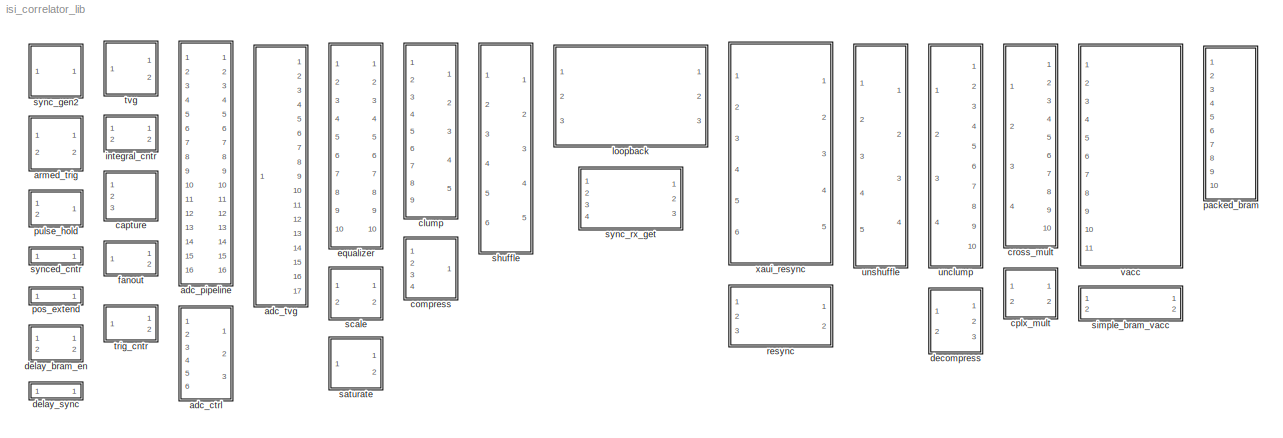
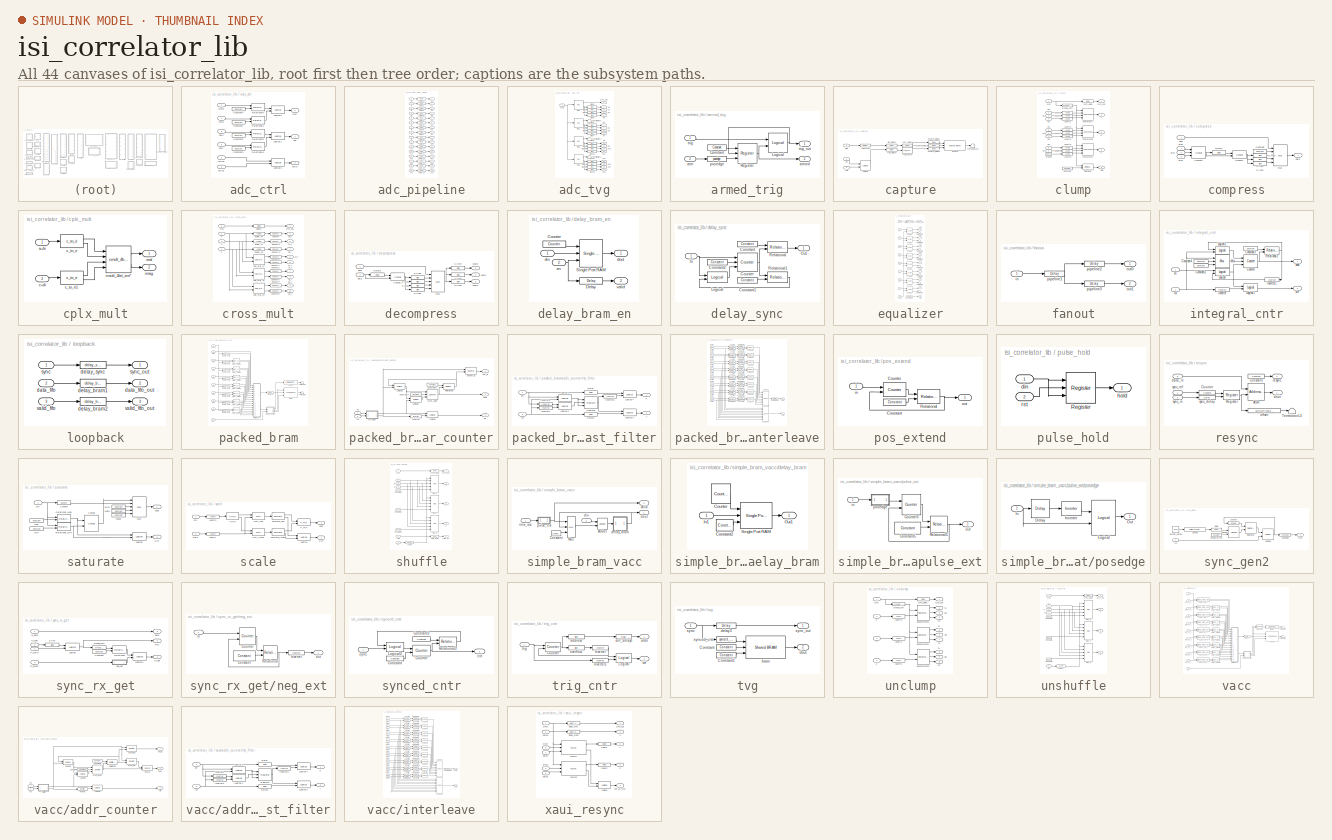
[diagram: thumbnail index - all 44 canvases of the model, root first then tree order]
MODEL isi_correlator_lib
KIND library
BLOCK [SubSystem] adc_ctrl
  FunctionWithSeparateData = off
  MaskHideContents = off
  MinAlgLoopOccurrences = off
  Opaque = off
  Ports = [6, 3]
  PropExecContextOutsideSubsystem = off
  RTWSystemCode = Auto
  RequestExecContextInheritance = off
  SID = 28
BLOCK [Reference] adc_ctrl/Constant0  REF=xbsIndex_r4/Constant
  Ports = [0, 1]
  SID = 1567
  SourceBlock = xbsIndex_r4/Constant
  SourceType = Xilinx Constant Block Block
  arith_type = Unsigned
  bin_pt = 0
  block_type = constant
  block_version = 10.1.3
  carry = CIN
  const = 0
  dbl_ovrd = off
  dsp48_infoedit = The use of this block for DSP48 instructions is deprecated.  Please use the Opmode block.
  equ = P=C
  explicit_period = on
  has_advanced_control = 0
  inp1 = P
  inp2 = PCIN>>17
  n_bits = 4
  opr = +
  opselect = C
  period = 1
  sg_icon_stat = 50,14,0,1,white,blue,0,bf4ddd8b,right,
  sg_list_contents = {'table'=>{'carry'=>'popup(0|1|CIN|~SIGN(P or PCIN)|~SIGN(A*B or A:B)|~SIGND(A*B or A:B))','inp1'=>'popup(0|P|A:B|A*B|C|P+C|A:B+C)','inp2'=>'popup(0|PCIN|P|C|PCIN>>17|P>>17)','opselect'=>'popup(C + A*B|PCIN + A*B|P + A*B|A * B|C + A:B|C - A:B|C|Custom)','userSelections'=>{'carry'=>'CIN','inp1'=>'P','inp2'=>'PCIN>>17','opselect'=>'C'}}}  <repeated x24 — deduplicated; at blocks: Constant0, Constant1, Constant2, Constant3, Constant, Constant13, Constant4, Max, Max1, Max2, Min, Min1>
  sg_mask_display = fprintf('','COMMENT: begin icon graphics');\npatch([0 1 1 0 ],[0 0 1 1 ],[0.77 0.82 0.91]);\npatch([0.42 0.38 0.44 0.38 0.42 0.5 0.52 0.54 0.62 0.56 0.5 0.46 0.52 0.46 0.5 0.56 0.62 0.54 0.52 0.5 0.42 ],[0.142857 0.285714 0.5 0.714286 0.857143 0.857143 0.785714 0.857143 0.857143 0.642857 0.857143 0.714286 0.5 0.285714 0.142857 0.357143 0.142857 0.142857 0.214286 0.142857 0.142857 ],[0.98 0.96 0.92...<+206ch>  <repeated x23 — deduplicated; at blocks: Constant0, Constant1, Constant2, Constant3, Constant, Constant13, Constant4, Max2, period_offset>
  sggui_pos = 95,381,400,346
BLOCK [Reference] adc_ctrl/Constant1  REF=xbsIndex_r4/Constant
  Ports = [0, 1]
  SID = 1569
  SourceBlock = xbsIndex_r4/Constant
  SourceType = Xilinx Constant Block Block
  arith_type = Unsigned
  bin_pt = 0
  block_type = constant
  block_version = 10.1.3
  carry = CIN
  const = 0
  dbl_ovrd = off
  dsp48_infoedit = The use of this block for DSP48 instructions is deprecated.  Please use the Opmode block.
  equ = P=C
  explicit_period = on
  has_advanced_control = 0
  inp1 = P
  inp2 = PCIN>>17
  n_bits = 4
  opr = +
  opselect = C
  period = 1
  sg_icon_stat = 50,14,0,1,white,blue,0,bf4ddd8b,right,
  sggui_pos = 95,381,400,346
BLOCK [Reference] adc_ctrl/Constant2  REF=xbsIndex_r4/Constant
  Ports = [0, 1]
  SID = 1588
  SourceBlock = xbsIndex_r4/Constant
  SourceType = Xilinx Constant Block Block
  arith_type = Unsigned
  bin_pt = 0
  block_type = constant
  block_version = 10.1.3
  carry = CIN
  const = 0
  dbl_ovrd = off
  dsp48_infoedit = The use of this block for DSP48 instructions is deprecated.  Please use the Opmode block.
  equ = P=C
  explicit_period = on
  has_advanced_control = 0
  inp1 = P
  inp2 = PCIN>>17
  n_bits = 4
  opr = +
  opselect = C
  period = 1
  sg_icon_stat = 50,14,0,1,white,blue,0,bf4ddd8b,right,
  sggui_pos = 95,381,400,346
BLOCK [Reference] adc_ctrl/Constant3  REF=xbsIndex_r4/Constant
  Ports = [0, 1]
  SID = 1590
  SourceBlock = xbsIndex_r4/Constant
  SourceType = Xilinx Constant Block Block
  arith_type = Unsigned
  bin_pt = 0
  block_type = constant
  block_version = 10.1.3
  carry = CIN
  const = 0
  dbl_ovrd = off
  dsp48_infoedit = The use of this block for DSP48 instructions is deprecated.  Please use the Opmode block.
  equ = P=C
  explicit_period = on
  has_advanced_control = 0
  inp1 = P
  inp2 = PCIN>>17
  n_bits = 4
  opr = +
  opselect = C
  period = 1
  sg_icon_stat = 50,14,0,1,white,blue,0,bf4ddd8b,right,
  sggui_pos = 95,381,400,346
BLOCK [Reference] adc_ctrl/Logical0  REF=xbsIndex_r4/Logical
  Ports = [2, 1]
  SID = 1596
  SourceBlock = xbsIndex_r4/Logical
  SourceType = Xilinx Logical Block Block
  align_bp = on
  arith_type = Unsigned
  bin_pt = 0
  block_type = logical
  block_version = 10.1.1
  dbl_ovrd = off
  en = off
  has_advanced_control = 0
  inputs = 2
  latency = 1
  logical_function = OR
  n_bits = 1
  precision = Full
  sg_icon_stat = 50,29,2,1,white,blue,0,d26eadf1,right,
  sg_list_contents = {'table'=>{'logical_function'=>'popup(AND|NAND|OR|NOR|XOR|XNOR)','userSelections'=>{'logical_function'=>'OR'}}}
  sg_mask_display = fprintf('','COMMENT: begin icon graphics');\npatch([0 1 1 0 ],[0 0 1 1 ],[0.77 0.82 0.91]);\npatch([0.34 0.24 0.38 0.24 0.34 0.5 0.54 0.58 0.74 0.62 0.5 0.4 0.54 0.4 0.5 0.62 0.74 0.58 0.54 0.5 0.34 ],[0.103448 0.275862 0.517241 0.758621 0.931034 0.931034 0.862069 0.931034 0.931034 0.724138 0.931034 0.758621 0.517241 0.275862 0.103448 0.310345 0.103448 0.103448 0.172414 0.103448 0.103448 ],[0.98 0...<+237ch>  <repeated x6 — deduplicated; at blocks: Logical0, Logical1, Logical2, Logical>
  sggui_pos = 20,20,543,357
  xl_area = [0,0,0,0,0,0,0]
  xl_use_area = off
BLOCK [Reference] adc_ctrl/Logical1  REF=xbsIndex_r4/Logical
  Ports = [2, 1]
  SID = 1597
  SourceBlock = xbsIndex_r4/Logical
  SourceType = Xilinx Logical Block Block
  align_bp = on
  arith_type = Unsigned
  bin_pt = 0
  block_type = logical
  block_version = 10.1.1
  dbl_ovrd = off
  en = off
  has_advanced_control = 0
  inputs = 2
  latency = 1
  logical_function = OR
  n_bits = 1
  precision = Full
  sg_icon_stat = 50,29,2,1,white,blue,0,d26eadf1,right,
  sg_list_contents = {'table'=>{'logical_function'=>'popup(AND|NAND|OR|NOR|XOR|XNOR)','userSelections'=>{'logical_function'=>'OR'}}}
  sggui_pos = 20,20,543,357
  xl_area = [0,0,0,0,0,0,0]
  xl_use_area = off
BLOCK [Reference] adc_ctrl/Logical2  REF=xbsIndex_r4/Logical
  Ports = [2, 1]
  SID = 41
  SourceBlock = xbsIndex_r4/Logical
  SourceType = Xilinx Logical Block Block
  align_bp = on
  arith_type = Unsigned
  bin_pt = 0
  block_type = logical
  block_version = 10.1.1
  dbl_ovrd = off
  en = off
  has_advanced_control = 0
  inputs = 2
  latency = 1
  logical_function = OR
  n_bits = 1
  precision = Full
  sg_icon_stat = 50,29,2,1,white,blue,0,d26eadf1,right,
  sg_list_contents = {'table'=>{'logical_function'=>'popup(AND|NAND|OR|NOR|XOR|XNOR)','userSelections'=>{'logical_function'=>'OR'}}}
  sggui_pos = 20,20,543,357
  xl_area = [0,0,0,0,0,0,0]
  xl_use_area = off
BLOCK [Reference] adc_ctrl/Relational0  REF=xbsIndex_r4/Relational
  Ports = [2, 1]
  SID = 1568
  SourceBlock = xbsIndex_r4/Relational
  SourceType = Xilinx Arithmetic Relational Operator Block
  block_type = relational
  block_version = 10.1.3
  dbl_ovrd = off
  en = off
  has_advanced_control = 0
  latency = 0
  mode = a!=b
  sg_icon_stat = 50,29,2,1,white,blue,0,6a9ac0d0,right,
  sg_list_contents = {'table'=>{'mode'=>'popup(a=b|a!=b|a<b|a>b|a<=b|a>=b)','userSelections'=>{'mode'=>'a!=b'}}}
  sg_mask_display = fprintf('','COMMENT: begin icon graphics');\npatch([0 1 1 0 ],[0 0 1 1 ],[0.77 0.82 0.91]);\npatch([0.34 0.24 0.38 0.24 0.34 0.5 0.54 0.58 0.74 0.62 0.5 0.4 0.54 0.4 0.5 0.62 0.74 0.58 0.54 0.5 0.34 ],[0.103448 0.275862 0.517241 0.758621 0.931034 0.931034 0.862069 0.931034 0.931034 0.724138 0.931034 0.758621 0.517241 0.275862 0.103448 0.310345 0.103448 0.103448 0.172414 0.103448 0.103448 ],[0.98 0...<+331ch>  <repeated x6 — deduplicated; at blocks: Relational0, Relational1, Relational2, Relational3, Relational>
  sggui_pos = 0,0,419,209
  xl_area = [0, 0, 0, 0, 0, 0, 0]
  xl_use_area = off
BLOCK [Reference] adc_ctrl/Relational1  REF=xbsIndex_r4/Relational
  Ports = [2, 1]
  SID = 1570
  SourceBlock = xbsIndex_r4/Relational
  SourceType = Xilinx Arithmetic Relational Operator Block
  block_type = relational
  block_version = 10.1.3
  dbl_ovrd = off
  en = off
  has_advanced_control = 0
  latency = 0
  mode = a!=b
  sg_icon_stat = 50,29,2,1,white,blue,0,6a9ac0d0,right,
  sg_list_contents = {'table'=>{'mode'=>'popup(a=b|a!=b|a<b|a>b|a<=b|a>=b)','userSelections'=>{'mode'=>'a!=b'}}}
  sggui_pos = 0,0,419,209
  xl_area = [0, 0, 0, 0, 0, 0, 0]
  xl_use_area = off
BLOCK [Reference] adc_ctrl/Relational2  REF=xbsIndex_r4/Relational
  Ports = [2, 1]
  SID = 1589
  SourceBlock = xbsIndex_r4/Relational
  SourceType = Xilinx Arithmetic Relational Operator Block
  block_type = relational
  block_version = 10.1.3
  dbl_ovrd = off
  en = off
  has_advanced_control = 0
  latency = 0
  mode = a!=b
  sg_icon_stat = 50,29,2,1,white,blue,0,6a9ac0d0,right,
  sg_list_contents = {'table'=>{'mode'=>'popup(a=b|a!=b|a<b|a>b|a<=b|a>=b)','userSelections'=>{'mode'=>'a!=b'}}}
  sggui_pos = 0,0,419,209
  xl_area = [0, 0, 0, 0, 0, 0, 0]
  xl_use_area = off
BLOCK [Reference] adc_ctrl/Relational3  REF=xbsIndex_r4/Relational
  Ports = [2, 1]
  SID = 1591
  SourceBlock = xbsIndex_r4/Relational
  SourceType = Xilinx Arithmetic Relational Operator Block
  block_type = relational
  block_version = 10.1.3
  dbl_ovrd = off
  en = off
  has_advanced_control = 0
  latency = 0
  mode = a!=b
  sg_icon_stat = 50,29,2,1,white,blue,0,6a9ac0d0,right,
  sg_list_contents = {'table'=>{'mode'=>'popup(a=b|a!=b|a<b|a>b|a<=b|a>=b)','userSelections'=>{'mode'=>'a!=b'}}}
  sggui_pos = 0,0,419,209
  xl_area = [0, 0, 0, 0, 0, 0, 0]
  xl_use_area = off
BLOCK [Outport] adc_ctrl/oor
  IconDisplay = Port number
  OutDataType = sfix(16)
  OutScaling = 2^0
  Port = 2
  SID = 58
BLOCK [Inport] adc_ctrl/oor0
  IconDisplay = Port number
  OutDataType = sfix(16)
  OutScaling = 2^0
  Port = 2
  SID = 30
BLOCK [Inport] adc_ctrl/oor1
  IconDisplay = Port number
  OutDataType = sfix(16)
  OutScaling = 2^0
  Port = 5
  SID = 33
BLOCK [Outport] adc_ctrl/sync
  IconDisplay = Port number
  OutDataType = sfix(16)
  OutScaling = 2^0
  SID = 57
BLOCK [Inport] adc_ctrl/sync0
  IconDisplay = Port number
  OutDataType = sfix(16)
  OutScaling = 2^0
  SID = 29
BLOCK [Inport] adc_ctrl/sync1
  IconDisplay = Port number
  OutDataType = sfix(16)
  OutScaling = 2^0
  Port = 4
  SID = 32
BLOCK [Outport] adc_ctrl/valid
  IconDisplay = Port number
  OutDataType = sfix(16)
  OutScaling = 2^0
  Port = 3
  SID = 59
BLOCK [Inport] adc_ctrl/valid0
  IconDisplay = Port number
  OutDataType = sfix(16)
  OutScaling = 2^0
  Port = 3
  SID = 31
BLOCK [Inport] adc_ctrl/valid1
  IconDisplay = Port number
  OutDataType = sfix(16)
  OutScaling = 2^0
  Port = 6
  SID = 34
BLOCK [SubSystem] adc_pipeline
  FunctionWithSeparateData = off
  MaskDescription = This block delays 16 parallel inputs to help meet timing.
  MaskEnableString = on
  MaskHideContents = off
  MaskIconFrame = on
  MaskIconOpaque = on
  MaskIconRotate = none
  MaskIconUnits = autoscale
  MaskPortRotate = default
  MaskPromptString = Latency:
  MaskStyleString = edit
  MaskToolTipString = on
  MaskTunableValueString = on
  MaskType = adc_pipeline
  MaskValueString = 1
  MaskVariables = latency=@1;
  MaskVisibilityString = on
  MinAlgLoopOccurrences = off
  Opaque = off
  Ports = [16, 16]
  PropExecContextOutsideSubsystem = off
  RTWSystemCode = Auto
  RequestExecContextInheritance = off
  SID = 60
BLOCK [Reference] adc_pipeline/Delay0  REF=xbsIndex_r4/Delay
  Ports = [1, 1]
  SID = 77
  SourceBlock = xbsIndex_r4/Delay
  SourceType = Xilinx Delay Block
  block_type = delay
  block_version = 11.3
  dbl_ovrd = off
  en = off
  has_advanced_control = 0
  infoedit = Hardware notes: A delay line is a chain, each link of which is an SRL16 followed by a flip-flop.
  latency = latency
  reg_retiming = on
  sg_icon_stat = 50,14,1,1,white,blue,0,ec356abf,right,
  sg_mask_display = fprintf('','COMMENT: begin icon graphics');\npatch([0 1 1 0 ],[0 0 1 1 ],[0.77 0.82 0.91]);\npatch([0.42 0.38 0.44 0.38 0.42 0.5 0.52 0.54 0.62 0.56 0.5 0.46 0.52 0.46 0.5 0.56 0.62 0.54 0.52 0.5 0.42 ],[0.142857 0.285714 0.5 0.714286 0.857143 0.857143 0.785714 0.857143 0.857143 0.642857 0.857143 0.714286 0.5 0.285714 0.142857 0.357143 0.142857 0.142857 0.214286 0.142857 0.142857 ],[0.98 0.96 0.92...<+209ch>  <repeated x73 — deduplicated; at blocks: Delay0, Delay1, Delay10, Delay11, Delay12, Delay13, Delay14, Delay15, Delay2, Delay3, Delay4, Delay5, Delay6, Delay7, Delay8, Delay9, +24 more>
  sggui_pos = 20,20,543,392
  xl_area = [0,0,0,0,0,0,0]
  xl_use_area = off
BLOCK [Reference] adc_pipeline/Delay1  REF=xbsIndex_r4/Delay
  Ports = [1, 1]
  SID = 78
  SourceBlock = xbsIndex_r4/Delay
  SourceType = Xilinx Delay Block
  block_type = delay
  block_version = 11.3
  dbl_ovrd = off
  en = off
  has_advanced_control = 0
  infoedit = Hardware notes: A delay line is a chain, each link of which is an SRL16 followed by a flip-flop.
  latency = latency
  reg_retiming = on
  sg_icon_stat = 50,14,1,1,white,blue,0,ec356abf,right,
  sggui_pos = 20,20,543,392
  xl_area = [0,0,0,0,0,0,0]
  xl_use_area = off
BLOCK [Reference] adc_pipeline/Delay10  REF=xbsIndex_r4/Delay
  Ports = [1, 1]
  SID = 79
  SourceBlock = xbsIndex_r4/Delay
  SourceType = Xilinx Delay Block
  block_type = delay
  block_version = 11.3
  dbl_ovrd = off
  en = off
  has_advanced_control = 0
  infoedit = Hardware notes: A delay line is a chain, each link of which is an SRL16 followed by a flip-flop.
  latency = latency
  reg_retiming = on
  sg_icon_stat = 50,14,1,1,white,blue,0,ec356abf,right,
  sggui_pos = 20,20,543,392
  xl_area = [0,0,0,0,0,0,0]
  xl_use_area = off
BLOCK [Reference] adc_pipeline/Delay11  REF=xbsIndex_r4/Delay
  Ports = [1, 1]
  SID = 80
  SourceBlock = xbsIndex_r4/Delay
  SourceType = Xilinx Delay Block
  block_type = delay
  block_version = 11.3
  dbl_ovrd = off
  en = off
  has_advanced_control = 0
  infoedit = Hardware notes: A delay line is a chain, each link of which is an SRL16 followed by a flip-flop.
  latency = latency
  reg_retiming = on
  sg_icon_stat = 50,14,1,1,white,blue,0,ec356abf,right,
  sggui_pos = 20,20,543,392
  xl_area = [0,0,0,0,0,0,0]
  xl_use_area = off
BLOCK [Reference] adc_pipeline/Delay12  REF=xbsIndex_r4/Delay
  Ports = [1, 1]
  SID = 81
  SourceBlock = xbsIndex_r4/Delay
  SourceType = Xilinx Delay Block
  block_type = delay
  block_version = 11.3
  dbl_ovrd = off
  en = off
  has_advanced_control = 0
  infoedit = Hardware notes: A delay line is a chain, each link of which is an SRL16 followed by a flip-flop.
  latency = latency
  reg_retiming = on
  sg_icon_stat = 50,14,1,1,white,blue,0,ec356abf,right,
  sggui_pos = 20,20,543,392
  xl_area = [0,0,0,0,0,0,0]
  xl_use_area = off
BLOCK [Reference] adc_pipeline/Delay13  REF=xbsIndex_r4/Delay
  Ports = [1, 1]
  SID = 82
  SourceBlock = xbsIndex_r4/Delay
  SourceType = Xilinx Delay Block
  block_type = delay
  block_version = 11.3
  dbl_ovrd = off
  en = off
  has_advanced_control = 0
  infoedit = Hardware notes: A delay line is a chain, each link of which is an SRL16 followed by a flip-flop.
  latency = latency
  reg_retiming = on
  sg_icon_stat = 50,14,1,1,white,blue,0,ec356abf,right,
  sggui_pos = 20,20,543,392
  xl_area = [0,0,0,0,0,0,0]
  xl_use_area = off
BLOCK [Reference] adc_pipeline/Delay14  REF=xbsIndex_r4/Delay
  Ports = [1, 1]
  SID = 83
  SourceBlock = xbsIndex_r4/Delay
  SourceType = Xilinx Delay Block
  block_type = delay
  block_version = 11.3
  dbl_ovrd = off
  en = off
  has_advanced_control = 0
  infoedit = Hardware notes: A delay line is a chain, each link of which is an SRL16 followed by a flip-flop.
  latency = latency
  reg_retiming = on
  sg_icon_stat = 50,14,1,1,white,blue,0,ec356abf,right,
  sggui_pos = 20,20,543,392
  xl_area = [0,0,0,0,0,0,0]
  xl_use_area = off
BLOCK [Reference] adc_pipeline/Delay15  REF=xbsIndex_r4/Delay
  Ports = [1, 1]
  SID = 84
  SourceBlock = xbsIndex_r4/Delay
  SourceType = Xilinx Delay Block
  block_type = delay
  block_version = 11.3
  dbl_ovrd = off
  en = off
  has_advanced_control = 0
  infoedit = Hardware notes: A delay line is a chain, each link of which is an SRL16 followed by a flip-flop.
  latency = latency
  reg_retiming = on
  sg_icon_stat = 50,14,1,1,white,blue,0,ec356abf,right,
  sggui_pos = 20,20,543,392
  xl_area = [0,0,0,0,0,0,0]
  xl_use_area = off
BLOCK [Reference] adc_pipeline/Delay2  REF=xbsIndex_r4/Delay
  Ports = [1, 1]
  SID = 85
  SourceBlock = xbsIndex_r4/Delay
  SourceType = Xilinx Delay Block
  block_type = delay
  block_version = 11.3
  dbl_ovrd = off
  en = off
  has_advanced_control = 0
  infoedit = Hardware notes: A delay line is a chain, each link of which is an SRL16 followed by a flip-flop.
  latency = latency
  reg_retiming = on
  sg_icon_stat = 50,14,1,1,white,blue,0,ec356abf,right,
  sggui_pos = 20,20,543,392
  xl_area = [0,0,0,0,0,0,0]
  xl_use_area = off
BLOCK [Reference] adc_pipeline/Delay3  REF=xbsIndex_r4/Delay
  Ports = [1, 1]
  SID = 86
  SourceBlock = xbsIndex_r4/Delay
  SourceType = Xilinx Delay Block
  block_type = delay
  block_version = 11.3
  dbl_ovrd = off
  en = off
  has_advanced_control = 0
  infoedit = Hardware notes: A delay line is a chain, each link of which is an SRL16 followed by a flip-flop.
  latency = latency
  reg_retiming = on
  sg_icon_stat = 50,14,1,1,white,blue,0,ec356abf,right,
  sggui_pos = 20,20,543,392
  xl_area = [0,0,0,0,0,0,0]
  xl_use_area = off
BLOCK [Reference] adc_pipeline/Delay4  REF=xbsIndex_r4/Delay
  Ports = [1, 1]
  SID = 87
  SourceBlock = xbsIndex_r4/Delay
  SourceType = Xilinx Delay Block
  block_type = delay
  block_version = 11.3
  dbl_ovrd = off
  en = off
  has_advanced_control = 0
  infoedit = Hardware notes: A delay line is a chain, each link of which is an SRL16 followed by a flip-flop.
  latency = latency
  reg_retiming = on
  sg_icon_stat = 50,14,1,1,white,blue,0,ec356abf,right,
  sggui_pos = 20,20,543,392
  xl_area = [0,0,0,0,0,0,0]
  xl_use_area = off
BLOCK [Reference] adc_pipeline/Delay5  REF=xbsIndex_r4/Delay
  Ports = [1, 1]
  SID = 88
  SourceBlock = xbsIndex_r4/Delay
  SourceType = Xilinx Delay Block
  block_type = delay
  block_version = 11.3
  dbl_ovrd = off
  en = off
  has_advanced_control = 0
  infoedit = Hardware notes: A delay line is a chain, each link of which is an SRL16 followed by a flip-flop.
  latency = latency
  reg_retiming = on
  sg_icon_stat = 50,14,1,1,white,blue,0,ec356abf,right,
  sggui_pos = 20,20,543,392
  xl_area = [0,0,0,0,0,0,0]
  xl_use_area = off
BLOCK [Reference] adc_pipeline/Delay6  REF=xbsIndex_r4/Delay
  Ports = [1, 1]
  SID = 89
  SourceBlock = xbsIndex_r4/Delay
  SourceType = Xilinx Delay Block
  block_type = delay
  block_version = 11.3
  dbl_ovrd = off
  en = off
  has_advanced_control = 0
  infoedit = Hardware notes: A delay line is a chain, each link of which is an SRL16 followed by a flip-flop.
  latency = latency
  reg_retiming = on
  sg_icon_stat = 50,14,1,1,white,blue,0,ec356abf,right,
  sggui_pos = 20,20,543,392
  xl_area = [0,0,0,0,0,0,0]
  xl_use_area = off
BLOCK [Reference] adc_pipeline/Delay7  REF=xbsIndex_r4/Delay
  Ports = [1, 1]
  SID = 90
  SourceBlock = xbsIndex_r4/Delay
  SourceType = Xilinx Delay Block
  block_type = delay
  block_version = 11.3
  dbl_ovrd = off
  en = off
  has_advanced_control = 0
  infoedit = Hardware notes: A delay line is a chain, each link of which is an SRL16 followed by a flip-flop.
  latency = latency
  reg_retiming = on
  sg_icon_stat = 50,14,1,1,white,blue,0,ec356abf,right,
  sggui_pos = 20,20,543,392
  xl_area = [0,0,0,0,0,0,0]
  xl_use_area = off
BLOCK [Reference] adc_pipeline/Delay8  REF=xbsIndex_r4/Delay
  Ports = [1, 1]
  SID = 91
  SourceBlock = xbsIndex_r4/Delay
  SourceType = Xilinx Delay Block
  block_type = delay
  block_version = 11.3
  dbl_ovrd = off
  en = off
  has_advanced_control = 0
  infoedit = Hardware notes: A delay line is a chain, each link of which is an SRL16 followed by a flip-flop.
  latency = latency
  reg_retiming = on
  sg_icon_stat = 50,14,1,1,white,blue,0,ec356abf,right,
  sggui_pos = 20,20,543,392
  xl_area = [0,0,0,0,0,0,0]
  xl_use_area = off
BLOCK [Reference] adc_pipeline/Delay9  REF=xbsIndex_r4/Delay
  Ports = [1, 1]
  SID = 92
  SourceBlock = xbsIndex_r4/Delay
  SourceType = Xilinx Delay Block
  block_type = delay
  block_version = 11.3
  dbl_ovrd = off
  en = off
  has_advanced_control = 0
  infoedit = Hardware notes: A delay line is a chain, each link of which is an SRL16 followed by a flip-flop.
  latency = latency
  reg_retiming = on
  sg_icon_stat = 50,14,1,1,white,blue,0,ec356abf,right,
  sggui_pos = 20,20,543,392
  xl_area = [0,0,0,0,0,0,0]
  xl_use_area = off
BLOCK [Inport] adc_pipeline/i0
  IconDisplay = Port number
  SID = 61
BLOCK [Inport] adc_pipeline/i1
  IconDisplay = Port number
  Port = 2
  SID = 62
BLOCK [Inport] adc_pipeline/i10
  IconDisplay = Port number
  Port = 11
  SID = 71
BLOCK [Inport] adc_pipeline/i11
  IconDisplay = Port number
  Port = 12
  SID = 72
BLOCK [Inport] adc_pipeline/i12
  IconDisplay = Port number
  Port = 13
  SID = 73
BLOCK [Inport] adc_pipeline/i13
  IconDisplay = Port number
  Port = 14
  SID = 74
BLOCK [Inport] adc_pipeline/i14
  IconDisplay = Port number
  Port = 15
  SID = 75
BLOCK [Inport] adc_pipeline/i15
  IconDisplay = Port number
  Port = 16
  SID = 76
BLOCK [Inport] adc_pipeline/i2
  IconDisplay = Port number
  Port = 3
  SID = 63
BLOCK [Inport] adc_pipeline/i3
  IconDisplay = Port number
  Port = 4
  SID = 64
BLOCK [Inport] adc_pipeline/i4
  IconDisplay = Port number
  Port = 5
  SID = 65
BLOCK [Inport] adc_pipeline/i5
  IconDisplay = Port number
  Port = 6
  SID = 66
BLOCK [Inport] adc_pipeline/i6
  IconDisplay = Port number
  Port = 7
  SID = 67
BLOCK [Inport] adc_pipeline/i7
  IconDisplay = Port number
  Port = 8
  SID = 68
BLOCK [Inport] adc_pipeline/i8
  IconDisplay = Port number
  Port = 9
  SID = 69
BLOCK [Inport] adc_pipeline/i9
  IconDisplay = Port number
  Port = 10
  SID = 70
BLOCK [Outport] adc_pipeline/o0
  IconDisplay = Port number
  SID = 93
BLOCK [Outport] adc_pipeline/o1
  IconDisplay = Port number
  Port = 2
  SID = 94
BLOCK [Outport] adc_pipeline/o10
  IconDisplay = Port number
  Port = 11
  SID = 103
BLOCK [Outport] adc_pipeline/o11
  IconDisplay = Port number
  Port = 12
  SID = 104
BLOCK [Outport] adc_pipeline/o12
  IconDisplay = Port number
  Port = 13
  SID = 105
BLOCK [Outport] adc_pipeline/o13
  IconDisplay = Port number
  Port = 14
  SID = 106
BLOCK [Outport] adc_pipeline/o14
  IconDisplay = Port number
  Port = 15
  SID = 107
BLOCK [Outport] adc_pipeline/o15
  IconDisplay = Port number
  Port = 16
  SID = 108
BLOCK [Outport] adc_pipeline/o2
  IconDisplay = Port number
  Port = 3
  SID = 95
BLOCK [Outport] adc_pipeline/o3
  IconDisplay = Port number
  Port = 4
  SID = 96
BLOCK [Outport] adc_pipeline/o4
  IconDisplay = Port number
  Port = 5
  SID = 97
BLOCK [Outport] adc_pipeline/o5
  IconDisplay = Port number
  Port = 6
  SID = 98
BLOCK [Outport] adc_pipeline/o6
  IconDisplay = Port number
  Port = 7
  SID = 99
BLOCK [Outport] adc_pipeline/o7
  IconDisplay = Port number
  Port = 8
  SID = 100
BLOCK [Outport] adc_pipeline/o8
  IconDisplay = Port number
  Port = 9
  SID = 101
BLOCK [Outport] adc_pipeline/o9
  IconDisplay = Port number
  Port = 10
  SID = 102
BLOCK [SubSystem] adc_tvg
  FunctionWithSeparateData = off
  MaskHideContents = off
  MinAlgLoopOccurrences = off
  Opaque = off
  Ports = [1, 17]
  PropExecContextOutsideSubsystem = off
  RTWSystemCode = Auto
  RequestExecContextInheritance = off
  SID = 109
BLOCK [Terminator] adc_tvg/Terminator0
  SID = 111
BLOCK [Terminator] adc_tvg/Terminator1
  SID = 112
BLOCK [Terminator] adc_tvg/Terminator2
  SID = 113
BLOCK [Outport] adc_tvg/b0
  IconDisplay = Port number
  Port = 2
  SID = 135
BLOCK [Outport] adc_tvg/b1
  IconDisplay = Port number
  Port = 3
  SID = 136
BLOCK [Outport] adc_tvg/b10
  IconDisplay = Port number
  Port = 12
  SID = 145
BLOCK [Outport] adc_tvg/b11
  IconDisplay = Port number
  Port = 13
  SID = 146
BLOCK [Outport] adc_tvg/b12
  IconDisplay = Port number
  Port = 14
  SID = 147
BLOCK [Outport] adc_tvg/b13
  IconDisplay = Port number
  Port = 15
  SID = 148
BLOCK [Outport] adc_tvg/b14
  IconDisplay = Port number
  Port = 16
  SID = 149
BLOCK [Outport] adc_tvg/b15
  IconDisplay = Port number
  Port = 17
  SID = 150
BLOCK [Outport] adc_tvg/b2
  IconDisplay = Port number
  Port = 4
  SID = 137
BLOCK [Outport] adc_tvg/b3
  IconDisplay = Port number
  Port = 5
  SID = 138
BLOCK [Outport] adc_tvg/b4
  IconDisplay = Port number
  Port = 6
  SID = 139
BLOCK [Outport] adc_tvg/b5
  IconDisplay = Port number
  Port = 7
  SID = 140
BLOCK [Outport] adc_tvg/b6
  IconDisplay = Port number
  Port = 8
  SID = 141
BLOCK [Outport] adc_tvg/b7
  IconDisplay = Port number
  Port = 9
  SID = 142
BLOCK [Outport] adc_tvg/b8
  IconDisplay = Port number
  Port = 10
  SID = 143
BLOCK [Outport] adc_tvg/b9
  IconDisplay = Port number
  Port = 11
  SID = 144
BLOCK [Reference] adc_tvg/slice0  REF=xbsIndex_r4/Slice
  Ports = [1, 1]
  SID = 114
  SourceBlock = xbsIndex_r4/Slice
  SourceType = Xilinx Bit Slice Extractor Block
  base0 = LSB of Input
  base1 = MSB of Input
  bit0 = 0
  bit1 = 0
  block_type = slice
  block_version = 10.1.3
  boolean_output = off
  dbl_ovrd = off
  has_advanced_control = 0
  infoedit = Extracts a given range of bits from each input sample and presents it at the output.  The output type is ordinarily unsigned with binary point at zero, but can be Boolean when the slice is one bit wide.<br><br>Hardware notes: In hardware this block costs nothing.  <repeated x28 — deduplicated; at blocks: slice0, slice1, slice10, slice11, slice12, slice13, slice14, slice15, slice2, slice3, slice4, slice5, slice6, slice7, slice8, slice9, +9 more>
  mode = Lower Bit Location + Width
  nbits = 8
  sg_icon_stat = 50,14,1,1,white,blue,0,1fd851a7,right,
  sg_mask_display = fprintf('','COMMENT: begin icon graphics');\npatch([0 1 1 0 ],[0 0 1 1 ],[0.77 0.82 0.91]);\npatch([0.42 0.38 0.44 0.38 0.42 0.5 0.52 0.54 0.62 0.56 0.5 0.46 0.52 0.46 0.5 0.56 0.62 0.54 0.52 0.5 0.42 ],[0.142857 0.285714 0.5 0.714286 0.857143 0.857143 0.785714 0.857143 0.857143 0.642857 0.857143 0.714286 0.5 0.285714 0.142857 0.357143 0.142857 0.142857 0.214286 0.142857 0.142857 ],[0.98 0.96 0.92...<+210ch>  <repeated x31 — deduplicated; at blocks: slice0, slice1, slice10, slice11, slice12, slice13, slice14, slice15, slice2, slice3, slice4, slice5, slice6, slice7, slice8, slice9, +12 more>
  sggui_pos = 20,20,631,621
BLOCK [Reference] adc_tvg/slice1  REF=xbsIndex_r4/Slice
  Ports = [1, 1]
  SID = 115
  SourceBlock = xbsIndex_r4/Slice
  SourceType = Xilinx Bit Slice Extractor Block
  base0 = LSB of Input
  base1 = MSB of Input
  bit0 = 8
  bit1 = 0
  block_type = slice
  block_version = 10.1.3
  boolean_output = off
  dbl_ovrd = off
  has_advanced_control = 0
  mode = Lower Bit Location + Width
  nbits = 8
  sg_icon_stat = 50,14,1,1,white,blue,0,1fd851a7,right,
  sggui_pos = 20,20,631,621
BLOCK [Reference] adc_tvg/slice10  REF=xbsIndex_r4/Slice
  Ports = [1, 1]
  SID = 116
  SourceBlock = xbsIndex_r4/Slice
  SourceType = Xilinx Bit Slice Extractor Block
  base0 = LSB of Input
  base1 = MSB of Input
  bit0 = 16
  bit1 = 0
  block_type = slice
  block_version = 10.1.3
  boolean_output = off
  dbl_ovrd = off
  has_advanced_control = 0
  mode = Lower Bit Location + Width
  nbits = 8
  sg_icon_stat = 50,14,1,1,white,blue,0,1fd851a7,right,
  sggui_pos = 20,20,631,621
BLOCK [Reference] adc_tvg/slice11  REF=xbsIndex_r4/Slice
  Ports = [1, 1]
  SID = 117
  SourceBlock = xbsIndex_r4/Slice
  SourceType = Xilinx Bit Slice Extractor Block
  base0 = LSB of Input
  base1 = MSB of Input
  bit0 = 24
  bit1 = 0
  block_type = slice
  block_version = 10.1.3
  boolean_output = off
  dbl_ovrd = off
  has_advanced_control = 0
  mode = Lower Bit Location + Width
  nbits = 8
  sg_icon_stat = 50,14,1,1,white,blue,0,1fd851a7,right,
  sggui_pos = 20,20,631,621
BLOCK [Reference] adc_tvg/slice12  REF=xbsIndex_r4/Slice
  Ports = [1, 1]
  SID = 118
  SourceBlock = xbsIndex_r4/Slice
  SourceType = Xilinx Bit Slice Extractor Block
  base0 = LSB of Input
  base1 = MSB of Input
  bit0 = 0
  bit1 = 0
  block_type = slice
  block_version = 10.1.3
  boolean_output = off
  dbl_ovrd = off
  has_advanced_control = 0
  mode = Lower Bit Location + Width
  nbits = 8
  sg_icon_stat = 50,14,1,1,white,blue,0,1fd851a7,right,
  sggui_pos = 20,20,631,621
BLOCK [Reference] adc_tvg/slice13  REF=xbsIndex_r4/Slice
  Ports = [1, 1]
  SID = 119
  SourceBlock = xbsIndex_r4/Slice
  SourceType = Xilinx Bit Slice Extractor Block
  base0 = LSB of Input
  base1 = MSB of Input
  bit0 = 8
  bit1 = 0
  block_type = slice
  block_version = 10.1.3
  boolean_output = off
  dbl_ovrd = off
  has_advanced_control = 0
  mode = Lower Bit Location + Width
  nbits = 8
  sg_icon_stat = 50,14,1,1,white,blue,0,1fd851a7,right,
  sggui_pos = 20,20,631,621
BLOCK [Reference] adc_tvg/slice14  REF=xbsIndex_r4/Slice
  Ports = [1, 1]
  SID = 120
  SourceBlock = xbsIndex_r4/Slice
  SourceType = Xilinx Bit Slice Extractor Block
  base0 = LSB of Input
  base1 = MSB of Input
  bit0 = 16
  bit1 = 0
  block_type = slice
  block_version = 10.1.3
  boolean_output = off
  dbl_ovrd = off
  has_advanced_control = 0
  mode = Lower Bit Location + Width
  nbits = 8
  sg_icon_stat = 50,14,1,1,white,blue,0,1fd851a7,right,
  sggui_pos = 20,20,631,621
BLOCK [Reference] adc_tvg/slice15  REF=xbsIndex_r4/Slice
  Ports = [1, 1]
  SID = 121
  SourceBlock = xbsIndex_r4/Slice
  SourceType = Xilinx Bit Slice Extractor Block
  base0 = LSB of Input
  base1 = MSB of Input
  bit0 = 24
  bit1 = 0
  block_type = slice
  block_version = 10.1.3
  boolean_output = off
  dbl_ovrd = off
  has_advanced_control = 0
  mode = Lower Bit Location + Width
  nbits = 8
  sg_icon_stat = 50,14,1,1,white,blue,0,1fd851a7,right,
  sggui_pos = 20,20,631,621
BLOCK [Reference] adc_tvg/slice2  REF=xbsIndex_r4/Slice
  Ports = [1, 1]
  SID = 122
  SourceBlock = xbsIndex_r4/Slice
  SourceType = Xilinx Bit Slice Extractor Block
  base0 = LSB of Input
  base1 = MSB of Input
  bit0 = 16
  bit1 = 0
  block_type = slice
  block_version = 10.1.3
  boolean_output = off
  dbl_ovrd = off
  has_advanced_control = 0
  mode = Lower Bit Location + Width
  nbits = 8
  sg_icon_stat = 50,14,1,1,white,blue,0,1fd851a7,right,
  sggui_pos = 20,20,631,621
BLOCK [Reference] adc_tvg/slice3  REF=xbsIndex_r4/Slice
  Ports = [1, 1]
  SID = 123
  SourceBlock = xbsIndex_r4/Slice
  SourceType = Xilinx Bit Slice Extractor Block
  base0 = LSB of Input
  base1 = MSB of Input
  bit0 = 24
  bit1 = 0
  block_type = slice
  block_version = 10.1.3
  boolean_output = off
  dbl_ovrd = off
  has_advanced_control = 0
  mode = Lower Bit Location + Width
  nbits = 8
  sg_icon_stat = 50,14,1,1,white,blue,0,1fd851a7,right,
  sggui_pos = 20,20,631,621
BLOCK [Reference] adc_tvg/slice4  REF=xbsIndex_r4/Slice
  Ports = [1, 1]
  SID = 124
  SourceBlock = xbsIndex_r4/Slice
  SourceType = Xilinx Bit Slice Extractor Block
  base0 = LSB of Input
  base1 = MSB of Input
  bit0 = 0
  bit1 = 0
  block_type = slice
  block_version = 10.1.3
  boolean_output = off
  dbl_ovrd = off
  has_advanced_control = 0
  mode = Lower Bit Location + Width
  nbits = 8
  sg_icon_stat = 50,14,1,1,white,blue,0,1fd851a7,right,
  sggui_pos = 20,20,631,621
BLOCK [Reference] adc_tvg/slice5  REF=xbsIndex_r4/Slice
  Ports = [1, 1]
  SID = 125
  SourceBlock = xbsIndex_r4/Slice
  SourceType = Xilinx Bit Slice Extractor Block
  base0 = LSB of Input
  base1 = MSB of Input
  bit0 = 8
  bit1 = 0
  block_type = slice
  block_version = 10.1.3
  boolean_output = off
  dbl_ovrd = off
  has_advanced_control = 0
  mode = Lower Bit Location + Width
  nbits = 8
  sg_icon_stat = 50,14,1,1,white,blue,0,1fd851a7,right,
  sggui_pos = 20,20,631,621
BLOCK [Reference] adc_tvg/slice6  REF=xbsIndex_r4/Slice
  Ports = [1, 1]
  SID = 126
  SourceBlock = xbsIndex_r4/Slice
  SourceType = Xilinx Bit Slice Extractor Block
  base0 = LSB of Input
  base1 = MSB of Input
  bit0 = 16
  bit1 = 0
  block_type = slice
  block_version = 10.1.3
  boolean_output = off
  dbl_ovrd = off
  has_advanced_control = 0
  mode = Lower Bit Location + Width
  nbits = 8
  sg_icon_stat = 50,14,1,1,white,blue,0,1fd851a7,right,
  sggui_pos = 20,20,631,621
BLOCK [Reference] adc_tvg/slice7  REF=xbsIndex_r4/Slice
  Ports = [1, 1]
  SID = 127
  SourceBlock = xbsIndex_r4/Slice
  SourceType = Xilinx Bit Slice Extractor Block
  base0 = LSB of Input
  base1 = MSB of Input
  bit0 = 24
  bit1 = 0
  block_type = slice
  block_version = 10.1.3
  boolean_output = off
  dbl_ovrd = off
  has_advanced_control = 0
  mode = Lower Bit Location + Width
  nbits = 8
  sg_icon_stat = 50,14,1,1,white,blue,0,1fd851a7,right,
  sggui_pos = 20,20,631,621
BLOCK [Reference] adc_tvg/slice8  REF=xbsIndex_r4/Slice
  Ports = [1, 1]
  SID = 128
  SourceBlock = xbsIndex_r4/Slice
  SourceType = Xilinx Bit Slice Extractor Block
  base0 = LSB of Input
  base1 = MSB of Input
  bit0 = 0
  bit1 = 0
  block_type = slice
  block_version = 10.1.3
  boolean_output = off
  dbl_ovrd = off
  has_advanced_control = 0
  mode = Lower Bit Location + Width
  nbits = 8
  sg_icon_stat = 50,14,1,1,white,blue,0,1fd851a7,right,
  sggui_pos = 20,20,631,621
BLOCK [Reference] adc_tvg/slice9  REF=xbsIndex_r4/Slice
  Ports = [1, 1]
  SID = 129
  SourceBlock = xbsIndex_r4/Slice
  SourceType = Xilinx Bit Slice Extractor Block
  base0 = LSB of Input
  base1 = MSB of Input
  bit0 = 8
  bit1 = 0
  block_type = slice
  block_version = 10.1.3
  boolean_output = off
  dbl_ovrd = off
  has_advanced_control = 0
  mode = Lower Bit Location + Width
  nbits = 8
  sg_icon_stat = 50,14,1,1,white,blue,0,1fd851a7,right,
  sggui_pos = 20,20,631,621
BLOCK [Inport] adc_tvg/sync
  IconDisplay = Port number
  OutDataType = sfix(16)
  OutScaling = 2^0
  SID = 110
BLOCK [Outport] adc_tvg/sync_out
  IconDisplay = Port number
  SID = 134
BLOCK [Reference] adc_tvg/tvg0  REF=isi_correlator_lib/tvg  (lib defined in mdl_4b72aa53f299)
  FunctionWithSeparateData = off
  Ports = [1, 2]
  RTWMemSecDataConstants = Inherit from model
  RTWMemSecDataInternal = Inherit from model
  RTWMemSecDataParameters = Inherit from model
  RTWMemSecFuncExecute = Inherit from model
  RTWMemSecFuncInitTerm = Inherit from model
  SID = 130
  ShowPortLabels = FromPortIcon
  SourceBlock = isi_correlator_lib/tvg
  SourceType = Unknown
  SystemSampleTime = -1
  addr_width = 11
BLOCK [Reference] adc_tvg/tvg1  REF=isi_correlator_lib/tvg  (lib defined in mdl_4b72aa53f299)
  FunctionWithSeparateData = off
  Ports = [1, 2]
  RTWMemSecDataConstants = Inherit from model
  RTWMemSecDataInternal = Inherit from model
  RTWMemSecDataParameters = Inherit from model
  RTWMemSecFuncExecute = Inherit from model
  RTWMemSecFuncInitTerm = Inherit from model
  SID = 131
  ShowPortLabels = FromPortIcon
  SourceBlock = isi_correlator_lib/tvg
  SourceType = Unknown
  SystemSampleTime = -1
  addr_width = 11
BLOCK [Reference] adc_tvg/tvg2  REF=isi_correlator_lib/tvg  (lib defined in mdl_4b72aa53f299)
  FunctionWithSeparateData = off
  Ports = [1, 2]
  RTWMemSecDataConstants = Inherit from model
  RTWMemSecDataInternal = Inherit from model
  RTWMemSecDataParameters = Inherit from model
  RTWMemSecFuncExecute = Inherit from model
  RTWMemSecFuncInitTerm = Inherit from model
  SID = 132
  ShowPortLabels = FromPortIcon
  SourceBlock = isi_correlator_lib/tvg
  SourceType = Unknown
  SystemSampleTime = -1
  addr_width = 11
BLOCK [Reference] adc_tvg/tvg3  REF=isi_correlator_lib/tvg  (lib defined in mdl_4b72aa53f299)
  FunctionWithSeparateData = off
  Ports = [1, 2]
  RTWMemSecDataConstants = Inherit from model
  RTWMemSecDataInternal = Inherit from model
  RTWMemSecDataParameters = Inherit from model
  RTWMemSecFuncExecute = Inherit from model
  RTWMemSecFuncInitTerm = Inherit from model
  SID = 133
  ShowPortLabels = FromPortIcon
  SourceBlock = isi_correlator_lib/tvg
  SourceType = Unknown
  SystemSampleTime = -1
  addr_width = 11
BLOCK [SubSystem] armed_trig
  FunctionWithSeparateData = off
  MaskHideContents = off
  MinAlgLoopOccurrences = off
  Opaque = off
  Ports = [2, 2]
  PropExecContextOutsideSubsystem = off
  RTWSystemCode = Auto
  RequestExecContextInheritance = off
  SID = 151
BLOCK [Reference] armed_trig/Constant  REF=xbsIndex_r4/Constant
  Ports = [0, 1]
  SID = 154
  SourceBlock = xbsIndex_r4/Constant
  SourceType = Xilinx Constant Block Block
  arith_type = Boolean
  bin_pt = 0
  block_type = constant
  block_version = 10.1.3
  carry = CIN
  const = 1
  dbl_ovrd = off
  dsp48_infoedit = The use of this block for DSP48 instructions is deprecated.  Please use the Opmode block.
  equ = P=C
  explicit_period = on
  has_advanced_control = 0
  inp1 = P
  inp2 = PCIN>>17
  n_bits = 1
  opr = +
  opselect = C
  period = 1
  sg_icon_stat = 50,14,0,1,white,blue,0,1c72b5be,right,
  sggui_pos = 20,20,400,346
BLOCK [Reference] armed_trig/Logical  REF=xbsIndex_r4/Logical
  Ports = [2, 1]
  SID = 155
  SourceBlock = xbsIndex_r4/Logical
  SourceType = Xilinx Logical Block Block
  align_bp = on
  arith_type = Unsigned
  bin_pt = 0
  block_type = logical
  block_version = 10.1.3
  dbl_ovrd = off
  en = off
  has_advanced_control = 0
  inputs = 2
  latency = 0
  logical_function = AND
  n_bits = 16
  precision = Full
  sg_icon_stat = 50,51,2,1,white,blue,0,0a851f85,right,
  sg_mask_display = fprintf('','COMMENT: begin icon graphics');\npatch([0 1 1 0 ],[0 0 1 1 ],[0.77 0.82 0.91]);\npatch([0.22 0.06 0.3 0.06 0.22 0.48 0.56 0.64 0.92 0.7 0.48 0.32 0.56 0.32 0.48 0.7 0.92 0.64 0.56 0.48 0.22 ],[0.117647 0.27451 0.509804 0.745098 0.901961 0.901961 0.823529 0.901961 0.901961 0.686275 0.901961 0.745098 0.509804 0.27451 0.117647 0.333333 0.117647 0.117647 0.196078 0.117647 0.117647 ],[0.98 ...<+239ch>
  sggui_pos = -1,-1,-1,-1
  xl_area = [0,0,0,0,0,0,0]
  xl_use_area = off
BLOCK [Reference] armed_trig/Register  REF=xbsIndex_r4/Register
  Ports = [3, 1]
  SID = 156
  SourceBlock = xbsIndex_r4/Register
  SourceType = Xilinx Register Block
  block_type = register
  block_version = 10.1.3
  dbl_ovrd = off
  en = on
  has_advanced_control = 0
  init = 0
  rst = on
  sg_icon_stat = 50,52,3,1,white,blue,0,b821322c,right,
  sg_mask_display = fprintf('','COMMENT: begin icon graphics');\npatch([0 1 1 0 ],[0 0 1 1 ],[0.77 0.82 0.91]);\npatch([0.22 0.06 0.3 0.06 0.22 0.48 0.56 0.64 0.92 0.7 0.48 0.32 0.56 0.32 0.48 0.7 0.92 0.64 0.56 0.48 0.22 ],[0.115385 0.269231 0.5 0.730769 0.884615 0.884615 0.807692 0.884615 0.884615 0.673077 0.884615 0.730769 0.5 0.269231 0.115385 0.326923 0.115385 0.115385 0.192308 0.115385 0.115385 ],[0.98 0.96 0.9...<+392ch>
  sggui_pos = 20,20,348,193
  xl_area = [0,0,0,0,0,0,0]
  xl_use_area = off
BLOCK [Inport] armed_trig/arm
  IconDisplay = Port number
  OutDataType = sfix(16)
  OutScaling = 2^0
  Port = 2
  SID = 153
BLOCK [Outport] armed_trig/armed
  IconDisplay = Port number
  OutDataType = sfix(16)
  OutScaling = 2^0
  Port = 2
  SID = 159
BLOCK [Reference] armed_trig/posedge  REF=casper_library/Misc/posedge  (lib defined in mdl_138b2fc3435f, mdl_4ed325b712b3, +2 more)
  FunctionWithSeparateData = off
  Ports = [1, 1]
  RTWMemSecDataConstants = Inherit from model
  RTWMemSecDataInternal = Inherit from model
  RTWMemSecDataParameters = Inherit from model
  RTWMemSecFuncExecute = Inherit from model
  RTWMemSecFuncInitTerm = Inherit from model
  SID = 157
  ShowPortLabels = FromPortIcon
  SourceBlock = casper_library/Misc/posedge
  SourceType = posedge
  SystemSampleTime = -1
  Tag = Rising Edge Detector
BLOCK [Inport] armed_trig/trig
  IconDisplay = Port number
  OutDataType = sfix(16)
  OutScaling = 2^0
  SID = 152
BLOCK [Outport] armed_trig/trig_out
  IconDisplay = Port number
  OutDataType = sfix(16)
  OutScaling = 2^0
  SID = 158
BLOCK [SubSystem] capture
  FunctionWithSeparateData = off
  MaskCallbackString = |||||
  MaskDescription = This block captures N data lines into N separate BRAMs.
  MaskEnableString = on,on,on,on,on,on
  MaskHideContents = off
  MaskIconFrame = on
  MaskIconOpaque = on
  MaskIconRotate = none
  MaskIconUnits = autoscale
  MaskInitialization = capture_init(gcb, ...\n    'num_brams', num_brams, ...\n    'addr_width', addr_width, ...\n    'logic_latency', logic_latency, ...\n    'fanout_latency', fanout_latency, ...\n    'cntr_latency', cntr_latency, ...\n    'bram_latency', bram_latency);
  MaskPortRotate = default
  MaskPromptString = Number of BRAMs:|Address width:|Logic latency:|Fanout latency:|Counter latency:|BRAM latency:
  MaskSelfModifiable = on
  MaskStyleString = edit,edit,edit,edit,edit,edit
  MaskToolTipString = on,on,on,on,on,on
  MaskTunableValueString = on,on,on,on,on,on
  MaskType = capture
  MaskValueString = 1|11|2|2|2|1
  MaskVariables = num_brams=@1;addr_width=@2;logic_latency=@3;fanout_latency=@4;cntr_latency=@5;bram_latency=@6;
  MaskVisibilityString = on,on,on,on,on,on
  MinAlgLoopOccurrences = off
  Opaque = off
  Ports = [3]
  PropExecContextOutsideSubsystem = off
  RTWSystemCode = Auto
  RequestExecContextInheritance = off
  SID = 201
  UserData = DataTag0
  UserDataPersistent = on
BLOCK [Reference] capture/Logical  REF=xbsIndex_r4/Logical
  Ports = [2, 1]
  SID = 4
  SourceBlock = xbsIndex_r4/Logical
  SourceType = Xilinx Logical Block Block
  align_bp = on
  arith_type = Unsigned
  bin_pt = 0
  block_type = logical
  block_version = 11.3
  dbl_ovrd = off
  en = off
  has_advanced_control = 0
  inputs = 2
  latency = logic_latency
  logical_function = AND
  n_bits = 16
  precision = Full
  sg_icon_stat = 50,44,2,1,white,blue,0,1978429b,right,
  sg_mask_display = fprintf('','COMMENT: begin icon graphics');\npatch([0 1 1 0 ],[0 0 1 1 ],[0.77 0.82 0.91]);\npatch([0.26 0.12 0.32 0.12 0.26 0.5 0.56 0.62 0.86 0.66 0.48 0.34 0.52 0.34 0.48 0.66 0.86 0.62 0.56 0.5 0.26 ],[0.113636 0.272727 0.5 0.727273 0.886364 0.886364 0.818182 0.886364 0.886364 0.659091 0.863636 0.704545 0.5 0.295455 0.136364 0.340909 0.113636 0.113636 0.181818 0.113636 0.113636 ],[0.98 0.96 0....<+232ch>
  sggui_pos = -1,-1,-1,-1
  xl_area = [0,0,0,0,0,0,0]
  xl_use_area = off
BLOCK [Reference] capture/bram0  REF=xps_library/Shared BRAM  (lib defined in mdl_00b5cec29cd0, mdl_02ab6ecaa3d1, +5 more)
  FunctionWithSeparateData = off
  Ports = [3, 1]
  RTWMemSecDataConstants = Inherit from model
  RTWMemSecDataInternal = Inherit from model
  RTWMemSecDataParameters = Inherit from model
  RTWMemSecFuncExecute = Inherit from model
  RTWMemSecFuncInitTerm = Inherit from model
  SID = 5
  ShowPortLabels = FromPortIcon
  SourceBlock = xps_library/Shared BRAM
  SourceType = Unknown
  SystemSampleTime = -1
  Tag = xps:bram
  addr_width = addr_width
  arith_type = Unsigned
  data_bin_pt = 0
  data_width = 32
  init_vals = 0
  sample_rate = 1
BLOCK [Reference] capture/bram0_delay1  REF=xbsIndex_r4/Delay
  Ports = [1, 1]
  SID = 6
  SourceBlock = xbsIndex_r4/Delay
  SourceType = Xilinx Delay Block
  block_type = delay
  block_version = 11.3
  dbl_ovrd = off
  en = off
  has_advanced_control = 0
  infoedit = Hardware notes: A delay line is a chain, each link of which is an SRL16 followed by a flip-flop.
  latency = bram_latency
  reg_retiming = on
  sg_icon_stat = 50,14,1,1,white,blue,0,07b98262,right,
  sggui_pos = -1,-1,-1,-1
  xl_area = [0,0,0,0,0,0,0]
  xl_use_area = off
BLOCK [Reference] capture/bram0_delay2  REF=xbsIndex_r4/Delay
  Ports = [1, 1]
  SID = 7
  SourceBlock = xbsIndex_r4/Delay
  SourceType = Xilinx Delay Block
  block_type = delay
  block_version = 11.3
  dbl_ovrd = off
  en = off
  has_advanced_control = 0
  infoedit = Hardware notes: A delay line is a chain, each link of which is an SRL16 followed by a flip-flop.
  latency = bram_latency
  reg_retiming = on
  sg_icon_stat = 50,14,1,1,white,blue,0,07b98262,right,
  sggui_pos = -1,-1,-1,-1
  xl_area = [0,0,0,0,0,0,0]
  xl_use_area = off
BLOCK [Reference] capture/bram0_delay3  REF=xbsIndex_r4/Delay
  Ports = [1, 1]
  SID = 8
  SourceBlock = xbsIndex_r4/Delay
  SourceType = Xilinx Delay Block
  block_type = delay
  block_version = 11.3
  dbl_ovrd = off
  en = off
  has_advanced_control = 0
  infoedit = Hardware notes: A delay line is a chain, each link of which is an SRL16 followed by a flip-flop.
  latency = bram_latency
  reg_retiming = on
  sg_icon_stat = 50,14,1,1,white,blue,0,07b98262,right,
  sggui_pos = -1,-1,-1,-1
  xl_area = [0,0,0,0,0,0,0]
  xl_use_area = off
BLOCK [Reference] capture/cntr_delay0  REF=xbsIndex_r4/Delay
  Ports = [1, 1]
  SID = 9
  SourceBlock = xbsIndex_r4/Delay
  SourceType = Xilinx Delay Block
  block_type = delay
  block_version = 11.3
  dbl_ovrd = off
  en = off
  has_advanced_control = 0
  infoedit = Hardware notes: A delay line is a chain, each link of which is an SRL16 followed by a flip-flop.
  latency = cntr_latency + 1
  reg_retiming = on
  sg_icon_stat = 50,14,1,1,white,blue,0,83e6bb61,right,
  sggui_pos = 20,20,543,392
  xl_area = [0,0,0,0,0,0,0]
  xl_use_area = off
BLOCK [Inport] capture/din0
  IconDisplay = Port number
  SID = 1
BLOCK [Reference] capture/din_delay0  REF=xbsIndex_r4/Delay
  Ports = [1, 1]
  SID = 10
  SourceBlock = xbsIndex_r4/Delay
  SourceType = Xilinx Delay Block
  block_type = delay
  block_version = 11.3
  dbl_ovrd = off
  en = off
  has_advanced_control = 0
  infoedit = Hardware notes: A delay line is a chain, each link of which is an SRL16 followed by a flip-flop.
  latency = logic_latency + fanout_latency
  reg_retiming = on
  sg_icon_stat = 50,14,1,1,white,blue,0,d390c2d8,right,
  sggui_pos = -1,-1,-1,-1
  xl_area = [0,0,0,0,0,0,0]
  xl_use_area = off
BLOCK [Inport] capture/en
  IconDisplay = Port number
  Port = 2
  SID = 2
BLOCK [Reference] capture/reinterp0  REF=xbsIndex_r4/Reinterpret
  Ports = [1, 1]
  SID = 11
  SourceBlock = xbsIndex_r4/Reinterpret
  SourceType = Xilinx Type Reinterpreter Block
  arith_type = Unsigned
  bin_pt = 0
  block_type = reinterpret
  block_version = 11.3
  force_arith_type = on
  force_bin_pt = on
  has_advanced_control = 0
  infoedit = Changes signal type without altering the binary representation.   You can changed the signal between signed and unsigned, and relocate the binary point.<br><br>Hardware notes: In hardware this block costs nothing.<br><br>Example:  Suppose the input is 6 bits wide, signed, with 2 fractional bits, and the output is forced to unsigned with 0 fractional bits.  Then an input of -2.0 (1110.00 in binary ...<+59ch>  <repeated x37 — deduplicated; at blocks: reinterp0, Reinterpret0, Reinterpret1, Reinterpret10, Reinterpret11, Reinterpret12, Reinterpret13, Reinterpret14, Reinterpret15, Reinterpret18, Reinterpret2, Reinterpret3, Reinterpret4, Reinterpret5, Reinterpret6, Reinterpret7, +4 more>
  sg_icon_stat = 50,14,1,1,white,blue,0,6b04d0b0,right,
  sg_mask_display = fprintf('','COMMENT: begin icon graphics');\npatch([0 1 1 0 ],[0 0 1 1 ],[0.77 0.82 0.91]);\npatch([0.42 0.38 0.44 0.38 0.42 0.5 0.52 0.54 0.62 0.56 0.5 0.46 0.52 0.46 0.5 0.56 0.62 0.54 0.52 0.5 0.42 ],[0.142857 0.285714 0.5 0.714286 0.857143 0.857143 0.785714 0.857143 0.857143 0.642857 0.857143 0.714286 0.5 0.285714 0.142857 0.357143 0.142857 0.142857 0.214286 0.142857 0.142857 ],[0.98 0.96 0.92...<+199ch>  <repeated x37 — deduplicated; at blocks: reinterp0, Reinterpret0, Reinterpret1, Reinterpret10, Reinterpret11, Reinterpret12, Reinterpret13, Reinterpret14, Reinterpret15, Reinterpret18, Reinterpret2, Reinterpret3, Reinterpret4, Reinterpret5, Reinterpret6, Reinterpret7, +4 more>
  sggui_pos = -1,-1,-1,-1
BLOCK [Terminator] capture/terminator0
  SID = 12
BLOCK [Inport] capture/trig
  IconDisplay = Port number
  Port = 3
  SID = 3
BLOCK [Reference] capture/trig_cntr0  REF=isi_correlator_lib/trig_cntr  (lib defined in mdl_4b72aa53f299)
  FunctionWithSeparateData = off
  Ports = [1, 2]
  RTWMemSecDataConstants = Inherit from model
  RTWMemSecDataInternal = Inherit from model
  RTWMemSecDataParameters = Inherit from model
  RTWMemSecFuncExecute = Inherit from model
  RTWMemSecFuncInitTerm = Inherit from model
  SID = 13
  ShowPortLabels = FromPortIcon
  SourceBlock = isi_correlator_lib/trig_cntr
  SourceType = trig_cntr
  SystemSampleTime = -1
  bitwidth = addr_width
  latency = cntr_latency
BLOCK [Reference] capture/trig_delay0  REF=xbsIndex_r4/Delay
  Ports = [1, 1]
  SID = 14
  SourceBlock = xbsIndex_r4/Delay
  SourceType = Xilinx Delay Block
  block_type = delay
  block_version = 11.3
  dbl_ovrd = off
  en = off
  has_advanced_control = 0
  infoedit = Hardware notes: A delay line is a chain, each link of which is an SRL16 followed by a flip-flop.
  latency = fanout_latency
  reg_retiming = on
  sg_icon_stat = 50,14,1,1,white,blue,0,85ce9542,right,
  sggui_pos = -1,-1,-1,-1
  xl_area = [0,0,0,0,0,0,0]
  xl_use_area = off
BLOCK [SubSystem] clump
  FunctionWithSeparateData = off
  MaskEnableString = on
  MaskHideContents = off
  MaskIconFrame = on
  MaskIconOpaque = on
  MaskIconRotate = none
  MaskIconUnits = autoscale
  MaskPortRotate = default
  MaskPromptString = Latency:
  MaskStyleString = edit
  MaskToolTipString = on
  MaskTunableValueString = on
  MaskValueString = 1
  MaskVariables = latency=@1;
  MaskVisibilityString = on
  MinAlgLoopOccurrences = off
  Opaque = off
  Ports = [9, 5]
  PropExecContextOutsideSubsystem = off
  RTWSystemCode = Auto
  RequestExecContextInheritance = off
  SID = 202
BLOCK [Outport] clump/A
  IconDisplay = Port number
  Port = 2
  SID = 222
BLOCK [Reference] clump/Assert0  REF=xbsIndex_r4/Assert
  Ports = [1, 1]
  SID = 1358
  SourceBlock = xbsIndex_r4/Assert
  SourceType = Xilinx Assert Block
  arith_type = Unsigned
  assert_rate = on
  assert_type = on
  bin_pt = 0
  block_type = assert
  block_version = 11.4
  has_advanced_control = 0
  infoedit = Asserts a user-defined sample rate and/or type on a signal.<br><br>Hardware notes: In hardware this block costs nothing.
  n_bits = 8
  output_port = on
  period = 1
  rate_source = Explicitly
  sg_icon_stat = 50,14,1,1,white,blue,0,9657e937,right,
  sg_mask_display = fprintf('','COMMENT: begin icon graphics');\npatch([0 1 1 0 ],[0 0 1 1 ],[0.77 0.82 0.91]);\npatch([0.42 0.38 0.44 0.38 0.42 0.5 0.52 0.54 0.62 0.56 0.5 0.46 0.52 0.46 0.5 0.56 0.62 0.54 0.52 0.5 0.42 ],[0.142857 0.285714 0.5 0.714286 0.857143 0.857143 0.785714 0.857143 0.857143 0.642857 0.857143 0.714286 0.5 0.285714 0.142857 0.357143 0.142857 0.142857 0.214286 0.142857 0.142857 ],[0.98 0.96 0.92...<+194ch>  <repeated x33 — deduplicated; at blocks: Assert0, Assert1, Assert2, Assert3, Assert4, Assert5, Assert6, Assert7, Assert8, Assert>
  sggui_pos = -1,-1,-1,-1
  type_source = Explicitly
BLOCK [Reference] clump/Assert1  REF=xbsIndex_r4/Assert
  Ports = [1, 1]
  SID = 1359
  SourceBlock = xbsIndex_r4/Assert
  SourceType = Xilinx Assert Block
  arith_type = Unsigned
  assert_rate = on
  assert_type = on
  bin_pt = 0
  block_type = assert
  block_version = 11.4
  has_advanced_control = 0
  infoedit = Asserts a user-defined sample rate and/or type on a signal.<br><br>Hardware notes: In hardware this block costs nothing.
  n_bits = 8
  output_port = on
  period = 1
  rate_source = Explicitly
  sg_icon_stat = 50,14,1,1,white,blue,0,9657e937,right,
  sggui_pos = -1,-1,-1,-1
  type_source = Explicitly
BLOCK [Reference] clump/Assert2  REF=xbsIndex_r4/Assert
  Ports = [1, 1]
  SID = 1360
  SourceBlock = xbsIndex_r4/Assert
  SourceType = Xilinx Assert Block
  arith_type = Unsigned
  assert_rate = on
  assert_type = on
  bin_pt = 0
  block_type = assert
  block_version = 11.4
  has_advanced_control = 0
  infoedit = Asserts a user-defined sample rate and/or type on a signal.<br><br>Hardware notes: In hardware this block costs nothing.
  n_bits = 8
  output_port = on
  period = 1
  rate_source = Explicitly
  sg_icon_stat = 50,14,1,1,white,blue,0,9657e937,right,
  sggui_pos = -1,-1,-1,-1
  type_source = Explicitly
BLOCK [Reference] clump/Assert3  REF=xbsIndex_r4/Assert
  Ports = [1, 1]
  SID = 1361
  SourceBlock = xbsIndex_r4/Assert
  SourceType = Xilinx Assert Block
  arith_type = Unsigned
  assert_rate = on
  assert_type = on
  bin_pt = 0
  block_type = assert
  block_version = 11.4
  has_advanced_control = 0
  infoedit = Asserts a user-defined sample rate and/or type on a signal.<br><br>Hardware notes: In hardware this block costs nothing.
  n_bits = 8
  output_port = on
  period = 1
  rate_source = Explicitly
  sg_icon_stat = 50,14,1,1,white,blue,0,9657e937,right,
  sggui_pos = -1,-1,-1,-1
  type_source = Explicitly
BLOCK [Reference] clump/Assert4  REF=xbsIndex_r4/Assert
  Ports = [1, 1]
  SID = 1362
  SourceBlock = xbsIndex_r4/Assert
  SourceType = Xilinx Assert Block
  arith_type = Unsigned
  assert_rate = on
  assert_type = on
  bin_pt = 0
  block_type = assert
  block_version = 11.4
  has_advanced_control = 0
  infoedit = Asserts a user-defined sample rate and/or type on a signal.<br><br>Hardware notes: In hardware this block costs nothing.
  n_bits = 8
  output_port = on
  period = 1
  rate_source = Explicitly
  sg_icon_stat = 50,14,1,1,white,blue,0,9657e937,right,
  sggui_pos = -1,-1,-1,-1
  type_source = Explicitly
BLOCK [Reference] clump/Assert5  REF=xbsIndex_r4/Assert
  Ports = [1, 1]
  SID = 1363
  SourceBlock = xbsIndex_r4/Assert
  SourceType = Xilinx Assert Block
  arith_type = Unsigned
  assert_rate = on
  assert_type = on
  bin_pt = 0
  block_type = assert
  block_version = 11.4
  has_advanced_control = 0
  infoedit = Asserts a user-defined sample rate and/or type on a signal.<br><br>Hardware notes: In hardware this block costs nothing.
  n_bits = 8
  output_port = on
  period = 1
  rate_source = Explicitly
  sg_icon_stat = 50,14,1,1,white,blue,0,9657e937,right,
  sggui_pos = -1,-1,-1,-1
  type_source = Explicitly
BLOCK [Reference] clump/Assert6  REF=xbsIndex_r4/Assert
  Ports = [1, 1]
  SID = 1364
  SourceBlock = xbsIndex_r4/Assert
  SourceType = Xilinx Assert Block
  arith_type = Unsigned
  assert_rate = on
  assert_type = on
  bin_pt = 0
  block_type = assert
  block_version = 11.4
  has_advanced_control = 0
  infoedit = Asserts a user-defined sample rate and/or type on a signal.<br><br>Hardware notes: In hardware this block costs nothing.
  n_bits = 8
  output_port = on
  period = 1
  rate_source = Explicitly
  sg_icon_stat = 50,14,1,1,white,blue,0,9657e937,right,
  sggui_pos = -1,-1,-1,-1
  type_source = Explicitly
BLOCK [Reference] clump/Assert7  REF=xbsIndex_r4/Assert
  Ports = [1, 1]
  SID = 1365
  SourceBlock = xbsIndex_r4/Assert
  SourceType = Xilinx Assert Block
  arith_type = Unsigned
  assert_rate = on
  assert_type = on
  bin_pt = 0
  block_type = assert
  block_version = 11.4
  has_advanced_control = 0
  infoedit = Asserts a user-defined sample rate and/or type on a signal.<br><br>Hardware notes: In hardware this block costs nothing.
  n_bits = 8
  output_port = on
  period = 1
  rate_source = Explicitly
  sg_icon_stat = 50,14,1,1,white,blue,0,9657e937,right,
  sggui_pos = -1,-1,-1,-1
  type_source = Explicitly
BLOCK [Reference] clump/Assert8  REF=xbsIndex_r4/Assert
  Ports = [1, 1]
  SID = 1366
  SourceBlock = xbsIndex_r4/Assert
  SourceType = Xilinx Assert Block
  arith_type = Unsigned
  assert_rate = on
  assert_type = on
  bin_pt = 0
  block_type = assert
  block_version = 11.4
  has_advanced_control = 0
  infoedit = Asserts a user-defined sample rate and/or type on a signal.<br><br>Hardware notes: In hardware this block costs nothing.
  n_bits = 8
  output_port = on
  period = 1
  rate_source = Explicitly
  sg_icon_stat = 50,14,1,1,white,blue,0,9657e937,right,
  sggui_pos = -1,-1,-1,-1
  type_source = Explicitly
BLOCK [Outport] clump/B
  IconDisplay = Port number
  Port = 3
  SID = 223
BLOCK [Outport] clump/C
  IconDisplay = Port number
  Port = 4
  SID = 224
BLOCK [Reference] clump/Constant  REF=xbsIndex_r4/Constant
  Ports = [0, 1]
  SID = 1351
  SourceBlock = xbsIndex_r4/Constant
  SourceType = Xilinx Constant Block Block
  arith_type = Unsigned
  bin_pt = 0
  block_type = constant
  block_version = 11.4
  carry = CIN
  const = 0
  dbl_ovrd = off
  dsp48_infoedit = The use of this block for DSP48 instructions is deprecated.  Please use the Opmode block.
  equ = P=C
  explicit_period = on
  has_advanced_control = 0
  inp1 = P
  inp2 = PCIN>>17
  n_bits = 2
  opr = +
  opselect = C
  period = 1
  sg_icon_stat = 50,14,0,1,white,blue,0,bf4ddd8b,right,
  sggui_pos = -1,-1,-1,-1
BLOCK [Reference] clump/Relational  REF=xbsIndex_r4/Relational
  Ports = [2, 1]
  SID = 1350
  SourceBlock = xbsIndex_r4/Relational
  SourceType = Xilinx Arithmetic Relational Operator Block
  block_type = relational
  block_version = 11.4
  dbl_ovrd = off
  en = off
  has_advanced_control = 0
  latency = 1
  mode = a!=b
  sg_icon_stat = 50,29,2,1,white,blue,0,9551bfee,right,
  sg_list_contents = {'table'=>{'mode'=>'popup(a=b|a!=b|a<b|a>b|a<=b|a>=b)','userSelections'=>{'mode'=>'a!=b'}}}
  sggui_pos = -1,-1,-1,-1
  xl_area = [0,0,0,0,0,0,0]
  xl_use_area = off
BLOCK [Reference] clump/compressA  REF=isi_correlator_lib/compress  (lib defined in mdl_4b72aa53f299)
  FunctionWithSeparateData = off
  Ports = [4, 1]
  RTWMemSecDataConstants = Inherit from model
  RTWMemSecDataInternal = Inherit from model
  RTWMemSecDataParameters = Inherit from model
  RTWMemSecFuncExecute = Inherit from model
  RTWMemSecFuncInitTerm = Inherit from model
  SID = 215
  ShowPortLabels = FromPortIcon
  SourceBlock = isi_correlator_lib/compress
  SourceType = Unknown
  SystemSampleTime = -1
  latency = latency
BLOCK [Reference] clump/compressB  REF=isi_correlator_lib/compress  (lib defined in mdl_4b72aa53f299)
  FunctionWithSeparateData = off
  Ports = [4, 1]
  RTWMemSecDataConstants = Inherit from model
  RTWMemSecDataInternal = Inherit from model
  RTWMemSecDataParameters = Inherit from model
  RTWMemSecFuncExecute = Inherit from model
  RTWMemSecFuncInitTerm = Inherit from model
  SID = 216
  ShowPortLabels = FromPortIcon
  SourceBlock = isi_correlator_lib/compress
  SourceType = Unknown
  SystemSampleTime = -1
  latency = latency
BLOCK [Reference] clump/compressC  REF=isi_correlator_lib/compress  (lib defined in mdl_4b72aa53f299)
  FunctionWithSeparateData = off
  Ports = [4, 1]
  RTWMemSecDataConstants = Inherit from model
  RTWMemSecDataInternal = Inherit from model
  RTWMemSecDataParameters = Inherit from model
  RTWMemSecFuncExecute = Inherit from model
  RTWMemSecFuncInitTerm = Inherit from model
  SID = 217
  ShowPortLabels = FromPortIcon
  SourceBlock = isi_correlator_lib/compress
  SourceType = Unknown
  SystemSampleTime = -1
  latency = latency
BLOCK [Reference] clump/ground  REF=xbsIndex_r4/Constant
  Ports = [0, 1]
  SID = 218
  SourceBlock = xbsIndex_r4/Constant
  SourceType = Xilinx Constant Block Block
  arith_type = Unsigned
  bin_pt = 0
  block_type = constant
  block_version = 10.1.1
  carry = CIN
  const = 0
  dbl_ovrd = off
  dsp48_infoedit = The use of this block for DSP48 instructions is deprecated.  Please use the Opmode block.
  equ = P=C
  explicit_period = on
  has_advanced_control = 0
  inp1 = P
  inp2 = PCIN>>17
  n_bits = 8
  opr = +
  opselect = C
  period = 1
  sg_icon_stat = 30,14,0,1,white,blue,0,bf4ddd8b,right,
  sg_mask_display = fprintf('','COMMENT: begin icon graphics');\npatch([0 1 1 0 ],[0 0 1 1 ],[0.77 0.82 0.91]);\npatch([0.366667 0.3 0.4 0.3 0.366667 0.5 0.533333 0.566667 0.7 0.6 0.5 0.433333 0.533333 0.433333 0.5 0.6 0.7 0.566667 0.533333 0.5 0.366667 ],[0.142857 0.285714 0.5 0.714286 0.857143 0.857143 0.785714 0.857143 0.857143 0.642857 0.857143 0.714286 0.5 0.285714 0.142857 0.357143 0.142857 0.142857 0.214286 0....<+239ch>  <repeated x7 — deduplicated; at blocks: ground, Constant0, Constant1, Constant2>
  sggui_pos = 20,20,554,541
BLOCK [Inport] clump/in0
  IconDisplay = Port number
  Port = 2
  SID = 204
BLOCK [Inport] clump/in1
  IconDisplay = Port number
  Port = 3
  SID = 205
BLOCK [Inport] clump/in2
  IconDisplay = Port number
  Port = 4
  SID = 206
BLOCK [Inport] clump/in3
  IconDisplay = Port number
  Port = 5
  SID = 207
BLOCK [Inport] clump/in4
  IconDisplay = Port number
  Port = 6
  SID = 208
BLOCK [Inport] clump/in5
  IconDisplay = Port number
  Port = 7
  SID = 209
BLOCK [Inport] clump/in6
  IconDisplay = Port number
  Port = 8
  SID = 210
BLOCK [Inport] clump/in7
  IconDisplay = Port number
  Port = 9
  SID = 211
BLOCK [Inport] clump/sync
  IconDisplay = Port number
  SID = 203
BLOCK [Reference] clump/sync_delay  REF=xbsIndex_r4/Delay
  Ports = [1, 1]
  SID = 1353
  SourceBlock = xbsIndex_r4/Delay
  SourceType = Xilinx Delay Block
  block_type = delay
  block_version = 10.1.3
  dbl_ovrd = off
  en = off
  has_advanced_control = 0
  infoedit = Hardware notes: A delay line is a chain, each link of which is an SRL16 followed by a flip-flop.
  latency = latency + 1
  reg_retiming = off
  sg_icon_stat = 50,14,1,1,white,blue,0,85ce9542,right,
  sggui_pos = 20,20,543,392
  xl_area = [0,0,0,0,0,0,0]
  xl_use_area = off
BLOCK [Outport] clump/sync_out
  IconDisplay = Port number
  SID = 221
BLOCK [Reference] clump/synced_cntr  REF=isi_correlator_lib/synced_cntr  (lib defined in mdl_4b72aa53f299)
  FunctionWithSeparateData = off
  Ports = [1, 1]
  RTWMemSecDataConstants = Inherit from model
  RTWMemSecDataInternal = Inherit from model
  RTWMemSecDataParameters = Inherit from model
  RTWMemSecFuncExecute = Inherit from model
  RTWMemSecFuncInitTerm = Inherit from model
  SID = 220
  ShowPortLabels = FromPortIcon
  SourceBlock = isi_correlator_lib/synced_cntr
  SourceType = synced_cntr
  SystemSampleTime = -1
  period = 4
BLOCK [Outport] clump/valid
  IconDisplay = Port number
  Port = 5
  SID = 225
BLOCK [SubSystem] compress
  FunctionWithSeparateData = off
  MaskEnableString = on
  MaskHideContents = off
  MaskIconFrame = on
  MaskIconOpaque = on
  MaskIconRotate = none
  MaskIconUnits = autoscale
  MaskPortRotate = default
  MaskPromptString = Latency:
  MaskStyleString = edit
  MaskToolTipString = on
  MaskTunableValueString = on
  MaskValueString = 1
  MaskVariables = latency=@1;
  MaskVisibilityString = on
  MinAlgLoopOccurrences = off
  Opaque = off
  Ports = [4, 1]
  PropExecContextOutsideSubsystem = off
  RTWSystemCode = Auto
  RequestExecContextInheritance = off
  SID = 226
BLOCK [Reference] compress/Concat0  REF=xbsIndex_r4/Concat
  Ports = [3, 1]
  SID = 231
  SourceBlock = xbsIndex_r4/Concat
  SourceType = Xilinx Bus Concatenator Block
  block_type = concat
  block_version = 11.3
  dbl_ovrd = off
  has_advanced_control = 0
  infoedit = Concatenates two or more inputs.  Output will be cast to an unsigned value with the binary point at zero.
  num_inputs = 3
  sg_icon_stat = 50,44,3,1,white,blue,0,cc9eafd1,right,
  sg_mask_display = fprintf('','COMMENT: begin icon graphics');\npatch([0 1 1 0 ],[0 0 1 1 ],[0.77 0.82 0.91]);\npatch([0.26 0.12 0.32 0.12 0.26 0.5 0.56 0.62 0.86 0.66 0.48 0.34 0.52 0.34 0.48 0.66 0.86 0.62 0.56 0.5 0.26 ],[0.113636 0.272727 0.5 0.727273 0.886364 0.886364 0.818182 0.886364 0.886364 0.659091 0.863636 0.704545 0.5 0.295455 0.136364 0.340909 0.113636 0.113636 0.181818 0.113636 0.113636 ],[0.98 0.96 0....<+252ch>
  sggui_pos = 20,20,328,272
BLOCK [Reference] compress/Concat1  REF=xbsIndex_r4/Concat
  Ports = [2, 1]
  SID = 232
  SourceBlock = xbsIndex_r4/Concat
  SourceType = Xilinx Bus Concatenator Block
  block_type = concat
  block_version = 11.3
  dbl_ovrd = off
  has_advanced_control = 0
  infoedit = Concatenates two or more inputs.  Output will be cast to an unsigned value with the binary point at zero.
  num_inputs = 2
  sg_icon_stat = 50,29,2,1,white,blue,0,97b7e8d2,right,
  sg_mask_display = fprintf('','COMMENT: begin icon graphics');\npatch([0 1 1 0 ],[0 0 1 1 ],[0.77 0.82 0.91]);\npatch([0.34 0.24 0.38 0.24 0.34 0.5 0.54 0.58 0.74 0.62 0.5 0.4 0.54 0.4 0.5 0.62 0.74 0.58 0.54 0.5 0.34 ],[0.103448 0.275862 0.517241 0.758621 0.931034 0.931034 0.862069 0.931034 0.931034 0.724138 0.931034 0.758621 0.517241 0.275862 0.103448 0.310345 0.103448 0.103448 0.172414 0.103448 0.103448 ],[0.98 0...<+258ch>
  sggui_pos = 20,20,328,272
BLOCK [Reference] compress/Constant  REF=xbsIndex_r4/Constant
  Ports = [0, 1]
  SID = 233
  SourceBlock = xbsIndex_r4/Constant
  SourceType = Xilinx Constant Block Block
  arith_type = Unsigned
  bin_pt = 0
  block_type = constant
  block_version = 11.3
  carry = CIN
  const = 0
  dbl_ovrd = off
  dsp48_infoedit = The use of this block for DSP48 instructions is deprecated.  Please use the Opmode block.
  equ = P=C
  explicit_period = on
  has_advanced_control = 0
  inp1 = P
  inp2 = PCIN>>17
  n_bits = 32
  opr = +
  opselect = C
  period = 1
  sg_icon_stat = 50,14,0,1,white,blue,0,bf4ddd8b,right,
  sggui_pos = 20,20,554,541
BLOCK [Reference] compress/Delay0  REF=xbsIndex_r4/Delay
  Ports = [1, 1]
  SID = 234
  SourceBlock = xbsIndex_r4/Delay
  SourceType = Xilinx Delay Block
  block_type = delay
  block_version = 10.1.3
  dbl_ovrd = off
  en = off
  has_advanced_control = 0
  infoedit = Hardware notes: A delay line is a chain, each link of which is an SRL16 followed by a flip-flop.
  latency = 1
  reg_retiming = off
  sg_icon_stat = 50,14,1,1,white,blue,0,07b98262,right,
  sggui_pos = 20,20,348,255
  xl_area = [0,0,0,0,0,0,0]
  xl_use_area = off
BLOCK [Reference] compress/Mux  REF=xbsIndex_r4/Mux
  Ports = [5, 1]
  SID = 235
  SourceBlock = xbsIndex_r4/Mux
  SourceType = Xilinx Bus Multiplexer Block
  arith_type = Unsigned
  bin_pt = 14
  block_type = mux
  block_version = 10.1.3
  dbl_ovrd = off
  en = off
  has_advanced_control = 0
  inputs = 4
  latency = latency
  n_bits = 16
  overflow = Wrap
  precision = Full
  quantization = Truncate
  sg_icon_stat = 50,78,5,1,white,blue,3,9e2a33b8,right,
  sg_mask_display = fprintf('','COMMENT: begin icon graphics');\npatch([0 1 1 0 ],[0 0.142857 0.857143 1 ],[0.77 0.82 0.91]);\npatch([0.22 0.06 0.3 0.06 0.22 0.48 0.56 0.64 0.92 0.7 0.48 0.32 0.56 0.32 0.48 0.7 0.92 0.64 0.56 0.48 0.22 ],[0.24359 0.346154 0.5 0.653846 0.75641 0.75641 0.705128 0.75641 0.75641 0.615385 0.75641 0.653846 0.5 0.346154 0.24359 0.384615 0.24359 0.24359 0.294872 0.24359 0.24359 ],[0.98 0.96 ...<+456ch>
  sggui_pos = 20,20,543,429
  xl_area = [0,0,0,0,0,0,0]
  xl_use_area = off
BLOCK [Reference] compress/Slice0  REF=xbsIndex_r4/Slice
  Ports = [1, 1]
  SID = 236
  SourceBlock = xbsIndex_r4/Slice
  SourceType = Xilinx Bit Slice Extractor Block
  base0 = LSB of Input
  base1 = MSB of Input
  bit0 = 0
  bit1 = 0
  block_type = slice
  block_version = 10.1.1
  boolean_output = off
  dbl_ovrd = off
  has_advanced_control = 0
  mode = Upper Bit Location + Width
  nbits = 32
  sg_icon_stat = 50,14,1,1,white,blue,0,1fd851a7,right,
  sggui_pos = 20,20,631,621
BLOCK [Reference] compress/Slice1  REF=xbsIndex_r4/Slice
  Ports = [1, 1]
  SID = 237
  SourceBlock = xbsIndex_r4/Slice
  SourceType = Xilinx Bit Slice Extractor Block
  base0 = LSB of Input
  base1 = MSB of Input
  bit0 = 0
  bit1 = -8
  block_type = slice
  block_version = 10.1.1
  boolean_output = off
  dbl_ovrd = off
  has_advanced_control = 0
  mode = Upper Bit Location + Width
  nbits = 32
  sg_icon_stat = 50,14,1,1,white,blue,0,1fd851a7,right,
  sggui_pos = 20,20,631,621
BLOCK [Reference] compress/Slice2  REF=xbsIndex_r4/Slice
  Ports = [1, 1]
  SID = 238
  SourceBlock = xbsIndex_r4/Slice
  SourceType = Xilinx Bit Slice Extractor Block
  base0 = LSB of Input
  base1 = MSB of Input
  bit0 = 0
  bit1 = -16
  block_type = slice
  block_version = 10.1.1
  boolean_output = off
  dbl_ovrd = off
  has_advanced_control = 0
  mode = Upper Bit Location + Width
  nbits = 32
  sg_icon_stat = 50,14,1,1,white,blue,0,1fd851a7,right,
  sggui_pos = 20,20,631,621
BLOCK [Outport] compress/data
  IconDisplay = Port number
  SID = 239
BLOCK [Inport] compress/din0
  IconDisplay = Port number
  Port = 2
  SID = 228
BLOCK [Inport] compress/din1
  IconDisplay = Port number
  Port = 3
  SID = 229
BLOCK [Inport] compress/din2
  IconDisplay = Port number
  Port = 4
  SID = 230
BLOCK [Inport] compress/dsel
  IconDisplay = Port number
  SID = 227
BLOCK [SubSystem] cplx_mult
  FunctionWithSeparateData = off
  MaskCallbackString = |||
  MaskEnableString = on,on,on,on
  MaskHideContents = off
  MaskIconFrame = on
  MaskIconOpaque = on
  MaskIconRotate = none
  MaskIconUnits = autoscale
  MaskPortRotate = default
  MaskPromptString = Input bit width:|Input binary point:|Mult latency:|Add latency:
  MaskStyleString = edit,edit,edit,edit
  MaskToolTipString = on,on,on,on
  MaskTunableValueString = on,on,on,on
  MaskValueString = 4|3|3|2
  MaskVariables = in_bit_width=@1;in_bin_point=@2;mult_latency=@3;add_latency=@4;
  MaskVisibilityString = on,on,on,on
  MinAlgLoopOccurrences = off
  Opaque = off
  Ports = [2, 2]
  PropExecContextOutsideSubsystem = off
  RTWSystemCode = Auto
  RequestExecContextInheritance = off
  SID = 240
BLOCK [Inport] cplx_mult/a+bi
  IconDisplay = Port number
  OutDataType = sfix(16)
  OutScaling = 2^0
  SID = 241
BLOCK [Inport] cplx_mult/c+di
  IconDisplay = Port number
  OutDataType = sfix(16)
  OutScaling = 2^0
  Port = 2
  SID = 242
BLOCK [Reference] cplx_mult/c_to_ri  REF=casper_library/Misc/c_to_ri  (lib defined in mdl_138b2fc3435f, mdl_4ed325b712b3, +2 more)
  AttributesFormatString = 4_3 r/i
  FunctionWithSeparateData = off
  Ports = [1, 2]
  RTWMemSecDataConstants = Inherit from model
  RTWMemSecDataInternal = Inherit from model
  RTWMemSecDataParameters = Inherit from model
  RTWMemSecFuncExecute = Inherit from model
  RTWMemSecFuncInitTerm = Inherit from model
  SID = 243
  ShowPortLabels = FromPortIcon
  SourceBlock = casper_library/Misc/c_to_ri
  SourceType = c_to_ri
  SystemSampleTime = -1
  UserData = DataTag1
  UserDataPersistent = on
  bin_pt = in_bin_point
  n_bits = in_bit_width
BLOCK [Reference] cplx_mult/c_to_ri1  REF=casper_library/Misc/c_to_ri  (lib defined in mdl_138b2fc3435f, mdl_4ed325b712b3, +2 more)
  AttributesFormatString = 4_3 r/i
  FunctionWithSeparateData = off
  Ports = [1, 2]
  RTWMemSecDataConstants = Inherit from model
  RTWMemSecDataInternal = Inherit from model
  RTWMemSecDataParameters = Inherit from model
  RTWMemSecFuncExecute = Inherit from model
  RTWMemSecFuncInitTerm = Inherit from model
  SID = 244
  ShowPortLabels = FromPortIcon
  SourceBlock = casper_library/Misc/c_to_ri
  SourceType = c_to_ri
  SystemSampleTime = -1
  UserData = DataTag2
  UserDataPersistent = on
  bin_pt = in_bin_point
  n_bits = in_bit_width
BLOCK [Reference] cplx_mult/cmult_4bit_em*  REF=casper_library/Multipliers/cmult_4bit_em*  (lib defined in mdl_138b2fc3435f, mdl_4ed325b712b3, +2 more)
  FunctionWithSeparateData = off
  Ports = [4, 2]
  RTWMemSecDataConstants = Inherit from model
  RTWMemSecDataInternal = Inherit from model
  RTWMemSecDataParameters = Inherit from model
  RTWMemSecFuncExecute = Inherit from model
  RTWMemSecFuncInitTerm = Inherit from model
  SID = 245
  ShowPortLabels = FromPortIcon
  SourceBlock = casper_library/Multipliers/cmult_4bit_em*
  SourceType = cmult_4bit_em*
  SystemSampleTime = -1
  add_latency = add_latency
  mult_latency = mult_latency
BLOCK [Outport] cplx_mult/imag
  IconDisplay = Port number
  OutDataType = sfix(16)
  OutScaling = 2^0
  Port = 2
  SID = 247
BLOCK [Outport] cplx_mult/real
  IconDisplay = Port number
  OutDataType = sfix(16)
  OutScaling = 2^0
  SID = 246
BLOCK [SubSystem] cross_mult
  FunctionWithSeparateData = off
  MaskCallbackString = |||||
  MaskEnableString = on,on,on,on,on,on
  MaskHideContents = off
  MaskIconFrame = on
  MaskIconOpaque = on
  MaskIconRotate = none
  MaskIconUnits = autoscale
  MaskPortRotate = default
  MaskPromptString = Input bit width: (cplx)|Input binary point: (cplx)|Output bit width: (cplx)|Output binary point: (cplx)|Mult latency:|Add latency:
  MaskStyleString = edit,edit,edit,edit,edit,edit
  MaskToolTipString = on,on,on,on,on,on
  MaskTunableValueString = on,on,on,on,on,on
  MaskValueString = 4|3|8|6|3|2
  MaskVariables = in_bit_width=@1;in_bin_point=@2;out_bit_width=@3;out_bin_point=@4;mult_latency=@5;add_latency=@6;
  MaskVisibilityString = on,on,on,on,on,on
  MinAlgLoopOccurrences = off
  Opaque = off
  Ports = [4, 10]
  PropExecContextOutsideSubsystem = off
  RTWSystemCode = Auto
  RequestExecContextInheritance = off
  SID = 248
BLOCK [Reference] cross_mult/Convert  REF=xbsIndex_r4/Convert
  Ports = [1, 1]
  SID = 253
  SourceBlock = xbsIndex_r4/Convert
  SourceType = Xilinx Type Converter Block
  arith_type = Signed  (2's comp)
  bin_pt = out_bin_point
  block_type = convert
  block_version = 10.1.3
  dbl_ovrd = off
  has_advanced_control = 0
  infoedit = Hardware notes: rounding and saturating require hardware resources; truncating and wrapping do not.
  latency = 0
  n_bits = out_bit_width
  overflow = Wrap
  pipeline = off
  quantization = Truncate
  sg_icon_stat = 50,14,1,1,white,blue,0,edca21da,right,
  sggui_pos = 773,83,461,334
  xl_area = [0,0,0,0,0,0,0]
  xl_use_area = off
BLOCK [Reference] cross_mult/Convert1  REF=xbsIndex_r4/Convert
  Ports = [1, 1]
  SID = 254
  SourceBlock = xbsIndex_r4/Convert
  SourceType = Xilinx Type Converter Block
  arith_type = Signed  (2's comp)
  bin_pt = out_bin_point
  block_type = convert
  block_version = 10.1.3
  dbl_ovrd = off
  has_advanced_control = 0
  infoedit = Hardware notes: rounding and saturating require hardware resources; truncating and wrapping do not.
  latency = 0
  n_bits = out_bit_width
  overflow = Wrap
  pipeline = off
  quantization = Truncate
  sg_icon_stat = 50,14,1,1,white,blue,0,edca21da,right,
  sggui_pos = 19,31,461,334
  xl_area = [0,0,0,0,0,0,0]
  xl_use_area = off
BLOCK [Reference] cross_mult/Convert2  REF=xbsIndex_r4/Convert
  Ports = [1, 1]
  SID = 255
  SourceBlock = xbsIndex_r4/Convert
  SourceType = Xilinx Type Converter Block
  arith_type = Signed  (2's comp)
  bin_pt = out_bin_point
  block_type = convert
  block_version = 10.1.3
  dbl_ovrd = off
  has_advanced_control = 0
  infoedit = Hardware notes: rounding and saturating require hardware resources; truncating and wrapping do not.
  latency = 0
  n_bits = out_bit_width
  overflow = Wrap
  pipeline = off
  quantization = Truncate
  sg_icon_stat = 50,14,1,1,white,blue,0,edca21da,right,
  sggui_pos = 20,20,461,334
  xl_area = [0,0,0,0,0,0,0]
  xl_use_area = off
BLOCK [Reference] cross_mult/Convert3  REF=xbsIndex_r4/Convert
  Ports = [1, 1]
  SID = 256
  SourceBlock = xbsIndex_r4/Convert
  SourceType = Xilinx Type Converter Block
  arith_type = Signed  (2's comp)
  bin_pt = out_bin_point
  block_type = convert
  block_version = 10.1.3
  dbl_ovrd = off
  has_advanced_control = 0
  infoedit = Hardware notes: rounding and saturating require hardware resources; truncating and wrapping do not.
  latency = 0
  n_bits = out_bit_width
  overflow = Wrap
  pipeline = off
  quantization = Truncate
  sg_icon_stat = 50,14,1,1,white,blue,0,edca21da,right,
  sggui_pos = 20,20,461,334
  xl_area = [0,0,0,0,0,0,0]
  xl_use_area = off
BLOCK [Reference] cross_mult/Convert4  REF=xbsIndex_r4/Convert
  Ports = [1, 1]
  SID = 257
  SourceBlock = xbsIndex_r4/Convert
  SourceType = Xilinx Type Converter Block
  arith_type = Signed  (2's comp)
  bin_pt = out_bin_point
  block_type = convert
  block_version = 10.1.3
  dbl_ovrd = off
  has_advanced_control = 0
  infoedit = Hardware notes: rounding and saturating require hardware resources; truncating and wrapping do not.
  latency = 0
  n_bits = out_bit_width
  overflow = Wrap
  pipeline = off
  quantization = Truncate
  sg_icon_stat = 50,14,1,1,white,blue,0,edca21da,right,
  sggui_pos = 20,20,461,334
  xl_area = [0,0,0,0,0,0,0]
  xl_use_area = off
BLOCK [Reference] cross_mult/Convert5  REF=xbsIndex_r4/Convert
  Ports = [1, 1]
  SID = 258
  SourceBlock = xbsIndex_r4/Convert
  SourceType = Xilinx Type Converter Block
  arith_type = Signed  (2's comp)
  bin_pt = out_bin_point
  block_type = convert
  block_version = 10.1.3
  dbl_ovrd = off
  has_advanced_control = 0
  infoedit = Hardware notes: rounding and saturating require hardware resources; truncating and wrapping do not.
  latency = 0
  n_bits = out_bit_width
  overflow = Wrap
  pipeline = off
  quantization = Truncate
  sg_icon_stat = 50,14,1,1,white,blue,0,edca21da,right,
  sggui_pos = 20,20,461,334
  xl_area = [0,0,0,0,0,0,0]
  xl_use_area = off
BLOCK [Reference] cross_mult/Convert6  REF=xbsIndex_r4/Convert
  Ports = [1, 1]
  SID = 259
  SourceBlock = xbsIndex_r4/Convert
  SourceType = Xilinx Type Converter Block
  arith_type = Signed  (2's comp)
  bin_pt = out_bin_point
  block_type = convert
  block_version = 10.1.3
  dbl_ovrd = off
  has_advanced_control = 0
  infoedit = Hardware notes: rounding and saturating require hardware resources; truncating and wrapping do not.
  latency = 0
  n_bits = out_bit_width
  overflow = Wrap
  pipeline = off
  quantization = Truncate
  sg_icon_stat = 50,14,1,1,white,blue,0,edca21da,right,
  sggui_pos = 20,20,461,334
  xl_area = [0,0,0,0,0,0,0]
  xl_use_area = off
BLOCK [Reference] cross_mult/Convert7  REF=xbsIndex_r4/Convert
  Ports = [1, 1]
  SID = 260
  SourceBlock = xbsIndex_r4/Convert
  SourceType = Xilinx Type Converter Block
  arith_type = Signed  (2's comp)
  bin_pt = out_bin_point
  block_type = convert
  block_version = 10.1.3
  dbl_ovrd = off
  has_advanced_control = 0
  infoedit = Hardware notes: rounding and saturating require hardware resources; truncating and wrapping do not.
  latency = 0
  n_bits = out_bit_width
  overflow = Wrap
  pipeline = off
  quantization = Truncate
  sg_icon_stat = 50,14,1,1,white,blue,0,edca21da,right,
  sggui_pos = 20,20,461,334
  xl_area = [0,0,0,0,0,0,0]
  xl_use_area = off
BLOCK [Reference] cross_mult/Convert8  REF=xbsIndex_r4/Convert
  Ports = [1, 1]
  SID = 261
  SourceBlock = xbsIndex_r4/Convert
  SourceType = Xilinx Type Converter Block
  arith_type = Signed  (2's comp)
  bin_pt = out_bin_point
  block_type = convert
  block_version = 10.1.3
  dbl_ovrd = off
  has_advanced_control = 0
  infoedit = Hardware notes: rounding and saturating require hardware resources; truncating and wrapping do not.
  latency = 0
  n_bits = out_bit_width
  overflow = Wrap
  pipeline = off
  quantization = Truncate
  sg_icon_stat = 50,14,1,1,white,blue,0,edca21da,right,
  sggui_pos = 20,20,461,334
  xl_area = [0,0,0,0,0,0,0]
  xl_use_area = off
BLOCK [Reference] cross_mult/Delay0  REF=xbsIndex_r4/Delay
  Ports = [1, 1]
  SID = 262
  SourceBlock = xbsIndex_r4/Delay
  SourceType = Xilinx Delay Block
  block_type = delay
  block_version = 10.1.3
  dbl_ovrd = off
  en = off
  has_advanced_control = 0
  infoedit = Hardware notes: A delay line is a chain, each link of which is an SRL16 followed by a flip-flop.
  latency = mult_latency + add_latency
  reg_retiming = off
  sg_icon_stat = 50,14,1,1,white,blue,0,ec356abf,right,
  sggui_pos = 20,20,348,255
  xl_area = [0,0,0,0,0,0,0]
  xl_use_area = off
BLOCK [Inport] cross_mult/X
  IconDisplay = Port number
  OutDataType = sfix(16)
  OutScaling = 2^0
  Port = 2
  SID = 250
BLOCK [Outport] cross_mult/XX_r
  IconDisplay = Port number
  OutDataType = sfix(16)
  OutScaling = 2^0
  Port = 2
  SID = 270
BLOCK [Outport] cross_mult/XY_i
  IconDisplay = Port number
  OutDataType = sfix(16)
  OutScaling = 2^0
  Port = 6
  SID = 274
BLOCK [Outport] cross_mult/XY_r
  IconDisplay = Port number
  OutDataType = sfix(16)
  OutScaling = 2^0
  Port = 5
  SID = 273
BLOCK [Inport] cross_mult/Y
  IconDisplay = Port number
  OutDataType = sfix(16)
  OutScaling = 2^0
  Port = 3
  SID = 251
BLOCK [Outport] cross_mult/YY_r
  IconDisplay = Port number
  OutDataType = sfix(16)
  OutScaling = 2^0
  Port = 3
  SID = 271
BLOCK [Outport] cross_mult/YZ_i
  IconDisplay = Port number
  OutDataType = sfix(16)
  OutScaling = 2^0
  Port = 8
  SID = 276
BLOCK [Outport] cross_mult/YZ_r
  IconDisplay = Port number
  OutDataType = sfix(16)
  OutScaling = 2^0
  Port = 7
  SID = 275
BLOCK [Inport] cross_mult/Z
  IconDisplay = Port number
  OutDataType = sfix(16)
  OutScaling = 2^0
  Port = 4
  SID = 252
BLOCK [Outport] cross_mult/ZX_i
  IconDisplay = Port number
  OutDataType = sfix(16)
  OutScaling = 2^0
  Port = 10
  SID = 278
BLOCK [Outport] cross_mult/ZX_r
  IconDisplay = Port number
  OutDataType = sfix(16)
  OutScaling = 2^0
  Port = 9
  SID = 277
BLOCK [Outport] cross_mult/ZZ_r
  IconDisplay = Port number
  OutDataType = sfix(16)
  OutScaling = 2^0
  Port = 4
  SID = 272
BLOCK [Reference] cross_mult/cplx_mult_XY  REF=isi_correlator_lib/cplx_mult  (lib defined in mdl_4b72aa53f299)
  FunctionWithSeparateData = off
  Ports = [2, 2]
  RTWMemSecDataConstants = Inherit from model
  RTWMemSecDataInternal = Inherit from model
  RTWMemSecDataParameters = Inherit from model
  RTWMemSecFuncExecute = Inherit from model
  RTWMemSecFuncInitTerm = Inherit from model
  SID = 263
  ShowPortLabels = FromPortIcon
  SourceBlock = isi_correlator_lib/cplx_mult
  SystemSampleTime = -1
  add_latency = add_latency
  in_bin_point = in_bin_point
  in_bit_width = in_bit_width
  mult_latency = mult_latency
BLOCK [Reference] cross_mult/cplx_mult_YZ  REF=isi_correlator_lib/cplx_mult  (lib defined in mdl_4b72aa53f299)
  FunctionWithSeparateData = off
  Ports = [2, 2]
  RTWMemSecDataConstants = Inherit from model
  RTWMemSecDataInternal = Inherit from model
  RTWMemSecDataParameters = Inherit from model
  RTWMemSecFuncExecute = Inherit from model
  RTWMemSecFuncInitTerm = Inherit from model
  SID = 264
  ShowPortLabels = FromPortIcon
  SourceBlock = isi_correlator_lib/cplx_mult
  SystemSampleTime = -1
  add_latency = add_latency
  in_bin_point = in_bin_point
  in_bit_width = in_bit_width
  mult_latency = mult_latency
BLOCK [Reference] cross_mult/cplx_mult_ZX  REF=isi_correlator_lib/cplx_mult  (lib defined in mdl_4b72aa53f299)
  FunctionWithSeparateData = off
  Ports = [2, 2]
  RTWMemSecDataConstants = Inherit from model
  RTWMemSecDataInternal = Inherit from model
  RTWMemSecDataParameters = Inherit from model
  RTWMemSecFuncExecute = Inherit from model
  RTWMemSecFuncInitTerm = Inherit from model
  SID = 265
  ShowPortLabels = FromPortIcon
  SourceBlock = isi_correlator_lib/cplx_mult
  SystemSampleTime = -1
  add_latency = add_latency
  in_bin_point = in_bin_point
  in_bit_width = in_bit_width
  mult_latency = mult_latency
BLOCK [Reference] cross_mult/power_XX  REF=casper_library/Misc/power  (lib defined in mdl_138b2fc3435f, mdl_4ed325b712b3, +2 more)
  BitWidth = in_bit_width
  FunctionWithSeparateData = off
  Ports = [1, 1]
  RTWMemSecDataConstants = Inherit from model
  RTWMemSecDataInternal = Inherit from model
  RTWMemSecDataParameters = Inherit from model
  RTWMemSecFuncExecute = Inherit from model
  RTWMemSecFuncInitTerm = Inherit from model
  SID = 1784
  ShowPortLabels = FromPortIcon
  SourceBlock = casper_library/Misc/power
  SourceType = power
  SystemSampleTime = -1
  add_latency = add_latency
  mult_latency = mult_latency
BLOCK [Reference] cross_mult/power_YY  REF=casper_library/Misc/power  (lib defined in mdl_138b2fc3435f, mdl_4ed325b712b3, +2 more)
  BitWidth = in_bit_width
  FunctionWithSeparateData = off
  Ports = [1, 1]
  RTWMemSecDataConstants = Inherit from model
  RTWMemSecDataInternal = Inherit from model
  RTWMemSecDataParameters = Inherit from model
  RTWMemSecFuncExecute = Inherit from model
  RTWMemSecFuncInitTerm = Inherit from model
  SID = 1785
  ShowPortLabels = FromPortIcon
  SourceBlock = casper_library/Misc/power
  SourceType = power
  SystemSampleTime = -1
  add_latency = add_latency
  mult_latency = mult_latency
BLOCK [Reference] cross_mult/power_ZZ  REF=casper_library/Misc/power  (lib defined in mdl_138b2fc3435f, mdl_4ed325b712b3, +2 more)
  BitWidth = in_bit_width
  FunctionWithSeparateData = off
  Ports = [1, 1]
  RTWMemSecDataConstants = Inherit from model
  RTWMemSecDataInternal = Inherit from model
  RTWMemSecDataParameters = Inherit from model
  RTWMemSecFuncExecute = Inherit from model
  RTWMemSecFuncInitTerm = Inherit from model
  SID = 1786
  ShowPortLabels = FromPortIcon
  SourceBlock = casper_library/Misc/power
  SourceType = power
  SystemSampleTime = -1
  add_latency = add_latency
  mult_latency = mult_latency
BLOCK [Inport] cross_mult/sync
  IconDisplay = Port number
  OutDataType = sfix(16)
  OutScaling = 2^0
  SID = 249
BLOCK [Outport] cross_mult/sync_out
  IconDisplay = Port number
  OutDataType = sfix(16)
  OutScaling = 2^0
  SID = 269
BLOCK [SubSystem] decompress
  FunctionWithSeparateData = off
  MaskEnableString = on
  MaskHideContents = off
  MaskIconFrame = on
  MaskIconOpaque = on
  MaskIconRotate = none
  MaskIconUnits = autoscale
  MaskPortRotate = default
  MaskPromptString = Latency:
  MaskStyleString = edit
  MaskToolTipString = on
  MaskTunableValueString = on
  MaskValueString = latency
  MaskVariables = latency=@1;
  MaskVisibilityString = on
  MinAlgLoopOccurrences = off
  Opaque = off
  Ports = [2, 3]
  PropExecContextOutsideSubsystem = off
  RTWSystemCode = Auto
  RequestExecContextInheritance = off
  SID = 279
BLOCK [Reference] decompress/Concat1  REF=xbsIndex_r4/Concat
  Ports = [2, 1]
  SID = 282
  SourceBlock = xbsIndex_r4/Concat
  SourceType = Xilinx Bus Concatenator Block
  block_type = concat
  block_version = 11.3
  dbl_ovrd = off
  has_advanced_control = 0
  infoedit = Concatenates two or more inputs.  Output will be cast to an unsigned value with the binary point at zero.
  num_inputs = 2
  sg_icon_stat = 50,29,2,1,white,blue,0,97b7e8d2,right,
  sg_mask_display = fprintf('','COMMENT: begin icon graphics');\npatch([0 1 1 0 ],[0 0 1 1 ],[0.77 0.82 0.91]);\npatch([0.34 0.24 0.38 0.24 0.34 0.5 0.54 0.58 0.74 0.62 0.5 0.4 0.54 0.4 0.5 0.62 0.74 0.58 0.54 0.5 0.34 ],[0.103448 0.275862 0.517241 0.758621 0.931034 0.931034 0.862069 0.931034 0.931034 0.724138 0.931034 0.758621 0.517241 0.275862 0.103448 0.310345 0.103448 0.103448 0.172414 0.103448 0.103448 ],[0.98 0...<+258ch>
  sggui_pos = 20,20,328,272
BLOCK [Reference] decompress/Delay0  REF=xbsIndex_r4/Delay
  Ports = [1, 1]
  SID = 283
  SourceBlock = xbsIndex_r4/Delay
  SourceType = Xilinx Delay Block
  block_type = delay
  block_version = 10.1.3
  dbl_ovrd = off
  en = off
  has_advanced_control = 0
  infoedit = Hardware notes: A delay line is a chain, each link of which is an SRL16 followed by a flip-flop.
  latency = 1
  reg_retiming = off
  sg_icon_stat = 50,14,1,1,white,blue,0,07b98262,right,
  sggui_pos = 20,20,348,255
  xl_area = [0,0,0,0,0,0,0]
  xl_use_area = off
BLOCK [Reference] decompress/Mux  REF=xbsIndex_r4/Mux
  Ports = [5, 1]
  SID = 284
  SourceBlock = xbsIndex_r4/Mux
  SourceType = Xilinx Bus Multiplexer Block
  arith_type = Unsigned
  bin_pt = 14
  block_type = mux
  block_version = 10.1.3
  dbl_ovrd = off
  en = off
  has_advanced_control = 0
  inputs = 4
  latency = latency
  n_bits = 16
  overflow = Wrap
  precision = Full
  quantization = Truncate
  sg_icon_stat = 50,78,5,1,white,blue,3,9e2a33b8,right,
  sg_mask_display = fprintf('','COMMENT: begin icon graphics');\npatch([0 1 1 0 ],[0 0.142857 0.857143 1 ],[0.77 0.82 0.91]);\npatch([0.22 0.06 0.3 0.06 0.22 0.48 0.56 0.64 0.92 0.7 0.48 0.32 0.56 0.32 0.48 0.7 0.92 0.64 0.56 0.48 0.22 ],[0.24359 0.346154 0.5 0.653846 0.75641 0.75641 0.705128 0.75641 0.75641 0.615385 0.75641 0.653846 0.5 0.346154 0.24359 0.384615 0.24359 0.24359 0.294872 0.24359 0.24359 ],[0.98 0.96 ...<+456ch>
  sggui_pos = 20,20,543,429
  xl_area = [0,0,0,0,0,0,0]
  xl_use_area = off
BLOCK [Reference] decompress/Slice0  REF=xbsIndex_r4/Slice
  Ports = [1, 1]
  SID = 285
  SourceBlock = xbsIndex_r4/Slice
  SourceType = Xilinx Bit Slice Extractor Block
  base0 = LSB of Input
  base1 = MSB of Input
  bit0 = 8
  bit1 = 0
  block_type = slice
  block_version = 10.1.1
  boolean_output = off
  dbl_ovrd = off
  has_advanced_control = 0
  mode = Lower Bit Location + Width
  nbits = 24
  sg_icon_stat = 50,14,1,1,white,blue,0,1fd851a7,right,
  sggui_pos = 20,20,631,621
BLOCK [Reference] decompress/Slice1  REF=xbsIndex_r4/Slice
  Ports = [1, 1]
  SID = 286
  SourceBlock = xbsIndex_r4/Slice
  SourceType = Xilinx Bit Slice Extractor Block
  base0 = LSB of Input
  base1 = MSB of Input
  bit0 = 16
  bit1 = 0
  block_type = slice
  block_version = 10.1.1
  boolean_output = off
  dbl_ovrd = off
  has_advanced_control = 0
  mode = Lower Bit Location + Width
  nbits = 24
  sg_icon_stat = 50,14,1,1,white,blue,0,1fd851a7,right,
  sggui_pos = 20,20,631,621
BLOCK [Reference] decompress/Slice2  REF=xbsIndex_r4/Slice
  Ports = [1, 1]
  SID = 287
  SourceBlock = xbsIndex_r4/Slice
  SourceType = Xilinx Bit Slice Extractor Block
  base0 = LSB of Input
  base1 = MSB of Input
  bit0 = 24
  bit1 = 0
  block_type = slice
  block_version = 10.1.1
  boolean_output = off
  dbl_ovrd = off
  has_advanced_control = 0
  mode = Lower Bit Location + Width
  nbits = 24
  sg_icon_stat = 50,14,1,1,white,blue,0,1fd851a7,right,
  sggui_pos = 20,20,631,621
BLOCK [Reference] decompress/Slice3  REF=xbsIndex_r4/Slice
  Ports = [1, 1]
  SID = 288
  SourceBlock = xbsIndex_r4/Slice
  SourceType = Xilinx Bit Slice Extractor Block
  base0 = LSB of Input
  base1 = MSB of Input
  bit0 = 32
  bit1 = 0
  block_type = slice
  block_version = 10.1.1
  boolean_output = off
  dbl_ovrd = off
  has_advanced_control = 0
  mode = Lower Bit Location + Width
  nbits = 24
  sg_icon_stat = 50,14,1,1,white,blue,0,1fd851a7,right,
  sggui_pos = 0,0,631,621
BLOCK [Reference] decompress/Slice4  REF=xbsIndex_r4/Slice
  Ports = [1, 1]
  SID = 289
  SourceBlock = xbsIndex_r4/Slice
  SourceType = Xilinx Bit Slice Extractor Block
  base0 = LSB of Input
  base1 = MSB of Input
  bit0 = 16
  bit1 = 0
  block_type = slice
  block_version = 10.1.1
  boolean_output = off
  dbl_ovrd = off
  has_advanced_control = 0
  mode = Lower Bit Location + Width
  nbits = 8
  sg_icon_stat = 50,14,1,1,white,blue,0,1fd851a7,right,
  sggui_pos = 0,0,631,621
BLOCK [Reference] decompress/Slice5  REF=xbsIndex_r4/Slice
  Ports = [1, 1]
  SID = 290
  SourceBlock = xbsIndex_r4/Slice
  SourceType = Xilinx Bit Slice Extractor Block
  base0 = LSB of Input
  base1 = MSB of Input
  bit0 = 8
  bit1 = 0
  block_type = slice
  block_version = 10.1.1
  boolean_output = off
  dbl_ovrd = off
  has_advanced_control = 0
  mode = Lower Bit Location + Width
  nbits = 8
  sg_icon_stat = 50,14,1,1,white,blue,0,1fd851a7,right,
  sggui_pos = 20,20,631,621
BLOCK [Reference] decompress/Slice6  REF=xbsIndex_r4/Slice
  Ports = [1, 1]
  SID = 291
  SourceBlock = xbsIndex_r4/Slice
  SourceType = Xilinx Bit Slice Extractor Block
  base0 = LSB of Input
  base1 = MSB of Input
  bit0 = 0
  bit1 = 0
  block_type = slice
  block_version = 10.1.1
  boolean_output = off
  dbl_ovrd = off
  has_advanced_control = 0
  mode = Lower Bit Location + Width
  nbits = 8
  sg_icon_stat = 50,14,1,1,white,blue,0,1fd851a7,right,
  sggui_pos = 0,0,631,621
BLOCK [Inport] decompress/data
  IconDisplay = Port number
  Port = 2
  SID = 281
BLOCK [Outport] decompress/dout0
  IconDisplay = Port number
  SID = 292
BLOCK [Outport] decompress/dout1
  IconDisplay = Port number
  Port = 2
  SID = 293
BLOCK [Outport] decompress/dout2
  IconDisplay = Port number
  Port = 3
  SID = 294
BLOCK [Inport] decompress/dsel
  IconDisplay = Port number
  SID = 280
BLOCK [SubSystem] delay_bram_en
  FunctionWithSeparateData = off
  MaskCallbackString = |
  MaskDescription = A delay block that uses BRAM for its storage and only shifts when enabled.\n\nHowever, BRAM latency cannot be enabled, so output appears bram_latency clocks after an enable.
  MaskEnableString = on,on
  MaskHelp = eval('xlWeb(''http://casper.berkeley.edu/wiki/Delay_bram_en_plus'')')
  MaskHideContents = off
  MaskIconFrame = on
  MaskIconOpaque = on
  MaskIconRotate = none
  MaskIconUnits = autoscale
  MaskInitialization = if (DelayLen <= bram_latency)\n	error('Delay value must be greater than BRAM Latency.');\nend\nBitWidth = max(nextpow2(DelayLen), 2);
  MaskPortRotate = default
  MaskPromptString = Delay:|BRAM Latency:
  MaskSelfModifiable = on
  MaskStyleString = edit,edit
  MaskToolTipString = on,on
  MaskTunableValueString = on,on
  MaskType = delay_bram_en_plus
  MaskValueString = 8|2
  MaskVariables = DelayLen=@1;bram_latency=@2;
  MaskVisibilityString = on,on
  MinAlgLoopOccurrences = off
  Opaque = off
  Ports = [2, 2]
  PropExecContextOutsideSubsystem = off
  RTWSystemCode = Auto
  RequestExecContextInheritance = off
  SID = 1053
BLOCK [Reference] delay_bram_en/Counter  REF=xbsIndex_r4/Counter
  Ports = [0, 1]
  SID = 1056
  SourceBlock = xbsIndex_r4/Counter
  SourceType = Xilinx Counter Block
  arith_type = Unsigned
  bin_pt = 0
  block_type = counter
  block_version = 9.1.01
  cnt_by_val = 1
  cnt_to = DelayLen - bram_latency - 1
  cnt_type = Count Limited
  dbl_ovrd = off
  en = off
  explicit_period = on
  has_advanced_control = 0
  implementation = Fabric
  infoedit = Hardware notes: Free running counters are the least expensive in hardware.  A count limited counter is implemented by combining a counter with a comparator.
  load_pin = off
  n_bits = BitWidth
  operation = Up
  period = 1
  rst = off
  sg_icon_stat = 50,14,0,1,white,blue,0,335d209d,right,
  sg_mask_display = fprintf('','COMMENT: begin icon graphics');\npatch([0 1 1 0 ],[0 0 1 1 ],[0.77 0.82 0.91]);\npatch([0.42 0.38 0.44 0.38 0.42 0.5 0.52 0.54 0.62 0.56 0.5 0.46 0.52 0.46 0.5 0.56 0.62 0.54 0.52 0.5 0.42 ],[0.142857 0.285714 0.5 0.714286 0.857143 0.857143 0.785714 0.857143 0.857143 0.642857 0.857143 0.714286 0.5 0.285714 0.142857 0.357143 0.142857 0.142857 0.214286 0.142857 0.142857 ],[0.98 0.96 0.92...<+208ch>
  sggui_pos = 0,25,419,748
  start_count = 0
  use_behavioral_HDL = off
  use_rpm = off
  xl_area = [0, 0, 0, 0, 0, 0, 0]
  xl_use_area = off
BLOCK [Reference] delay_bram_en/Delay  REF=xbsIndex_r4/Delay
  Ports = [1, 1]
  SID = 1057
  SourceBlock = xbsIndex_r4/Delay
  SourceType = Xilinx Delay Block
  block_type = delay
  block_version = 9.1.01
  dbl_ovrd = off
  en = off
  has_advanced_control = 0
  infoedit = Hardware notes: A delay line is a chain, each link of which is an SRL16 followed by a flip-flop.
  latency = DelayLen
  reg_retiming = off
  sg_icon_stat = 50,14,1,1,white,blue,0,e47f993a,right,
  sggui_pos = -1,-1,-1,-1
  xl_area = [0, 0, 0, 0, 0, 0, 0]
  xl_use_area = off
BLOCK [Reference] delay_bram_en/Single Port RAM  REF=xbsIndex_r4/Single Port RAM
  Ports = [3, 1]
  SID = 1058
  SourceBlock = xbsIndex_r4/Single Port RAM
  SourceType = Xilinx Single Port Random Access Memory Block
  block_type = spram
  block_version = 9.1.01
  dbl_ovrd = off
  depth = 2^BitWidth
  distributed_mem = Block RAM
  en = off
  has_advanced_control = 0
  initVector = 0
  init_reg = 0
  latency = bram_latency
  optimize = Area
  rst = off
  sg_icon_stat = 50,60,3,1,white,blue,0,f2d5aa4c,right,
  sg_mask_display = fprintf('','COMMENT: begin icon graphics');\npatch([0 1 1 0 ],[0 0 1 1 ],[0.77 0.82 0.91]);\npatch([0.22 0.06 0.3 0.06 0.22 0.48 0.56 0.64 0.92 0.7 0.48 0.32 0.56 0.32 0.48 0.7 0.92 0.64 0.56 0.48 0.22 ],[0.166667 0.3 0.5 0.7 0.833333 0.833333 0.766667 0.833333 0.833333 0.65 0.833333 0.7 0.5 0.3 0.166667 0.35 0.166667 0.166667 0.233333 0.166667 0.166667 ],[0.98 0.96 0.92]);\nplot([0 1 1 0 0 ],[0 0...<+318ch>
  sggui_pos = -1,-1,-1,-1
  use_rpm = off
  write_mode = Read Before Write
  xl_area = [0, 0, 0, 0, 0, 0, 0]
  xl_use_area = off
BLOCK [Inport] delay_bram_en/din
  IconDisplay = Port number
  OutDataType = sfix(16)
  OutScaling = 2^0
  SID = 1054
BLOCK [Outport] delay_bram_en/dout
  IconDisplay = Port number
  OutDataType = sfix(16)
  OutScaling = 2^0
  SID = 1059
BLOCK [Inport] delay_bram_en/en
  IconDisplay = Port number
  OutDataType = sfix(16)
  OutScaling = 2^0
  Port = 2
  SID = 1055
BLOCK [Outport] delay_bram_en/valid
  IconDisplay = Port number
  OutDataType = sfix(16)
  OutScaling = 2^0
  Port = 2
  SID = 1060
BLOCK [SubSystem] delay_sync
  FunctionWithSeparateData = off
  MaskDescription = Delay an infrequent boolean pulse by the specified number of clocks.
  MaskDisplay = fprintf('Z^-%d', DelayLen)
  MaskEnableString = on
  MaskHelp = eval('xlWeb(''http://casper.berkeley.edu/wiki/Sync_delay'')')
  MaskHideContents = off
  MaskIconFrame = on
  MaskIconOpaque = on
  MaskIconRotate = none
  MaskIconUnits = autoscale
  MaskInitialization = BitWidth = max(2, nextpow2(DelayLen+1));
  MaskPortRotate = default
  MaskPromptString = Delay Length:
  MaskSelfModifiable = on
  MaskStyleString = edit
  MaskToolTipString = on
  MaskTunableValueString = on
  MaskType = sync_delay
  MaskValueString = 1024
  MaskVariables = DelayLen=@1;
  MaskVisibilityString = on
  MinAlgLoopOccurrences = off
  Opaque = off
  Ports = [1, 1]
  PropExecContextOutsideSubsystem = off
  RTWSystemCode = Auto
  RequestExecContextInheritance = off
  SID = 1425
BLOCK [Reference] delay_sync/Constant  REF=xbsIndex_r4/Constant
  Ports = [0, 1]
  SID = 1427
  SourceBlock = xbsIndex_r4/Constant
  SourceType = Xilinx Constant Block Block
  arith_type = Unsigned
  bin_pt = 0
  block_type = constant
  block_version = 9.1.01
  carry = CIN
  const = 1
  dbl_ovrd = off
  dsp48_infoedit = The use of this block for DSP48 instructions is deprecated.  Please use the Opmode block.
  equ = P=C
  explicit_period = on
  has_advanced_control = 0
  inp1 = P
  inp2 = PCIN>>17
  n_bits = BitWidth
  opr = +
  opselect = C
  period = 1
  sg_icon_stat = 50,14,0,1,white,blue,0,1c72b5be,right,
  sggui_pos = -1,-1,-1,-1
BLOCK [Reference] delay_sync/Constant1  REF=xbsIndex_r4/Constant
  Ports = [0, 1]
  SID = 1428
  SourceBlock = xbsIndex_r4/Constant
  SourceType = Xilinx Constant Block Block
  arith_type = Unsigned
  bin_pt = 0
  block_type = constant
  block_version = 9.1.01
  carry = CIN
  const = 0
  dbl_ovrd = off
  dsp48_infoedit = The use of this block for DSP48 instructions is deprecated.  Please use the Opmode block.
  equ = P=C
  explicit_period = on
  has_advanced_control = 0
  inp1 = P
  inp2 = PCIN>>17
  n_bits = BitWidth
  opr = +
  opselect = C
  period = 1
  sg_icon_stat = 50,14,0,1,white,blue,0,bf4ddd8b,right,
  sggui_pos = -1,-1,-1,-1
BLOCK [Reference] delay_sync/Constant2  REF=xbsIndex_r4/Constant
  Ports = [0, 1]
  SID = 1429
  SourceBlock = xbsIndex_r4/Constant
  SourceType = Xilinx Constant Block Block
  arith_type = Unsigned
  bin_pt = 0
  block_type = constant
  block_version = 9.1.01
  carry = CIN
  const = DelayLen
  dbl_ovrd = off
  dsp48_infoedit = The use of this block for DSP48 instructions is deprecated.  Please use the Opmode block.
  equ = P=C
  explicit_period = on
  has_advanced_control = 0
  inp1 = P
  inp2 = PCIN>>17
  n_bits = BitWidth
  opr = +
  opselect = C
  period = 1
  sg_icon_stat = 50,14,0,1,white,blue,0,7448ee09,right,
  sggui_pos = -1,-1,-1,-1
BLOCK [Reference] delay_sync/Counter  REF=xbsIndex_r4/Counter
  Ports = [3, 1]
  SID = 1431
  SourceBlock = xbsIndex_r4/Counter
  SourceType = Xilinx Counter Block
  arith_type = Unsigned
  bin_pt = 0
  block_type = counter
  block_version = 9.1.01
  cnt_by_val = 1
  cnt_to = Inf
  cnt_type = Free Running
  dbl_ovrd = off
  en = on
  explicit_period = on
  has_advanced_control = 0
  implementation = Fabric
  infoedit = Hardware notes: Free running counters are the least expensive in hardware.  A count limited counter is implemented by combining a counter with a comparator.
  load_pin = on
  n_bits = BitWidth
  operation = Down
  period = 1
  rst = off
  sg_icon_stat = 50,46,3,1,white,blue,0,993b2a6f,right,
  sg_mask_display = fprintf('','COMMENT: begin icon graphics');\npatch([0 1 1 0 ],[0 0 1 1 ],[0.77 0.82 0.91]);\npatch([0.26 0.1 0.32 0.1 0.26 0.5 0.56 0.62 0.88 0.68 0.48 0.34 0.58 0.34 0.48 0.68 0.88 0.62 0.56 0.5 0.26 ],[0.108696 0.282609 0.521739 0.76087 0.934783 0.934783 0.869565 0.934783 0.934783 0.717391 0.934783 0.782609 0.521739 0.26087 0.108696 0.326087 0.108696 0.108696 0.173913 0.108696 0.108696 ],[0.98 0...<+351ch>  <repeated x4 — deduplicated; at blocks: Counter, bram_addr>
  sggui_pos = -1,-1,-1,-1
  start_count = 0
  use_behavioral_HDL = off
  use_rpm = on
  xl_area = [0, 0, 0, 0, 0, 0, 0]
  xl_use_area = off
BLOCK [Inport] delay_sync/In
  IconDisplay = Port number
  OutDataType = sfix(16)
  OutScaling = 2^0
  SID = 1426
BLOCK [Reference] delay_sync/Logical  REF=xbsIndex_r4/Logical
  Ports = [2, 1]
  SID = 1432
  SourceBlock = xbsIndex_r4/Logical
  SourceType = Xilinx Logical Block Block
  align_bp = on
  arith_type = Unsigned
  bin_pt = 2
  block_type = logical
  block_version = 9.1.01
  dbl_ovrd = off
  en = off
  has_advanced_control = 0
  inputs = 2
  latency = 0
  logical_function = OR
  n_bits = 8
  precision = Full
  sg_icon_stat = 50,27,2,1,white,blue,0,fc354646,right,
  sg_mask_display = fprintf('','COMMENT: begin icon graphics');\npatch([0 1 1 0 ],[0 0 1 1 ],[0.77 0.82 0.91]);\npatch([0.34 0.26 0.38 0.26 0.34 0.48 0.52 0.56 0.72 0.6 0.48 0.4 0.52 0.4 0.48 0.6 0.72 0.56 0.52 0.48 0.34 ],[0.111111 0.259259 0.481481 0.703704 0.851852 0.851852 0.777778 0.851852 0.851852 0.62963 0.851852 0.703704 0.481481 0.259259 0.111111 0.333333 0.111111 0.111111 0.185185 0.111111 0.111111 ],[0.98 ...<+238ch>  <repeated x10 — deduplicated; at blocks: Logical, Logical2, Logical3>
  sggui_pos = -1,-1,-1,-1
  xl_area = [0, 0, 0, 0, 0, 0, 0]
  xl_use_area = off
BLOCK [Outport] delay_sync/Out
  IconDisplay = Port number
  OutDataType = sfix(16)
  OutScaling = 2^0
  SID = 1438
BLOCK [Reference] delay_sync/Relational  REF=xbsIndex_r4/Relational
  Ports = [2, 1]
  SID = 1434
  SourceBlock = xbsIndex_r4/Relational
  SourceType = Xilinx Arithmetic Relational Operator Block
  block_type = relational
  block_version = 9.1.01
  dbl_ovrd = off
  en = off
  has_advanced_control = 0
  latency = 0
  mode = a=b
  sg_icon_stat = 50,27,2,1,white,blue,0,2dfefa50,right,
  sg_mask_display = fprintf('','COMMENT: begin icon graphics');\npatch([0 1 1 0 ],[0 0 1 1 ],[0.77 0.82 0.91]);\npatch([0.34 0.26 0.38 0.26 0.34 0.48 0.52 0.56 0.72 0.6 0.48 0.4 0.52 0.4 0.48 0.6 0.72 0.56 0.52 0.48 0.34 ],[0.111111 0.259259 0.481481 0.703704 0.851852 0.851852 0.777778 0.851852 0.851852 0.62963 0.851852 0.703704 0.481481 0.259259 0.111111 0.333333 0.111111 0.111111 0.185185 0.111111 0.111111 ],[0.98 ...<+331ch>  <repeated x5 — deduplicated; at blocks: Relational, Relational2>
  sggui_pos = -1,-1,-1,-1
  xl_area = [0, 0, 0, 0, 0, 0, 0]
  xl_use_area = off
BLOCK [Reference] delay_sync/Relational1  REF=xbsIndex_r4/Relational
  Ports = [2, 1]
  SID = 1435
  SourceBlock = xbsIndex_r4/Relational
  SourceType = Xilinx Arithmetic Relational Operator Block
  block_type = relational
  block_version = 9.1.01
  dbl_ovrd = off
  en = off
  has_advanced_control = 0
  latency = 0
  mode = a!=b
  sg_icon_stat = 50,27,2,1,white,blue,0,6a9ac0d0,right,
  sg_mask_display = fprintf('','COMMENT: begin icon graphics');\npatch([0 1 1 0 ],[0 0 1 1 ],[0.77 0.82 0.91]);\npatch([0.34 0.26 0.38 0.26 0.34 0.48 0.52 0.56 0.72 0.6 0.48 0.4 0.52 0.4 0.48 0.6 0.72 0.56 0.52 0.48 0.34 ],[0.111111 0.259259 0.481481 0.703704 0.851852 0.851852 0.777778 0.851852 0.851852 0.62963 0.851852 0.703704 0.481481 0.259259 0.111111 0.333333 0.111111 0.111111 0.185185 0.111111 0.111111 ],[0.98 ...<+332ch>
  sggui_pos = 0,0,419,209
  xl_area = [0, 0, 0, 0, 0, 0, 0]
  xl_use_area = off
BLOCK [SubSystem] equalizer
  FunctionWithSeparateData = off
  MaskCallbackString = |
  MaskDescription = Scaling coefficient must be (input_bitwidth - output_bitwidth) bits.
  MaskEnableString = on,on
  MaskHideContents = off
  MaskIconFrame = on
  MaskIconOpaque = on
  MaskIconRotate = none
  MaskIconUnits = autoscale
  MaskPortRotate = default
  MaskPromptString = Input bit width:|Output bit width:
  MaskStyleString = edit,edit
  MaskToolTipString = on,on
  MaskTunableValueString = on,on
  MaskValueString = 18|4
  MaskVariables = in_bit_width=@1;out_bit_width=@2;
  MaskVisibilityString = on,on
  MinAlgLoopOccurrences = off
  Opaque = off
  Ports = [10, 10]
  PropExecContextOutsideSubsystem = off
  RTWSystemCode = Auto
  RequestExecContextInheritance = off
  SID = 408
BLOCK [Reference] equalizer/Constant13  REF=xbsIndex_r4/Constant
  Ports = [0, 1]
  SID = 1555
  SourceBlock = xbsIndex_r4/Constant
  SourceType = Xilinx Constant Block Block
  arith_type = Boolean
  bin_pt = 0
  block_type = constant
  block_version = 10.1.1
  carry = CIN
  const = 0
  dbl_ovrd = off
  dsp48_infoedit = The use of this block for DSP48 instructions is deprecated.  Please use the Opmode block.
  equ = P=C
  explicit_period = on
  has_advanced_control = 0
  inp1 = P
  inp2 = PCIN>>17
  n_bits = 1
  opr = +
  opselect = C
  period = 1
  sg_icon_stat = 50,14,0,1,white,blue,0,bf4ddd8b,right,
  sggui_pos = 20,20,554,541
BLOCK [Reference] equalizer/Delay_sync0  REF=xbsIndex_r4/Delay
  Ports = [1, 1]
  SID = 427
  SourceBlock = xbsIndex_r4/Delay
  SourceType = Xilinx Delay Block
  block_type = delay
  block_version = 10.1.3
  dbl_ovrd = off
  en = off
  has_advanced_control = 0
  infoedit = Hardware notes: A delay line is a chain, each link of which is an SRL16 followed by a flip-flop.
  latency = 5
  reg_retiming = off
  sg_icon_stat = 45,14,1,1,white,blue,0,ec356abf,right,
  sg_mask_display = fprintf('','COMMENT: begin icon graphics');\npatch([0 1 1 0 ],[0 0 1 1 ],[0.77 0.82 0.91]);\npatch([0.4 0.355556 0.422222 0.355556 0.4 0.488889 0.511111 0.533333 0.622222 0.555556 0.488889 0.444444 0.511111 0.444444 0.488889 0.555556 0.622222 0.533333 0.511111 0.488889 0.4 ],[0.142857 0.285714 0.5 0.714286 0.857143 0.857143 0.785714 0.857143 0.857143 0.642857 0.857143 0.714286 0.5 0.285714 0.14285...<+282ch>
  sggui_pos = 20,20,348,255
  xl_area = [0,0,0,0,0,0,0]
  xl_use_area = off
BLOCK [Terminator] equalizer/Terminator0
  SID = 1556
BLOCK [Terminator] equalizer/Terminator1
  SID = 1557
BLOCK [Terminator] equalizer/Terminator2
  SID = 1558
BLOCK [Terminator] equalizer/Terminator3
  SID = 1559
BLOCK [Terminator] equalizer/Terminator4
  SID = 1560
BLOCK [Terminator] equalizer/Terminator5
  SID = 1561
BLOCK [Terminator] equalizer/Terminator6
  SID = 1562
BLOCK [Terminator] equalizer/Terminator7
  SID = 1563
BLOCK [Outport] equalizer/clip
  IconDisplay = Port number
  Port = 10
  SID = 447
BLOCK [Inport] equalizer/in0
  IconDisplay = Port number
  Port = 2
  SID = 410
BLOCK [Inport] equalizer/in1
  IconDisplay = Port number
  Port = 3
  SID = 411
BLOCK [Inport] equalizer/in2
  IconDisplay = Port number
  Port = 4
  SID = 412
BLOCK [Inport] equalizer/in3
  IconDisplay = Port number
  Port = 5
  SID = 413
BLOCK [Inport] equalizer/in4
  IconDisplay = Port number
  Port = 6
  SID = 414
BLOCK [Inport] equalizer/in5
  IconDisplay = Port number
  Port = 7
  SID = 415
BLOCK [Inport] equalizer/in6
  IconDisplay = Port number
  Port = 8
  SID = 416
BLOCK [Inport] equalizer/in7
  IconDisplay = Port number
  Port = 9
  SID = 417
BLOCK [Outport] equalizer/out0
  IconDisplay = Port number
  Port = 2
  SID = 439
BLOCK [Outport] equalizer/out1
  IconDisplay = Port number
  Port = 3
  SID = 440
BLOCK [Outport] equalizer/out2
  IconDisplay = Port number
  Port = 4
  SID = 441
BLOCK [Outport] equalizer/out3
  IconDisplay = Port number
  Port = 5
  SID = 442
BLOCK [Outport] equalizer/out4
  IconDisplay = Port number
  Port = 6
  SID = 443
BLOCK [Outport] equalizer/out5
  IconDisplay = Port number
  Port = 7
  SID = 444
BLOCK [Outport] equalizer/out6
  IconDisplay = Port number
  Port = 8
  SID = 445
BLOCK [Outport] equalizer/out7
  IconDisplay = Port number
  Port = 9
  SID = 446
BLOCK [Inport] equalizer/scale
  IconDisplay = Port number
  Port = 10
  SID = 418
BLOCK [Reference] equalizer/scale0  REF=isi_correlator_lib/scale  (lib defined in mdl_4b72aa53f299)
  FunctionWithSeparateData = off
  Ports = [2, 2]
  RTWMemSecDataConstants = Inherit from model
  RTWMemSecDataInternal = Inherit from model
  RTWMemSecDataParameters = Inherit from model
  RTWMemSecFuncExecute = Inherit from model
  RTWMemSecFuncInitTerm = Inherit from model
  SID = 430
  ShowPortLabels = FromPortIcon
  SourceBlock = isi_correlator_lib/scale
  SourceType = Unknown
  SystemSampleTime = -1
  data_bit_width = in_bit_width
  dout_bit_width = out_bit_width
BLOCK [Reference] equalizer/scale1  REF=isi_correlator_lib/scale  (lib defined in mdl_4b72aa53f299)
  FunctionWithSeparateData = off
  Ports = [2, 2]
  RTWMemSecDataConstants = Inherit from model
  RTWMemSecDataInternal = Inherit from model
  RTWMemSecDataParameters = Inherit from model
  RTWMemSecFuncExecute = Inherit from model
  RTWMemSecFuncInitTerm = Inherit from model
  SID = 431
  ShowPortLabels = FromPortIcon
  SourceBlock = isi_correlator_lib/scale
  SourceType = Unknown
  SystemSampleTime = -1
  data_bit_width = in_bit_width
  dout_bit_width = out_bit_width
BLOCK [Reference] equalizer/scale2  REF=isi_correlator_lib/scale  (lib defined in mdl_4b72aa53f299)
  FunctionWithSeparateData = off
  Ports = [2, 2]
  RTWMemSecDataConstants = Inherit from model
  RTWMemSecDataInternal = Inherit from model
  RTWMemSecDataParameters = Inherit from model
  RTWMemSecFuncExecute = Inherit from model
  RTWMemSecFuncInitTerm = Inherit from model
  SID = 432
  ShowPortLabels = FromPortIcon
  SourceBlock = isi_correlator_lib/scale
  SourceType = Unknown
  SystemSampleTime = -1
  data_bit_width = in_bit_width
  dout_bit_width = out_bit_width
BLOCK [Reference] equalizer/scale3  REF=isi_correlator_lib/scale  (lib defined in mdl_4b72aa53f299)
  FunctionWithSeparateData = off
  Ports = [2, 2]
  RTWMemSecDataConstants = Inherit from model
  RTWMemSecDataInternal = Inherit from model
  RTWMemSecDataParameters = Inherit from model
  RTWMemSecFuncExecute = Inherit from model
  RTWMemSecFuncInitTerm = Inherit from model
  SID = 433
  ShowPortLabels = FromPortIcon
  SourceBlock = isi_correlator_lib/scale
  SourceType = Unknown
  SystemSampleTime = -1
  data_bit_width = in_bit_width
  dout_bit_width = out_bit_width
BLOCK [Reference] equalizer/scale4  REF=isi_correlator_lib/scale  (lib defined in mdl_4b72aa53f299)
  FunctionWithSeparateData = off
  Ports = [2, 2]
  RTWMemSecDataConstants = Inherit from model
  RTWMemSecDataInternal = Inherit from model
  RTWMemSecDataParameters = Inherit from model
  RTWMemSecFuncExecute = Inherit from model
  RTWMemSecFuncInitTerm = Inherit from model
  SID = 434
  ShowPortLabels = FromPortIcon
  SourceBlock = isi_correlator_lib/scale
  SourceType = Unknown
  SystemSampleTime = -1
  data_bit_width = in_bit_width
  dout_bit_width = out_bit_width
BLOCK [Reference] equalizer/scale5  REF=isi_correlator_lib/scale  (lib defined in mdl_4b72aa53f299)
  FunctionWithSeparateData = off
  Ports = [2, 2]
  RTWMemSecDataConstants = Inherit from model
  RTWMemSecDataInternal = Inherit from model
  RTWMemSecDataParameters = Inherit from model
  RTWMemSecFuncExecute = Inherit from model
  RTWMemSecFuncInitTerm = Inherit from model
  SID = 435
  ShowPortLabels = FromPortIcon
  SourceBlock = isi_correlator_lib/scale
  SourceType = Unknown
  SystemSampleTime = -1
  data_bit_width = in_bit_width
  dout_bit_width = out_bit_width
BLOCK [Reference] equalizer/scale6  REF=isi_correlator_lib/scale  (lib defined in mdl_4b72aa53f299)
  FunctionWithSeparateData = off
  Ports = [2, 2]
  RTWMemSecDataConstants = Inherit from model
  RTWMemSecDataInternal = Inherit from model
  RTWMemSecDataParameters = Inherit from model
  RTWMemSecFuncExecute = Inherit from model
  RTWMemSecFuncInitTerm = Inherit from model
  SID = 436
  ShowPortLabels = FromPortIcon
  SourceBlock = isi_correlator_lib/scale
  SourceType = Unknown
  SystemSampleTime = -1
  data_bit_width = in_bit_width
  dout_bit_width = out_bit_width
BLOCK [Reference] equalizer/scale7  REF=isi_correlator_lib/scale  (lib defined in mdl_4b72aa53f299)
  FunctionWithSeparateData = off
  Ports = [2, 2]
  RTWMemSecDataConstants = Inherit from model
  RTWMemSecDataInternal = Inherit from model
  RTWMemSecDataParameters = Inherit from model
  RTWMemSecFuncExecute = Inherit from model
  RTWMemSecFuncInitTerm = Inherit from model
  SID = 437
  ShowPortLabels = FromPortIcon
  SourceBlock = isi_correlator_lib/scale
  SourceType = Unknown
  SystemSampleTime = -1
  data_bit_width = in_bit_width
  dout_bit_width = out_bit_width
BLOCK [Inport] equalizer/sync
  IconDisplay = Port number
  SID = 409
BLOCK [Outport] equalizer/sync_out
  IconDisplay = Port number
  SID = 438
BLOCK [SubSystem] fanout
  AttributesFormatString = delay=2
  FunctionWithSeparateData = off
  MaskCallbackString = |
  MaskDescription = This block provides a timing-friendly way to create large fanouts.
  MaskEnableString = on,on
  MaskHideContents = off
  MaskIconFrame = on
  MaskIconOpaque = on
  MaskIconRotate = none
  MaskIconUnits = autoscale
  MaskInitialization = fanout_init(gcb, ...\n    'fanout', fanout, ...\n    'delays', delays);
  MaskPortRotate = default
  MaskPromptString = Fanout:|Delays:
  MaskSelfModifiable = on
  MaskStyleString = edit,edit
  MaskToolTipString = on,on
  MaskTunableValueString = on,on
  MaskType = fanout
  MaskValueString = 2|1
  MaskVariables = fanout=@1;delays=@2;
  MaskVisibilityString = on,on
  MinAlgLoopOccurrences = off
  Opaque = off
  Ports = [1, 2]
  PropExecContextOutsideSubsystem = off
  RTWSystemCode = Auto
  RequestExecContextInheritance = off
  SID = 448
  UserData = DataTag3
  UserDataPersistent = on
BLOCK [Inport] fanout/in
  IconDisplay = Port number
  SID = 1
BLOCK [Outport] fanout/out0
  IconDisplay = Port number
  SID = 5
BLOCK [Outport] fanout/out1
  IconDisplay = Port number
  Port = 2
  SID = 6
BLOCK [Reference] fanout/pipeline1  REF=xbsIndex_r4/Delay
  Ports = [1, 1]
  SID = 2
  SourceBlock = xbsIndex_r4/Delay
  SourceType = Xilinx Delay Block
  block_type = delay
  block_version = 11.3
  dbl_ovrd = off
  en = off
  has_advanced_control = 0
  infoedit = Hardware notes: A delay line is a chain, each link of which is an SRL16 followed by a flip-flop.
  latency = delays
  reg_retiming = on
  sg_icon_stat = 50,14,1,1,white,blue,0,07b98262,right,
  sggui_pos = -1,-1,-1,-1
  xl_area = [0,0,0,0,0,0,0]
  xl_use_area = off
BLOCK [Reference] fanout/pipeline2  REF=xbsIndex_r4/Delay
  Ports = [1, 1]
  SID = 3
  SourceBlock = xbsIndex_r4/Delay
  SourceType = Xilinx Delay Block
  block_type = delay
  block_version = 11.3
  dbl_ovrd = off
  en = off
  has_advanced_control = 0
  infoedit = Hardware notes: A delay line is a chain, each link of which is an SRL16 followed by a flip-flop.
  latency = delays
  reg_retiming = on
  sg_icon_stat = 50,14,1,1,white,blue,0,07b98262,right,
  sggui_pos = -1,-1,-1,-1
  xl_area = [0,0,0,0,0,0,0]
  xl_use_area = off
BLOCK [Reference] fanout/pipeline3  REF=xbsIndex_r4/Delay
  Ports = [1, 1]
  SID = 4
  SourceBlock = xbsIndex_r4/Delay
  SourceType = Xilinx Delay Block
  block_type = delay
  block_version = 11.3
  dbl_ovrd = off
  en = off
  has_advanced_control = 0
  infoedit = Hardware notes: A delay line is a chain, each link of which is an SRL16 followed by a flip-flop.
  latency = delays
  reg_retiming = on
  sg_icon_stat = 50,14,1,1,white,blue,0,07b98262,right,
  sggui_pos = -1,-1,-1,-1
  xl_area = [0,0,0,0,0,0,0]
  xl_use_area = off
BLOCK [SubSystem] integral_cntr
  FunctionWithSeparateData = off
  MaskDescription = Counts out an integral number of full periods.\n\nIt acts as a count-limited counter (for arbitrary count limits) as long as enable is high.  But when enable goes low, it finishes counting its current sequence before stopping.\n\nIt indicates when data is valid, and it supports synchronous resets.
  MaskEnableString = on
  MaskHideContents = off
  MaskIconFrame = on
  MaskIconOpaque = on
  MaskIconRotate = none
  MaskIconUnits = autoscale
  MaskPortRotate = default
  MaskPromptString = Period:
  MaskStyleString = edit
  MaskToolTipString = on
  MaskTunableValueString = on
  MaskType = integral_cntr
  MaskValueString = 9
  MaskVariables = period=@1;
  MaskVisibilityString = on
  MinAlgLoopOccurrences = off
  Opaque = off
  Ports = [2, 2]
  PropExecContextOutsideSubsystem = off
  RTWSystemCode = Auto
  RequestExecContextInheritance = off
  SID = 731
BLOCK [Reference] integral_cntr/Constant2  REF=xbsIndex_r4/Constant
  Ports = [0, 1]
  SID = 930
  SourceBlock = xbsIndex_r4/Constant
  SourceType = Xilinx Constant Block Block
  arith_type = Unsigned
  bin_pt = 0
  block_type = constant
  block_version = 11.4
  carry = CIN
  const = period - 1
  dbl_ovrd = off
  dsp48_infoedit = The use of this block for DSP48 instructions is deprecated.  Please use the Opmode block.
  equ = P=C
  explicit_period = on
  has_advanced_control = 0
  inp1 = P
  inp2 = PCIN>>17
  n_bits = nextpow2(period)
  opr = +
  opselect = C
  period = 1
  sg_icon_stat = 50,14,0,1,white,blue,0,7a8c02d8,right,
  sggui_pos = -1,-1,-1,-1
BLOCK [Reference] integral_cntr/Constant3  REF=xbsIndex_r4/Constant
  Ports = [0, 1]
  SID = 932
  SourceBlock = xbsIndex_r4/Constant
  SourceType = Xilinx Constant Block Block
  arith_type = Unsigned
  bin_pt = 0
  block_type = constant
  block_version = 11.4
  carry = CIN
  const = period - 1
  dbl_ovrd = off
  dsp48_infoedit = The use of this block for DSP48 instructions is deprecated.  Please use the Opmode block.
  equ = P=C
  explicit_period = on
  has_advanced_control = 0
  inp1 = P
  inp2 = PCIN>>17
  n_bits = nextpow2(period)
  opr = +
  opselect = C
  period = 1
  sg_icon_stat = 50,14,0,1,white,blue,0,7a8c02d8,right,
  sggui_pos = -1,-1,-1,-1
BLOCK [Reference] integral_cntr/Constant4  REF=xbsIndex_r4/Constant
  Ports = [0, 1]
  SID = 934
  SourceBlock = xbsIndex_r4/Constant
  SourceType = Xilinx Constant Block Block
  arith_type = Unsigned
  bin_pt = 0
  block_type = constant
  block_version = 11.4
  carry = CIN
  const = 0
  dbl_ovrd = off
  dsp48_infoedit = The use of this block for DSP48 instructions is deprecated.  Please use the Opmode block.
  equ = P=C
  explicit_period = on
  has_advanced_control = 0
  inp1 = P
  inp2 = PCIN>>17
  n_bits = nextpow2(period)
  opr = +
  opselect = C
  period = 1
  sg_icon_stat = 50,14,0,1,white,blue,0,bf4ddd8b,right,
  sggui_pos = -1,-1,-1,-1
BLOCK [Reference] integral_cntr/Counter  REF=xbsIndex_r4/Counter
  Ports = [3, 1]
  SID = 734
  SourceBlock = xbsIndex_r4/Counter
  SourceType = Xilinx Counter Block
  arith_type = Unsigned
  bin_pt = 0
  block_type = counter
  block_version = 10.1.3
  cnt_by_val = 1
  cnt_to = Inf
  cnt_type = Free Running
  dbl_ovrd = off
  en = on
  explicit_period = on
  has_advanced_control = 0
  implementation = Fabric
  infoedit = Hardware notes: Free running counters are the least expensive in hardware.  A count limited counter is implemented by combining a counter with a comparator.
  load_pin = on
  n_bits = nextpow2(period)
  operation = Up
  period = 1
  rst = off
  sg_icon_stat = 50,46,3,1,white,blue,0,993b2a6f,right,
  sggui_pos = 0,0,543,936
  start_count = 0
  use_behavioral_HDL = off
  use_rpm = off
  xl_area = [0,0,0,0,0,0,0]
  xl_use_area = off
BLOCK [Reference] integral_cntr/Inverter  REF=xbsIndex_r4/Inverter
  Ports = [1, 1]
  SID = 938
  SourceBlock = xbsIndex_r4/Inverter
  SourceType = Xilinx Inverter Block
  block_type = inv
  block_version = 11.3
  dbl_ovrd = off
  en = off
  has_advanced_control = 0
  infoedit = Bitwise logical negation (one's complement) operator.
  latency = 0
  sg_icon_stat = 50,14,1,1,white,blue,0,267846e5,right,
  sg_mask_display = fprintf('','COMMENT: begin icon graphics');\npatch([0 1 1 0 ],[0 0 1 1 ],[0.77 0.82 0.91]);\npatch([0.42 0.38 0.44 0.38 0.42 0.5 0.52 0.54 0.62 0.56 0.5 0.46 0.52 0.46 0.5 0.56 0.62 0.54 0.52 0.5 0.42 ],[0.142857 0.285714 0.5 0.714286 0.857143 0.857143 0.785714 0.857143 0.857143 0.642857 0.857143 0.714286 0.5 0.285714 0.142857 0.357143 0.142857 0.142857 0.214286 0.142857 0.142857 ],[0.98 0.96 0.92...<+191ch>  <repeated x13 — deduplicated; at blocks: Inverter, Inverter1, Inverter2, Inverter3>
  sggui_pos = -1,-1,-1,-1
  xl_area = [0,0,0,0,0,0,0]
  xl_use_area = off
BLOCK [Reference] integral_cntr/Inverter1  REF=xbsIndex_r4/Inverter
  Ports = [1, 1]
  SID = 943
  SourceBlock = xbsIndex_r4/Inverter
  SourceType = Xilinx Inverter Block
  block_type = inv
  block_version = 11.3
  dbl_ovrd = off
  en = off
  has_advanced_control = 0
  infoedit = Bitwise logical negation (one's complement) operator.
  latency = 0
  sg_icon_stat = 50,14,1,1,white,blue,0,267846e5,left,
  sggui_pos = -1,-1,-1,-1
  xl_area = [0,0,0,0,0,0,0]
  xl_use_area = off
BLOCK [Reference] integral_cntr/Logical  REF=xbsIndex_r4/Logical
  Ports = [2, 1]
  SID = 737
  SourceBlock = xbsIndex_r4/Logical
  SourceType = Xilinx Logical Block Block
  align_bp = on
  arith_type = Unsigned
  bin_pt = 0
  block_type = logical
  block_version = 11.3
  dbl_ovrd = off
  en = off
  has_advanced_control = 0
  inputs = 2
  latency = 0
  logical_function = OR
  n_bits = 16
  precision = Full
  sg_icon_stat = 50,27,2,1,white,blue,0,fc354646,right,
  sg_list_contents = {'table'=>{'logical_function'=>'popup(AND|NAND|OR|NOR|XOR|XNOR)','userSelections'=>{'logical_function'=>'OR'}}}
  sggui_pos = 0,0,543,357
  xl_area = [0,0,0,0,0,0,0]
  xl_use_area = off
BLOCK [Reference] integral_cntr/Logical1  REF=xbsIndex_r4/Logical
  Ports = [2, 1]
  SID = 939
  SourceBlock = xbsIndex_r4/Logical
  SourceType = Xilinx Logical Block Block
  align_bp = on
  arith_type = Unsigned
  bin_pt = 0
  block_type = logical
  block_version = 11.3
  dbl_ovrd = off
  en = off
  has_advanced_control = 0
  inputs = 2
  latency = 1
  logical_function = AND
  n_bits = 16
  precision = Full
  sg_icon_stat = 50,27,2,1,white,blue,0,2d68f70b,right,
  sg_list_contents = {'table'=>{'logical_function'=>'popup(AND|NAND|OR|NOR|XOR|XNOR)','userSelections'=>{'logical_function'=>'AND'}}}
  sg_mask_display = fprintf('','COMMENT: begin icon graphics');\npatch([0 1 1 0 ],[0 0 1 1 ],[0.77 0.82 0.91]);\npatch([0.34 0.26 0.38 0.26 0.34 0.48 0.52 0.56 0.72 0.6 0.48 0.4 0.52 0.4 0.48 0.6 0.72 0.56 0.52 0.48 0.34 ],[0.111111 0.259259 0.481481 0.703704 0.851852 0.851852 0.777778 0.851852 0.851852 0.62963 0.851852 0.703704 0.481481 0.259259 0.111111 0.333333 0.111111 0.111111 0.185185 0.111111 0.111111 ],[0.98 ...<+239ch>  <repeated x10 — deduplicated; at blocks: Logical1, Logical2, Logical4, Logical>
  sggui_pos = 0,0,543,357
  xl_area = [0,0,0,0,0,0,0]
  xl_use_area = off
BLOCK [Reference] integral_cntr/Logical2  REF=xbsIndex_r4/Logical
  Ports = [2, 1]
  SID = 935
  SourceBlock = xbsIndex_r4/Logical
  SourceType = Xilinx Logical Block Block
  align_bp = on
  arith_type = Unsigned
  bin_pt = 0
  block_type = logical
  block_version = 11.3
  dbl_ovrd = off
  en = off
  has_advanced_control = 0
  inputs = 2
  latency = 0
  logical_function = OR
  n_bits = 16
  precision = Full
  sg_icon_stat = 50,27,2,1,white,blue,0,fc354646,right,
  sg_list_contents = {'table'=>{'logical_function'=>'popup(AND|NAND|OR|NOR|XOR|XNOR)','userSelections'=>{'logical_function'=>'OR'}}}
  sggui_pos = 0,0,543,357
  xl_area = [0,0,0,0,0,0,0]
  xl_use_area = off
BLOCK [Reference] integral_cntr/Mux  REF=xbsIndex_r4/Mux
  Ports = [3, 1]
  SID = 933
  SourceBlock = xbsIndex_r4/Mux
  SourceType = Xilinx Bus Multiplexer Block
  arith_type = Unsigned
  bin_pt = 14
  block_type = mux
  block_version = 11.3
  dbl_ovrd = off
  en = off
  has_advanced_control = 0
  inputs = 2
  latency = 0
  n_bits = 16
  overflow = Wrap
  precision = Full
  quantization = Truncate
  sg_icon_stat = 50,46,3,1,white,blue,3,eb98d690,right,
  sg_mask_display = fprintf('','COMMENT: begin icon graphics');\npatch([0 1 1 0 ],[0 0.142857 0.857143 1 ],[0.77 0.82 0.91]);\npatch([0.26 0.1 0.32 0.1 0.26 0.5 0.56 0.62 0.88 0.68 0.48 0.34 0.58 0.34 0.48 0.68 0.88 0.62 0.56 0.5 0.26 ],[0.108696 0.282609 0.521739 0.76087 0.934783 0.934783 0.869565 0.934783 0.934783 0.717391 0.934783 0.782609 0.521739 0.26087 0.108696 0.326087 0.108696 0.108696 0.173913 0.108696 0.10...<+378ch>
  sggui_pos = 20,20,543,429
  xl_area = [0,0,0,0,0,0,0]
  xl_use_area = off
BLOCK [Reference] integral_cntr/Relational2  REF=xbsIndex_r4/Relational
  Ports = [2, 1]
  SID = 931
  SourceBlock = xbsIndex_r4/Relational
  SourceType = Xilinx Arithmetic Relational Operator Block
  block_type = relational
  block_version = 11.4
  dbl_ovrd = off
  en = off
  has_advanced_control = 0
  latency = 0
  mode = a=b
  sg_icon_stat = 50,27,2,1,white,blue,0,2dfefa50,right,
  sg_list_contents = {'table'=>{'mode'=>'popup(a=b|a!=b|a<b|a>b|a<=b|a>=b)','userSelections'=>{'mode'=>'a=b'}}}
  sggui_pos = 0,0,419,209
  xl_area = [0,0,0,0,0,0,0]
  xl_use_area = off
BLOCK [Outport] integral_cntr/addr
  IconDisplay = Port number
  SID = 739
BLOCK [Inport] integral_cntr/en
  IconDisplay = Port number
  SID = 732
BLOCK [Inport] integral_cntr/rst
  IconDisplay = Port number
  Port = 2
  SID = 770
BLOCK [Outport] integral_cntr/we
  IconDisplay = Port number
  Port = 2
  SID = 740
BLOCK [SubSystem] loopback
  FunctionWithSeparateData = off
  MaskDescription = A loopback link. Stores data in BRAM for long delay periods.\n\nIntended for buffering a stream of data until the other two\narrive over XAUI for resyncing.  Its delay should be set to\nsomething on the order of (but less than) the XAUI latency.
  MaskEnableString = on
  MaskHideContents = off
  MaskIconFrame = on
  MaskIconOpaque = on
  MaskIconRotate = none
  MaskIconUnits = autoscale
  MaskPortRotate = default
  MaskPromptString = Delay: (2^?)
  MaskStyleString = edit
  MaskToolTipString = on
  MaskTunableValueString = on
  MaskType = loopback
  MaskValueString = 8
  MaskVariables = delay=@1;
  MaskVisibilityString = on
  MinAlgLoopOccurrences = off
  Opaque = off
  Ports = [3, 3]
  PropExecContextOutsideSubsystem = off
  RTWSystemCode = Auto
  RequestExecContextInheritance = off
  SID = 450
BLOCK [Inport] loopback/data_fifo
  IconDisplay = Port number
  OutDataType = sfix(16)
  OutScaling = 2^0
  Port = 2
  SID = 452
BLOCK [Outport] loopback/data_fifo_out
  IconDisplay = Port number
  OutDataType = sfix(16)
  OutScaling = 2^0
  Port = 2
  SID = 458
BLOCK [Reference] loopback/delay_bram1  REF=casper_library/Delays/delay_bram  (lib defined in mdl_138b2fc3435f, mdl_4ed325b712b3, +2 more)
  DelayLen = 2^delay
  FunctionWithSeparateData = off
  Ports = [1, 1]
  RTWMemSecDataConstants = Inherit from model
  RTWMemSecDataInternal = Inherit from model
  RTWMemSecDataParameters = Inherit from model
  RTWMemSecFuncExecute = Inherit from model
  RTWMemSecFuncInitTerm = Inherit from model
  SID = 455
  ShowPortLabels = FromPortIcon
  SourceBlock = casper_library/Delays/delay_bram
  SourceType = delay_bram
  SystemSampleTime = -1
  bram_latency = 4
  use_dsp48 = off
BLOCK [Reference] loopback/delay_bram2  REF=casper_library/Delays/delay_bram  (lib defined in mdl_138b2fc3435f, mdl_4ed325b712b3, +2 more)
  DelayLen = 2^delay
  FunctionWithSeparateData = off
  Ports = [1, 1]
  RTWMemSecDataConstants = Inherit from model
  RTWMemSecDataInternal = Inherit from model
  RTWMemSecDataParameters = Inherit from model
  RTWMemSecFuncExecute = Inherit from model
  RTWMemSecFuncInitTerm = Inherit from model
  SID = 456
  ShowPortLabels = FromPortIcon
  SourceBlock = casper_library/Delays/delay_bram
  SourceType = delay_bram
  SystemSampleTime = -1
  bram_latency = 4
  use_dsp48 = off
BLOCK [Reference] loopback/delay_sync  REF=isi_correlator_lib/delay_sync  (lib defined in mdl_4b72aa53f299)
  DelayLen = 2^delay
  FunctionWithSeparateData = off
  Ports = [1, 1]
  RTWMemSecDataConstants = Inherit from model
  RTWMemSecDataInternal = Inherit from model
  RTWMemSecDataParameters = Inherit from model
  RTWMemSecFuncExecute = Inherit from model
  RTWMemSecFuncInitTerm = Inherit from model
  SID = 1442
  ShowPortLabels = FromPortIcon
  SourceBlock = isi_correlator_lib/delay_sync
  SourceType = sync_delay
  SystemSampleTime = -1
BLOCK [Inport] loopback/sync
  IconDisplay = Port number
  OutDataType = sfix(16)
  OutScaling = 2^0
  SID = 451
BLOCK [Outport] loopback/sync_out
  IconDisplay = Port number
  OutDataType = sfix(16)
  OutScaling = 2^0
  SID = 457
BLOCK [Inport] loopback/valid_fifo
  IconDisplay = Port number
  OutDataType = sfix(16)
  OutScaling = 2^0
  Port = 3
  SID = 453
BLOCK [Outport] loopback/valid_fifo_out
  IconDisplay = Port number
  OutDataType = sfix(16)
  OutScaling = 2^0
  Port = 3
  SID = 459
BLOCK [SubSystem] packed_bram
  AttributesFormatString = size = 256B
  FunctionWithSeparateData = off
  MaskCallbackString = ||
  MaskDisplay = \n
  MaskEnableString = on,on,on
  MaskHideContents = off
  MaskIconFrame = on
  MaskIconOpaque = on
  MaskIconRotate = none
  MaskIconUnits = autoscale
  MaskInitialization = num_words = 8 * window_length;\nbytes = sprintf('size = %dB', 4*num_words);\nset_param(gcb, 'AttributesFormatString', bytes);
  MaskPortRotate = default
  MaskPromptString = Window length:|Bit width:|Fanin latency:
  MaskStyleString = edit,edit,edit
  MaskToolTipString = on,on,on
  MaskTunableValueString = on,on,on
  MaskValueString = 8|18|3
  MaskVariables = window_length=@1;bit_width=@2;fanin_latency=@3;
  MaskVisibilityString = on,on,on
  MinAlgLoopOccurrences = off
  Opaque = off
  Ports = [10]
  PropExecContextOutsideSubsystem = off
  RTWSystemCode = Auto
  RequestExecContextInheritance = off
  SID = 1598
BLOCK [Reference] packed_bram/Delay3  REF=xbsIndex_r4/Delay
  Ports = [1, 1]
  SID = 1611
  SourceBlock = xbsIndex_r4/Delay
  SourceType = Xilinx Delay Block
  block_type = delay
  block_version = 9.1.01
  dbl_ovrd = off
  en = off
  has_advanced_control = 0
  infoedit = Hardware notes: A delay line is a chain, each link of which is an SRL16 followed by a flip-flop.
  latency = 1
  reg_retiming = off
  sg_icon_stat = 50,14,1,1,white,blue,0,07b98262,right,
  sggui_pos = -1,-1,-1,-1
  xl_area = [0, 0, 0, 0, 0, 0, 0]
  xl_use_area = off
BLOCK [Terminator] packed_bram/Terminator0
  SID = 1612
BLOCK [Terminator] packed_bram/Terminator1
  SID = 1613
BLOCK [SubSystem] packed_bram/addr_counter
  FunctionWithSeparateData = off
  MaskHideContents = off
  MinAlgLoopOccurrences = off
  Opaque = off
  Ports = [2, 3]
  PropExecContextOutsideSubsystem = off
  RTWSystemCode = Auto
  RequestExecContextInheritance = off
  SID = 1615
BLOCK [Reference] packed_bram/addr_counter/Constant3  REF=xbsIndex_r4/Constant
  Ports = [0, 1]
  SID = 1619
  SourceBlock = xbsIndex_r4/Constant
  SourceType = Xilinx Constant Block Block
  arith_type = Unsigned
  bin_pt = 0
  block_type = constant
  block_version = 11.4
  carry = CIN
  const = num_words - 1
  dbl_ovrd = off
  dsp48_infoedit = The use of this block for DSP48 instructions is deprecated.  Please use the Opmode block.
  equ = P=C
  explicit_period = on
  has_advanced_control = 0
  inp1 = P
  inp2 = PCIN>>17
  n_bits = nextpow2(num_words)
  opr = +
  opselect = C
  period = 1
  sg_icon_stat = 50,14,0,1,white,blue,0,346a66ac,right,
  sg_mask_display = fprintf('','COMMENT: begin icon graphics');\npatch([0 1 1 0 ],[0 0 1 1 ],[0.77 0.82 0.91]);\npatch([0.42 0.38 0.44 0.38 0.42 0.5 0.52 0.54 0.62 0.56 0.5 0.46 0.52 0.46 0.5 0.56 0.62 0.54 0.52 0.5 0.42 ],[0.142857 0.285714 0.5 0.714286 0.857143 0.857143 0.785714 0.857143 0.857143 0.642857 0.857143 0.714286 0.5 0.285714 0.142857 0.357143 0.142857 0.142857 0.214286 0.142857 0.142857 ],[0.98 0.96 0.92...<+207ch>
  sggui_pos = -1,-1,-1,-1
BLOCK [Reference] packed_bram/addr_counter/Constant4  REF=xbsIndex_r4/Constant
  Ports = [0, 1]
  SID = 1620
  SourceBlock = xbsIndex_r4/Constant
  SourceType = Xilinx Constant Block Block
  arith_type = Unsigned
  bin_pt = 0
  block_type = constant
  block_version = 11.4
  carry = CIN
  const = 0
  dbl_ovrd = off
  dsp48_infoedit = The use of this block for DSP48 instructions is deprecated.  Please use the Opmode block.
  equ = P=C
  explicit_period = on
  has_advanced_control = 0
  inp1 = P
  inp2 = PCIN>>17
  n_bits = nextpow2(num_words)
  opr = +
  opselect = C
  period = 1
  sg_icon_stat = 50,14,0,1,white,blue,0,bf4ddd8b,right,
  sggui_pos = -1,-1,-1,-1
BLOCK [Reference] packed_bram/addr_counter/Inverter  REF=xbsIndex_r4/Inverter
  Ports = [1, 1]
  SID = 1621
  SourceBlock = xbsIndex_r4/Inverter
  SourceType = Xilinx Inverter Block
  block_type = inv
  block_version = 11.3
  dbl_ovrd = off
  en = off
  has_advanced_control = 0
  infoedit = Bitwise logical negation (one's complement) operator.
  latency = 0
  sg_icon_stat = 50,14,1,1,white,blue,0,267846e5,right,
  sggui_pos = -1,-1,-1,-1
  xl_area = [0,0,0,0,0,0,0]
  xl_use_area = off
BLOCK [Reference] packed_bram/addr_counter/Logical1  REF=xbsIndex_r4/Logical
  Ports = [2, 1]
  SID = 1622
  SourceBlock = xbsIndex_r4/Logical
  SourceType = Xilinx Logical Block Block
  align_bp = on
  arith_type = Unsigned
  bin_pt = 0
  block_type = logical
  block_version = 11.3
  dbl_ovrd = off
  en = off
  has_advanced_control = 0
  inputs = 2
  latency = 0
  logical_function = AND
  n_bits = 16
  precision = Full
  sg_icon_stat = 50,27,2,1,white,blue,0,0a851f85,right,
  sg_list_contents = {'table'=>{'logical_function'=>'popup(AND|NAND|OR|NOR|XOR|XNOR)','userSelections'=>{'logical_function'=>'AND'}}}
  sggui_pos = 0,0,543,357
  xl_area = [0,0,0,0,0,0,0]
  xl_use_area = off
BLOCK [Reference] packed_bram/addr_counter/Logical2  REF=xbsIndex_r4/Logical
  Ports = [2, 1]
  SID = 1623
  SourceBlock = xbsIndex_r4/Logical
  SourceType = Xilinx Logical Block Block
  align_bp = on
  arith_type = Unsigned
  bin_pt = 0
  block_type = logical
  block_version = 11.3
  dbl_ovrd = off
  en = off
  has_advanced_control = 0
  inputs = 2
  latency = 0
  logical_function = OR
  n_bits = 16
  precision = Full
  sg_icon_stat = 50,27,2,1,white,blue,0,fc354646,right,
  sg_list_contents = {'table'=>{'logical_function'=>'popup(AND|NAND|OR|NOR|XOR|XNOR)','userSelections'=>{'logical_function'=>'OR'}}}
  sggui_pos = 0,0,543,357
  xl_area = [0,0,0,0,0,0,0]
  xl_use_area = off
BLOCK [Reference] packed_bram/addr_counter/Logical3  REF=xbsIndex_r4/Logical
  Ports = [2, 1]
  SID = 1624
  SourceBlock = xbsIndex_r4/Logical
  SourceType = Xilinx Logical Block Block
  align_bp = on
  arith_type = Unsigned
  bin_pt = 0
  block_type = logical
  block_version = 11.3
  dbl_ovrd = off
  en = off
  has_advanced_control = 0
  inputs = 2
  latency = 0
  logical_function = OR
  n_bits = 16
  precision = Full
  sg_icon_stat = 50,27,2,1,white,blue,0,fc354646,right,
  sg_list_contents = {'table'=>{'logical_function'=>'popup(AND|NAND|OR|NOR|XOR|XNOR)','userSelections'=>{'logical_function'=>'OR'}}}
  sggui_pos = 0,0,543,357
  xl_area = [0,0,0,0,0,0,0]
  xl_use_area = off
BLOCK [Reference] packed_bram/addr_counter/Relational2  REF=xbsIndex_r4/Relational
  Ports = [2, 1]
  SID = 1625
  SourceBlock = xbsIndex_r4/Relational
  SourceType = Xilinx Arithmetic Relational Operator Block
  block_type = relational
  block_version = 11.4
  dbl_ovrd = off
  en = off
  has_advanced_control = 0
  latency = 0
  mode = a=b
  sg_icon_stat = 50,27,2,1,white,blue,0,2dfefa50,right,
  sg_list_contents = {'table'=>{'mode'=>'popup(a=b|a!=b|a<b|a>b|a<=b|a>=b)','userSelections'=>{'mode'=>'a=b'}}}
  sggui_pos = 0,0,419,209
  xl_area = [0,0,0,0,0,0,0]
  xl_use_area = off
BLOCK [Outport] packed_bram/addr_counter/addr
  IconDisplay = Port number
  Port = 2
  SID = 1645
BLOCK [Reference] packed_bram/addr_counter/bram_addr  REF=xbsIndex_r4/Counter
  Ports = [3, 1]
  SID = 1626
  SourceBlock = xbsIndex_r4/Counter
  SourceType = Xilinx Counter Block
  arith_type = Unsigned
  bin_pt = 0
  block_type = counter
  block_version = 10.1.3
  cnt_by_val = 1
  cnt_to = Inf
  cnt_type = Free Running
  dbl_ovrd = off
  en = on
  explicit_period = on
  has_advanced_control = 0
  implementation = Fabric
  infoedit = Hardware notes: Free running counters are the least expensive in hardware.  A count limited counter is implemented by combining a counter with a comparator.
  load_pin = on
  n_bits = nextpow2(num_words)
  operation = Up
  period = 1
  rst = off
  sg_icon_stat = 50,46,3,1,white,blue,0,993b2a6f,right,
  sggui_pos = 0,0,543,936
  start_count = 0
  use_behavioral_HDL = off
  use_rpm = off
  xl_area = [0,0,0,0,0,0,0]
  xl_use_area = off
BLOCK [Inport] packed_bram/addr_counter/en
  IconDisplay = Port number
  SID = 1616
BLOCK [Reference] packed_bram/addr_counter/packet_id  REF=xbsIndex_r4/Counter
  Ports = [2, 1]
  SID = 1628
  SourceBlock = xbsIndex_r4/Counter
  SourceType = Xilinx Counter Block
  arith_type = Unsigned
  bin_pt = 0
  block_type = counter
  block_version = 10.1.3
  cnt_by_val = 1
  cnt_to = Inf
  cnt_type = Free Running
  dbl_ovrd = off
  en = on
  explicit_period = on
  has_advanced_control = 0
  implementation = Fabric
  infoedit = Hardware notes: Free running counters are the least expensive in hardware.  A count limited counter is implemented by combining a counter with a comparator.
  load_pin = off
  n_bits = 32
  operation = Up
  period = 1
  rst = on
  sg_icon_stat = 50,31,2,1,white,blue,0,d605779c,right,
  sg_mask_display = fprintf('','COMMENT: begin icon graphics');\npatch([0 1 1 0 ],[0 0 1 1 ],[0.77 0.82 0.91]);\npatch([0.34 0.24 0.38 0.24 0.34 0.5 0.54 0.58 0.76 0.62 0.48 0.38 0.52 0.38 0.48 0.62 0.76 0.58 0.54 0.5 0.34 ],[0.0967742 0.258065 0.483871 0.709677 0.870968 0.870968 0.806452 0.870968 0.870968 0.645161 0.870968 0.709677 0.483871 0.258065 0.0967742 0.322581 0.0967742 0.0967742 0.16129 0.0967742 0.0967742 ...<+314ch>  <repeated x4 — deduplicated; at blocks: packet_id, Counter, bram_slot>
  sggui_pos = 0,0,543,936
  start_count = 0
  use_behavioral_HDL = off
  use_rpm = off
  xl_area = [0,0,0,0,0,0,0]
  xl_use_area = off
BLOCK [Outport] packed_bram/addr_counter/pkt_id
  IconDisplay = Port number
  SID = 1644
BLOCK [Inport] packed_bram/addr_counter/rst
  IconDisplay = Port number
  Port = 2
  SID = 1617
BLOCK [SubSystem] packed_bram/addr_counter/rst_filter
  FunctionWithSeparateData = off
  MaskHideContents = off
  MinAlgLoopOccurrences = off
  Opaque = off
  Ports = [2, 2]
  PropExecContextOutsideSubsystem = off
  RTWSystemCode = Auto
  RequestExecContextInheritance = off
  SID = 1629
BLOCK [Reference] packed_bram/addr_counter/rst_filter/Delay  REF=xbsIndex_r4/Delay
  Ports = [1, 1]
  SID = 1632
  SourceBlock = xbsIndex_r4/Delay
  SourceType = Xilinx Delay Block
  block_type = delay
  block_version = 9.1.01
  dbl_ovrd = off
  en = off
  has_advanced_control = 0
  infoedit = Hardware notes: A delay line is a chain, each link of which is an SRL16 followed by a flip-flop.
  latency = 1
  reg_retiming = off
  sg_icon_stat = 50,14,1,1,white,blue,0,07b98262,right,
  sggui_pos = 0,0,419,315
  xl_area = [0, 0, 0, 0, 0, 0, 0]
  xl_use_area = off
BLOCK [Reference] packed_bram/addr_counter/rst_filter/Delay1  REF=xbsIndex_r4/Delay
  Ports = [1, 1]
  SID = 1633
  SourceBlock = xbsIndex_r4/Delay
  SourceType = Xilinx Delay Block
  block_type = delay
  block_version = 9.1.01
  dbl_ovrd = off
  en = off
  has_advanced_control = 0
  infoedit = Hardware notes: A delay line is a chain, each link of which is an SRL16 followed by a flip-flop.
  latency = 1
  reg_retiming = off
  sg_icon_stat = 50,14,1,1,white,blue,0,07b98262,right,
  sggui_pos = -1,-1,-1,-1
  xl_area = [0, 0, 0, 0, 0, 0, 0]
  xl_use_area = off
BLOCK [Reference] packed_bram/addr_counter/rst_filter/Inverter1  REF=xbsIndex_r4/Inverter
  Ports = [1, 1]
  SID = 1634
  SourceBlock = xbsIndex_r4/Inverter
  SourceType = Xilinx Inverter Block
  block_type = inv
  block_version = 11.3
  dbl_ovrd = off
  en = off
  has_advanced_control = 0
  infoedit = Bitwise logical negation (one's complement) operator.
  latency = 0
  sg_icon_stat = 50,14,1,1,white,blue,0,267846e5,right,
  sggui_pos = -1,-1,-1,-1
  xl_area = [0,0,0,0,0,0,0]
  xl_use_area = off
BLOCK [Reference] packed_bram/addr_counter/rst_filter/Inverter2  REF=xbsIndex_r4/Inverter
  Ports = [1, 1]
  SID = 1635
  SourceBlock = xbsIndex_r4/Inverter
  SourceType = Xilinx Inverter Block
  block_type = inv
  block_version = 11.3
  dbl_ovrd = off
  en = off
  has_advanced_control = 0
  infoedit = Bitwise logical negation (one's complement) operator.
  latency = 0
  sg_icon_stat = 50,14,1,1,white,blue,0,267846e5,right,
  sggui_pos = -1,-1,-1,-1
  xl_area = [0,0,0,0,0,0,0]
  xl_use_area = off
BLOCK [Reference] packed_bram/addr_counter/rst_filter/Inverter3  REF=xbsIndex_r4/Inverter
  Ports = [1, 1]
  SID = 1636
  SourceBlock = xbsIndex_r4/Inverter
  SourceType = Xilinx Inverter Block
  block_type = inv
  block_version = 11.3
  dbl_ovrd = off
  en = off
  has_advanced_control = 0
  infoedit = Bitwise logical negation (one's complement) operator.
  latency = 0
  sg_icon_stat = 50,14,1,1,white,blue,0,267846e5,right,
  sggui_pos = -1,-1,-1,-1
  xl_area = [0,0,0,0,0,0,0]
  xl_use_area = off
BLOCK [Reference] packed_bram/addr_counter/rst_filter/Logical1  REF=xbsIndex_r4/Logical
  Ports = [2, 1]
  SID = 1637
  SourceBlock = xbsIndex_r4/Logical
  SourceType = Xilinx Logical Block Block
  align_bp = on
  arith_type = Unsigned
  bin_pt = 0
  block_type = logical
  block_version = 11.3
  dbl_ovrd = off
  en = off
  has_advanced_control = 0
  inputs = 2
  latency = 0
  logical_function = AND
  n_bits = 16
  precision = Full
  sg_icon_stat = 50,27,2,1,white,blue,0,0a851f85,right,
  sg_list_contents = {'table'=>{'logical_function'=>'popup(AND|NAND|OR|NOR|XOR|XNOR)','userSelections'=>{'logical_function'=>'AND'}}}
  sggui_pos = 0,0,543,357
  xl_area = [0,0,0,0,0,0,0]
  xl_use_area = off
BLOCK [Reference] packed_bram/addr_counter/rst_filter/Logical2  REF=xbsIndex_r4/Logical
  Ports = [2, 1]
  SID = 1638
  SourceBlock = xbsIndex_r4/Logical
  SourceType = Xilinx Logical Block Block
  align_bp = on
  arith_type = Unsigned
  bin_pt = 0
  block_type = logical
  block_version = 11.3
  dbl_ovrd = off
  en = off
  has_advanced_control = 0
  inputs = 2
  latency = 0
  logical_function = AND
  n_bits = 16
  precision = Full
  sg_icon_stat = 50,27,2,1,white,blue,0,0a851f85,right,
  sg_list_contents = {'table'=>{'logical_function'=>'popup(AND|NAND|OR|NOR|XOR|XNOR)','userSelections'=>{'logical_function'=>'AND'}}}
  sggui_pos = 0,0,543,357
  xl_area = [0,0,0,0,0,0,0]
  xl_use_area = off
BLOCK [Reference] packed_bram/addr_counter/rst_filter/Logical3  REF=xbsIndex_r4/Logical
  Ports = [2, 1]
  SID = 1639
  SourceBlock = xbsIndex_r4/Logical
  SourceType = Xilinx Logical Block Block
  align_bp = on
  arith_type = Unsigned
  bin_pt = 0
  block_type = logical
  block_version = 11.3
  dbl_ovrd = off
  en = off
  has_advanced_control = 0
  inputs = 2
  latency = 0
  logical_function = OR
  n_bits = 16
  precision = Full
  sg_icon_stat = 50,27,2,1,white,blue,0,fc354646,right,
  sg_list_contents = {'table'=>{'logical_function'=>'popup(AND|NAND|OR|NOR|XOR|XNOR)','userSelections'=>{'logical_function'=>'OR'}}}
  sggui_pos = 0,0,543,357
  xl_area = [0,0,0,0,0,0,0]
  xl_use_area = off
BLOCK [Reference] packed_bram/addr_counter/rst_filter/Logical4  REF=xbsIndex_r4/Logical
  Ports = [2, 1]
  SID = 1640
  SourceBlock = xbsIndex_r4/Logical
  SourceType = Xilinx Logical Block Block
  align_bp = on
  arith_type = Unsigned
  bin_pt = 0
  block_type = logical
  block_version = 11.3
  dbl_ovrd = off
  en = off
  has_advanced_control = 0
  inputs = 2
  latency = 0
  logical_function = AND
  n_bits = 16
  precision = Full
  sg_icon_stat = 50,27,2,1,white,blue,0,0a851f85,right,
  sg_list_contents = {'table'=>{'logical_function'=>'popup(AND|NAND|OR|NOR|XOR|XNOR)','userSelections'=>{'logical_function'=>'AND'}}}
  sggui_pos = 0,0,543,357
  xl_area = [0,0,0,0,0,0,0]
  xl_use_area = off
BLOCK [Reference] packed_bram/addr_counter/rst_filter/Register  REF=xbsIndex_r4/Register
  Ports = [3, 1]
  SID = 1641
  SourceBlock = xbsIndex_r4/Register
  SourceType = Xilinx Register Block
  block_type = register
  block_version = 11.4
  dbl_ovrd = off
  en = on
  has_advanced_control = 0
  init = 0
  rst = on
  sg_icon_stat = 50,46,3,1,white,blue,0,b821322c,right,
  sg_mask_display = fprintf('','COMMENT: begin icon graphics');\npatch([0 1 1 0 ],[0 0 1 1 ],[0.77 0.82 0.91]);\npatch([0.26 0.1 0.32 0.1 0.26 0.5 0.56 0.62 0.88 0.68 0.48 0.34 0.58 0.34 0.48 0.68 0.88 0.62 0.56 0.5 0.26 ],[0.108696 0.282609 0.521739 0.76087 0.934783 0.934783 0.869565 0.934783 0.934783 0.717391 0.934783 0.782609 0.521739 0.26087 0.108696 0.326087 0.108696 0.108696 0.173913 0.108696 0.108696 ],[0.98 0...<+399ch>
  sggui_pos = -1,-1,-1,-1
  xl_area = [0,0,0,0,0,0,0]
  xl_use_area = off
BLOCK [Outport] packed_bram/addr_counter/rst_filter/e
  IconDisplay = Port number
  SID = 1642
BLOCK [Inport] packed_bram/addr_counter/rst_filter/en
  IconDisplay = Port number
  SID = 1630
BLOCK [Outport] packed_bram/addr_counter/rst_filter/r
  IconDisplay = Port number
  Port = 2
  SID = 1643
BLOCK [Inport] packed_bram/addr_counter/rst_filter/rst
  IconDisplay = Port number
  Port = 2
  SID = 1631
BLOCK [Outport] packed_bram/addr_counter/we
  IconDisplay = Port number
  Port = 3
  SID = 1646
BLOCK [Reference] packed_bram/bram  REF=xps_library/Shared BRAM  (lib defined in mdl_00b5cec29cd0, mdl_02ab6ecaa3d1, +5 more)
  FunctionWithSeparateData = off
  Ports = [3, 1]
  RTWMemSecDataConstants = Inherit from model
  RTWMemSecDataInternal = Inherit from model
  RTWMemSecDataParameters = Inherit from model
  RTWMemSecFuncExecute = Inherit from model
  RTWMemSecFuncInitTerm = Inherit from model
  SID = 1647
  ShowPortLabels = FromPortIcon
  SourceBlock = xps_library/Shared BRAM
  SourceType = Unknown
  SystemSampleTime = -1
  Tag = xps:bram
  addr_width = 11
  arith_type = Signed  (2's comp)
  data_bin_pt = 0
  data_width = 32
  init_vals = 0
  sample_rate = 1
BLOCK [Reference] packed_bram/delay_bram1  REF=isi_correlator_lib/delay_bram_en  (lib defined in mdl_4b72aa53f299)
  DelayLen = 1 * window_length
  FunctionWithSeparateData = off
  Ports = [2, 2]
  RTWMemSecDataConstants = Inherit from model
  RTWMemSecDataInternal = Inherit from model
  RTWMemSecDataParameters = Inherit from model
  RTWMemSecFuncExecute = Inherit from model
  RTWMemSecFuncInitTerm = Inherit from model
  SID = 1648
  ShowPortLabels = FromPortIcon
  SourceBlock = isi_correlator_lib/delay_bram_en
  SourceType = delay_bram_en_plus
  SystemSampleTime = -1
  bram_latency = 2
BLOCK [Reference] packed_bram/delay_bram2  REF=isi_correlator_lib/delay_bram_en  (lib defined in mdl_4b72aa53f299)
  DelayLen = 2 * window_length
  FunctionWithSeparateData = off
  Ports = [2, 2]
  RTWMemSecDataConstants = Inherit from model
  RTWMemSecDataInternal = Inherit from model
  RTWMemSecDataParameters = Inherit from model
  RTWMemSecFuncExecute = Inherit from model
  RTWMemSecFuncInitTerm = Inherit from model
  SID = 1649
  ShowPortLabels = FromPortIcon
  SourceBlock = isi_correlator_lib/delay_bram_en
  SourceType = delay_bram_en_plus
  SystemSampleTime = -1
  bram_latency = 2
BLOCK [Reference] packed_bram/delay_bram3  REF=isi_correlator_lib/delay_bram_en  (lib defined in mdl_4b72aa53f299)
  DelayLen = 3 * window_length
  FunctionWithSeparateData = off
  Ports = [2, 2]
  RTWMemSecDataConstants = Inherit from model
  RTWMemSecDataInternal = Inherit from model
  RTWMemSecDataParameters = Inherit from model
  RTWMemSecFuncExecute = Inherit from model
  RTWMemSecFuncInitTerm = Inherit from model
  SID = 1650
  ShowPortLabels = FromPortIcon
  SourceBlock = isi_correlator_lib/delay_bram_en
  SourceType = delay_bram_en_plus
  SystemSampleTime = -1
  bram_latency = 2
BLOCK [Reference] packed_bram/delay_bram4  REF=isi_correlator_lib/delay_bram_en  (lib defined in mdl_4b72aa53f299)
  DelayLen = 4 * window_length
  FunctionWithSeparateData = off
  Ports = [2, 2]
  RTWMemSecDataConstants = Inherit from model
  RTWMemSecDataInternal = Inherit from model
  RTWMemSecDataParameters = Inherit from model
  RTWMemSecFuncExecute = Inherit from model
  RTWMemSecFuncInitTerm = Inherit from model
  SID = 1651
  ShowPortLabels = FromPortIcon
  SourceBlock = isi_correlator_lib/delay_bram_en
  SourceType = delay_bram_en_plus
  SystemSampleTime = -1
  bram_latency = 2
BLOCK [Reference] packed_bram/delay_bram5  REF=isi_correlator_lib/delay_bram_en  (lib defined in mdl_4b72aa53f299)
  DelayLen = 5 * window_length
  FunctionWithSeparateData = off
  Ports = [2, 2]
  RTWMemSecDataConstants = Inherit from model
  RTWMemSecDataInternal = Inherit from model
  RTWMemSecDataParameters = Inherit from model
  RTWMemSecFuncExecute = Inherit from model
  RTWMemSecFuncInitTerm = Inherit from model
  SID = 1652
  ShowPortLabels = FromPortIcon
  SourceBlock = isi_correlator_lib/delay_bram_en
  SourceType = delay_bram_en_plus
  SystemSampleTime = -1
  bram_latency = 2
BLOCK [Reference] packed_bram/delay_bram6  REF=isi_correlator_lib/delay_bram_en  (lib defined in mdl_4b72aa53f299)
  DelayLen = 6 * window_length
  FunctionWithSeparateData = off
  Ports = [2, 2]
  RTWMemSecDataConstants = Inherit from model
  RTWMemSecDataInternal = Inherit from model
  RTWMemSecDataParameters = Inherit from model
  RTWMemSecFuncExecute = Inherit from model
  RTWMemSecFuncInitTerm = Inherit from model
  SID = 1653
  ShowPortLabels = FromPortIcon
  SourceBlock = isi_correlator_lib/delay_bram_en
  SourceType = delay_bram_en_plus
  SystemSampleTime = -1
  bram_latency = 2
BLOCK [Reference] packed_bram/delay_bram7  REF=isi_correlator_lib/delay_bram_en  (lib defined in mdl_4b72aa53f299)
  DelayLen = 7 * window_length
  FunctionWithSeparateData = off
  Ports = [2, 2]
  RTWMemSecDataConstants = Inherit from model
  RTWMemSecDataInternal = Inherit from model
  RTWMemSecDataParameters = Inherit from model
  RTWMemSecFuncExecute = Inherit from model
  RTWMemSecFuncInitTerm = Inherit from model
  SID = 1654
  ShowPortLabels = FromPortIcon
  SourceBlock = isi_correlator_lib/delay_bram_en
  SourceType = delay_bram_en_plus
  SystemSampleTime = -1
  bram_latency = 2
BLOCK [Inport] packed_bram/din0
  IconDisplay = Port number
  Port = 2
  SID = 1600
BLOCK [Inport] packed_bram/din1
  IconDisplay = Port number
  Port = 3
  SID = 1601
BLOCK [Inport] packed_bram/din2
  IconDisplay = Port number
  Port = 4
  SID = 1602
BLOCK [Inport] packed_bram/din3
  IconDisplay = Port number
  Port = 5
  SID = 1603
BLOCK [Inport] packed_bram/din4
  IconDisplay = Port number
  Port = 6
  SID = 1604
BLOCK [Inport] packed_bram/din5
  IconDisplay = Port number
  Port = 7
  SID = 1605
BLOCK [Inport] packed_bram/din6
  IconDisplay = Port number
  Port = 8
  SID = 1606
BLOCK [Inport] packed_bram/din7
  IconDisplay = Port number
  Port = 9
  SID = 1607
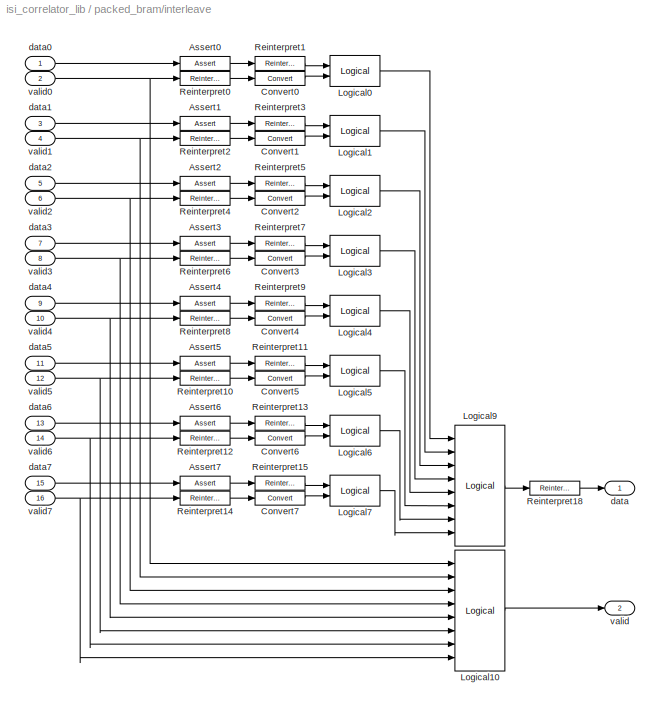
BLOCK [SubSystem] packed_bram/interleave
  FunctionWithSeparateData = off
  MaskCallbackString = |||
  MaskEnableString = on,on,on,on
  MaskHideContents = off
  MaskIconFrame = on
  MaskIconOpaque = on
  MaskIconRotate = none
  MaskIconUnits = autoscale
  MaskPortRotate = default
  MaskPromptString = Bit width:|Binary point:|Logic latency:|Fanin latency:
  MaskStyleString = edit,edit,edit,edit
  MaskToolTipString = on,on,on,on
  MaskTunableValueString = on,on,on,on
  MaskValueString = bit_width|0|1|fanin_latency
  MaskVariables = bit_width=@1;bin_point=@2;logic_latency=@3;fanin_latency=@4;
  MaskVisibilityString = on,on,on,on
  MinAlgLoopOccurrences = off
  Opaque = off
  Ports = [16, 2]
  PropExecContextOutsideSubsystem = off
  RTWSystemCode = Auto
  RequestExecContextInheritance = off
  SID = 1656
BLOCK [Reference] packed_bram/interleave/Assert0  REF=xbsIndex_r4/Assert
  Ports = [1, 1]
  SID = 1675
  SourceBlock = xbsIndex_r4/Assert
  SourceType = Xilinx Assert Block
  arith_type = Signed  (2's comp)
  assert_rate = on
  assert_type = off
  bin_pt = bin_point
  block_type = assert
  block_version = 11.4
  has_advanced_control = 0
  infoedit = Asserts a user-defined sample rate and/or type on a signal.<br><br>Hardware notes: In hardware this block costs nothing.
  n_bits = bit_width
  output_port = on
  period = 1
  rate_source = Explicitly
  sg_icon_stat = 50,14,1,1,white,blue,0,9657e937,right,
  sggui_pos = -1,-1,-1,-1
  type_source = Explicitly
BLOCK [Reference] packed_bram/interleave/Assert1  REF=xbsIndex_r4/Assert
  Ports = [1, 1]
  SID = 1676
  SourceBlock = xbsIndex_r4/Assert
  SourceType = Xilinx Assert Block
  arith_type = Signed  (2's comp)
  assert_rate = on
  assert_type = off
  bin_pt = bin_point
  block_type = assert
  block_version = 11.4
  has_advanced_control = 0
  infoedit = Asserts a user-defined sample rate and/or type on a signal.<br><br>Hardware notes: In hardware this block costs nothing.
  n_bits = bit_width
  output_port = on
  period = 1
  rate_source = Explicitly
  sg_icon_stat = 50,14,1,1,white,blue,0,9657e937,right,
  sggui_pos = -1,-1,-1,-1
  type_source = Explicitly
BLOCK [Reference] packed_bram/interleave/Assert2  REF=xbsIndex_r4/Assert
  Ports = [1, 1]
  SID = 1677
  SourceBlock = xbsIndex_r4/Assert
  SourceType = Xilinx Assert Block
  arith_type = Signed  (2's comp)
  assert_rate = on
  assert_type = off
  bin_pt = bin_point
  block_type = assert
  block_version = 11.4
  has_advanced_control = 0
  infoedit = Asserts a user-defined sample rate and/or type on a signal.<br><br>Hardware notes: In hardware this block costs nothing.
  n_bits = bit_width
  output_port = on
  period = 1
  rate_source = Explicitly
  sg_icon_stat = 50,14,1,1,white,blue,0,9657e937,right,
  sggui_pos = -1,-1,-1,-1
  type_source = Explicitly
BLOCK [Reference] packed_bram/interleave/Assert3  REF=xbsIndex_r4/Assert
  Ports = [1, 1]
  SID = 1678
  SourceBlock = xbsIndex_r4/Assert
  SourceType = Xilinx Assert Block
  arith_type = Signed  (2's comp)
  assert_rate = on
  assert_type = off
  bin_pt = bin_point
  block_type = assert
  block_version = 11.4
  has_advanced_control = 0
  infoedit = Asserts a user-defined sample rate and/or type on a signal.<br><br>Hardware notes: In hardware this block costs nothing.
  n_bits = bit_width
  output_port = on
  period = 1
  rate_source = Explicitly
  sg_icon_stat = 50,14,1,1,white,blue,0,9657e937,right,
  sggui_pos = -1,-1,-1,-1
  type_source = Explicitly
BLOCK [Reference] packed_bram/interleave/Assert4  REF=xbsIndex_r4/Assert
  Ports = [1, 1]
  SID = 1679
  SourceBlock = xbsIndex_r4/Assert
  SourceType = Xilinx Assert Block
  arith_type = Signed  (2's comp)
  assert_rate = on
  assert_type = off
  bin_pt = bin_point
  block_type = assert
  block_version = 11.4
  has_advanced_control = 0
  infoedit = Asserts a user-defined sample rate and/or type on a signal.<br><br>Hardware notes: In hardware this block costs nothing.
  n_bits = bit_width
  output_port = on
  period = 1
  rate_source = Explicitly
  sg_icon_stat = 50,14,1,1,white,blue,0,9657e937,right,
  sggui_pos = -1,-1,-1,-1
  type_source = Explicitly
BLOCK [Reference] packed_bram/interleave/Assert5  REF=xbsIndex_r4/Assert
  Ports = [1, 1]
  SID = 1680
  SourceBlock = xbsIndex_r4/Assert
  SourceType = Xilinx Assert Block
  arith_type = Signed  (2's comp)
  assert_rate = on
  assert_type = off
  bin_pt = bin_point
  block_type = assert
  block_version = 11.4
  has_advanced_control = 0
  infoedit = Asserts a user-defined sample rate and/or type on a signal.<br><br>Hardware notes: In hardware this block costs nothing.
  n_bits = bit_width
  output_port = on
  period = 1
  rate_source = Explicitly
  sg_icon_stat = 50,14,1,1,white,blue,0,9657e937,right,
  sggui_pos = -1,-1,-1,-1
  type_source = Explicitly
BLOCK [Reference] packed_bram/interleave/Assert6  REF=xbsIndex_r4/Assert
  Ports = [1, 1]
  SID = 1681
  SourceBlock = xbsIndex_r4/Assert
  SourceType = Xilinx Assert Block
  arith_type = Signed  (2's comp)
  assert_rate = on
  assert_type = off
  bin_pt = bin_point
  block_type = assert
  block_version = 11.4
  has_advanced_control = 0
  infoedit = Asserts a user-defined sample rate and/or type on a signal.<br><br>Hardware notes: In hardware this block costs nothing.
  n_bits = bit_width
  output_port = on
  period = 1
  rate_source = Explicitly
  sg_icon_stat = 50,14,1,1,white,blue,0,9657e937,right,
  sggui_pos = -1,-1,-1,-1
  type_source = Explicitly
BLOCK [Reference] packed_bram/interleave/Assert7  REF=xbsIndex_r4/Assert
  Ports = [1, 1]
  SID = 1682
  SourceBlock = xbsIndex_r4/Assert
  SourceType = Xilinx Assert Block
  arith_type = Signed  (2's comp)
  assert_rate = on
  assert_type = off
  bin_pt = bin_point
  block_type = assert
  block_version = 11.4
  has_advanced_control = 0
  infoedit = Asserts a user-defined sample rate and/or type on a signal.<br><br>Hardware notes: In hardware this block costs nothing.
  n_bits = bit_width
  output_port = on
  period = 1
  rate_source = Explicitly
  sg_icon_stat = 50,14,1,1,white,blue,0,9657e937,right,
  sggui_pos = -1,-1,-1,-1
  type_source = Explicitly
BLOCK [Reference] packed_bram/interleave/Convert0  REF=xbsIndex_r4/Convert
  Ports = [1, 1]
  SID = 1684
  SourceBlock = xbsIndex_r4/Convert
  SourceType = Xilinx Type Converter Block
  arith_type = Signed  (2's comp)
  bin_pt = 0
  block_type = convert
  block_version = 11.4
  dbl_ovrd = off
  has_advanced_control = 0
  infoedit = Hardware notes: rounding and saturating require hardware resources; truncating and wrapping do not.
  latency = 0
  n_bits = bit_width
  overflow = Wrap
  pipeline = off
  quantization = Truncate
  sg_icon_stat = 50,14,1,1,white,blue,0,edca21da,right,
  sggui_pos = -1,-1,-1,-1
  xl_area = [0,0,0,0,0,0,0]
  xl_use_area = off
BLOCK [Reference] packed_bram/interleave/Convert1  REF=xbsIndex_r4/Convert
  Ports = [1, 1]
  SID = 1685
  SourceBlock = xbsIndex_r4/Convert
  SourceType = Xilinx Type Converter Block
  arith_type = Signed  (2's comp)
  bin_pt = 0
  block_type = convert
  block_version = 11.4
  dbl_ovrd = off
  has_advanced_control = 0
  infoedit = Hardware notes: rounding and saturating require hardware resources; truncating and wrapping do not.
  latency = 0
  n_bits = bit_width
  overflow = Wrap
  pipeline = off
  quantization = Truncate
  sg_icon_stat = 50,14,1,1,white,blue,0,edca21da,right,
  sggui_pos = -1,-1,-1,-1
  xl_area = [0,0,0,0,0,0,0]
  xl_use_area = off
BLOCK [Reference] packed_bram/interleave/Convert2  REF=xbsIndex_r4/Convert
  Ports = [1, 1]
  SID = 1686
  SourceBlock = xbsIndex_r4/Convert
  SourceType = Xilinx Type Converter Block
  arith_type = Signed  (2's comp)
  bin_pt = 0
  block_type = convert
  block_version = 11.4
  dbl_ovrd = off
  has_advanced_control = 0
  infoedit = Hardware notes: rounding and saturating require hardware resources; truncating and wrapping do not.
  latency = 0
  n_bits = bit_width
  overflow = Wrap
  pipeline = off
  quantization = Truncate
  sg_icon_stat = 50,14,1,1,white,blue,0,edca21da,right,
  sggui_pos = -1,-1,-1,-1
  xl_area = [0,0,0,0,0,0,0]
  xl_use_area = off
BLOCK [Reference] packed_bram/interleave/Convert3  REF=xbsIndex_r4/Convert
  Ports = [1, 1]
  SID = 1687
  SourceBlock = xbsIndex_r4/Convert
  SourceType = Xilinx Type Converter Block
  arith_type = Signed  (2's comp)
  bin_pt = 0
  block_type = convert
  block_version = 11.4
  dbl_ovrd = off
  has_advanced_control = 0
  infoedit = Hardware notes: rounding and saturating require hardware resources; truncating and wrapping do not.
  latency = 0
  n_bits = bit_width
  overflow = Wrap
  pipeline = off
  quantization = Truncate
  sg_icon_stat = 50,14,1,1,white,blue,0,edca21da,right,
  sggui_pos = -1,-1,-1,-1
  xl_area = [0,0,0,0,0,0,0]
  xl_use_area = off
BLOCK [Reference] packed_bram/interleave/Convert4  REF=xbsIndex_r4/Convert
  Ports = [1, 1]
  SID = 1688
  SourceBlock = xbsIndex_r4/Convert
  SourceType = Xilinx Type Converter Block
  arith_type = Signed  (2's comp)
  bin_pt = 0
  block_type = convert
  block_version = 11.4
  dbl_ovrd = off
  has_advanced_control = 0
  infoedit = Hardware notes: rounding and saturating require hardware resources; truncating and wrapping do not.
  latency = 0
  n_bits = bit_width
  overflow = Wrap
  pipeline = off
  quantization = Truncate
  sg_icon_stat = 50,14,1,1,white,blue,0,edca21da,right,
  sggui_pos = -1,-1,-1,-1
  xl_area = [0,0,0,0,0,0,0]
  xl_use_area = off
BLOCK [Reference] packed_bram/interleave/Convert5  REF=xbsIndex_r4/Convert
  Ports = [1, 1]
  SID = 1689
  SourceBlock = xbsIndex_r4/Convert
  SourceType = Xilinx Type Converter Block
  arith_type = Signed  (2's comp)
  bin_pt = 0
  block_type = convert
  block_version = 11.4
  dbl_ovrd = off
  has_advanced_control = 0
  infoedit = Hardware notes: rounding and saturating require hardware resources; truncating and wrapping do not.
  latency = 0
  n_bits = bit_width
  overflow = Wrap
  pipeline = off
  quantization = Truncate
  sg_icon_stat = 50,14,1,1,white,blue,0,edca21da,right,
  sggui_pos = -1,-1,-1,-1
  xl_area = [0,0,0,0,0,0,0]
  xl_use_area = off
BLOCK [Reference] packed_bram/interleave/Convert6  REF=xbsIndex_r4/Convert
  Ports = [1, 1]
  SID = 1690
  SourceBlock = xbsIndex_r4/Convert
  SourceType = Xilinx Type Converter Block
  arith_type = Signed  (2's comp)
  bin_pt = 0
  block_type = convert
  block_version = 11.4
  dbl_ovrd = off
  has_advanced_control = 0
  infoedit = Hardware notes: rounding and saturating require hardware resources; truncating and wrapping do not.
  latency = 0
  n_bits = bit_width
  overflow = Wrap
  pipeline = off
  quantization = Truncate
  sg_icon_stat = 50,14,1,1,white,blue,0,edca21da,right,
  sggui_pos = -1,-1,-1,-1
  xl_area = [0,0,0,0,0,0,0]
  xl_use_area = off
BLOCK [Reference] packed_bram/interleave/Convert7  REF=xbsIndex_r4/Convert
  Ports = [1, 1]
  SID = 1691
  SourceBlock = xbsIndex_r4/Convert
  SourceType = Xilinx Type Converter Block
  arith_type = Signed  (2's comp)
  bin_pt = 0
  block_type = convert
  block_version = 11.4
  dbl_ovrd = off
  has_advanced_control = 0
  infoedit = Hardware notes: rounding and saturating require hardware resources; truncating and wrapping do not.
  latency = 0
  n_bits = bit_width
  overflow = Wrap
  pipeline = off
  quantization = Truncate
  sg_icon_stat = 50,14,1,1,white,blue,0,edca21da,right,
  sggui_pos = -1,-1,-1,-1
  xl_area = [0,0,0,0,0,0,0]
  xl_use_area = off
BLOCK [Reference] packed_bram/interleave/Logical0  REF=xbsIndex_r4/Logical
  Ports = [2, 1]
  SID = 1693
  SourceBlock = xbsIndex_r4/Logical
  SourceType = Xilinx Logical Block Block
  align_bp = on
  arith_type = Unsigned
  bin_pt = 0
  block_type = logical
  block_version = 11.3
  dbl_ovrd = off
  en = off
  has_advanced_control = 0
  inputs = 2
  latency = logic_latency
  logical_function = AND
  n_bits = 16
  precision = Full
  sg_icon_stat = 50,31,2,1,white,blue,0,2d68f70b,right,
  sg_list_contents = {'table'=>{'logical_function'=>'popup(AND|NAND|OR|NOR|XOR|XNOR)','userSelections'=>{'logical_function'=>'AND'}}}
  sg_mask_display = fprintf('','COMMENT: begin icon graphics');\npatch([0 1 1 0 ],[0 0 1 1 ],[0.77 0.82 0.91]);\npatch([0.34 0.24 0.38 0.24 0.34 0.5 0.54 0.58 0.76 0.62 0.48 0.38 0.52 0.38 0.48 0.62 0.76 0.58 0.54 0.5 0.34 ],[0.0967742 0.258065 0.483871 0.709677 0.870968 0.870968 0.806452 0.870968 0.870968 0.645161 0.870968 0.709677 0.483871 0.258065 0.0967742 0.322581 0.0967742 0.0967742 0.16129 0.0967742 0.0967742 ...<+247ch>  <repeated x17 — deduplicated; at blocks: Logical0, Logical1, Logical2, Logical3, Logical4, Logical5, Logical6, Logical7, Logical8>
  sggui_pos = 15,-4,543,357
  xl_area = [0,0,0,0,0,0,0]
  xl_use_area = off
BLOCK [Reference] packed_bram/interleave/Logical1  REF=xbsIndex_r4/Logical
  Ports = [2, 1]
  SID = 1694
  SourceBlock = xbsIndex_r4/Logical
  SourceType = Xilinx Logical Block Block
  align_bp = on
  arith_type = Unsigned
  bin_pt = 0
  block_type = logical
  block_version = 11.3
  dbl_ovrd = off
  en = off
  has_advanced_control = 0
  inputs = 2
  latency = logic_latency
  logical_function = AND
  n_bits = 16
  precision = Full
  sg_icon_stat = 50,31,2,1,white,blue,0,2d68f70b,right,
  sg_list_contents = {'table'=>{'logical_function'=>'popup(AND|NAND|OR|NOR|XOR|XNOR)','userSelections'=>{'logical_function'=>'AND'}}}
  sggui_pos = 15,-4,543,357
  xl_area = [0,0,0,0,0,0,0]
  xl_use_area = off
BLOCK [Reference] packed_bram/interleave/Logical10  REF=xbsIndex_r4/Logical
  Ports = [8, 1]
  SID = 1695
  SourceBlock = xbsIndex_r4/Logical
  SourceType = Xilinx Logical Block Block
  align_bp = on
  arith_type = Unsigned
  bin_pt = 0
  block_type = logical
  block_version = 11.3
  dbl_ovrd = off
  en = off
  has_advanced_control = 0
  inputs = 8
  latency = logic_latency + fanin_latency
  logical_function = OR
  n_bits = 16
  precision = Full
  sg_icon_stat = 50,121,8,1,white,blue,0,0702983d,right,
  sg_list_contents = {'table'=>{'logical_function'=>'popup(AND|NAND|OR|NOR|XOR|XNOR)','userSelections'=>{'logical_function'=>'OR'}}}
  sg_mask_display = fprintf('','COMMENT: begin icon graphics');\npatch([0 1 1 0 ],[0 0 1 1 ],[0.77 0.82 0.91]);\npatch([0.22 0.06 0.3 0.06 0.22 0.48 0.56 0.64 0.92 0.7 0.48 0.32 0.56 0.32 0.48 0.7 0.92 0.64 0.56 0.48 0.22 ],[0.338843 0.404959 0.504132 0.603306 0.669421 0.669421 0.636364 0.669421 0.669421 0.578512 0.669421 0.603306 0.504132 0.404959 0.338843 0.429752 0.338843 0.338843 0.371901 0.338843 0.338843 ],[0.9...<+240ch>
  sggui_pos = 15,-4,543,357
  xl_area = [0,0,0,0,0,0,0]
  xl_use_area = off
BLOCK [Reference] packed_bram/interleave/Logical2  REF=xbsIndex_r4/Logical
  Ports = [2, 1]
  SID = 1696
  SourceBlock = xbsIndex_r4/Logical
  SourceType = Xilinx Logical Block Block
  align_bp = on
  arith_type = Unsigned
  bin_pt = 0
  block_type = logical
  block_version = 11.3
  dbl_ovrd = off
  en = off
  has_advanced_control = 0
  inputs = 2
  latency = logic_latency
  logical_function = AND
  n_bits = 16
  precision = Full
  sg_icon_stat = 50,31,2,1,white,blue,0,2d68f70b,right,
  sg_list_contents = {'table'=>{'logical_function'=>'popup(AND|NAND|OR|NOR|XOR|XNOR)','userSelections'=>{'logical_function'=>'AND'}}}
  sggui_pos = 15,-4,543,357
  xl_area = [0,0,0,0,0,0,0]
  xl_use_area = off
BLOCK [Reference] packed_bram/interleave/Logical3  REF=xbsIndex_r4/Logical
  Ports = [2, 1]
  SID = 1697
  SourceBlock = xbsIndex_r4/Logical
  SourceType = Xilinx Logical Block Block
  align_bp = on
  arith_type = Unsigned
  bin_pt = 0
  block_type = logical
  block_version = 11.3
  dbl_ovrd = off
  en = off
  has_advanced_control = 0
  inputs = 2
  latency = logic_latency
  logical_function = AND
  n_bits = 16
  precision = Full
  sg_icon_stat = 50,31,2,1,white,blue,0,2d68f70b,right,
  sg_list_contents = {'table'=>{'logical_function'=>'popup(AND|NAND|OR|NOR|XOR|XNOR)','userSelections'=>{'logical_function'=>'AND'}}}
  sggui_pos = 15,-4,543,357
  xl_area = [0,0,0,0,0,0,0]
  xl_use_area = off
BLOCK [Reference] packed_bram/interleave/Logical4  REF=xbsIndex_r4/Logical
  Ports = [2, 1]
  SID = 1698
  SourceBlock = xbsIndex_r4/Logical
  SourceType = Xilinx Logical Block Block
  align_bp = on
  arith_type = Unsigned
  bin_pt = 0
  block_type = logical
  block_version = 11.3
  dbl_ovrd = off
  en = off
  has_advanced_control = 0
  inputs = 2
  latency = logic_latency
  logical_function = AND
  n_bits = 16
  precision = Full
  sg_icon_stat = 50,31,2,1,white,blue,0,2d68f70b,right,
  sg_list_contents = {'table'=>{'logical_function'=>'popup(AND|NAND|OR|NOR|XOR|XNOR)','userSelections'=>{'logical_function'=>'AND'}}}
  sggui_pos = 15,-4,543,357
  xl_area = [0,0,0,0,0,0,0]
  xl_use_area = off
BLOCK [Reference] packed_bram/interleave/Logical5  REF=xbsIndex_r4/Logical
  Ports = [2, 1]
  SID = 1699
  SourceBlock = xbsIndex_r4/Logical
  SourceType = Xilinx Logical Block Block
  align_bp = on
  arith_type = Unsigned
  bin_pt = 0
  block_type = logical
  block_version = 11.3
  dbl_ovrd = off
  en = off
  has_advanced_control = 0
  inputs = 2
  latency = logic_latency
  logical_function = AND
  n_bits = 16
  precision = Full
  sg_icon_stat = 50,31,2,1,white,blue,0,2d68f70b,right,
  sg_list_contents = {'table'=>{'logical_function'=>'popup(AND|NAND|OR|NOR|XOR|XNOR)','userSelections'=>{'logical_function'=>'AND'}}}
  sggui_pos = 15,-4,543,357
  xl_area = [0,0,0,0,0,0,0]
  xl_use_area = off
BLOCK [Reference] packed_bram/interleave/Logical6  REF=xbsIndex_r4/Logical
  Ports = [2, 1]
  SID = 1700
  SourceBlock = xbsIndex_r4/Logical
  SourceType = Xilinx Logical Block Block
  align_bp = on
  arith_type = Unsigned
  bin_pt = 0
  block_type = logical
  block_version = 11.3
  dbl_ovrd = off
  en = off
  has_advanced_control = 0
  inputs = 2
  latency = logic_latency
  logical_function = AND
  n_bits = 16
  precision = Full
  sg_icon_stat = 50,31,2,1,white,blue,0,2d68f70b,right,
  sg_list_contents = {'table'=>{'logical_function'=>'popup(AND|NAND|OR|NOR|XOR|XNOR)','userSelections'=>{'logical_function'=>'AND'}}}
  sggui_pos = 15,-4,543,357
  xl_area = [0,0,0,0,0,0,0]
  xl_use_area = off
BLOCK [Reference] packed_bram/interleave/Logical7  REF=xbsIndex_r4/Logical
  Ports = [2, 1]
  SID = 1701
  SourceBlock = xbsIndex_r4/Logical
  SourceType = Xilinx Logical Block Block
  align_bp = on
  arith_type = Unsigned
  bin_pt = 0
  block_type = logical
  block_version = 11.3
  dbl_ovrd = off
  en = off
  has_advanced_control = 0
  inputs = 2
  latency = logic_latency
  logical_function = AND
  n_bits = 16
  precision = Full
  sg_icon_stat = 50,31,2,1,white,blue,0,2d68f70b,right,
  sg_list_contents = {'table'=>{'logical_function'=>'popup(AND|NAND|OR|NOR|XOR|XNOR)','userSelections'=>{'logical_function'=>'AND'}}}
  sggui_pos = 15,-4,543,357
  xl_area = [0,0,0,0,0,0,0]
  xl_use_area = off
BLOCK [Reference] packed_bram/interleave/Logical9  REF=xbsIndex_r4/Logical
  Ports = [8, 1]
  SID = 1703
  SourceBlock = xbsIndex_r4/Logical
  SourceType = Xilinx Logical Block Block
  align_bp = on
  arith_type = Unsigned
  bin_pt = 0
  block_type = logical
  block_version = 11.3
  dbl_ovrd = off
  en = off
  has_advanced_control = 0
  inputs = 8
  latency = fanin_latency
  logical_function = OR
  n_bits = 16
  precision = Full
  sg_icon_stat = 50,121,8,1,white,blue,0,f8299635,right,
  sg_list_contents = {'table'=>{'logical_function'=>'popup(AND|NAND|OR|NOR|XOR|XNOR)','userSelections'=>{'logical_function'=>'OR'}}}
  sg_mask_display = fprintf('','COMMENT: begin icon graphics');\npatch([0 1 1 0 ],[0 0 1 1 ],[0.77 0.82 0.91]);\npatch([0.22 0.06 0.3 0.06 0.22 0.48 0.56 0.64 0.92 0.7 0.48 0.32 0.56 0.32 0.48 0.7 0.92 0.64 0.56 0.48 0.22 ],[0.338843 0.404959 0.504132 0.603306 0.669421 0.669421 0.636364 0.669421 0.669421 0.578512 0.669421 0.603306 0.504132 0.404959 0.338843 0.429752 0.338843 0.338843 0.371901 0.338843 0.338843 ],[0.9...<+240ch>
  sggui_pos = 15,-4,543,357
  xl_area = [0,0,0,0,0,0,0]
  xl_use_area = off
BLOCK [Reference] packed_bram/interleave/Reinterpret0  REF=xbsIndex_r4/Reinterpret
  Ports = [1, 1]
  SID = 1704
  SourceBlock = xbsIndex_r4/Reinterpret
  SourceType = Xilinx Type Reinterpreter Block
  arith_type = Signed  (2's comp)
  bin_pt = 0
  block_type = reinterpret
  block_version = 11.4
  force_arith_type = on
  force_bin_pt = on
  has_advanced_control = 0
  sg_icon_stat = 50,14,1,1,white,blue,0,6b04d0b0,right,
  sggui_pos = -1,-1,-1,-1
BLOCK [Reference] packed_bram/interleave/Reinterpret1  REF=xbsIndex_r4/Reinterpret
  Ports = [1, 1]
  SID = 1705
  SourceBlock = xbsIndex_r4/Reinterpret
  SourceType = Xilinx Type Reinterpreter Block
  arith_type = Unsigned
  bin_pt = 0
  block_type = reinterpret
  block_version = 11.4
  force_arith_type = on
  force_bin_pt = on
  has_advanced_control = 0
  sg_icon_stat = 50,14,1,1,white,blue,0,6b04d0b0,right,
  sggui_pos = -1,-1,-1,-1
BLOCK [Reference] packed_bram/interleave/Reinterpret10  REF=xbsIndex_r4/Reinterpret
  Ports = [1, 1]
  SID = 1706
  SourceBlock = xbsIndex_r4/Reinterpret
  SourceType = Xilinx Type Reinterpreter Block
  arith_type = Signed  (2's comp)
  bin_pt = 0
  block_type = reinterpret
  block_version = 11.4
  force_arith_type = on
  force_bin_pt = on
  has_advanced_control = 0
  sg_icon_stat = 50,14,1,1,white,blue,0,6b04d0b0,right,
  sggui_pos = -1,-1,-1,-1
BLOCK [Reference] packed_bram/interleave/Reinterpret11  REF=xbsIndex_r4/Reinterpret
  Ports = [1, 1]
  SID = 1707
  SourceBlock = xbsIndex_r4/Reinterpret
  SourceType = Xilinx Type Reinterpreter Block
  arith_type = Unsigned
  bin_pt = 0
  block_type = reinterpret
  block_version = 11.4
  force_arith_type = on
  force_bin_pt = on
  has_advanced_control = 0
  sg_icon_stat = 50,14,1,1,white,blue,0,6b04d0b0,right,
  sggui_pos = -1,-1,-1,-1
BLOCK [Reference] packed_bram/interleave/Reinterpret12  REF=xbsIndex_r4/Reinterpret
  Ports = [1, 1]
  SID = 1708
  SourceBlock = xbsIndex_r4/Reinterpret
  SourceType = Xilinx Type Reinterpreter Block
  arith_type = Signed  (2's comp)
  bin_pt = 0
  block_type = reinterpret
  block_version = 11.4
  force_arith_type = on
  force_bin_pt = on
  has_advanced_control = 0
  sg_icon_stat = 50,14,1,1,white,blue,0,6b04d0b0,right,
  sggui_pos = -1,-1,-1,-1
BLOCK [Reference] packed_bram/interleave/Reinterpret13  REF=xbsIndex_r4/Reinterpret
  Ports = [1, 1]
  SID = 1709
  SourceBlock = xbsIndex_r4/Reinterpret
  SourceType = Xilinx Type Reinterpreter Block
  arith_type = Unsigned
  bin_pt = 0
  block_type = reinterpret
  block_version = 11.4
  force_arith_type = on
  force_bin_pt = on
  has_advanced_control = 0
  sg_icon_stat = 50,14,1,1,white,blue,0,6b04d0b0,right,
  sggui_pos = -1,-1,-1,-1
BLOCK [Reference] packed_bram/interleave/Reinterpret14  REF=xbsIndex_r4/Reinterpret
  Ports = [1, 1]
  SID = 1710
  SourceBlock = xbsIndex_r4/Reinterpret
  SourceType = Xilinx Type Reinterpreter Block
  arith_type = Signed  (2's comp)
  bin_pt = 0
  block_type = reinterpret
  block_version = 11.4
  force_arith_type = on
  force_bin_pt = on
  has_advanced_control = 0
  sg_icon_stat = 50,14,1,1,white,blue,0,6b04d0b0,right,
  sggui_pos = 15,25,372,364
BLOCK [Reference] packed_bram/interleave/Reinterpret15  REF=xbsIndex_r4/Reinterpret
  Ports = [1, 1]
  SID = 1711
  SourceBlock = xbsIndex_r4/Reinterpret
  SourceType = Xilinx Type Reinterpreter Block
  arith_type = Unsigned
  bin_pt = 0
  block_type = reinterpret
  block_version = 11.4
  force_arith_type = on
  force_bin_pt = on
  has_advanced_control = 0
  sg_icon_stat = 50,14,1,1,white,blue,0,6b04d0b0,right,
  sggui_pos = -1,-1,-1,-1
BLOCK [Reference] packed_bram/interleave/Reinterpret18  REF=xbsIndex_r4/Reinterpret
  Ports = [1, 1]
  SID = 1714
  SourceBlock = xbsIndex_r4/Reinterpret
  SourceType = Xilinx Type Reinterpreter Block
  arith_type = Signed  (2's comp)
  bin_pt = bin_point
  block_type = reinterpret
  block_version = 11.4
  force_arith_type = on
  force_bin_pt = off
  has_advanced_control = 0
  sg_icon_stat = 50,14,1,1,white,blue,0,6b04d0b0,right,
  sggui_pos = -1,-1,-1,-1
BLOCK [Reference] packed_bram/interleave/Reinterpret2  REF=xbsIndex_r4/Reinterpret
  Ports = [1, 1]
  SID = 1715
  SourceBlock = xbsIndex_r4/Reinterpret
  SourceType = Xilinx Type Reinterpreter Block
  arith_type = Signed  (2's comp)
  bin_pt = 0
  block_type = reinterpret
  block_version = 11.4
  force_arith_type = on
  force_bin_pt = on
  has_advanced_control = 0
  sg_icon_stat = 50,14,1,1,white,blue,0,6b04d0b0,right,
  sggui_pos = -1,-1,-1,-1
BLOCK [Reference] packed_bram/interleave/Reinterpret3  REF=xbsIndex_r4/Reinterpret
  Ports = [1, 1]
  SID = 1716
  SourceBlock = xbsIndex_r4/Reinterpret
  SourceType = Xilinx Type Reinterpreter Block
  arith_type = Unsigned
  bin_pt = 0
  block_type = reinterpret
  block_version = 11.4
  force_arith_type = on
  force_bin_pt = on
  has_advanced_control = 0
  sg_icon_stat = 50,14,1,1,white,blue,0,6b04d0b0,right,
  sggui_pos = -1,-1,-1,-1
BLOCK [Reference] packed_bram/interleave/Reinterpret4  REF=xbsIndex_r4/Reinterpret
  Ports = [1, 1]
  SID = 1717
  SourceBlock = xbsIndex_r4/Reinterpret
  SourceType = Xilinx Type Reinterpreter Block
  arith_type = Signed  (2's comp)
  bin_pt = 0
  block_type = reinterpret
  block_version = 11.4
  force_arith_type = on
  force_bin_pt = on
  has_advanced_control = 0
  sg_icon_stat = 50,14,1,1,white,blue,0,6b04d0b0,right,
  sggui_pos = -1,-1,-1,-1
BLOCK [Reference] packed_bram/interleave/Reinterpret5  REF=xbsIndex_r4/Reinterpret
  Ports = [1, 1]
  SID = 1718
  SourceBlock = xbsIndex_r4/Reinterpret
  SourceType = Xilinx Type Reinterpreter Block
  arith_type = Unsigned
  bin_pt = 0
  block_type = reinterpret
  block_version = 11.4
  force_arith_type = on
  force_bin_pt = on
  has_advanced_control = 0
  sg_icon_stat = 50,14,1,1,white,blue,0,6b04d0b0,right,
  sggui_pos = -1,-1,-1,-1
BLOCK [Reference] packed_bram/interleave/Reinterpret6  REF=xbsIndex_r4/Reinterpret
  Ports = [1, 1]
  SID = 1719
  SourceBlock = xbsIndex_r4/Reinterpret
  SourceType = Xilinx Type Reinterpreter Block
  arith_type = Signed  (2's comp)
  bin_pt = 0
  block_type = reinterpret
  block_version = 11.4
  force_arith_type = on
  force_bin_pt = on
  has_advanced_control = 0
  sg_icon_stat = 50,14,1,1,white,blue,0,6b04d0b0,right,
  sggui_pos = -1,-1,-1,-1
BLOCK [Reference] packed_bram/interleave/Reinterpret7  REF=xbsIndex_r4/Reinterpret
  Ports = [1, 1]
  SID = 1720
  SourceBlock = xbsIndex_r4/Reinterpret
  SourceType = Xilinx Type Reinterpreter Block
  arith_type = Unsigned
  bin_pt = 0
  block_type = reinterpret
  block_version = 11.4
  force_arith_type = on
  force_bin_pt = on
  has_advanced_control = 0
  sg_icon_stat = 50,14,1,1,white,blue,0,6b04d0b0,right,
  sggui_pos = -1,-1,-1,-1
BLOCK [Reference] packed_bram/interleave/Reinterpret8  REF=xbsIndex_r4/Reinterpret
  Ports = [1, 1]
  SID = 1721
  SourceBlock = xbsIndex_r4/Reinterpret
  SourceType = Xilinx Type Reinterpreter Block
  arith_type = Signed  (2's comp)
  bin_pt = 0
  block_type = reinterpret
  block_version = 11.4
  force_arith_type = on
  force_bin_pt = on
  has_advanced_control = 0
  sg_icon_stat = 50,14,1,1,white,blue,0,6b04d0b0,right,
  sggui_pos = -1,-1,-1,-1
BLOCK [Reference] packed_bram/interleave/Reinterpret9  REF=xbsIndex_r4/Reinterpret
  Ports = [1, 1]
  SID = 1722
  SourceBlock = xbsIndex_r4/Reinterpret
  SourceType = Xilinx Type Reinterpreter Block
  arith_type = Unsigned
  bin_pt = 0
  block_type = reinterpret
  block_version = 11.4
  force_arith_type = on
  force_bin_pt = on
  has_advanced_control = 0
  sg_icon_stat = 50,14,1,1,white,blue,0,6b04d0b0,right,
  sggui_pos = -1,-1,-1,-1
BLOCK [Outport] packed_bram/interleave/data
  IconDisplay = Port number
  SID = 1723
BLOCK [Inport] packed_bram/interleave/data0
  IconDisplay = Port number
  SID = 1657
BLOCK [Inport] packed_bram/interleave/data1
  IconDisplay = Port number
  Port = 3
  SID = 1659
BLOCK [Inport] packed_bram/interleave/data2
  IconDisplay = Port number
  Port = 5
  SID = 1661
BLOCK [Inport] packed_bram/interleave/data3
  IconDisplay = Port number
  Port = 7
  SID = 1663
BLOCK [Inport] packed_bram/interleave/data4
  IconDisplay = Port number
  Port = 9
  SID = 1665
BLOCK [Inport] packed_bram/interleave/data5
  IconDisplay = Port number
  Port = 11
  SID = 1667
BLOCK [Inport] packed_bram/interleave/data6
  IconDisplay = Port number
  Port = 13
  SID = 1669
BLOCK [Inport] packed_bram/interleave/data7
  IconDisplay = Port number
  Port = 15
  SID = 1671
BLOCK [Outport] packed_bram/interleave/valid
  IconDisplay = Port number
  Port = 2
  SID = 1724
BLOCK [Inport] packed_bram/interleave/valid0
  IconDisplay = Port number
  Port = 2
  SID = 1658
BLOCK [Inport] packed_bram/interleave/valid1
  IconDisplay = Port number
  Port = 4
  SID = 1660
BLOCK [Inport] packed_bram/interleave/valid2
  IconDisplay = Port number
  Port = 6
  SID = 1662
BLOCK [Inport] packed_bram/interleave/valid3
  IconDisplay = Port number
  Port = 8
  SID = 1664
BLOCK [Inport] packed_bram/interleave/valid4
  IconDisplay = Port number
  Port = 10
  SID = 1666
BLOCK [Inport] packed_bram/interleave/valid5
  IconDisplay = Port number
  Port = 12
  SID = 1668
BLOCK [Inport] packed_bram/interleave/valid6
  IconDisplay = Port number
  Port = 14
  SID = 1670
BLOCK [Inport] packed_bram/interleave/valid7
  IconDisplay = Port number
  Port = 16
  SID = 1672
BLOCK [Reference] packed_bram/pkt_id  REF=xps_library/software register  (lib defined in mdl_00b5cec29cd0, mdl_02ab6ecaa3d1, +5 more)
  FunctionWithSeparateData = off
  Ports = [1, 1]
  RTWMemSecDataConstants = Inherit from model
  RTWMemSecDataInternal = Inherit from model
  RTWMemSecDataParameters = Inherit from model
  RTWMemSecFuncExecute = Inherit from model
  RTWMemSecFuncInitTerm = Inherit from model
  SID = 1614
  ShowPortLabels = FromPortIcon
  SourceBlock = xps_library/software register
  SourceType = Unknown
  SystemSampleTime = -1
  Tag = xps:sw_reg
  arith_type = Unsigned
  bin_pt = 0
  bitwidth = 32
  gw_name = isi_correlator_lib_packed_bram_pkt_id_user_data_in
  io_dir = To Processor
  sample_period = 1
BLOCK [Reference] packed_bram/pulse_ext0  REF=casper_library/Accumulators/simple_bram_vacc/pulse_ext  (lib defined in mdl_138b2fc3435f, mdl_4ed325b712b3, +2 more)
  FunctionWithSeparateData = off
  Ports = [1, 1]
  RTWMemSecDataConstants = Inherit from model
  RTWMemSecDataInternal = Inherit from model
  RTWMemSecDataParameters = Inherit from model
  RTWMemSecFuncExecute = Inherit from model
  RTWMemSecFuncInitTerm = Inherit from model
  SID = 1744
  ShowPortLabels = FromPortIcon
  SourceBlock = casper_library/Accumulators/simple_bram_vacc/pulse_ext
  SourceType = pulse_ext
  SystemSampleTime = -1
  pulse_len = window_length
BLOCK [Reference] packed_bram/pulse_ext1  REF=casper_library/Accumulators/simple_bram_vacc/pulse_ext  (lib defined in mdl_138b2fc3435f, mdl_4ed325b712b3, +2 more)
  FunctionWithSeparateData = off
  Ports = [1, 1]
  RTWMemSecDataConstants = Inherit from model
  RTWMemSecDataInternal = Inherit from model
  RTWMemSecDataParameters = Inherit from model
  RTWMemSecFuncExecute = Inherit from model
  RTWMemSecFuncInitTerm = Inherit from model
  SID = 1745
  ShowPortLabels = FromPortIcon
  SourceBlock = casper_library/Accumulators/simple_bram_vacc/pulse_ext
  SourceType = pulse_ext
  SystemSampleTime = -1
  pulse_len = window_length
BLOCK [Reference] packed_bram/pulse_ext2  REF=casper_library/Accumulators/simple_bram_vacc/pulse_ext  (lib defined in mdl_138b2fc3435f, mdl_4ed325b712b3, +2 more)
  FunctionWithSeparateData = off
  Ports = [1, 1]
  RTWMemSecDataConstants = Inherit from model
  RTWMemSecDataInternal = Inherit from model
  RTWMemSecDataParameters = Inherit from model
  RTWMemSecFuncExecute = Inherit from model
  RTWMemSecFuncInitTerm = Inherit from model
  SID = 1746
  ShowPortLabels = FromPortIcon
  SourceBlock = casper_library/Accumulators/simple_bram_vacc/pulse_ext
  SourceType = pulse_ext
  SystemSampleTime = -1
  pulse_len = window_length
BLOCK [Reference] packed_bram/pulse_ext3  REF=casper_library/Accumulators/simple_bram_vacc/pulse_ext  (lib defined in mdl_138b2fc3435f, mdl_4ed325b712b3, +2 more)
  FunctionWithSeparateData = off
  Ports = [1, 1]
  RTWMemSecDataConstants = Inherit from model
  RTWMemSecDataInternal = Inherit from model
  RTWMemSecDataParameters = Inherit from model
  RTWMemSecFuncExecute = Inherit from model
  RTWMemSecFuncInitTerm = Inherit from model
  SID = 1747
  ShowPortLabels = FromPortIcon
  SourceBlock = casper_library/Accumulators/simple_bram_vacc/pulse_ext
  SourceType = pulse_ext
  SystemSampleTime = -1
  pulse_len = window_length
BLOCK [Reference] packed_bram/pulse_ext4  REF=casper_library/Accumulators/simple_bram_vacc/pulse_ext  (lib defined in mdl_138b2fc3435f, mdl_4ed325b712b3, +2 more)
  FunctionWithSeparateData = off
  Ports = [1, 1]
  RTWMemSecDataConstants = Inherit from model
  RTWMemSecDataInternal = Inherit from model
  RTWMemSecDataParameters = Inherit from model
  RTWMemSecFuncExecute = Inherit from model
  RTWMemSecFuncInitTerm = Inherit from model
  SID = 1748
  ShowPortLabels = FromPortIcon
  SourceBlock = casper_library/Accumulators/simple_bram_vacc/pulse_ext
  SourceType = pulse_ext
  SystemSampleTime = -1
  pulse_len = window_length
BLOCK [Reference] packed_bram/pulse_ext5  REF=casper_library/Accumulators/simple_bram_vacc/pulse_ext  (lib defined in mdl_138b2fc3435f, mdl_4ed325b712b3, +2 more)
  FunctionWithSeparateData = off
  Ports = [1, 1]
  RTWMemSecDataConstants = Inherit from model
  RTWMemSecDataInternal = Inherit from model
  RTWMemSecDataParameters = Inherit from model
  RTWMemSecFuncExecute = Inherit from model
  RTWMemSecFuncInitTerm = Inherit from model
  SID = 1749
  ShowPortLabels = FromPortIcon
  SourceBlock = casper_library/Accumulators/simple_bram_vacc/pulse_ext
  SourceType = pulse_ext
  SystemSampleTime = -1
  pulse_len = window_length
BLOCK [Reference] packed_bram/pulse_ext6  REF=casper_library/Accumulators/simple_bram_vacc/pulse_ext  (lib defined in mdl_138b2fc3435f, mdl_4ed325b712b3, +2 more)
  FunctionWithSeparateData = off
  Ports = [1, 1]
  RTWMemSecDataConstants = Inherit from model
  RTWMemSecDataInternal = Inherit from model
  RTWMemSecDataParameters = Inherit from model
  RTWMemSecFuncExecute = Inherit from model
  RTWMemSecFuncInitTerm = Inherit from model
  SID = 1750
  ShowPortLabels = FromPortIcon
  SourceBlock = casper_library/Accumulators/simple_bram_vacc/pulse_ext
  SourceType = pulse_ext
  SystemSampleTime = -1
  pulse_len = window_length
BLOCK [Reference] packed_bram/pulse_ext7  REF=casper_library/Accumulators/simple_bram_vacc/pulse_ext  (lib defined in mdl_138b2fc3435f, mdl_4ed325b712b3, +2 more)
  FunctionWithSeparateData = off
  Ports = [1, 1]
  RTWMemSecDataConstants = Inherit from model
  RTWMemSecDataInternal = Inherit from model
  RTWMemSecDataParameters = Inherit from model
  RTWMemSecFuncExecute = Inherit from model
  RTWMemSecFuncInitTerm = Inherit from model
  SID = 1751
  ShowPortLabels = FromPortIcon
  SourceBlock = casper_library/Accumulators/simple_bram_vacc/pulse_ext
  SourceType = pulse_ext
  SystemSampleTime = -1
  pulse_len = window_length
BLOCK [Inport] packed_bram/rst
  IconDisplay = Port number
  Port = 10
  SID = 1609
BLOCK [Inport] packed_bram/sync
  IconDisplay = Port number
  SID = 1599
BLOCK [SubSystem] pos_extend
  FunctionWithSeparateData = off
  MaskDescription = Extends a boolean signal to be high for the specified number of clocks after the last high input.
  MaskEnableString = on
  MaskHideContents = off
  MaskIconFrame = on
  MaskIconOpaque = on
  MaskIconRotate = none
  MaskIconUnits = autoscale
  MaskPortRotate = default
  MaskPromptString = Duration:
  MaskStyleString = edit
  MaskToolTipString = on
  MaskTunableValueString = on
  MaskType = pos_extend
  MaskValueString = 8
  MaskVariables = duration=@1;
  MaskVisibilityString = on
  MinAlgLoopOccurrences = off
  Opaque = off
  Ports = [1, 1]
  PropExecContextOutsideSubsystem = off
  RTWSystemCode = Auto
  RequestExecContextInheritance = off
  SID = 892
BLOCK [Reference] pos_extend/Constant  REF=xbsIndex_r4/Constant
  Ports = [0, 1]
  SID = 894
  SourceBlock = xbsIndex_r4/Constant
  SourceType = Xilinx Constant Block Block
  arith_type = Unsigned
  bin_pt = 0
  block_type = constant
  block_version = 9.1.01
  carry = CIN
  const = duration + 1
  dbl_ovrd = off
  dsp48_infoedit = The use of this block for DSP48 instructions is deprecated.  Please use the Opmode block.
  equ = P=C
  explicit_period = on
  has_advanced_control = 0
  inp1 = P
  inp2 = PCIN>>17
  n_bits = nextpow2(duration + 2)
  opr = +
  opselect = C
  period = 1
  sg_icon_stat = 50,14,0,1,white,blue,0,350ae870,right,
  sggui_pos = -1,-1,-1,-1
BLOCK [Reference] pos_extend/Counter  REF=xbsIndex_r4/Counter
  Ports = [2, 1]
  SID = 895
  SourceBlock = xbsIndex_r4/Counter
  SourceType = Xilinx Counter Block
  arith_type = Unsigned
  bin_pt = 0
  block_type = counter
  block_version = 9.1.01
  cnt_by_val = 1
  cnt_to = Inf
  cnt_type = Free Running
  dbl_ovrd = off
  en = on
  explicit_period = on
  has_advanced_control = 0
  implementation = Fabric
  infoedit = Hardware notes: Free running counters are the least expensive in hardware.  A count limited counter is implemented by combining a counter with a comparator.
  load_pin = off
  n_bits = nextpow2(duration + 2)
  operation = Up
  period = 1
  rst = on
  sg_icon_stat = 50,31,2,1,white,blue,0,d605779c,right,
  sggui_pos = -1,-1,-1,-1
  start_count = 0
  use_behavioral_HDL = off
  use_rpm = on
  xl_area = [0, 0, 0, 0, 0, 0, 0]
  xl_use_area = off
BLOCK [Reference] pos_extend/Relational  REF=xbsIndex_r4/Relational
  Ports = [2, 1]
  SID = 896
  SourceBlock = xbsIndex_r4/Relational
  SourceType = Xilinx Arithmetic Relational Operator Block
  block_type = relational
  block_version = 9.1.01
  dbl_ovrd = off
  en = off
  has_advanced_control = 0
  latency = 0
  mode = a!=b
  sg_icon_stat = 50,31,2,1,white,blue,0,6a9ac0d0,right,
  sg_mask_display = fprintf('','COMMENT: begin icon graphics');\npatch([0 1 1 0 ],[0 0 1 1 ],[0.77 0.82 0.91]);\npatch([0.34 0.24 0.38 0.24 0.34 0.5 0.54 0.58 0.76 0.62 0.48 0.38 0.52 0.38 0.48 0.62 0.76 0.58 0.54 0.5 0.34 ],[0.0967742 0.258065 0.483871 0.709677 0.870968 0.870968 0.806452 0.870968 0.870968 0.645161 0.870968 0.709677 0.483871 0.258065 0.0967742 0.322581 0.0967742 0.0967742 0.16129 0.0967742 0.0967742 ...<+340ch>
  sggui_pos = -1,-1,-1,-1
  xl_area = [0, 0, 0, 0, 0, 0, 0]
  xl_use_area = off
BLOCK [Inport] pos_extend/in
  IconDisplay = Port number
  OutDataType = sfix(16)
  OutScaling = 2^0
  SID = 893
BLOCK [Outport] pos_extend/out
  IconDisplay = Port number
  OutDataType = sfix(16)
  OutScaling = 2^0
  SID = 897
BLOCK [SubSystem] pulse_hold
  FunctionWithSeparateData = off
  MaskHideContents = off
  MinAlgLoopOccurrences = off
  Opaque = off
  Ports = [2, 1]
  PropExecContextOutsideSubsystem = off
  RTWSystemCode = Auto
  RequestExecContextInheritance = off
  SID = 460
BLOCK [Reference] pulse_hold/Register  REF=xbsIndex_r4/Register
  Ports = [3, 1]
  SID = 463
  SourceBlock = xbsIndex_r4/Register
  SourceType = Xilinx Register Block
  block_type = register
  block_version = 10.1.3
  dbl_ovrd = off
  en = on
  has_advanced_control = 0
  init = 0
  rst = on
  sg_icon_stat = 50,52,3,1,white,blue,0,b821322c,right,
  sg_mask_display = fprintf('','COMMENT: begin icon graphics');\npatch([0 1 1 0 ],[0 0 1 1 ],[0.77 0.82 0.91]);\npatch([0.22 0.06 0.3 0.06 0.22 0.48 0.56 0.64 0.92 0.7 0.48 0.32 0.56 0.32 0.48 0.7 0.92 0.64 0.56 0.48 0.22 ],[0.115385 0.269231 0.5 0.730769 0.884615 0.884615 0.807692 0.884615 0.884615 0.673077 0.884615 0.730769 0.5 0.269231 0.115385 0.326923 0.115385 0.115385 0.192308 0.115385 0.115385 ],[0.98 0.96 0.9...<+392ch>
  sggui_pos = 20,20,348,193
  xl_area = [0,0,0,0,0,0,0]
  xl_use_area = off
BLOCK [Inport] pulse_hold/din
  IconDisplay = Port number
  OutDataType = sfix(16)
  OutScaling = 2^0
  SID = 461
BLOCK [Outport] pulse_hold/hold
  IconDisplay = Port number
  OutDataType = sfix(16)
  OutScaling = 2^0
  SID = 464
BLOCK [Inport] pulse_hold/rst
  IconDisplay = Port number
  OutDataType = sfix(16)
  OutScaling = 2^0
  Port = 2
  SID = 462
BLOCK [SubSystem] resync
  FunctionWithSeparateData = off
  MaskDescription = Realigns a data stream with another based on sync pulses.
  MaskEnableString = on
  MaskHideContents = off
  MaskIconFrame = on
  MaskIconOpaque = on
  MaskIconRotate = none
  MaskIconUnits = autoscale
  MaskPortRotate = default
  MaskPromptString = Buffer depth: (2^?)
  MaskStyleString = edit
  MaskToolTipString = on
  MaskTunableValueString = on
  MaskType = resync
  MaskValueString = 5
  MaskVariables = depth=@1;
  MaskVisibilityString = on
  MinAlgLoopOccurrences = off
  Opaque = off
  Ports = [3, 2]
  PropExecContextOutsideSubsystem = off
  RTWSystemCode = Auto
  RequestExecContextInheritance = off
  SID = 465
BLOCK [Reference] resync/ASR  REF=xbsIndex_r4/Addressable Shift Register
  Ports = [2, 1]
  SID = 469
  SourceBlock = xbsIndex_r4/Addressable Shift Register
  SourceType = Xilinx Addressable Shift Register Block
  block_type = addrsr
  block_version = 10.1.3
  dbl_ovrd = off
  depth = 2^depth
  en = off
  has_advanced_control = 0
  infer_latency = on
  infoedit = Delay of configurable length.  Any element in the delay line can be addressed and driven onto the output port.<br><br>Hardware notes: Implemented using SRL16s.  If Virtex-4, Virtex-II or Spartan-3 devices are used, multiple SRLC16s are cascaded together.
  initVector = [0]
  sg_icon_stat = 50,53,2,1,white,blue,0,a352fb33,right,
  sg_mask_display = fprintf('','COMMENT: begin icon graphics');\npatch([0 1 1 0 ],[0 0 1 1 ],[0.77 0.82 0.91]);\npatch([0.22 0.06 0.3 0.06 0.22 0.48 0.56 0.64 0.92 0.7 0.48 0.32 0.56 0.32 0.48 0.7 0.92 0.64 0.56 0.48 0.22 ],[0.132075 0.283019 0.509434 0.735849 0.886792 0.886792 0.811321 0.886792 0.886792 0.679245 0.886792 0.735849 0.509434 0.283019 0.132075 0.339623 0.132075 0.132075 0.207547 0.132075 0.132075 ],[0.9...<+306ch>
  sggui_pos = 20,20,543,470
  use_behavioral_HDL = off
  use_rpm = off
  xl_area = [0,0,0,0,0,0,0]
  xl_use_area = off
BLOCK [Reference] resync/Constant  REF=xbsIndex_r4/Constant
  Ports = [0, 1]
  SID = 1787
  SourceBlock = xbsIndex_r4/Constant
  SourceType = Xilinx Constant Block Block
  arith_type = Unsigned
  bin_pt = 0
  block_type = constant
  block_version = 10.1.1
  carry = CIN
  const = 0
  dbl_ovrd = off
  dsp48_infoedit = The use of this block for DSP48 instructions is deprecated.  Please use the Opmode block.
  equ = P=C
  explicit_period = on
  has_advanced_control = 0
  inp1 = P
  inp2 = PCIN>>17
  n_bits = 1
  opr = +
  opselect = C
  period = 1
  sg_icon_stat = 50,14,0,1,white,blue,0,bf4ddd8b,right,
  sggui_pos = 20,20,554,541
BLOCK [Reference] resync/Counter  REF=xbsIndex_r4/Counter
  Ports = [1, 1]
  SID = 471
  SourceBlock = xbsIndex_r4/Counter
  SourceType = Xilinx Counter Block
  arith_type = Unsigned
  bin_pt = 0
  block_type = counter
  block_version = 10.1.3
  cnt_by_val = 1
  cnt_to = Inf
  cnt_type = Free Running
  dbl_ovrd = off
  en = off
  explicit_period = on
  has_advanced_control = 0
  implementation = Fabric
  infoedit = Hardware notes: Free running counters are the least expensive in hardware.  A count limited counter is implemented by combining a counter with a comparator.
  load_pin = off
  n_bits = depth
  operation = Down
  period = 1
  rst = on
  sg_icon_stat = 50,14,1,1,white,blue,0,c59595e6,right,
  sg_mask_display = fprintf('','COMMENT: begin icon graphics');\npatch([0 1 1 0 ],[0 0 1 1 ],[0.77 0.82 0.91]);\npatch([0.42 0.38 0.44 0.38 0.42 0.5 0.52 0.54 0.62 0.56 0.5 0.46 0.52 0.46 0.5 0.56 0.62 0.54 0.52 0.5 0.42 ],[0.142857 0.285714 0.5 0.714286 0.857143 0.857143 0.785714 0.857143 0.857143 0.642857 0.857143 0.714286 0.5 0.285714 0.142857 0.357143 0.142857 0.142857 0.214286 0.142857 0.142857 ],[0.98 0.96 0.92...<+253ch>
  sggui_pos = 20,20,543,936
  start_count = 2^depth - 1
  use_behavioral_HDL = off
  use_rpm = off
  xl_area = [0,0,0,0,0,0,0]
  xl_use_area = off
BLOCK [Reference] resync/Register  REF=xbsIndex_r4/Register
  Ports = [2, 1]
  SID = 475
  SourceBlock = xbsIndex_r4/Register
  SourceType = Xilinx Register Block
  block_type = register
  block_version = 10.1.3
  dbl_ovrd = off
  en = on
  has_advanced_control = 0
  init = 0
  rst = off
  sg_icon_stat = 50,29,2,1,white,blue,0,01f465d5,right,
  sg_mask_display = fprintf('','COMMENT: begin icon graphics');\npatch([0 1 1 0 ],[0 0 1 1 ],[0.77 0.82 0.91]);\npatch([0.34 0.24 0.38 0.24 0.34 0.5 0.54 0.58 0.74 0.62 0.5 0.4 0.54 0.4 0.5 0.62 0.74 0.58 0.54 0.5 0.34 ],[0.103448 0.275862 0.517241 0.758621 0.931034 0.931034 0.862069 0.931034 0.931034 0.724138 0.931034 0.758621 0.517241 0.275862 0.103448 0.310345 0.103448 0.103448 0.172414 0.103448 0.103448 ],[0.98 0...<+354ch>
  sggui_pos = 20,20,543,249
  xl_area = [0,0,0,0,0,0,0]
  xl_use_area = off
BLOCK [Terminator] resync/Terminator14
  SID = 1789
BLOCK [Inport] resync/data_in
  IconDisplay = Port number
  Port = 3
  SID = 468
BLOCK [Outport] resync/dout
  IconDisplay = Port number
  SID = 476
BLOCK [Reference] resync/offset  REF=xps_library/software register  (lib defined in mdl_00b5cec29cd0, mdl_02ab6ecaa3d1, +5 more)
  FunctionWithSeparateData = off
  Ports = [1, 1]
  RTWMemSecDataConstants = Inherit from model
  RTWMemSecDataInternal = Inherit from model
  RTWMemSecDataParameters = Inherit from model
  RTWMemSecFuncExecute = Inherit from model
  RTWMemSecFuncInitTerm = Inherit from model
  SID = 1788
  ShowPortLabels = FromPortIcon
  SourceBlock = xps_library/software register
  SourceType = Unknown
  SystemSampleTime = -1
  Tag = xps:sw_reg
  arith_type = Signed  (2's comp)
  bin_pt = 0
  bitwidth = 32
  gw_name = isi_correlator_lib_resync_offset_user_data_in
  io_dir = To Processor
  sample_period = 1
BLOCK [Outport] resync/resync
  IconDisplay = Port number
  Port = 2
  SID = 477
BLOCK [Reference] resync/sync_delay  REF=xbsIndex_r4/Delay
  Ports = [1, 1]
  SID = 1511
  SourceBlock = xbsIndex_r4/Delay
  SourceType = Xilinx Delay Block
  block_type = delay
  block_version = 10.1.3
  dbl_ovrd = off
  en = off
  has_advanced_control = 0
  infoedit = Hardware notes: A delay line is a chain, each link of which is an SRL16 followed by a flip-flop.
  latency = 1
  reg_retiming = on
  sg_icon_stat = 50,14,1,1,white,blue,0,07b98262,right,
  sggui_pos = 20,20,543,392
  xl_area = [0,0,0,0,0,0,0]
  xl_use_area = off
BLOCK [Inport] resync/sync_in
  IconDisplay = Port number
  Port = 2
  SID = 467
BLOCK [Inport] resync/sync_ref
  IconDisplay = Port number
  SID = 466
BLOCK [SubSystem] saturate
  FunctionWithSeparateData = off
  MaskCallbackString = |
  MaskEnableString = on,on
  MaskHideContents = off
  MaskIconFrame = on
  MaskIconOpaque = on
  MaskIconRotate = none
  MaskIconUnits = autoscale
  MaskInitialization = coef_bit_width = data_bit_width - dout_bit_width;\nmax_rep = 2^(dout_bit_width-1);\nmax_val = (max_rep - 1) / max_rep;
  MaskPortRotate = default
  MaskPromptString = Input bit width:|Output bit width:
  MaskStyleString = edit,edit
  MaskToolTipString = on,on
  MaskTunableValueString = on,on
  MaskType = saturate
  MaskValueString = 18|4
  MaskVariables = data_bit_width=@1;dout_bit_width=@2;
  MaskVisibilityString = on,on
  MinAlgLoopOccurrences = off
  Opaque = off
  Ports = [1, 2]
  PropExecContextOutsideSubsystem = off
  RTWSystemCode = Auto
  RequestExecContextInheritance = off
  SID = 478
BLOCK [Reference] saturate/Concat  REF=xbsIndex_r4/Concat
  Ports = [2, 1]
  SID = 480
  SourceBlock = xbsIndex_r4/Concat
  SourceType = Xilinx Bus Concatenator Block
  block_type = concat
  block_version = 10.1.3
  dbl_ovrd = off
  has_advanced_control = 0
  infoedit = Concatenates two or more inputs.  Output will be cast to an unsigned value with the binary point at zero.
  num_inputs = 2
  sg_icon_stat = 50,60,2,1,white,blue,0,97b7e8d2,right,
  sg_mask_display = fprintf('','COMMENT: begin icon graphics');\npatch([0 1 1 0 ],[0 0 1 1 ],[0.77 0.82 0.91]);\npatch([0.22 0.06 0.3 0.06 0.22 0.48 0.56 0.64 0.92 0.7 0.48 0.32 0.56 0.32 0.48 0.7 0.92 0.64 0.56 0.48 0.22 ],[0.166667 0.3 0.5 0.7 0.833333 0.833333 0.766667 0.833333 0.833333 0.65 0.833333 0.7 0.5 0.3 0.166667 0.35 0.166667 0.166667 0.233333 0.166667 0.166667 ],[0.98 0.96 0.92]);\nplot([0 1 1 0 0 ],[0 0...<+223ch>
  sggui_pos = 20,20,336,165
BLOCK [Reference] saturate/Convert  REF=xbsIndex_r4/Convert
  Ports = [1, 1]
  SID = 481
  SourceBlock = xbsIndex_r4/Convert
  SourceType = Xilinx Type Converter Block
  arith_type = Signed  (2's comp)
  bin_pt = dout_bit_width - 1
  block_type = convert
  block_version = 10.1.3
  dbl_ovrd = off
  has_advanced_control = 0
  infoedit = Hardware notes: rounding and saturating require hardware resources; truncating and wrapping do not.
  latency = 2
  n_bits = dout_bit_width
  overflow = Wrap
  pipeline = off
  quantization = Round  (unbiased: Even Values)
  sg_icon_stat = 50,14,1,1,white,blue,0,5129c5aa,right,
  sg_mask_display = fprintf('','COMMENT: begin icon graphics');\npatch([0 1 1 0 ],[0 0 1 1 ],[0.77 0.82 0.91]);\npatch([0.42 0.38 0.44 0.38 0.42 0.5 0.52 0.54 0.62 0.56 0.5 0.46 0.52 0.46 0.5 0.56 0.62 0.54 0.52 0.5 0.42 ],[0.142857 0.285714 0.5 0.714286 0.857143 0.857143 0.785714 0.857143 0.857143 0.642857 0.857143 0.714286 0.5 0.285714 0.142857 0.357143 0.142857 0.142857 0.214286 0.142857 0.142857 ],[0.98 0.96 0.92...<+265ch>
  sggui_pos = 372,119,636,521
  xl_area = [0,0,0,0,0,0,0]
  xl_use_area = off
BLOCK [Reference] saturate/Logical  REF=xbsIndex_r4/Logical
  Ports = [2, 1]
  SID = 482
  SourceBlock = xbsIndex_r4/Logical
  SourceType = Xilinx Logical Block Block
  align_bp = on
  arith_type = Unsigned
  bin_pt = 2
  block_type = logical
  block_version = 10.1.3
  dbl_ovrd = off
  en = off
  has_advanced_control = 0
  inputs = 2
  latency = 0
  logical_function = OR
  n_bits = 8
  precision = Full
  sg_icon_stat = 50,29,2,1,white,blue,0,fc354646,right,
  sg_list_contents = {'table'=>{'logical_function'=>'popup(AND|NAND|OR|NOR|XOR|XNOR)','userSelections'=>{'logical_function'=>'OR'}}}
  sggui_pos = 20,20,348,261
  xl_area = [0, 0, 0, 0, 0, 0, 0]
  xl_use_area = off
BLOCK [Reference] saturate/Max  REF=xbsIndex_r4/Constant
  Ports = [0, 1]
  SID = 483
  SourceBlock = xbsIndex_r4/Constant
  SourceType = Xilinx Constant Block Block
  arith_type = Signed (2's comp)
  bin_pt = data_bit_width - 1
  block_type = constant
  block_version = 10.1.3
  carry = CIN
  const = max_val
  dbl_ovrd = off
  dsp48_infoedit = The use of this block for DSP48 instructions is deprecated.  Please use the Opmode block.
  equ = P=C
  explicit_period = on
  has_advanced_control = 0
  inp1 = P
  inp2 = PCIN>>17
  n_bits = data_bit_width
  opr = +
  opselect = C
  period = 1
  sg_icon_stat = 50,14,0,1,white,blue,0,9115a688,right,
  sggui_pos = 95,381,400,346
BLOCK [Reference] saturate/Max1  REF=xbsIndex_r4/Constant
  Ports = [0, 1]
  SID = 484
  SourceBlock = xbsIndex_r4/Constant
  SourceType = Xilinx Constant Block Block
  arith_type = Signed (2's comp)
  bin_pt = dout_bit_width - 1
  block_type = constant
  block_version = 10.1.3
  carry = CIN
  const = max_val
  dbl_ovrd = off
  dsp48_infoedit = The use of this block for DSP48 instructions is deprecated.  Please use the Opmode block.
  equ = P=C
  explicit_period = on
  has_advanced_control = 0
  inp1 = P
  inp2 = PCIN>>17
  n_bits = dout_bit_width
  opr = +
  opselect = C
  period = 1
  sg_icon_stat = 50,14,0,1,white,blue,0,9115a688,right,
  sggui_pos = 95,381,400,346
BLOCK [Reference] saturate/Max2  REF=xbsIndex_r4/Constant
  Ports = [0, 1]
  SID = 485
  SourceBlock = xbsIndex_r4/Constant
  SourceType = Xilinx Constant Block Block
  arith_type = Signed (2's comp)
  bin_pt = dout_bit_width - 1
  block_type = constant
  block_version = 10.1.3
  carry = CIN
  const = 0
  dbl_ovrd = off
  dsp48_infoedit = The use of this block for DSP48 instructions is deprecated.  Please use the Opmode block.
  equ = P=C
  explicit_period = on
  has_advanced_control = 0
  inp1 = P
  inp2 = PCIN>>17
  n_bits = dout_bit_width
  opr = +
  opselect = C
  period = 1
  sg_icon_stat = 50,14,0,1,white,blue,0,bf4ddd8b,right,
  sggui_pos = 95,381,400,346
BLOCK [Reference] saturate/Min  REF=xbsIndex_r4/Constant
  Ports = [0, 1]
  SID = 486
  SourceBlock = xbsIndex_r4/Constant
  SourceType = Xilinx Constant Block Block
  arith_type = Signed (2's comp)
  bin_pt = data_bit_width - 1
  block_type = constant
  block_version = 10.1.3
  carry = CIN
  const = -max_val
  dbl_ovrd = off
  dsp48_infoedit = The use of this block for DSP48 instructions is deprecated.  Please use the Opmode block.
  equ = P=C
  explicit_period = on
  has_advanced_control = 0
  inp1 = P
  inp2 = PCIN>>17
  n_bits = data_bit_width
  opr = +
  opselect = C
  period = 1
  sg_icon_stat = 50,14,0,1,white,blue,0,5fc2cb76,right,
  sg_mask_display = fprintf('','COMMENT: begin icon graphics');\npatch([0 1 1 0 ],[0 0 1 1 ],[0.77 0.82 0.91]);\npatch([0.42 0.38 0.44 0.38 0.42 0.5 0.52 0.54 0.62 0.56 0.5 0.46 0.52 0.46 0.5 0.56 0.62 0.54 0.52 0.5 0.42 ],[0.142857 0.285714 0.5 0.714286 0.857143 0.857143 0.785714 0.857143 0.857143 0.642857 0.857143 0.714286 0.5 0.285714 0.142857 0.357143 0.142857 0.142857 0.214286 0.142857 0.142857 ],[0.98 0.96 0.92...<+211ch>
  sggui_pos = 465,54,400,346
BLOCK [Reference] saturate/Min1  REF=xbsIndex_r4/Constant
  Ports = [0, 1]
  SID = 487
  SourceBlock = xbsIndex_r4/Constant
  SourceType = Xilinx Constant Block Block
  arith_type = Signed (2's comp)
  bin_pt = dout_bit_width - 1
  block_type = constant
  block_version = 10.1.3
  carry = CIN
  const = -max_val
  dbl_ovrd = off
  dsp48_infoedit = The use of this block for DSP48 instructions is deprecated.  Please use the Opmode block.
  equ = P=C
  explicit_period = on
  has_advanced_control = 0
  inp1 = P
  inp2 = PCIN>>17
  n_bits = dout_bit_width
  opr = +
  opselect = C
  period = 1
  sg_icon_stat = 50,14,0,1,white,blue,0,5fc2cb76,right,
  sg_mask_display = fprintf('','COMMENT: begin icon graphics');\npatch([0 1 1 0 ],[0 0 1 1 ],[0.77 0.82 0.91]);\npatch([0.42 0.38 0.44 0.38 0.42 0.5 0.52 0.54 0.62 0.56 0.5 0.46 0.52 0.46 0.5 0.56 0.62 0.54 0.52 0.5 0.42 ],[0.142857 0.285714 0.5 0.714286 0.857143 0.857143 0.785714 0.857143 0.857143 0.642857 0.857143 0.714286 0.5 0.285714 0.142857 0.357143 0.142857 0.142857 0.214286 0.142857 0.142857 ],[0.98 0.96 0.92...<+211ch>
  sggui_pos = 465,54,400,346
BLOCK [Reference] saturate/Mux  REF=xbsIndex_r4/Mux
  Ports = [5, 1]
  SID = 488
  SourceBlock = xbsIndex_r4/Mux
  SourceType = Xilinx Bus Multiplexer Block
  arith_type = Signed  (2's comp)
  bin_pt = 2
  block_type = mux
  block_version = 10.1.3
  dbl_ovrd = off
  en = off
  has_advanced_control = 0
  inputs = 4
  latency = 0
  n_bits = 8
  overflow = Wrap
  precision = Full
  quantization = Truncate
  sg_icon_stat = 50,74,5,1,white,blue,3,d6c79293,right,
  sg_list_contents = {'table'=>{'inputs'=>'popup(2|3|4|5|6|7|8|9|10|11|12|13|14|15|16|17|18|19|20|21|22|23|24|25|26|27|28|29|30|31|32)','userSelections'=>{'inputs'=>'4'}}}
  sg_mask_display = fprintf('','COMMENT: begin icon graphics');\npatch([0 1 1 0 ],[0 0.142857 0.857143 1 ],[0.77 0.82 0.91]);\npatch([0.22 0.06 0.3 0.06 0.22 0.48 0.56 0.64 0.92 0.7 0.48 0.32 0.56 0.32 0.48 0.7 0.92 0.64 0.56 0.48 0.22 ],[0.22973 0.337838 0.5 0.662162 0.77027 0.77027 0.716216 0.77027 0.77027 0.621622 0.77027 0.662162 0.5 0.337838 0.22973 0.378378 0.22973 0.22973 0.283784 0.22973 0.22973 ],[0.98 0.96 ...<+448ch>
  sggui_pos = 20,20,348,303
  xl_area = [0, 0, 0, 0, 0, 0, 0]
  xl_use_area = off
BLOCK [Reference] saturate/Relational_Max  REF=xbsIndex_r4/Relational
  Ports = [2, 1]
  SID = 491
  SourceBlock = xbsIndex_r4/Relational
  SourceType = Xilinx Arithmetic Relational Operator Block
  block_type = relational
  block_version = 10.1.3
  dbl_ovrd = off
  en = off
  has_advanced_control = 0
  latency = 2
  mode = a>b
  sg_icon_stat = 50,29,2,1,white,blue,0,1572da41,right,
  sg_list_contents = {'table'=>{'mode'=>'popup(a=b|a!=b|a<b|a>b|a<=b|a>=b)','userSelections'=>{'mode'=>'a>b'}}}
  sg_mask_display = fprintf('','COMMENT: begin icon graphics');\npatch([0 1 1 0 ],[0 0 1 1 ],[0.77 0.82 0.91]);\npatch([0.34 0.24 0.38 0.24 0.34 0.5 0.54 0.58 0.74 0.62 0.5 0.4 0.54 0.4 0.5 0.62 0.74 0.58 0.54 0.5 0.34 ],[0.103448 0.275862 0.517241 0.758621 0.931034 0.931034 0.862069 0.931034 0.931034 0.724138 0.931034 0.758621 0.517241 0.275862 0.103448 0.310345 0.103448 0.103448 0.172414 0.103448 0.103448 ],[0.98 0...<+330ch>
  sggui_pos = 20,20,348,193
  xl_area = [0, 0, 0, 0, 0, 0, 0]
  xl_use_area = off
BLOCK [Reference] saturate/Relational_Min  REF=xbsIndex_r4/Relational
  Ports = [2, 1]
  SID = 492
  SourceBlock = xbsIndex_r4/Relational
  SourceType = Xilinx Arithmetic Relational Operator Block
  block_type = relational
  block_version = 10.1.3
  dbl_ovrd = off
  en = off
  has_advanced_control = 0
  latency = 2
  mode = a<b
  sg_icon_stat = 50,29,2,1,white,blue,0,484889fd,right,
  sg_list_contents = {'table'=>{'mode'=>'popup(a=b|a!=b|a<b|a>b|a<=b|a>=b)','userSelections'=>{'mode'=>'a<b'}}}
  sg_mask_display = fprintf('','COMMENT: begin icon graphics');\npatch([0 1 1 0 ],[0 0 1 1 ],[0.77 0.82 0.91]);\npatch([0.34 0.24 0.38 0.24 0.34 0.5 0.54 0.58 0.74 0.62 0.5 0.4 0.54 0.4 0.5 0.62 0.74 0.58 0.54 0.5 0.34 ],[0.103448 0.275862 0.517241 0.758621 0.931034 0.931034 0.862069 0.931034 0.931034 0.724138 0.931034 0.758621 0.517241 0.275862 0.103448 0.310345 0.103448 0.103448 0.172414 0.103448 0.103448 ],[0.98 0...<+330ch>
  sggui_pos = -1,-1,-1,-1
  xl_area = [0, 0, 0, 0, 0, 0, 0]
  xl_use_area = off
BLOCK [Outport] saturate/clip
  IconDisplay = Port number
  OutDataType = sfix(16)
  OutScaling = 2^0
  Port = 2
  SID = 494
BLOCK [Inport] saturate/din
  IconDisplay = Port number
  OutDataType = sfix(16)
  OutScaling = 2^0
  SID = 479
BLOCK [Outport] saturate/dout
  IconDisplay = Port number
  OutDataType = sfix(16)
  OutScaling = 2^0
  SID = 493
BLOCK [SubSystem] scale
  FunctionWithSeparateData = off
  MaskCallbackString = |
  MaskEnableString = on,on
  MaskHideContents = off
  MaskIconFrame = on
  MaskIconOpaque = on
  MaskIconRotate = none
  MaskIconUnits = autoscale
  MaskInitialization = coef_bit_width = data_bit_width - dout_bit_width;
  MaskPortRotate = default
  MaskPromptString = Input bit width:|Output bit width:
  MaskStyleString = edit,edit
  MaskToolTipString = on,on
  MaskTunableValueString = on,on
  MaskValueString = 18|4
  MaskVariables = data_bit_width=@1;dout_bit_width=@2;
  MaskVisibilityString = on,on
  MinAlgLoopOccurrences = off
  Opaque = off
  Ports = [2, 2]
  PropExecContextOutsideSubsystem = off
  RTWSystemCode = Auto
  RequestExecContextInheritance = off
  SID = 495
BLOCK [Reference] scale/Assert0  REF=xbsIndex_r4/Assert
  Ports = [1, 1]
  SID = 1548
  SourceBlock = xbsIndex_r4/Assert
  SourceType = Xilinx Assert Block
  arith_type = Unsigned
  assert_rate = on
  assert_type = on
  bin_pt = 0
  block_type = assert
  block_version = 11.4
  has_advanced_control = 0
  infoedit = Asserts a user-defined sample rate and/or type on a signal.<br><br>Hardware notes: In hardware this block costs nothing.
  n_bits = 2 * data_bit_width
  output_port = on
  period = 1
  rate_source = Explicitly
  sg_icon_stat = 50,14,1,1,white,blue,0,9657e937,right,
  sggui_pos = -1,-1,-1,-1
  type_source = Explicitly
BLOCK [Reference] scale/Assert1  REF=xbsIndex_r4/Assert
  Ports = [1, 1]
  SID = 1550
  SourceBlock = xbsIndex_r4/Assert
  SourceType = Xilinx Assert Block
  arith_type = Unsigned
  assert_rate = on
  assert_type = on
  bin_pt = 0
  block_type = assert
  block_version = 11.4
  has_advanced_control = 0
  infoedit = Asserts a user-defined sample rate and/or type on a signal.<br><br>Hardware notes: In hardware this block costs nothing.
  n_bits = coef_bit_width
  output_port = on
  period = 1
  rate_source = Explicitly
  sg_icon_stat = 50,14,1,1,white,blue,0,9657e937,right,
  sggui_pos = -1,-1,-1,-1
  type_source = Explicitly
BLOCK [Reference] scale/Logical  REF=xbsIndex_r4/Logical
  Ports = [2, 1]
  SID = 498
  SourceBlock = xbsIndex_r4/Logical
  SourceType = Xilinx Logical Block Block
  align_bp = on
  arith_type = Unsigned
  bin_pt = 2
  block_type = logical
  block_version = 10.1.3
  dbl_ovrd = off
  en = off
  has_advanced_control = 0
  inputs = 2
  latency = 0
  logical_function = OR
  n_bits = 8
  precision = Full
  sg_icon_stat = 50,29,2,1,white,blue,0,fc354646,right,
  sggui_pos = 20,20,543,357
  xl_area = [0, 0, 0, 0, 0, 0, 0]
  xl_use_area = off
BLOCK [Reference] scale/Mult_imag  REF=xbsIndex_r4/Mult
  Ports = [2, 1]
  SID = 499
  SourceBlock = xbsIndex_r4/Mult
  SourceType = Xilinx Multiplier Block
  arith_type = Signed  (2's comp)
  bin_pt = 14
  block_type = mult
  block_version = 10.1.3
  dbl_ovrd = off
  en = off
  has_advanced_control = 0
  infoedit = Hardware notes: To use the internal pipeline stage of the dedicated multiplier you must select 'Pipeline for maximum performance'.
  latency = 3
  n_bits = 16
  opt = Speed
  optimum_pipeline = off
  overflow = Wrap
  pipeline = on
  placement_style = Triangular
  precision = Full
  quantization = Truncate
  sg_icon_stat = 50,29,2,1,white,blue,0,42380145,right,
  sg_mask_display = fprintf('','COMMENT: begin icon graphics');\npatch([0 1 1 0 ],[0 0 1 1 ],[0.77 0.82 0.91]);\npatch([0.34 0.24 0.38 0.24 0.34 0.5 0.54 0.58 0.74 0.62 0.5 0.4 0.54 0.4 0.5 0.62 0.74 0.58 0.54 0.5 0.34 ],[0.103448 0.275862 0.517241 0.758621 0.931034 0.931034 0.862069 0.931034 0.931034 0.724138 0.931034 0.758621 0.517241 0.275862 0.103448 0.310345 0.103448 0.103448 0.172414 0.103448 0.103448 ],[0.98 0...<+374ch>
  sggui_pos = 20,20,348,433
  use_behavioral_HDL = off
  use_embedded = on
  use_rpm = on
  xl_area = [0,0,0,0,0,0,0]
  xl_use_area = off
BLOCK [Reference] scale/Mult_real  REF=xbsIndex_r4/Mult
  Ports = [2, 1]
  SID = 500
  SourceBlock = xbsIndex_r4/Mult
  SourceType = Xilinx Multiplier Block
  arith_type = Signed  (2's comp)
  bin_pt = 14
  block_type = mult
  block_version = 10.1.3
  dbl_ovrd = off
  en = off
  has_advanced_control = 0
  infoedit = Hardware notes: To use the internal pipeline stage of the dedicated multiplier you must select 'Pipeline for maximum performance'.
  latency = 3
  n_bits = 16
  opt = Speed
  optimum_pipeline = off
  overflow = Wrap
  pipeline = on
  placement_style = Triangular
  precision = Full
  quantization = Truncate
  sg_icon_stat = 50,29,2,1,white,blue,0,42380145,right,
  sg_mask_display = fprintf('','COMMENT: begin icon graphics');\npatch([0 1 1 0 ],[0 0 1 1 ],[0.77 0.82 0.91]);\npatch([0.34 0.24 0.38 0.24 0.34 0.5 0.54 0.58 0.74 0.62 0.5 0.4 0.54 0.4 0.5 0.62 0.74 0.58 0.54 0.5 0.34 ],[0.103448 0.275862 0.517241 0.758621 0.931034 0.931034 0.862069 0.931034 0.931034 0.724138 0.931034 0.758621 0.517241 0.275862 0.103448 0.310345 0.103448 0.103448 0.172414 0.103448 0.103448 ],[0.98 0...<+374ch>
  sggui_pos = 20,20,543,778
  use_behavioral_HDL = off
  use_embedded = on
  use_rpm = on
  xl_area = [0,0,0,0,0,0,0]
  xl_use_area = off
BLOCK [Reference] scale/c_to_ri  REF=casper_library/Misc/c_to_ri  (lib defined in mdl_138b2fc3435f, mdl_4ed325b712b3, +2 more)
  AttributesFormatString = _ r/i
  FunctionWithSeparateData = off
  Ports = [1, 2]
  RTWMemSecDataConstants = Inherit from model
  RTWMemSecDataInternal = Inherit from model
  RTWMemSecDataParameters = Inherit from model
  RTWMemSecFuncExecute = Inherit from model
  RTWMemSecFuncInitTerm = Inherit from model
  SID = 504
  ShowPortLabels = FromPortIcon
  SourceBlock = casper_library/Misc/c_to_ri
  SourceType = c_to_ri
  SystemSampleTime = -1
  UserData = DataTag4
  UserDataPersistent = on
  bin_pt = data_bit_width - 1
  n_bits = data_bit_width
BLOCK [Outport] scale/clip
  IconDisplay = Port number
  OutDataType = sfix(16)
  OutScaling = 2^0
  Port = 2
  SID = 509
BLOCK [Inport] scale/din
  IconDisplay = Port number
  OutDataType = sfix(16)
  OutScaling = 2^0
  SID = 496
BLOCK [Outport] scale/dout
  IconDisplay = Port number
  OutDataType = sfix(16)
  OutScaling = 2^0
  SID = 508
BLOCK [Reference] scale/ri_to_c  REF=casper_library/Misc/ri_to_c  (lib defined in mdl_138b2fc3435f, mdl_4ed325b712b3, +2 more)
  FunctionWithSeparateData = off
  Ports = [2, 1]
  RTWMemSecDataConstants = Inherit from model
  RTWMemSecDataInternal = Inherit from model
  RTWMemSecDataParameters = Inherit from model
  RTWMemSecFuncExecute = Inherit from model
  RTWMemSecFuncInitTerm = Inherit from model
  SID = 505
  ShowPortLabels = FromPortIcon
  SourceBlock = casper_library/Misc/ri_to_c
  SourceType = ri_to_c
  SystemSampleTime = -1
  UserData = DataTag5
  UserDataPersistent = on
BLOCK [Reference] scale/saturate_imag  REF=isi_correlator_lib/saturate  (lib defined in mdl_4b72aa53f299)
  FunctionWithSeparateData = off
  Ports = [1, 2]
  RTWMemSecDataConstants = Inherit from model
  RTWMemSecDataInternal = Inherit from model
  RTWMemSecDataParameters = Inherit from model
  RTWMemSecFuncExecute = Inherit from model
  RTWMemSecFuncInitTerm = Inherit from model
  SID = 506
  ShowPortLabels = FromPortIcon
  SourceBlock = isi_correlator_lib/saturate
  SourceType = saturate
  SystemSampleTime = -1
  data_bit_width = data_bit_width
  dout_bit_width = dout_bit_width
BLOCK [Reference] scale/saturate_real  REF=isi_correlator_lib/saturate  (lib defined in mdl_4b72aa53f299)
  FunctionWithSeparateData = off
  Ports = [1, 2]
  RTWMemSecDataConstants = Inherit from model
  RTWMemSecDataInternal = Inherit from model
  RTWMemSecDataParameters = Inherit from model
  RTWMemSecFuncExecute = Inherit from model
  RTWMemSecFuncInitTerm = Inherit from model
  SID = 507
  ShowPortLabels = FromPortIcon
  SourceBlock = isi_correlator_lib/saturate
  SourceType = saturate
  SystemSampleTime = -1
  data_bit_width = data_bit_width
  dout_bit_width = dout_bit_width
BLOCK [Inport] scale/scale
  IconDisplay = Port number
  OutDataType = sfix(16)
  OutScaling = 2^0
  Port = 2
  SID = 497
BLOCK [SubSystem] shuffle
  FunctionWithSeparateData = off
  MaskEnableString = on
  MaskHideContents = off
  MaskIconFrame = on
  MaskIconOpaque = on
  MaskIconRotate = none
  MaskIconUnits = autoscale
  MaskPortRotate = default
  MaskPromptString = Latency:
  MaskStyleString = edit
  MaskToolTipString = on
  MaskTunableValueString = on
  MaskValueString = 3
  MaskVariables = latency=@1;
  MaskVisibilityString = on
  MinAlgLoopOccurrences = off
  Opaque = off
  Ports = [6, 5]
  PropExecContextOutsideSubsystem = off
  RTWSystemCode = Auto
  RequestExecContextInheritance = off
  SID = 510
BLOCK [Inport] shuffle/A
  IconDisplay = Port number
  OutDataType = sfix(16)
  OutScaling = 2^0
  Port = 2
  SID = 512
BLOCK [Reference] shuffle/Assert  REF=xbsIndex_r4/Assert
  Ports = [1, 1]
  SID = 1547
  SourceBlock = xbsIndex_r4/Assert
  SourceType = Xilinx Assert Block
  arith_type = Unsigned
  assert_rate = on
  assert_type = on
  bin_pt = 0
  block_type = assert
  block_version = 11.4
  has_advanced_control = 0
  infoedit = Asserts a user-defined sample rate and/or type on a signal.<br><br>Hardware notes: In hardware this block costs nothing.
  n_bits = 2
  output_port = on
  period = 1
  rate_source = Explicitly
  sg_icon_stat = 50,14,1,1,white,blue,0,9657e937,right,
  sggui_pos = -1,-1,-1,-1
  type_source = Explicitly
BLOCK [Inport] shuffle/B
  IconDisplay = Port number
  OutDataType = sfix(16)
  OutScaling = 2^0
  Port = 3
  SID = 513
BLOCK [Inport] shuffle/C
  IconDisplay = Port number
  OutDataType = sfix(16)
  OutScaling = 2^0
  Port = 4
  SID = 514
BLOCK [Reference] shuffle/Constant0  REF=xbsIndex_r4/Constant
  Ports = [0, 1]
  SID = 517
  SourceBlock = xbsIndex_r4/Constant
  SourceType = Xilinx Constant Block Block
  arith_type = Unsigned
  bin_pt = 0
  block_type = constant
  block_version = 10.1.1
  carry = CIN
  const = 0
  dbl_ovrd = off
  dsp48_infoedit = The use of this block for DSP48 instructions is deprecated.  Please use the Opmode block.
  equ = P=C
  explicit_period = on
  has_advanced_control = 0
  inp1 = P
  inp2 = PCIN>>17
  n_bits = 32
  opr = +
  opselect = C
  period = 1
  sg_icon_stat = 30,14,0,1,white,blue,0,bf4ddd8b,right,
  sggui_pos = 20,20,400,346
BLOCK [Reference] shuffle/Constant1  REF=xbsIndex_r4/Constant
  Ports = [0, 1]
  SID = 518
  SourceBlock = xbsIndex_r4/Constant
  SourceType = Xilinx Constant Block Block
  arith_type = Unsigned
  bin_pt = 0
  block_type = constant
  block_version = 10.1.1
  carry = CIN
  const = 0
  dbl_ovrd = off
  dsp48_infoedit = The use of this block for DSP48 instructions is deprecated.  Please use the Opmode block.
  equ = P=C
  explicit_period = on
  has_advanced_control = 0
  inp1 = P
  inp2 = PCIN>>17
  n_bits = 32
  opr = +
  opselect = C
  period = 1
  sg_icon_stat = 30,14,0,1,white,blue,0,bf4ddd8b,right,
  sggui_pos = 20,20,400,346
BLOCK [Reference] shuffle/Constant2  REF=xbsIndex_r4/Constant
  Ports = [0, 1]
  SID = 519
  SourceBlock = xbsIndex_r4/Constant
  SourceType = Xilinx Constant Block Block
  arith_type = Unsigned
  bin_pt = 0
  block_type = constant
  block_version = 10.1.1
  carry = CIN
  const = 0
  dbl_ovrd = off
  dsp48_infoedit = The use of this block for DSP48 instructions is deprecated.  Please use the Opmode block.
  equ = P=C
  explicit_period = on
  has_advanced_control = 0
  inp1 = P
  inp2 = PCIN>>17
  n_bits = 32
  opr = +
  opselect = C
  period = 1
  sg_icon_stat = 30,14,0,1,white,blue,0,bf4ddd8b,right,
  sggui_pos = 20,20,400,346
BLOCK [Outport] shuffle/X
  IconDisplay = Port number
  OutDataType = sfix(16)
  OutScaling = 2^0
  Port = 2
  SID = 528
BLOCK [Outport] shuffle/Y
  IconDisplay = Port number
  OutDataType = sfix(16)
  OutScaling = 2^0
  Port = 3
  SID = 529
BLOCK [Outport] shuffle/Z
  IconDisplay = Port number
  OutDataType = sfix(16)
  OutScaling = 2^0
  Port = 4
  SID = 530
BLOCK [Inport] shuffle/id
  IconDisplay = Port number
  OutDataType = sfix(16)
  OutScaling = 2^0
  Port = 6
  SID = 516
BLOCK [Reference] shuffle/mux_X  REF=xbsIndex_r4/Mux
  Ports = [5, 1]
  SID = 522
  SourceBlock = xbsIndex_r4/Mux
  SourceType = Xilinx Bus Multiplexer Block
  arith_type = Unsigned
  bin_pt = 14
  block_type = mux
  block_version = 10.1.3
  dbl_ovrd = off
  en = off
  has_advanced_control = 0
  inputs = 4
  latency = latency
  n_bits = 16
  overflow = Wrap
  precision = Full
  quantization = Truncate
  sg_icon_stat = 50,106,5,1,white,blue,3,641f70b6,right,
  sg_mask_display = fprintf('','COMMENT: begin icon graphics');\npatch([0 1 1 0 ],[0 0.142857 0.857143 1 ],[0.77 0.82 0.91]);\npatch([0.22 0.06 0.3 0.06 0.22 0.48 0.56 0.64 0.92 0.7 0.48 0.32 0.56 0.32 0.48 0.7 0.92 0.64 0.56 0.48 0.22 ],[0.311321 0.386792 0.5 0.613208 0.688679 0.688679 0.650943 0.688679 0.688679 0.584906 0.688679 0.613208 0.5 0.386792 0.311321 0.415094 0.311321 0.311321 0.349057 0.311321 0.311321 ],...<+467ch>  <repeated x6 — deduplicated; at blocks: mux_X, mux_Y, mux_Z>
  sggui_pos = 20,20,348,303
  xl_area = [0,0,0,0,0,0,0]
  xl_use_area = off
BLOCK [Reference] shuffle/mux_Y  REF=xbsIndex_r4/Mux
  Ports = [5, 1]
  SID = 523
  SourceBlock = xbsIndex_r4/Mux
  SourceType = Xilinx Bus Multiplexer Block
  arith_type = Unsigned
  bin_pt = 14
  block_type = mux
  block_version = 10.1.3
  dbl_ovrd = off
  en = off
  has_advanced_control = 0
  inputs = 4
  latency = latency
  n_bits = 16
  overflow = Wrap
  precision = Full
  quantization = Truncate
  sg_icon_stat = 50,106,5,1,white,blue,3,641f70b6,right,
  sggui_pos = 20,20,348,303
  xl_area = [0,0,0,0,0,0,0]
  xl_use_area = off
BLOCK [Reference] shuffle/mux_Z  REF=xbsIndex_r4/Mux
  Ports = [5, 1]
  SID = 524
  SourceBlock = xbsIndex_r4/Mux
  SourceType = Xilinx Bus Multiplexer Block
  arith_type = Unsigned
  bin_pt = 14
  block_type = mux
  block_version = 10.1.3
  dbl_ovrd = off
  en = off
  has_advanced_control = 0
  inputs = 4
  latency = latency
  n_bits = 16
  overflow = Wrap
  precision = Full
  quantization = Truncate
  sg_icon_stat = 50,106,5,1,white,blue,3,641f70b6,right,
  sggui_pos = 20,20,348,303
  xl_area = [0,0,0,0,0,0,0]
  xl_use_area = off
BLOCK [Inport] shuffle/sync
  IconDisplay = Port number
  OutDataType = sfix(16)
  OutScaling = 2^0
  SID = 511
BLOCK [Reference] shuffle/sync_delay  REF=xbsIndex_r4/Delay
  Ports = [1, 1]
  SID = 525
  SourceBlock = xbsIndex_r4/Delay
  SourceType = Xilinx Delay Block
  block_type = delay
  block_version = 10.1.3
  dbl_ovrd = off
  en = off
  has_advanced_control = 0
  infoedit = Hardware notes: A delay line is a chain, each link of which is an SRL16 followed by a flip-flop.
  latency = latency
  reg_retiming = off
  sg_icon_stat = 50,14,1,1,white,blue,0,83e6bb61,right,
  sggui_pos = 20,20,543,392
  xl_area = [0,0,0,0,0,0,0]
  xl_use_area = off
BLOCK [Outport] shuffle/sync_out
  IconDisplay = Port number
  OutDataType = sfix(16)
  OutScaling = 2^0
  SID = 527
BLOCK [Inport] shuffle/valid
  IconDisplay = Port number
  OutDataType = sfix(16)
  OutScaling = 2^0
  Port = 5
  SID = 515
BLOCK [Reference] shuffle/valid_delay  REF=xbsIndex_r4/Delay
  Ports = [1, 1]
  SID = 526
  SourceBlock = xbsIndex_r4/Delay
  SourceType = Xilinx Delay Block
  block_type = delay
  block_version = 10.1.3
  dbl_ovrd = off
  en = off
  has_advanced_control = 0
  infoedit = Hardware notes: A delay line is a chain, each link of which is an SRL16 followed by a flip-flop.
  latency = latency
  reg_retiming = off
  sg_icon_stat = 50,14,1,1,white,blue,0,83e6bb61,right,
  sggui_pos = 20,20,543,392
  xl_area = [0,0,0,0,0,0,0]
  xl_use_area = off
BLOCK [Outport] shuffle/valid_out
  IconDisplay = Port number
  OutDataType = sfix(16)
  OutScaling = 2^0
  Port = 5
  SID = 531
BLOCK [SubSystem] simple_bram_vacc
  FunctionWithSeparateData = off
  MaskCallbackString = |||
  MaskDescription = This simple vector accumulator is based on a shift register. It outputs its previous accumulated vector after a new_acc pulse is received.
  MaskEnableString = on,on,on,on
  MaskHideContents = off
  MaskIconFrame = on
  MaskIconOpaque = on
  MaskIconRotate = none
  MaskIconUnits = autoscale
  MaskInitialization = simple_bram_vacc_init(gcb, ...\n    'vec_len', vec_len, ...\n    'arith_type', arith_type, ...\n    'n_bits', n_bits, ...\n    'bin_pt', bin_pt);
  MaskPortRotate = default
  MaskPromptString = Vector length:|Output type:|Bit width (output):|Binary point (output):
  MaskStyleString = edit,popup(Signed|Unsigned),edit,edit
  MaskToolTipString = on,on,on,on
  MaskTunableValueString = on,on,on,on
  MaskType = simple_bram_vacc
  MaskValueString = 8|Signed|32|6
  MaskVariables = vec_len=@1;arith_type=&2;n_bits=@3;bin_pt=@4;
  MaskVisibilityString = on,on,on,on
  MinAlgLoopOccurrences = off
  Opaque = off
  Ports = [2, 2]
  PropExecContextOutsideSubsystem = off
  RTWSystemCode = Auto
  RequestExecContextInheritance = off
  SID = 1756
  UserData = DataTag6
  UserDataPersistent = on
BLOCK [Reference] simple_bram_vacc/Adder  REF=xbsIndex_r4/AddSub
  Ports = [2, 1]
  SID = 1759
  SourceBlock = xbsIndex_r4/AddSub
  SourceType = Xilinx Adder/Subtracter Block
  arith_type = Signed  (2's comp)
  bin_pt = bin_pt
  block_type = addsub
  block_version = 10.1.3
  dbl_ovrd = off
  en = off
  has_advanced_control = 0
  hw_selection = Fabric
  latency = 2
  mode = Addition
  n_bits = n_bits
  overflow = Wrap
  pipelined = on
  precision = User Defined
  quantization = Truncate
  sg_icon_stat = 30,36,2,1,white,blue,0,4922a24f,right,
  sg_mask_display = fprintf('','COMMENT: begin icon graphics');\npatch([0 1 1 0 ],[0 0 1 1 ],[0.77 0.82 0.91]);\npatch([0.233333 0.0666667 0.3 0.0666667 0.233333 0.5 0.566667 0.633333 0.9 0.666667 0.466667 0.3 0.5 0.3 0.466667 0.666667 0.9 0.633333 0.566667 0.5 0.233333 ],[0.166667 0.305556 0.5 0.694444 0.833333 0.833333 0.777778 0.833333 0.833333 0.638889 0.805556 0.666667 0.5 0.333333 0.194444 0.361111 0.166667 0.1...<+438ch>
  sggui_pos = 0,0,419,344
  use_behavioral_HDL = off
  use_carryin = off
  use_carryout = off
  use_rpm = on
  xl_area = [0, 0, 0, 0, 0, 0, 0]
  xl_use_area = off
BLOCK [Reference] simple_bram_vacc/Constant  REF=xbsIndex_r4/Constant
  Ports = [0, 1]
  SID = 1760
  SourceBlock = xbsIndex_r4/Constant
  SourceType = Xilinx Constant Block Block
  arith_type = Signed (2's comp)
  bin_pt = bin_pt
  block_type = constant
  block_version = 10.1.3
  carry = CIN
  const = 0
  dbl_ovrd = off
  dsp48_infoedit = The use of this block for DSP48 instructions is deprecated.  Please use the Opmode block.
  equ = P=C
  explicit_period = on
  has_advanced_control = 0
  inp1 = P
  inp2 = PCIN>>17
  n_bits = n_bits
  opr = +
  opselect = C
  period = 1
  sg_icon_stat = 30,16,0,1,white,blue,0,bf4ddd8b,right,
  sg_mask_display = fprintf('','COMMENT: begin icon graphics');\npatch([0 1 1 0 ],[0 0 1 1 ],[0.77 0.82 0.91]);\npatch([0.366667 0.266667 0.4 0.266667 0.366667 0.5 0.533333 0.566667 0.733333 0.6 0.5 0.433333 0.566667 0.433333 0.5 0.6 0.733333 0.566667 0.533333 0.5 0.366667 ],[0.125 0.3125 0.5625 0.8125 1 1 0.9375 1 1 0.75 0.9375 0.8125 0.5625 0.3125 0.1875 0.375 0.125 0.125 0.1875 0.125 0.125 ],[0.98 0.96 0.92]);\npl...<+199ch>
  sggui_pos = -1,-1,-1,-1
BLOCK [Reference] simple_bram_vacc/Mux  REF=xbsIndex_r4/Mux
  Ports = [3, 1]
  SID = 1761
  SourceBlock = xbsIndex_r4/Mux
  SourceType = Xilinx Bus Multiplexer Block
  arith_type = Signed  (2's comp)
  bin_pt = 2
  block_type = mux
  block_version = 10.1.3
  dbl_ovrd = off
  en = off
  has_advanced_control = 0
  inputs = 2
  latency = 0
  n_bits = 8
  overflow = Wrap
  precision = Full
  quantization = Truncate
  sg_icon_stat = 25,66,3,1,white,blue,3,eb98d690,right,
  sg_mask_display = fprintf('','COMMENT: begin icon graphics');\npatch([0 1 1 0 ],[0 0.142857 0.857143 1 ],[0.77 0.82 0.91]);\npatch([0.24 0.08 0.32 0.08 0.24 0.52 0.6 0.68 0.96 0.72 0.52 0.36 0.56 0.36 0.52 0.72 0.96 0.68 0.6 0.52 0.24 ],[0.348485 0.409091 0.5 0.590909 0.651515 0.651515 0.621212 0.651515 0.651515 0.560606 0.636364 0.575758 0.5 0.424242 0.363636 0.439394 0.348485 0.348485 0.378788 0.348485 0.348485 ]...<+372ch>
  sggui_pos = -1,-1,-1,-1
  xl_area = [0, 0, 0, 0, 0, 0, 0]
  xl_use_area = off
BLOCK [SubSystem] simple_bram_vacc/delay_bram
  FunctionWithSeparateData = off
  MaskCallbackString = |
  MaskDescription = A delay block that uses BRAM for its storage.
  MaskEnableString = on,on
  MaskHelp = eval('xlWeb(''http://casper.berkeley.edu/wiki/Delay_bram'')')
  MaskHideContents = off
  MaskIconFrame = on
  MaskIconOpaque = on
  MaskIconRotate = none
  MaskIconUnits = autoscale
  MaskInitialization = if (DelayLen <= bram_latency)\n	error('delay value must be greater than BRAM Latency');\nend\nBitWidth = max(ceil(log2(DelayLen)), 2);
  MaskPortRotate = default
  MaskPromptString = Delay By:|BRAM Latency
  MaskSelfModifiable = on
  MaskStyleString = edit,edit
  MaskToolTipString = on,on
  MaskTunableValueString = on,on
  MaskType = delay_bram
  MaskValueString = vec_len - 2|2
  MaskVariables = DelayLen=@1;bram_latency=@2;
  MaskVisibilityString = on,on
  MinAlgLoopOccurrences = off
  Opaque = off
  Ports = [1, 1]
  PropExecContextOutsideSubsystem = off
  RTWSystemCode = Auto
  RequestExecContextInheritance = off
  SID = 1762
BLOCK [Reference] simple_bram_vacc/delay_bram/Constant2  REF=xbsIndex_r4/Constant
  Ports = [0, 1]
  SID = 2
  SourceBlock = xbsIndex_r4/Constant
  SourceType = Xilinx Constant Block Block
  arith_type = Boolean
  bin_pt = 0
  block_type = constant
  block_version = 10.1.3
  carry = CIN
  const = 1
  dbl_ovrd = off
  dsp48_infoedit = The use of this block for DSP48 instructions is deprecated.  Please use the Opmode block.
  equ = P=C
  explicit_period = on
  has_advanced_control = 0
  inp1 = P
  inp2 = PCIN>>17
  n_bits = 1
  opr = +
  opselect = C
  period = 1
  sg_icon_stat = 35,24,0,1,white,blue,0,1c72b5be,right,
  sg_mask_display = fprintf('','COMMENT: begin icon graphics');\npatch([0 1 1 0 ],[0 0 1 1 ],[0.77 0.82 0.91]);\npatch([0.314286 0.2 0.371429 0.2 0.314286 0.485714 0.542857 0.6 0.8 0.657143 0.514286 0.4 0.571429 0.4 0.514286 0.657143 0.8 0.6 0.542857 0.485714 0.314286 ],[0.125 0.291667 0.541667 0.791667 0.958333 0.958333 0.875 0.958333 0.958333 0.75 0.958333 0.791667 0.541667 0.291667 0.125 0.333333 0.125 0.125 0.208...<+239ch>
  sggui_pos = -1,-1,-1,-1
BLOCK [Reference] simple_bram_vacc/delay_bram/Counter  REF=xbsIndex_r4/Counter
  Ports = [0, 1]
  SID = 3
  SourceBlock = xbsIndex_r4/Counter
  SourceType = Xilinx Counter Block
  arith_type = Unsigned
  bin_pt = 0
  block_type = counter
  block_version = 10.1.3
  cnt_by_val = 1
  cnt_to = DelayLen - bram_latency - 1
  cnt_type = Count Limited
  dbl_ovrd = off
  en = off
  explicit_period = off
  has_advanced_control = 0
  implementation = Fabric
  infoedit = Hardware notes: Free running counters are the least expensive in hardware.  A count limited counter is implemented by combining a counter with a comparator.
  load_pin = off
  n_bits = BitWidth
  operation = Up
  period = 1
  rst = off
  sg_icon_stat = 40,40,0,1,white,blue,0,335d209d,right,
  sg_mask_display = fprintf('','COMMENT: begin icon graphics');\npatch([0 1 1 0 ],[0 0 1 1 ],[0.77 0.82 0.91]);\npatch([0.25 0.075 0.3 0.075 0.25 0.525 0.6 0.675 0.95 0.725 0.5 0.35 0.6 0.35 0.5 0.725 0.95 0.675 0.6 0.525 0.25 ],[0.1 0.275 0.5 0.725 0.9 0.9 0.825 0.9 0.9 0.675 0.9 0.75 0.5 0.25 0.1 0.325 0.1 0.1 0.175 0.1 0.1 ],[0.98 0.96 0.92]);\nplot([0 1 1 0 0 ],[0 0 1 1 0 ]);\nfprintf('','COMMENT: end icon graphi...<+133ch>
  sggui_pos = -1,-1,-1,-1
  start_count = 0
  use_behavioral_HDL = off
  use_rpm = off
  xl_area = [0, 0, 0, 0, 0, 0, 0]
  xl_use_area = off
BLOCK [Inport] simple_bram_vacc/delay_bram/In1
  IconDisplay = Port number
  OutDataType = sfix(16)
  OutScaling = 2^0
  SID = 1
BLOCK [Outport] simple_bram_vacc/delay_bram/Out1
  IconDisplay = Port number
  OutDataType = sfix(16)
  OutScaling = 2^0
  SID = 5
BLOCK [Reference] simple_bram_vacc/delay_bram/Single Port RAM  REF=xbsIndex_r4/Single Port RAM
  Ports = [3, 1]
  SID = 4
  SourceBlock = xbsIndex_r4/Single Port RAM
  SourceType = Xilinx Single Port Random Access Memory Block
  block_type = spram
  block_version = 10.1.3
  dbl_ovrd = off
  depth = 2^BitWidth
  distributed_mem = Block RAM
  en = off
  has_advanced_control = 0
  initVector = 0
  init_reg = 0
  latency = bram_latency
  optimize = Area
  rst = off
  sg_icon_stat = 65,54,3,1,white,blue,0,f2d5aa4c,right,
  sg_mask_display = fprintf('','COMMENT: begin icon graphics');\npatch([0 1 1 0 ],[0 0 1 1 ],[0.77 0.82 0.91]);\npatch([0.276923 0.138462 0.338462 0.138462 0.276923 0.492308 0.553846 0.615385 0.846154 0.661538 0.476923 0.353846 0.569231 0.353846 0.476923 0.661538 0.846154 0.615385 0.553846 0.492308 0.276923 ],[0.111111 0.277778 0.518519 0.759259 0.925926 0.925926 0.851852 0.925926 0.925926 0.703704 0.925926 0.777778 ...<+443ch>
  sggui_pos = -1,-1,-1,-1
  use_rpm = off
  write_mode = Read Before Write
  xl_area = [0, 0, 0, 0, 0, 0, 0]
  xl_use_area = off
BLOCK [Inport] simple_bram_vacc/din
  IconDisplay = Port number
  OutDataType = sfix(16)
  OutScaling = 2^0
  Port = 2
  SID = 1758
BLOCK [Outport] simple_bram_vacc/dout
  IconDisplay = Port number
  OutDataType = sfix(16)
  OutScaling = 2^0
  SID = 1775
BLOCK [Inport] simple_bram_vacc/new_acc
  IconDisplay = Port number
  OutDataType = sfix(16)
  OutScaling = 2^0
  SID = 1757
BLOCK [SubSystem] simple_bram_vacc/pulse_ext
  FunctionWithSeparateData = off
  MaskDescription = Extends a boolean signal to be high for the specified number of clocks after\nthe last high input.
  MaskEnableString = on
  MaskHelp = eval('xlWeb(''http://casper.berkeley.edu/wiki/Pulse_ext'')')
  MaskHideContents = off
  MaskIconFrame = on
  MaskIconOpaque = on
  MaskIconRotate = none
  MaskIconUnits = autoscale
  MaskInitialization = bits = ceil(log2(pulse_len+1));
  MaskPortRotate = default
  MaskPromptString = Length of Pulse
  MaskStyleString = edit
  MaskToolTipString = on
  MaskTunableValueString = on
  MaskType = pulse_ext
  MaskValueString = vec_len
  MaskVariables = pulse_len=@1;
  MaskVisibilityString = on
  MinAlgLoopOccurrences = off
  Opaque = off
  Ports = [1, 1]
  PropExecContextOutsideSubsystem = off
  RTWSystemCode = Auto
  RequestExecContextInheritance = off
  SID = 1763
BLOCK [Reference] simple_bram_vacc/pulse_ext/Constant5  REF=xbsIndex_r4/Constant
  Ports = [0, 1]
  SID = 1765
  SourceBlock = xbsIndex_r4/Constant
  SourceType = Xilinx Constant Block Block
  arith_type = Unsigned
  bin_pt = 0
  block_type = constant
  block_version = 10.1.3
  carry = CIN
  const = pulse_len
  dbl_ovrd = off
  dsp48_infoedit = The use of this block for DSP48 instructions is deprecated.  Please use the Opmode block.
  equ = P=C
  explicit_period = off
  has_advanced_control = 0
  inp1 = P
  inp2 = PCIN>>17
  n_bits = bits
  opr = +
  opselect = C
  period = 1
  sg_icon_stat = 70,32,0,1,white,blue,0,7a8c02d8,right,
  sg_mask_display = fprintf('','COMMENT: begin icon graphics');\npatch([0 1 1 0 ],[0 0 1 1 ],[0.77 0.82 0.91]);\npatch([0.371429 0.3 0.4 0.3 0.371429 0.485714 0.514286 0.542857 0.671429 0.571429 0.471429 0.4 0.5 0.4 0.471429 0.571429 0.671429 0.542857 0.514286 0.485714 0.371429 ],[0.09375 0.25 0.46875 0.6875 0.84375 0.84375 0.78125 0.84375 0.84375 0.625 0.84375 0.6875 0.46875 0.25 0.09375 0.3125 0.09375 0.09375 0.156...<+242ch>
  sggui_pos = -1,-1,-1,-1
BLOCK [Reference] simple_bram_vacc/pulse_ext/Counter3  REF=xbsIndex_r4/Counter
  Ports = [2, 1]
  SID = 1766
  SourceBlock = xbsIndex_r4/Counter
  SourceType = Xilinx Counter Block
  arith_type = Unsigned
  bin_pt = 0
  block_type = counter
  block_version = 10.1.3
  cnt_by_val = 1
  cnt_to = 1023
  cnt_type = Free Running
  dbl_ovrd = off
  en = on
  explicit_period = on
  has_advanced_control = 0
  implementation = Fabric
  infoedit = Hardware notes: Free running counters are the least expensive in hardware.  A count limited counter is implemented by combining a counter with a comparator.
  load_pin = off
  n_bits = bits
  operation = Up
  period = 1
  rst = on
  sg_icon_stat = 50,55,2,1,white,blue,0,d605779c,right,
  sg_mask_display = fprintf('','COMMENT: begin icon graphics');\npatch([0 1 1 0 ],[0 0 1 1 ],[0.77 0.82 0.91]);\npatch([0.22 0.06 0.3 0.06 0.22 0.48 0.56 0.64 0.92 0.7 0.48 0.32 0.56 0.32 0.48 0.7 0.92 0.64 0.56 0.48 0.22 ],[0.145455 0.290909 0.509091 0.727273 0.872727 0.872727 0.8 0.872727 0.872727 0.672727 0.872727 0.727273 0.509091 0.290909 0.145455 0.345455 0.145455 0.145455 0.218182 0.145455 0.145455 ],[0.98 0.9...<+303ch>
  sggui_pos = -1,-1,-1,-1
  start_count = 0
  use_behavioral_HDL = off
  use_rpm = on
  xl_area = [0, 0, 0, 0, 0, 0, 0]
  xl_use_area = off
BLOCK [Reference] simple_bram_vacc/pulse_ext/Relational5  REF=xbsIndex_r4/Relational
  Ports = [2, 1]
  SID = 1767
  SourceBlock = xbsIndex_r4/Relational
  SourceType = Xilinx Arithmetic Relational Operator Block
  block_type = relational
  block_version = 10.1.3
  dbl_ovrd = off
  en = off
  has_advanced_control = 0
  latency = 0
  mode = a!=b
  sg_icon_stat = 45,44,2,1,white,blue,0,6a9ac0d0,right,
  sg_mask_display = fprintf('','COMMENT: begin icon graphics');\npatch([0 1 1 0 ],[0 0 1 1 ],[0.77 0.82 0.91]);\npatch([0.222222 0.0666667 0.288889 0.0666667 0.222222 0.488889 0.555556 0.622222 0.888889 0.666667 0.466667 0.311111 0.511111 0.311111 0.466667 0.666667 0.888889 0.622222 0.555556 0.488889 0.222222 ],[0.113636 0.272727 0.5 0.727273 0.886364 0.886364 0.818182 0.886364 0.886364 0.659091 0.863636 0.704545 0.5...<+413ch>
  sggui_pos = -1,-1,-1,-1
  xl_area = [0, 0, 0, 0, 0, 0, 0]
  xl_use_area = off
BLOCK [Inport] simple_bram_vacc/pulse_ext/in
  IconDisplay = Port number
  OutDataType = sfix(16)
  OutScaling = 2^0
  SID = 1764
BLOCK [Outport] simple_bram_vacc/pulse_ext/out
  IconDisplay = Port number
  OutDataType = sfix(16)
  OutScaling = 2^0
  SID = 1774
BLOCK [SubSystem] simple_bram_vacc/pulse_ext/posedge
  FunctionWithSeparateData = off
  MaskHideContents = off
  MinAlgLoopOccurrences = off
  Opaque = off
  Ports = [1, 1]
  PropExecContextOutsideSubsystem = off
  RTWSystemCode = Auto
  RequestExecContextInheritance = off
  SID = 1768
  Tag = Rising Edge Detector
BLOCK [Reference] simple_bram_vacc/pulse_ext/posedge/Delay  REF=xbsIndex_r4/Delay
  Ports = [1, 1]
  SID = 1770
  SourceBlock = xbsIndex_r4/Delay
  SourceType = Xilinx Delay Block
  block_type = delay
  block_version = 10.1.3
  dbl_ovrd = off
  en = off
  has_advanced_control = 0
  infoedit = Hardware notes: A delay line is a chain, each link of which is an SRL16 followed by a flip-flop.
  latency = 1
  reg_retiming = off
  sg_icon_stat = 45,46,1,1,white,blue,0,07b98262,right,
  sg_mask_display = fprintf('','COMMENT: begin icon graphics');\npatch([0 1 1 0 ],[0 0 1 1 ],[0.77 0.82 0.91]);\npatch([0.222222 0.0666667 0.311111 0.0666667 0.222222 0.488889 0.555556 0.622222 0.911111 0.688889 0.466667 0.311111 0.555556 0.311111 0.466667 0.688889 0.911111 0.622222 0.555556 0.488889 0.222222 ],[0.108696 0.26087 0.5 0.73913 0.891304 0.891304 0.826087 0.891304 0.891304 0.673913 0.891304 0.73913 0.5 0....<+295ch>
  sggui_pos = -1,-1,-1,-1
  xl_area = [0, 0, 0, 0, 0, 0, 0]
  xl_use_area = off
BLOCK [Inport] simple_bram_vacc/pulse_ext/posedge/In
  IconDisplay = Port number
  OutDataType = sfix(16)
  OutScaling = 2^0
  SID = 1769
BLOCK [Reference] simple_bram_vacc/pulse_ext/posedge/Inverter  REF=xbsIndex_r4/Inverter
  Ports = [1, 1]
  SID = 1771
  SourceBlock = xbsIndex_r4/Inverter
  SourceType = Xilinx Inverter Block
  block_type = inv
  block_version = 10.1.3
  dbl_ovrd = off
  en = off
  has_advanced_control = 0
  infoedit = Bitwise logical negation (one's complement) operator.
  latency = 0
  sg_icon_stat = 50,34,1,1,white,blue,0,267846e5,right,
  sg_mask_display = fprintf('','COMMENT: begin icon graphics');\npatch([0 1 1 0 ],[0 0 1 1 ],[0.77 0.82 0.91]);\npatch([0.32 0.2 0.36 0.2 0.32 0.5 0.54 0.58 0.78 0.62 0.48 0.38 0.54 0.38 0.48 0.62 0.78 0.58 0.54 0.5 0.32 ],[0.117647 0.294118 0.529412 0.764706 0.941176 0.941176 0.882353 0.941176 0.941176 0.705882 0.911765 0.764706 0.529412 0.294118 0.147059 0.352941 0.117647 0.117647 0.176471 0.117647 0.117647 ],[0.98...<+201ch>
  sggui_pos = -1,-1,-1,-1
  xl_area = [0, 0, 0, 0, 0, 0, 0]
  xl_use_area = off
BLOCK [Reference] simple_bram_vacc/pulse_ext/posedge/Logical  REF=xbsIndex_r4/Logical
  Ports = [2, 1]
  SID = 1772
  SourceBlock = xbsIndex_r4/Logical
  SourceType = Xilinx Logical Block Block
  align_bp = on
  arith_type = Unsigned
  bin_pt = 2
  block_type = logical
  block_version = 10.1.3
  dbl_ovrd = off
  en = off
  has_advanced_control = 0
  inputs = 2
  latency = 0
  logical_function = AND
  n_bits = 8
  precision = Full
  sg_icon_stat = 60,87,2,1,white,blue,0,0a851f85,right,
  sg_mask_display = fprintf('','COMMENT: begin icon graphics');\npatch([0 1 1 0 ],[0 0 1 1 ],[0.77 0.82 0.91]);\npatch([0.233333 0.0666667 0.3 0.0666667 0.233333 0.5 0.566667 0.633333 0.916667 0.7 0.483333 0.333333 0.583333 0.333333 0.483333 0.7 0.916667 0.633333 0.566667 0.5 0.233333 ],[0.229885 0.344828 0.505747 0.666667 0.781609 0.781609 0.735632 0.781609 0.781609 0.632184 0.781609 0.678161 0.505747 0.333333 0.229...<+304ch>
  sggui_pos = -1,-1,-1,-1
  xl_area = [0, 0, 0, 0, 0, 0, 0]
  xl_use_area = off
BLOCK [Outport] simple_bram_vacc/pulse_ext/posedge/Out
  IconDisplay = Port number
  OutDataType = sfix(16)
  OutScaling = 2^0
  SID = 1773
BLOCK [Outport] simple_bram_vacc/valid
  IconDisplay = Port number
  OutDataType = sfix(16)
  OutScaling = 2^0
  Port = 2
  SID = 1776
BLOCK [SubSystem] sync_gen2
  FunctionWithSeparateData = off
  MaskDescription = This block generates a sync pulse with the period specified in a software register.
  MaskHideContents = off
  MaskIconFrame = on
  MaskIconOpaque = on
  MaskIconRotate = none
  MaskIconUnits = autoscale
  MaskPortRotate = default
  MaskType = sync_gen2
  MinAlgLoopOccurrences = off
  Opaque = off
  Ports = [1, 1]
  PropExecContextOutsideSubsystem = off
  RTWSystemCode = Auto
  RequestExecContextInheritance = off
  SID = 532
  UserData = DataTag7
  UserDataPersistent = on
BLOCK [Reference] sync_gen2/AddSub  REF=xbsIndex_r4/AddSub
  Ports = [2, 1]
  SID = 534
  SourceBlock = xbsIndex_r4/AddSub
  SourceType = Xilinx Adder/Subtracter Block
  arith_type = Unsigned
  bin_pt = 14
  block_type = addsub
  block_version = 10.1.3
  dbl_ovrd = off
  en = off
  has_advanced_control = 0
  hw_selection = Fabric
  latency = 2
  mode = Subtraction
  n_bits = 16
  overflow = Wrap
  pipelined = off
  precision = Full
  quantization = Truncate
  sg_icon_stat = 50,51,2,1,white,blue,0,57a258cf,right,
  sg_mask_display = fprintf('','COMMENT: begin icon graphics');\npatch([0 1 1 0 ],[0 0 1 1 ],[0.77 0.82 0.91]);\npatch([0.22 0.06 0.3 0.06 0.22 0.48 0.56 0.64 0.92 0.7 0.48 0.32 0.56 0.32 0.48 0.7 0.92 0.64 0.56 0.48 0.22 ],[0.117647 0.27451 0.509804 0.745098 0.901961 0.901961 0.823529 0.901961 0.901961 0.686275 0.901961 0.745098 0.509804 0.27451 0.117647 0.333333 0.117647 0.117647 0.196078 0.117647 0.117647 ],[0.98 ...<+397ch>
  sggui_pos = 20,20,348,344
  use_behavioral_HDL = off
  use_carryin = off
  use_carryout = off
  use_rpm = on
  xl_area = [0,0,0,0,0,0,0]
  xl_use_area = off
BLOCK [Reference] sync_gen2/Delay  REF=xbsIndex_r4/Delay
  Ports = [1, 1]
  SID = 535
  SourceBlock = xbsIndex_r4/Delay
  SourceType = Xilinx Delay Block
  block_type = delay
  block_version = 11.3
  dbl_ovrd = off
  en = off
  has_advanced_control = 0
  infoedit = Hardware notes: A delay line is a chain, each link of which is an SRL16 followed by a flip-flop.
  latency = 3
  reg_retiming = on
  sg_icon_stat = 50,14,1,1,white,blue,0,83e6bb61,right,
  sggui_pos = 20,20,543,392
  xl_area = [0,0,0,0,0,0,0]
  xl_use_area = off
BLOCK [Reference] sync_gen2/Logical1  REF=xbsIndex_r4/Logical
  Ports = [2, 1]
  SID = 536
  SourceBlock = xbsIndex_r4/Logical
  SourceType = Xilinx Logical Block Block
  align_bp = on
  arith_type = Unsigned
  bin_pt = 0
  block_type = logical
  block_version = 10.1.3
  dbl_ovrd = off
  en = off
  has_advanced_control = 0
  inputs = 2
  latency = 0
  logical_function = OR
  n_bits = 16
  precision = Full
  sg_icon_stat = 50,51,2,1,white,blue,0,fc354646,right,
  sg_mask_display = fprintf('','COMMENT: begin icon graphics');\npatch([0 1 1 0 ],[0 0 1 1 ],[0.77 0.82 0.91]);\npatch([0.22 0.06 0.3 0.06 0.22 0.48 0.56 0.64 0.92 0.7 0.48 0.32 0.56 0.32 0.48 0.7 0.92 0.64 0.56 0.48 0.22 ],[0.117647 0.27451 0.509804 0.745098 0.901961 0.901961 0.823529 0.901961 0.901961 0.686275 0.901961 0.745098 0.509804 0.27451 0.117647 0.333333 0.117647 0.117647 0.196078 0.117647 0.117647 ],[0.98 ...<+238ch>
  sggui_pos = 20,20,348,261
  xl_area = [0,0,0,0,0,0,0]
  xl_use_area = off
BLOCK [Reference] sync_gen2/Relational  REF=xbsIndex_r4/Relational
  Ports = [2, 1]
  SID = 537
  SourceBlock = xbsIndex_r4/Relational
  SourceType = Xilinx Arithmetic Relational Operator Block
  block_type = relational
  block_version = 10.1.3
  dbl_ovrd = off
  en = off
  has_advanced_control = 0
  latency = 1
  mode = a>=b
  sg_icon_stat = 50,51,2,1,white,blue,0,e163381b,right,
  sg_mask_display = fprintf('','COMMENT: begin icon graphics');\npatch([0 1 1 0 ],[0 0 1 1 ],[0.77 0.82 0.91]);\npatch([0.22 0.06 0.3 0.06 0.22 0.48 0.56 0.64 0.92 0.7 0.48 0.32 0.56 0.32 0.48 0.7 0.92 0.64 0.56 0.48 0.22 ],[0.117647 0.27451 0.509804 0.745098 0.901961 0.901961 0.823529 0.901961 0.901961 0.686275 0.901961 0.745098 0.509804 0.27451 0.117647 0.333333 0.117647 0.117647 0.196078 0.117647 0.117647 ],[0.98 ...<+332ch>
  sggui_pos = 20,20,348,193
  xl_area = [0,0,0,0,0,0,0]
  xl_use_area = off
BLOCK [Reference] sync_gen2/counter  REF=xbsIndex_r4/Counter
  Ports = [1, 1]
  SID = 538
  SourceBlock = xbsIndex_r4/Counter
  SourceType = Xilinx Counter Block
  arith_type = Unsigned
  bin_pt = 0
  block_type = counter
  block_version = 10.1.3
  cnt_by_val = 1
  cnt_to = Inf
  cnt_type = Free Running
  dbl_ovrd = off
  en = off
  explicit_period = on
  has_advanced_control = 0
  implementation = Fabric
  infoedit = Hardware notes: Free running counters are the least expensive in hardware.  A count limited counter is implemented by combining a counter with a comparator.
  load_pin = off
  n_bits = 32
  operation = Up
  period = 1
  rst = on
  sg_icon_stat = 50,14,1,1,white,blue,0,c59595e6,right,
  sg_mask_display = fprintf('','COMMENT: begin icon graphics');\npatch([0 1 1 0 ],[0 0 1 1 ],[0.77 0.82 0.91]);\npatch([0.42 0.38 0.44 0.38 0.42 0.5 0.52 0.54 0.62 0.56 0.5 0.46 0.52 0.46 0.5 0.56 0.62 0.54 0.52 0.5 0.42 ],[0.142857 0.285714 0.5 0.714286 0.857143 0.857143 0.785714 0.857143 0.857143 0.642857 0.857143 0.714286 0.5 0.285714 0.142857 0.357143 0.142857 0.142857 0.214286 0.142857 0.142857 ],[0.98 0.96 0.92...<+253ch>
  sggui_pos = 20,20,543,936
  start_count = 0
  use_behavioral_HDL = off
  use_rpm = off
  xl_area = [0,0,0,0,0,0,0]
  xl_use_area = off
BLOCK [Constant] sync_gen2/default_period
  OutDataType = sfix(16)
  OutScaling = 2^0
  SID = 539
  SampleTime = 1
  Value = 1024
BLOCK [Reference] sync_gen2/period  REF=xps_library/software register  (lib defined in mdl_00b5cec29cd0, mdl_02ab6ecaa3d1, +5 more)
  FunctionWithSeparateData = off
  Ports = [1, 1]
  RTWMemSecDataConstants = Inherit from model
  RTWMemSecDataInternal = Inherit from model
  RTWMemSecDataParameters = Inherit from model
  RTWMemSecFuncExecute = Inherit from model
  RTWMemSecFuncInitTerm = Inherit from model
  SID = 540
  ShowPortLabels = FromPortIcon
  SourceBlock = xps_library/software register
  SourceType = Unknown
  SystemSampleTime = -1
  Tag = xps:sw_reg
  arith_type = Unsigned
  bin_pt = 0
  bitwidth = 32
  gw_name = isi_correlator_lib_sync_gen2_period_user_data_out
  io_dir = From Processor
  sample_period = 1
BLOCK [Reference] sync_gen2/period_offset  REF=xbsIndex_r4/Constant
  Ports = [0, 1]
  SID = 541
  SourceBlock = xbsIndex_r4/Constant
  SourceType = Xilinx Constant Block Block
  arith_type = Unsigned
  bin_pt = 0
  block_type = constant
  block_version = 10.1.1
  carry = CIN
  const = 3
  dbl_ovrd = off
  dsp48_infoedit = The use of this block for DSP48 instructions is deprecated.  Please use the Opmode block.
  equ = P=C
  explicit_period = on
  has_advanced_control = 0
  inp1 = P
  inp2 = PCIN>>17
  n_bits = 32
  opr = +
  opselect = C
  period = 1
  sg_icon_stat = 50,14,0,1,white,blue,0,279a71c8,right,
  sggui_pos = 20,20,400,346
BLOCK [Reference] sync_gen2/posedge  REF=casper_library/Misc/posedge  (lib defined in mdl_138b2fc3435f, mdl_4ed325b712b3, +2 more)
  FunctionWithSeparateData = off
  Ports = [1, 1]
  RTWMemSecDataConstants = Inherit from model
  RTWMemSecDataInternal = Inherit from model
  RTWMemSecDataParameters = Inherit from model
  RTWMemSecFuncExecute = Inherit from model
  RTWMemSecFuncInitTerm = Inherit from model
  SID = 542
  ShowPortLabels = FromPortIcon
  SourceBlock = casper_library/Misc/posedge
  SourceType = posedge
  SystemSampleTime = -1
  Tag = Rising Edge Detector
BLOCK [Inport] sync_gen2/rst
  IconDisplay = Port number
  OutDataType = sfix(16)
  OutScaling = 2^0
  SID = 533
BLOCK [Outport] sync_gen2/sync
  IconDisplay = Port number
  OutDataType = sfix(16)
  OutScaling = 2^0
  SID = 543
BLOCK [SubSystem] sync_rx_get
  FunctionWithSeparateData = off
  MaskHideContents = off
  MinAlgLoopOccurrences = off
  Opaque = off
  Ports = [4, 3]
  PropExecContextOutsideSubsystem = off
  RTWSystemCode = Auto
  RequestExecContextInheritance = off
  SID = 1821
BLOCK [Reference] sync_rx_get/Constant  REF=xbsIndex_r4/Constant
  Ports = [0, 1]
  SID = 1824
  SourceBlock = xbsIndex_r4/Constant
  SourceType = Xilinx Constant Block Block
  arith_type = Unsigned
  bin_pt = 0
  block_type = constant
  block_version = 11.4
  carry = CIN
  const = 1
  dbl_ovrd = off
  dsp48_infoedit = The use of this block for DSP48 instructions is deprecated.  Please use the Opmode block.
  equ = P=C
  explicit_period = on
  has_advanced_control = 0
  inp1 = P
  inp2 = PCIN>>17
  n_bits = 2
  opr = +
  opselect = C
  period = 1
  sg_icon_stat = 50,14,0,1,white,blue,0,1c72b5be,right,
  sggui_pos = -1,-1,-1,-1
BLOCK [Reference] sync_rx_get/Logical  REF=xbsIndex_r4/Logical
  Ports = [2, 1]
  SID = 1833
  SourceBlock = xbsIndex_r4/Logical
  SourceType = Xilinx Logical Block Block
  align_bp = on
  arith_type = Unsigned
  bin_pt = 0
  block_type = logical
  block_version = 11.4
  dbl_ovrd = off
  en = off
  has_advanced_control = 0
  inputs = 2
  latency = 0
  logical_function = AND
  n_bits = 16
  precision = Full
  sg_icon_stat = 50,29,2,1,white,blue,0,0a851f85,right,
  sg_list_contents = {'table'=>{'logical_function'=>'popup(AND|NAND|OR|NOR|XOR|XNOR)','userSelections'=>{'logical_function'=>'AND'}}}
  sg_mask_display = fprintf('','COMMENT: begin icon graphics');\npatch([0 1 1 0 ],[0 0 1 1 ],[0.77 0.82 0.91]);\npatch([0.34 0.24 0.38 0.24 0.34 0.5 0.54 0.58 0.74 0.62 0.5 0.4 0.54 0.4 0.5 0.62 0.74 0.58 0.54 0.5 0.34 ],[0.103448 0.275862 0.517241 0.758621 0.931034 0.931034 0.862069 0.931034 0.931034 0.724138 0.931034 0.758621 0.517241 0.275862 0.103448 0.310345 0.103448 0.103448 0.172414 0.103448 0.103448 ],[0.98 0...<+238ch>
  sggui_pos = -1,-1,-1,-1
  xl_area = [0,0,0,0,0,0,0]
  xl_use_area = off
BLOCK [Reference] sync_rx_get/Logical1  REF=xbsIndex_r4/Logical
  Ports = [2, 1]
  SID = 1839
  SourceBlock = xbsIndex_r4/Logical
  SourceType = Xilinx Logical Block Block
  align_bp = on
  arith_type = Unsigned
  bin_pt = 0
  block_type = logical
  block_version = 11.4
  dbl_ovrd = off
  en = off
  has_advanced_control = 0
  inputs = 2
  latency = 0
  logical_function = AND
  n_bits = 16
  precision = Full
  sg_icon_stat = 50,29,2,1,white,blue,0,0a851f85,right,
  sg_list_contents = {'table'=>{'logical_function'=>'popup(AND|NAND|OR|NOR|XOR|XNOR)','userSelections'=>{'logical_function'=>'AND'}}}
  sg_mask_display = fprintf('','COMMENT: begin icon graphics');\npatch([0 1 1 0 ],[0 0 1 1 ],[0.77 0.82 0.91]);\npatch([0.34 0.24 0.38 0.24 0.34 0.5 0.54 0.58 0.74 0.62 0.5 0.4 0.54 0.4 0.5 0.62 0.74 0.58 0.54 0.5 0.34 ],[0.103448 0.275862 0.517241 0.758621 0.931034 0.931034 0.862069 0.931034 0.931034 0.724138 0.931034 0.758621 0.517241 0.275862 0.103448 0.310345 0.103448 0.103448 0.172414 0.103448 0.103448 ],[0.98 0...<+238ch>
  sggui_pos = -1,-1,-1,-1
  xl_area = [0,0,0,0,0,0,0]
  xl_use_area = off
BLOCK [Reference] sync_rx_get/Relational  REF=xbsIndex_r4/Relational
  Ports = [2, 1]
  SID = 1827
  SourceBlock = xbsIndex_r4/Relational
  SourceType = Xilinx Arithmetic Relational Operator Block
  block_type = relational
  block_version = 11.4
  dbl_ovrd = off
  en = off
  has_advanced_control = 0
  latency = 0
  mode = a!=b
  sg_icon_stat = 50,29,2,1,white,blue,0,6a9ac0d0,right,
  sg_list_contents = {'table'=>{'mode'=>'popup(a=b|a!=b|a<b|a>b|a<=b|a>=b)','userSelections'=>{'mode'=>'a!=b'}}}
  sggui_pos = -1,-1,-1,-1
  xl_area = [0,0,0,0,0,0,0]
  xl_use_area = off
BLOCK [Reference] sync_rx_get/Slice  REF=xbsIndex_r4/Slice
  Ports = [1, 1]
  SID = 1834
  SourceBlock = xbsIndex_r4/Slice
  SourceType = Xilinx Bit Slice Extractor Block
  base0 = LSB of Input
  base1 = MSB of Input
  bit0 = 0
  bit1 = 0
  block_type = slice
  block_version = 10.1.3
  boolean_output = on
  dbl_ovrd = off
  has_advanced_control = 0
  infoedit = Extracts a given range of bits from each input sample and presents it at the output.  The output type is ordinarily unsigned with binary point at zero, but can be Boolean when the slice is one bit wide.<P><P>Hardware notes: In hardware this block costs nothing.
  mode = Lower Bit Location + Width
  nbits = 1
  sg_icon_stat = 50,14,1,1,white,blue,0,1fd851a7,right,
  sggui_pos = 20,20,631,621
BLOCK [Outport] sync_rx_get/data
  IconDisplay = Port number
  Port = 3
  SID = 1836
BLOCK [SubSystem] sync_rx_get/neg_ext
  FunctionWithSeparateData = off
  MaskDescription = Extends a boolean signal to be high for the specified number of clocks after\nthe last high input.
  MaskEnableString = on
  MaskHelp = eval('xlWeb(''http://casper.berkeley.edu/wiki/Pulse_ext'')')
  MaskHideContents = off
  MaskIconFrame = on
  MaskIconOpaque = on
  MaskIconRotate = none
  MaskIconUnits = autoscale
  MaskInitialization = bits = ceil(log2(pulse_len+1));
  MaskPortRotate = default
  MaskPromptString = Length of Pulse
  MaskStyleString = edit
  MaskToolTipString = on
  MaskTunableValueString = on
  MaskType = pulse_ext
  MaskValueString = 1024
  MaskVariables = pulse_len=@1;
  MaskVisibilityString = on
  MinAlgLoopOccurrences = off
  Opaque = off
  Ports = [1, 1]
  PropExecContextOutsideSubsystem = off
  RTWSystemCode = Auto
  RequestExecContextInheritance = off
  SID = 1848
BLOCK [Reference] sync_rx_get/neg_ext/Constant  REF=xbsIndex_r4/Constant
  Ports = [0, 1]
  SID = 1850
  SourceBlock = xbsIndex_r4/Constant
  SourceType = Xilinx Constant Block Block
  arith_type = Unsigned
  bin_pt = 0
  block_type = constant
  block_version = 9.1.01
  carry = CIN
  const = pulse_len
  dbl_ovrd = off
  dsp48_infoedit = The use of this block for DSP48 instructions is deprecated.  Please use the Opmode block.
  equ = P=C
  explicit_period = off
  has_advanced_control = 0
  inp1 = P
  inp2 = PCIN>>17
  n_bits = bits
  opr = +
  opselect = C
  period = 1
  sg_icon_stat = 70,32,0,1,white,blue,0,7448ee09,right,
  sg_mask_display = fprintf('','COMMENT: begin icon graphics');\npatch([0 1 1 0 ],[0 0 1 1 ],[0.77 0.82 0.91]);\npatch([0.371429 0.3 0.4 0.3 0.371429 0.485714 0.514286 0.542857 0.671429 0.571429 0.471429 0.4 0.5 0.4 0.471429 0.571429 0.671429 0.542857 0.514286 0.485714 0.371429 ],[0.09375 0.25 0.46875 0.6875 0.84375 0.84375 0.78125 0.84375 0.84375 0.625 0.84375 0.6875 0.46875 0.25 0.09375 0.3125 0.09375 0.09375 0.156...<+245ch>
  sggui_pos = -1,-1,-1,-1
BLOCK [Reference] sync_rx_get/neg_ext/Counter  REF=xbsIndex_r4/Counter
  Ports = [2, 1]
  SID = 1851
  SourceBlock = xbsIndex_r4/Counter
  SourceType = Xilinx Counter Block
  arith_type = Unsigned
  bin_pt = 0
  block_type = counter
  block_version = 9.1.01
  cnt_by_val = 1
  cnt_to = 1023
  cnt_type = Free Running
  dbl_ovrd = off
  en = on
  explicit_period = on
  has_advanced_control = 0
  implementation = Fabric
  infoedit = Hardware notes: Free running counters are the least expensive in hardware.  A count limited counter is implemented by combining a counter with a comparator.
  load_pin = off
  n_bits = bits
  operation = Up
  period = 1
  rst = on
  sg_icon_stat = 50,55,2,1,white,blue,0,d605779c,right,
  sg_mask_display = fprintf('','COMMENT: begin icon graphics');\npatch([0 1 1 0 ],[0 0 1 1 ],[0.77 0.82 0.91]);\npatch([0.22 0.06 0.3 0.06 0.22 0.48 0.56 0.64 0.92 0.7 0.48 0.32 0.56 0.32 0.48 0.7 0.92 0.64 0.56 0.48 0.22 ],[0.145455 0.290909 0.509091 0.727273 0.872727 0.872727 0.8 0.872727 0.872727 0.672727 0.872727 0.727273 0.509091 0.290909 0.145455 0.345455 0.145455 0.145455 0.218182 0.145455 0.145455 ],[0.98 0.9...<+303ch>
  sggui_pos = -1,-1,-1,-1
  start_count = 0
  use_behavioral_HDL = off
  use_rpm = on
  xl_area = [0, 0, 0, 0, 0, 0, 0]
  xl_use_area = off
BLOCK [Reference] sync_rx_get/neg_ext/Inverter  REF=xbsIndex_r4/Inverter
  Ports = [1, 1]
  SID = 1852
  SourceBlock = xbsIndex_r4/Inverter
  SourceType = Xilinx Inverter Block
  block_type = inv
  block_version = 11.3
  dbl_ovrd = off
  en = off
  has_advanced_control = 0
  infoedit = Bitwise logical negation (one's complement) operator.
  latency = 0
  sg_icon_stat = 50,14,1,1,white,blue,0,267846e5,right,
  sggui_pos = -1,-1,-1,-1
  xl_area = [0,0,0,0,0,0,0]
  xl_use_area = off
BLOCK [Reference] sync_rx_get/neg_ext/Relational  REF=xbsIndex_r4/Relational
  Ports = [2, 1]
  SID = 1853
  SourceBlock = xbsIndex_r4/Relational
  SourceType = Xilinx Arithmetic Relational Operator Block
  block_type = relational
  block_version = 9.1.01
  dbl_ovrd = off
  en = off
  has_advanced_control = 0
  latency = 0
  mode = a!=b
  sg_icon_stat = 45,44,2,1,white,blue,0,6a9ac0d0,right,
  sg_list_contents = {'table'=>{'mode'=>'popup(a=b|a!=b|a<b|a>b|a<=b|a>=b)','userSelections'=>{'mode'=>'a!=b'}}}
  sg_mask_display = fprintf('','COMMENT: begin icon graphics');\npatch([0 1 1 0 ],[0 0 1 1 ],[0.77 0.82 0.91]);\npatch([0.222222 0.0666667 0.288889 0.0666667 0.222222 0.488889 0.555556 0.622222 0.888889 0.666667 0.466667 0.311111 0.511111 0.311111 0.466667 0.666667 0.888889 0.622222 0.555556 0.488889 0.222222 ],[0.113636 0.272727 0.5 0.727273 0.886364 0.886364 0.818182 0.886364 0.886364 0.659091 0.863636 0.704545 0.5...<+413ch>
  sggui_pos = -1,-1,-1,-1
  xl_area = [0, 0, 0, 0, 0, 0, 0]
  xl_use_area = off
BLOCK [Inport] sync_rx_get/neg_ext/in
  IconDisplay = Port number
  OutDataType = sfix(16)
  OutScaling = 2^0
  SID = 1849
BLOCK [Outport] sync_rx_get/neg_ext/out
  IconDisplay = Port number
  OutDataType = sfix(16)
  OutScaling = 2^0
  SID = 1854
BLOCK [Inport] sync_rx_get/rx_data
  IconDisplay = Port number
  SID = 1822
BLOCK [Inport] sync_rx_get/rx_empty
  IconDisplay = Port number
  Port = 3
  SID = 1831
BLOCK [Outport] sync_rx_get/rx_get
  IconDisplay = Port number
  SID = 1830
BLOCK [Inport] sync_rx_get/rx_oob
  IconDisplay = Port number
  Port = 2
  SID = 1823
BLOCK [Inport] sync_rx_get/rx_valid
  IconDisplay = Port number
  Port = 4
  SID = 1832
BLOCK [Outport] sync_rx_get/sync
  IconDisplay = Port number
  Port = 2
  SID = 1835
BLOCK [Reference] sync_rx_get/synced_cntr  REF=isi_correlator_lib/synced_cntr  (lib defined in mdl_4b72aa53f299)
  FunctionWithSeparateData = off
  Ports = [1, 1]
  RTWMemSecDataConstants = Inherit from model
  RTWMemSecDataInternal = Inherit from model
  RTWMemSecDataParameters = Inherit from model
  RTWMemSecFuncExecute = Inherit from model
  RTWMemSecFuncInitTerm = Inherit from model
  SID = 1829
  ShowPortLabels = FromPortIcon
  SourceBlock = isi_correlator_lib/synced_cntr
  SourceType = synced_cntr
  SystemSampleTime = -1
  period = 4
BLOCK [SubSystem] synced_cntr
  FunctionWithSeparateData = off
  MaskDescription = A counter that realigns itself with sync pulses.
  MaskEnableString = on
  MaskHideContents = off
  MaskIconFrame = on
  MaskIconOpaque = on
  MaskIconRotate = none
  MaskIconUnits = autoscale
  MaskPortRotate = default
  MaskPromptString = Counter period:
  MaskStyleString = edit
  MaskToolTipString = on
  MaskTunableValueString = on
  MaskType = synced_cntr
  MaskValueString = 4
  MaskVariables = period=@1;
  MaskVisibilityString = on
  MinAlgLoopOccurrences = off
  Opaque = off
  Ports = [1, 1]
  PropExecContextOutsideSubsystem = off
  RTWSystemCode = Auto
  RequestExecContextInheritance = off
  SID = 544
BLOCK [Reference] synced_cntr/Constant  REF=xbsIndex_r4/Constant
  Ports = [0, 1]
  SID = 1814
  SourceBlock = xbsIndex_r4/Constant
  SourceType = Xilinx Constant Block Block
  arith_type = Unsigned
  bin_pt = 0
  block_type = constant
  block_version = 11.4
  carry = CIN
  const = 0
  dbl_ovrd = off
  dsp48_infoedit = The use of this block for DSP48 instructions is deprecated.  Please use the Opmode block.
  equ = P=C
  explicit_period = on
  has_advanced_control = 0
  inp1 = P
  inp2 = PCIN>>17
  n_bits = nextpow2(period)
  opr = +
  opselect = C
  period = 1
  sg_icon_stat = 50,14,0,1,white,blue,0,bf4ddd8b,right,
  sggui_pos = -1,-1,-1,-1
BLOCK [Reference] synced_cntr/Constant3  REF=xbsIndex_r4/Constant
  Ports = [0, 1]
  SID = 1815
  SourceBlock = xbsIndex_r4/Constant
  SourceType = Xilinx Constant Block Block
  arith_type = Unsigned
  bin_pt = 0
  block_type = constant
  block_version = 11.4
  carry = CIN
  const = period - 1
  dbl_ovrd = off
  dsp48_infoedit = The use of this block for DSP48 instructions is deprecated.  Please use the Opmode block.
  equ = P=C
  explicit_period = on
  has_advanced_control = 0
  inp1 = P
  inp2 = PCIN>>17
  n_bits = nextpow2(period)
  opr = +
  opselect = C
  period = 1
  sg_icon_stat = 50,14,0,1,white,blue,0,8a5cc997,right,
  sg_mask_display = fprintf('','COMMENT: begin icon graphics');\npatch([0 1 1 0 ],[0 0 1 1 ],[0.77 0.82 0.91]);\npatch([0.42 0.38 0.44 0.38 0.42 0.5 0.52 0.54 0.62 0.56 0.5 0.46 0.52 0.46 0.5 0.56 0.62 0.54 0.52 0.5 0.42 ],[0.142857 0.285714 0.5 0.714286 0.857143 0.857143 0.785714 0.857143 0.857143 0.642857 0.857143 0.714286 0.5 0.285714 0.142857 0.357143 0.142857 0.142857 0.214286 0.142857 0.142857 ],[0.98 0.96 0.92...<+207ch>
  sggui_pos = -1,-1,-1,-1
BLOCK [Reference] synced_cntr/Counter  REF=xbsIndex_r4/Counter
  Ports = [2, 1]
  SID = 1816
  SourceBlock = xbsIndex_r4/Counter
  SourceType = Xilinx Counter Block
  arith_type = Unsigned
  bin_pt = 0
  block_type = counter
  block_version = 10.1.3
  cnt_by_val = 1
  cnt_to = Inf
  cnt_type = Free Running
  dbl_ovrd = off
  en = off
  explicit_period = on
  has_advanced_control = 0
  implementation = Fabric
  infoedit = Hardware notes: Free running counters are the least expensive in hardware.  A count limited counter is implemented by combining a counter with a comparator.
  load_pin = on
  n_bits = nextpow2(period)
  operation = Up
  period = 1
  rst = off
  sg_icon_stat = 50,31,2,1,white,blue,0,98eee450,right,
  sg_mask_display = fprintf('','COMMENT: begin icon graphics');\npatch([0 1 1 0 ],[0 0 1 1 ],[0.77 0.82 0.91]);\npatch([0.34 0.24 0.38 0.24 0.34 0.5 0.54 0.58 0.76 0.62 0.48 0.38 0.52 0.38 0.48 0.62 0.76 0.58 0.54 0.5 0.34 ],[0.0967742 0.258065 0.483871 0.709677 0.870968 0.870968 0.806452 0.870968 0.870968 0.645161 0.870968 0.709677 0.483871 0.258065 0.0967742 0.322581 0.0967742 0.0967742 0.16129 0.0967742 0.0967742 ...<+316ch>
  sggui_pos = 0,0,543,936
  start_count = 0
  use_behavioral_HDL = off
  use_rpm = off
  xl_area = [0,0,0,0,0,0,0]
  xl_use_area = off
BLOCK [Reference] synced_cntr/Logical2  REF=xbsIndex_r4/Logical
  Ports = [2, 1]
  SID = 1817
  SourceBlock = xbsIndex_r4/Logical
  SourceType = Xilinx Logical Block Block
  align_bp = on
  arith_type = Unsigned
  bin_pt = 0
  block_type = logical
  block_version = 11.3
  dbl_ovrd = off
  en = off
  has_advanced_control = 0
  inputs = 2
  latency = 0
  logical_function = OR
  n_bits = 16
  precision = Full
  sg_icon_stat = 50,27,2,1,white,blue,0,fc354646,right,
  sg_list_contents = {'table'=>{'logical_function'=>'popup(AND|NAND|OR|NOR|XOR|XNOR)','userSelections'=>{'logical_function'=>'OR'}}}
  sggui_pos = 0,0,543,357
  xl_area = [0,0,0,0,0,0,0]
  xl_use_area = off
BLOCK [Reference] synced_cntr/Relational2  REF=xbsIndex_r4/Relational
  Ports = [2, 1]
  SID = 1818
  SourceBlock = xbsIndex_r4/Relational
  SourceType = Xilinx Arithmetic Relational Operator Block
  block_type = relational
  block_version = 11.4
  dbl_ovrd = off
  en = off
  has_advanced_control = 0
  latency = 0
  mode = a=b
  sg_icon_stat = 50,27,2,1,white,blue,0,2dfefa50,right,
  sg_list_contents = {'table'=>{'mode'=>'popup(a=b|a!=b|a<b|a>b|a<=b|a>=b)','userSelections'=>{'mode'=>'a=b'}}}
  sggui_pos = 0,0,419,209
  xl_area = [0,0,0,0,0,0,0]
  xl_use_area = off
BLOCK [Outport] synced_cntr/cnt
  IconDisplay = Port number
  SID = 1819
BLOCK [Inport] synced_cntr/sync
  IconDisplay = Port number
  SID = 1813
BLOCK [SubSystem] trig_cntr
  FunctionWithSeparateData = off
  MaskCallbackString = |
  MaskEnableString = on,on
  MaskHideContents = off
  MaskIconFrame = on
  MaskIconOpaque = on
  MaskIconRotate = none
  MaskIconUnits = autoscale
  MaskPortRotate = default
  MaskPromptString = Counter bitwidth:|Latency:
  MaskStyleString = edit,edit
  MaskToolTipString = on,on
  MaskTunableValueString = on,on
  MaskType = trig_cntr
  MaskValueString = 11|0
  MaskVariables = bitwidth=@1;latency=@2;
  MaskVisibilityString = on,on
  MinAlgLoopOccurrences = off
  Opaque = off
  Ports = [1, 2]
  PropExecContextOutsideSubsystem = off
  RTWSystemCode = Auto
  RequestExecContextInheritance = off
  SID = 552
BLOCK [Reference] trig_cntr/Counter  REF=xbsIndex_r4/Counter
  Ports = [2, 1]
  SID = 554
  SourceBlock = xbsIndex_r4/Counter
  SourceType = Xilinx Counter Block
  arith_type = Unsigned
  bin_pt = 0
  block_type = counter
  block_version = 10.1.3
  cnt_by_val = 1
  cnt_to = Inf
  cnt_type = Free Running
  dbl_ovrd = off
  en = on
  explicit_period = on
  has_advanced_control = 0
  implementation = Fabric
  infoedit = Hardware notes: Free running counters are the least expensive in hardware.  A count limited counter is implemented by combining a counter with a comparator.
  load_pin = off
  n_bits = bitwidth + 1
  operation = Up
  period = 1
  rst = on
  sg_icon_stat = 50,27,2,1,white,blue,0,d605779c,right,
  sg_mask_display = fprintf('','COMMENT: begin icon graphics');\npatch([0 1 1 0 ],[0 0 1 1 ],[0.77 0.82 0.91]);\npatch([0.34 0.26 0.38 0.26 0.34 0.48 0.52 0.56 0.72 0.6 0.48 0.4 0.52 0.4 0.48 0.6 0.72 0.56 0.52 0.48 0.34 ],[0.111111 0.259259 0.481481 0.703704 0.851852 0.851852 0.777778 0.851852 0.851852 0.62963 0.851852 0.703704 0.481481 0.259259 0.111111 0.333333 0.111111 0.111111 0.185185 0.111111 0.111111 ],[0.98 ...<+306ch>
  sggui_pos = 20,20,543,936
  start_count = 0
  use_behavioral_HDL = off
  use_rpm = off
  xl_area = [0,0,0,0,0,0,0]
  xl_use_area = off
BLOCK [Reference] trig_cntr/Inverter  REF=xbsIndex_r4/Inverter
  Ports = [1, 1]
  SID = 555
  SourceBlock = xbsIndex_r4/Inverter
  SourceType = Xilinx Inverter Block
  block_type = inv
  block_version = 11.3
  dbl_ovrd = off
  en = off
  has_advanced_control = 0
  infoedit = Bitwise logical negation (one's complement) operator.
  latency = 0
  sg_icon_stat = 50,14,1,1,white,blue,0,267846e5,right,
  sggui_pos = -1,-1,-1,-1
  xl_area = [0,0,0,0,0,0,0]
  xl_use_area = off
BLOCK [Reference] trig_cntr/Inverter1  REF=xbsIndex_r4/Inverter
  Ports = [1, 1]
  SID = 556
  SourceBlock = xbsIndex_r4/Inverter
  SourceType = Xilinx Inverter Block
  block_type = inv
  block_version = 11.3
  dbl_ovrd = off
  en = off
  has_advanced_control = 0
  infoedit = Bitwise logical negation (one's complement) operator.
  latency = 0
  sg_icon_stat = 50,14,1,1,white,blue,0,267846e5,right,
  sggui_pos = -1,-1,-1,-1
  xl_area = [0,0,0,0,0,0,0]
  xl_use_area = off
BLOCK [Reference] trig_cntr/Logical  REF=xbsIndex_r4/Logical
  Ports = [2, 1]
  SID = 557
  SourceBlock = xbsIndex_r4/Logical
  SourceType = Xilinx Logical Block Block
  align_bp = on
  arith_type = Unsigned
  bin_pt = 0
  block_type = logical
  block_version = 11.3
  dbl_ovrd = off
  en = off
  has_advanced_control = 0
  inputs = 2
  latency = latency
  logical_function = AND
  n_bits = 16
  precision = Full
  sg_icon_stat = 50,27,2,1,white,blue,0,0a851f85,right,
  sggui_pos = 20,20,543,357
  xl_area = [0,0,0,0,0,0,0]
  xl_use_area = off
BLOCK [Outport] trig_cntr/addr
  IconDisplay = Port number
  SID = 561
BLOCK [Reference] trig_cntr/address  REF=xbsIndex_r4/Slice
  Ports = [1, 1]
  SID = 558
  SourceBlock = xbsIndex_r4/Slice
  SourceType = Xilinx Bit Slice Extractor Block
  base0 = LSB of Input
  base1 = MSB of Input
  bit0 = 0
  bit1 = 0
  block_type = slice
  block_version = 10.1.1
  boolean_output = off
  dbl_ovrd = off
  has_advanced_control = 0
  mode = Lower Bit Location + Width
  nbits = bitwidth
  sg_icon_stat = 50,14,1,1,white,blue,0,1fd851a7,right,
  sggui_pos = 20,20,631,621
BLOCK [Reference] trig_cntr/cntr_delay0  REF=xbsIndex_r4/Delay
  Ports = [1, 1]
  SID = 559
  SourceBlock = xbsIndex_r4/Delay
  SourceType = Xilinx Delay Block
  block_type = delay
  block_version = 11.3
  dbl_ovrd = off
  en = off
  has_advanced_control = 0
  infoedit = Hardware notes: A delay line is a chain, each link of which is an SRL16 followed by a flip-flop.
  latency = latency
  reg_retiming = on
  sg_icon_stat = 50,14,1,1,white,blue,0,24450e6f,right,
  sggui_pos = 20,20,543,392
  xl_area = [0,0,0,0,0,0,0]
  xl_use_area = off
BLOCK [Reference] trig_cntr/overflow  REF=xbsIndex_r4/Slice
  Ports = [1, 1]
  SID = 560
  SourceBlock = xbsIndex_r4/Slice
  SourceType = Xilinx Bit Slice Extractor Block
  base0 = LSB of Input
  base1 = MSB of Input
  bit0 = 0
  bit1 = 0
  block_type = slice
  block_version = 10.1.1
  boolean_output = on
  dbl_ovrd = off
  has_advanced_control = 0
  mode = Upper Bit Location + Width
  nbits = 1
  sg_icon_stat = 50,14,1,1,white,blue,0,1fd851a7,right,
  sggui_pos = 20,20,631,621
BLOCK [Inport] trig_cntr/trig
  IconDisplay = Port number
  SID = 553
BLOCK [Outport] trig_cntr/we
  IconDisplay = Port number
  Port = 2
  SID = 562
BLOCK [SubSystem] tvg
  FunctionWithSeparateData = off
  MaskEnableString = on
  MaskHideContents = off
  MaskIconFrame = on
  MaskIconOpaque = on
  MaskIconRotate = none
  MaskIconUnits = autoscale
  MaskPortRotate = default
  MaskPromptString = Address width:
  MaskStyleString = edit
  MaskToolTipString = on
  MaskTunableValueString = on
  MaskValueString = 11
  MaskVariables = addr_width=@1;
  MaskVisibilityString = on
  MinAlgLoopOccurrences = off
  Opaque = off
  Ports = [1, 2]
  PropExecContextOutsideSubsystem = off
  RTWSystemCode = Auto
  RequestExecContextInheritance = off
  SID = 563
BLOCK [Reference] tvg/Constant  REF=xbsIndex_r4/Constant
  Ports = [0, 1]
  SID = 565
  SourceBlock = xbsIndex_r4/Constant
  SourceType = Xilinx Constant Block Block
  arith_type = Unsigned
  bin_pt = 0
  block_type = constant
  block_version = 10.1.3
  carry = CIN
  const = 0
  dbl_ovrd = off
  dsp48_infoedit = The use of this block for DSP48 instructions is deprecated.  Please use the Opmode block.
  equ = P=C
  explicit_period = on
  has_advanced_control = 0
  inp1 = P
  inp2 = PCIN>>17
  n_bits = 32
  opr = +
  opselect = C
  period = 1
  sg_icon_stat = 50,14,0,1,white,blue,0,bf4ddd8b,right,
  sggui_pos = 20,20,554,541
BLOCK [Reference] tvg/Constant1  REF=xbsIndex_r4/Constant
  Ports = [0, 1]
  SID = 566
  SourceBlock = xbsIndex_r4/Constant
  SourceType = Xilinx Constant Block Block
  arith_type = Boolean
  bin_pt = 0
  block_type = constant
  block_version = 10.1.3
  carry = CIN
  const = 0
  dbl_ovrd = off
  dsp48_infoedit = The use of this block for DSP48 instructions is deprecated.  Please use the Opmode block.
  equ = P=C
  explicit_period = on
  has_advanced_control = 0
  inp1 = P
  inp2 = PCIN>>17
  n_bits = 32
  opr = +
  opselect = C
  period = 1
  sg_icon_stat = 50,14,0,1,white,blue,0,bf4ddd8b,right,
  sggui_pos = 20,20,554,541
BLOCK [Reference] tvg/bram  REF=xps_library/Shared BRAM  (lib defined in mdl_00b5cec29cd0, mdl_02ab6ecaa3d1, +5 more)
  FunctionWithSeparateData = off
  Ports = [3, 1]
  RTWMemSecDataConstants = Inherit from model
  RTWMemSecDataInternal = Inherit from model
  RTWMemSecDataParameters = Inherit from model
  RTWMemSecFuncExecute = Inherit from model
  RTWMemSecFuncInitTerm = Inherit from model
  SID = 567
  ShowPortLabels = FromPortIcon
  SourceBlock = xps_library/Shared BRAM
  SourceType = Unknown
  SystemSampleTime = -1
  Tag = xps:bram
  addr_width = 11
  arith_type = Signed  (2's comp)
  data_bin_pt = 0
  data_width = 32
  init_vals = [1:2^11]
  sample_rate = 1
BLOCK [Reference] tvg/delay3  REF=xbsIndex_r4/Delay
  Ports = [1, 1]
  SID = 568
  SourceBlock = xbsIndex_r4/Delay
  SourceType = Xilinx Delay Block
  block_type = delay
  block_version = 10.1.3
  dbl_ovrd = off
  en = off
  has_advanced_control = 0
  infoedit = Hardware notes: A delay line is a chain, each link of which is an SRL16 followed by a flip-flop.
  latency = 1
  reg_retiming = off
  sg_icon_stat = 50,14,1,1,white,blue,0,07b98262,right,
  sggui_pos = 20,20,543,392
  xl_area = [0,0,0,0,0,0,0]
  xl_use_area = off
BLOCK [Outport] tvg/dout
  IconDisplay = Port number
  Port = 2
  SID = 571
BLOCK [Inport] tvg/sync
  IconDisplay = Port number
  SID = 564
BLOCK [Outport] tvg/sync_out
  IconDisplay = Port number
  SID = 570
BLOCK [Reference] tvg/synced_cntr  REF=isi_correlator_lib/synced_cntr  (lib defined in mdl_4b72aa53f299)
  FunctionWithSeparateData = off
  Ports = [1, 1]
  RTWMemSecDataConstants = Inherit from model
  RTWMemSecDataInternal = Inherit from model
  RTWMemSecDataParameters = Inherit from model
  RTWMemSecFuncExecute = Inherit from model
  RTWMemSecFuncInitTerm = Inherit from model
  SID = 569
  ShowPortLabels = FromPortIcon
  SourceBlock = isi_correlator_lib/synced_cntr
  SourceType = synced_cntr
  SystemSampleTime = -1
  bitwidth = addr_width
BLOCK [SubSystem] unclump
  FunctionWithSeparateData = off
  MaskEnableString = on
  MaskHideContents = off
  MaskIconFrame = on
  MaskIconOpaque = on
  MaskIconRotate = none
  MaskIconUnits = autoscale
  MaskPortRotate = default
  MaskPromptString = Latency:
  MaskStyleString = edit
  MaskToolTipString = on
  MaskTunableValueString = on
  MaskValueString = 1
  MaskVariables = latency=@1;
  MaskVisibilityString = on
  MinAlgLoopOccurrences = off
  Opaque = off
  Ports = [4, 10]
  PropExecContextOutsideSubsystem = off
  RTWSystemCode = Auto
  RequestExecContextInheritance = off
  SID = 572
BLOCK [Reference] unclump/Assert0  REF=xbsIndex_r4/Assert
  Ports = [1, 1]
  SID = 1367
  SourceBlock = xbsIndex_r4/Assert
  SourceType = Xilinx Assert Block
  arith_type = Unsigned
  assert_rate = on
  assert_type = on
  bin_pt = 0
  block_type = assert
  block_version = 11.4
  has_advanced_control = 0
  infoedit = Asserts a user-defined sample rate and/or type on a signal.<br><br>Hardware notes: In hardware this block costs nothing.
  n_bits = 32
  output_port = on
  period = 1
  rate_source = Explicitly
  sg_icon_stat = 50,14,1,1,white,blue,0,9657e937,right,
  sggui_pos = -1,-1,-1,-1
  type_source = Explicitly
BLOCK [Reference] unclump/Assert1  REF=xbsIndex_r4/Assert
  Ports = [1, 1]
  SID = 1368
  SourceBlock = xbsIndex_r4/Assert
  SourceType = Xilinx Assert Block
  arith_type = Unsigned
  assert_rate = on
  assert_type = on
  bin_pt = 0
  block_type = assert
  block_version = 11.4
  has_advanced_control = 0
  infoedit = Asserts a user-defined sample rate and/or type on a signal.<br><br>Hardware notes: In hardware this block costs nothing.
  n_bits = 32
  output_port = on
  period = 1
  rate_source = Explicitly
  sg_icon_stat = 50,14,1,1,white,blue,0,9657e937,right,
  sggui_pos = -1,-1,-1,-1
  type_source = Explicitly
BLOCK [Reference] unclump/Assert2  REF=xbsIndex_r4/Assert
  Ports = [1, 1]
  SID = 1369
  SourceBlock = xbsIndex_r4/Assert
  SourceType = Xilinx Assert Block
  arith_type = Unsigned
  assert_rate = on
  assert_type = on
  bin_pt = 0
  block_type = assert
  block_version = 11.4
  has_advanced_control = 0
  infoedit = Asserts a user-defined sample rate and/or type on a signal.<br><br>Hardware notes: In hardware this block costs nothing.
  n_bits = 32
  output_port = on
  period = 1
  rate_source = Explicitly
  sg_icon_stat = 50,14,1,1,white,blue,0,9657e937,right,
  sggui_pos = -1,-1,-1,-1
  type_source = Explicitly
BLOCK [Inport] unclump/X
  IconDisplay = Port number
  Port = 2
  SID = 574
BLOCK [Outport] unclump/XA
  IconDisplay = Port number
  Port = 2
  SID = 584
BLOCK [Outport] unclump/XB
  IconDisplay = Port number
  Port = 3
  SID = 585
BLOCK [Outport] unclump/XC
  IconDisplay = Port number
  Port = 4
  SID = 586
BLOCK [Inport] unclump/Y
  IconDisplay = Port number
  Port = 3
  SID = 575
BLOCK [Outport] unclump/YA
  IconDisplay = Port number
  Port = 5
  SID = 587
BLOCK [Outport] unclump/YB
  IconDisplay = Port number
  Port = 6
  SID = 588
BLOCK [Outport] unclump/YC
  IconDisplay = Port number
  Port = 7
  SID = 589
BLOCK [Inport] unclump/Z
  IconDisplay = Port number
  Port = 4
  SID = 576
BLOCK [Outport] unclump/ZA
  IconDisplay = Port number
  Port = 8
  SID = 590
BLOCK [Outport] unclump/ZB
  IconDisplay = Port number
  Port = 9
  SID = 591
BLOCK [Outport] unclump/ZC
  IconDisplay = Port number
  Port = 10
  SID = 592
BLOCK [Reference] unclump/decompressX  REF=isi_correlator_lib/decompress  (lib defined in mdl_4b72aa53f299)
  FunctionWithSeparateData = off
  Ports = [2, 3]
  RTWMemSecDataConstants = Inherit from model
  RTWMemSecDataInternal = Inherit from model
  RTWMemSecDataParameters = Inherit from model
  RTWMemSecFuncExecute = Inherit from model
  RTWMemSecFuncInitTerm = Inherit from model
  SID = 577
  ShowPortLabels = FromPortIcon
  SourceBlock = isi_correlator_lib/decompress
  SourceType = Unknown
  SystemSampleTime = -1
  latency = latency
BLOCK [Reference] unclump/decompressY  REF=isi_correlator_lib/decompress  (lib defined in mdl_4b72aa53f299)
  FunctionWithSeparateData = off
  Ports = [2, 3]
  RTWMemSecDataConstants = Inherit from model
  RTWMemSecDataInternal = Inherit from model
  RTWMemSecDataParameters = Inherit from model
  RTWMemSecFuncExecute = Inherit from model
  RTWMemSecFuncInitTerm = Inherit from model
  SID = 578
  ShowPortLabels = FromPortIcon
  SourceBlock = isi_correlator_lib/decompress
  SourceType = Unknown
  SystemSampleTime = -1
  latency = latency
BLOCK [Reference] unclump/decompressZ  REF=isi_correlator_lib/decompress  (lib defined in mdl_4b72aa53f299)
  FunctionWithSeparateData = off
  Ports = [2, 3]
  RTWMemSecDataConstants = Inherit from model
  RTWMemSecDataInternal = Inherit from model
  RTWMemSecDataParameters = Inherit from model
  RTWMemSecFuncExecute = Inherit from model
  RTWMemSecFuncInitTerm = Inherit from model
  SID = 579
  ShowPortLabels = FromPortIcon
  SourceBlock = isi_correlator_lib/decompress
  SourceType = Unknown
  SystemSampleTime = -1
  latency = latency
BLOCK [Inport] unclump/sync
  IconDisplay = Port number
  SID = 573
BLOCK [Reference] unclump/sync_delay  REF=xbsIndex_r4/Delay
  Ports = [1, 1]
  SID = 580
  SourceBlock = xbsIndex_r4/Delay
  SourceType = Xilinx Delay Block
  block_type = delay
  block_version = 10.1.3
  dbl_ovrd = off
  en = off
  has_advanced_control = 0
  infoedit = Hardware notes: A delay line is a chain, each link of which is an SRL16 followed by a flip-flop.
  latency = latency
  reg_retiming = off
  sg_icon_stat = 50,14,1,1,white,blue,0,07b98262,right,
  sggui_pos = 20,20,543,392
  xl_area = [0,0,0,0,0,0,0]
  xl_use_area = off
BLOCK [Outport] unclump/sync_out
  IconDisplay = Port number
  SID = 583
BLOCK [Reference] unclump/synced_cntr  REF=isi_correlator_lib/synced_cntr  (lib defined in mdl_4b72aa53f299)
  FunctionWithSeparateData = off
  Ports = [1, 1]
  RTWMemSecDataConstants = Inherit from model
  RTWMemSecDataInternal = Inherit from model
  RTWMemSecDataParameters = Inherit from model
  RTWMemSecFuncExecute = Inherit from model
  RTWMemSecFuncInitTerm = Inherit from model
  SID = 582
  ShowPortLabels = FromPortIcon
  SourceBlock = isi_correlator_lib/synced_cntr
  SourceType = synced_cntr
  SystemSampleTime = -1
  period = 4
BLOCK [SubSystem] unshuffle
  FunctionWithSeparateData = off
  MaskEnableString = on
  MaskHideContents = off
  MaskIconFrame = on
  MaskIconOpaque = on
  MaskIconRotate = none
  MaskIconUnits = autoscale
  MaskPortRotate = default
  MaskPromptString = Latency:
  MaskStyleString = edit
  MaskToolTipString = on
  MaskTunableValueString = on
  MaskValueString = 3
  MaskVariables = latency=@1;
  MaskVisibilityString = on
  MinAlgLoopOccurrences = off
  Opaque = off
  Ports = [5, 4]
  PropExecContextOutsideSubsystem = off
  RTWSystemCode = Auto
  RequestExecContextInheritance = off
  SID = 1519
BLOCK [Inport] unshuffle/A
  IconDisplay = Port number
  OutDataType = sfix(16)
  OutScaling = 2^0
  Port = 2
  SID = 1543
BLOCK [Reference] unshuffle/Assert  REF=xbsIndex_r4/Assert
  Ports = [1, 1]
  SID = 1546
  SourceBlock = xbsIndex_r4/Assert
  SourceType = Xilinx Assert Block
  arith_type = Unsigned
  assert_rate = on
  assert_type = on
  bin_pt = 0
  block_type = assert
  block_version = 11.4
  has_advanced_control = 0
  infoedit = Asserts a user-defined sample rate and/or type on a signal.<br><br>Hardware notes: In hardware this block costs nothing.
  n_bits = 2
  output_port = on
  period = 1
  rate_source = Explicitly
  sg_icon_stat = 50,14,1,1,white,blue,0,9657e937,right,
  sggui_pos = -1,-1,-1,-1
  type_source = Explicitly
BLOCK [Inport] unshuffle/B
  IconDisplay = Port number
  OutDataType = sfix(16)
  OutScaling = 2^0
  Port = 3
  SID = 1544
BLOCK [Inport] unshuffle/C
  IconDisplay = Port number
  OutDataType = sfix(16)
  OutScaling = 2^0
  Port = 4
  SID = 1545
BLOCK [Reference] unshuffle/Constant0  REF=xbsIndex_r4/Constant
  Ports = [0, 1]
  SID = 1526
  SourceBlock = xbsIndex_r4/Constant
  SourceType = Xilinx Constant Block Block
  arith_type = Unsigned
  bin_pt = 0
  block_type = constant
  block_version = 10.1.1
  carry = CIN
  const = 0
  dbl_ovrd = off
  dsp48_infoedit = The use of this block for DSP48 instructions is deprecated.  Please use the Opmode block.
  equ = P=C
  explicit_period = on
  has_advanced_control = 0
  inp1 = P
  inp2 = PCIN>>17
  n_bits = 32
  opr = +
  opselect = C
  period = 1
  sg_icon_stat = 30,14,0,1,white,blue,0,bf4ddd8b,right,
  sggui_pos = 20,20,400,346
BLOCK [Reference] unshuffle/Constant1  REF=xbsIndex_r4/Constant
  Ports = [0, 1]
  SID = 1527
  SourceBlock = xbsIndex_r4/Constant
  SourceType = Xilinx Constant Block Block
  arith_type = Unsigned
  bin_pt = 0
  block_type = constant
  block_version = 10.1.1
  carry = CIN
  const = 0
  dbl_ovrd = off
  dsp48_infoedit = The use of this block for DSP48 instructions is deprecated.  Please use the Opmode block.
  equ = P=C
  explicit_period = on
  has_advanced_control = 0
  inp1 = P
  inp2 = PCIN>>17
  n_bits = 32
  opr = +
  opselect = C
  period = 1
  sg_icon_stat = 30,14,0,1,white,blue,0,bf4ddd8b,right,
  sggui_pos = 20,20,400,346
BLOCK [Reference] unshuffle/Constant2  REF=xbsIndex_r4/Constant
  Ports = [0, 1]
  SID = 1528
  SourceBlock = xbsIndex_r4/Constant
  SourceType = Xilinx Constant Block Block
  arith_type = Unsigned
  bin_pt = 0
  block_type = constant
  block_version = 10.1.1
  carry = CIN
  const = 0
  dbl_ovrd = off
  dsp48_infoedit = The use of this block for DSP48 instructions is deprecated.  Please use the Opmode block.
  equ = P=C
  explicit_period = on
  has_advanced_control = 0
  inp1 = P
  inp2 = PCIN>>17
  n_bits = 32
  opr = +
  opselect = C
  period = 1
  sg_icon_stat = 30,14,0,1,white,blue,0,bf4ddd8b,right,
  sggui_pos = 20,20,400,346
BLOCK [Outport] unshuffle/X
  IconDisplay = Port number
  OutDataType = sfix(16)
  OutScaling = 2^0
  Port = 2
  SID = 1537
BLOCK [Outport] unshuffle/Y
  IconDisplay = Port number
  OutDataType = sfix(16)
  OutScaling = 2^0
  Port = 3
  SID = 1538
BLOCK [Outport] unshuffle/Z
  IconDisplay = Port number
  OutDataType = sfix(16)
  OutScaling = 2^0
  Port = 4
  SID = 1539
BLOCK [Inport] unshuffle/id
  IconDisplay = Port number
  OutDataType = sfix(16)
  OutScaling = 2^0
  Port = 5
  SID = 1525
BLOCK [Reference] unshuffle/mux_X  REF=xbsIndex_r4/Mux
  Ports = [5, 1]
  SID = 1531
  SourceBlock = xbsIndex_r4/Mux
  SourceType = Xilinx Bus Multiplexer Block
  arith_type = Unsigned
  bin_pt = 14
  block_type = mux
  block_version = 10.1.3
  dbl_ovrd = off
  en = off
  has_advanced_control = 0
  inputs = 4
  latency = latency
  n_bits = 16
  overflow = Wrap
  precision = Full
  quantization = Truncate
  sg_icon_stat = 50,106,5,1,white,blue,3,641f70b6,right,
  sggui_pos = 20,20,348,303
  xl_area = [0,0,0,0,0,0,0]
  xl_use_area = off
BLOCK [Reference] unshuffle/mux_Y  REF=xbsIndex_r4/Mux
  Ports = [5, 1]
  SID = 1532
  SourceBlock = xbsIndex_r4/Mux
  SourceType = Xilinx Bus Multiplexer Block
  arith_type = Unsigned
  bin_pt = 14
  block_type = mux
  block_version = 10.1.3
  dbl_ovrd = off
  en = off
  has_advanced_control = 0
  inputs = 4
  latency = latency
  n_bits = 16
  overflow = Wrap
  precision = Full
  quantization = Truncate
  sg_icon_stat = 50,106,5,1,white,blue,3,641f70b6,right,
  sggui_pos = 20,20,348,303
  xl_area = [0,0,0,0,0,0,0]
  xl_use_area = off
BLOCK [Reference] unshuffle/mux_Z  REF=xbsIndex_r4/Mux
  Ports = [5, 1]
  SID = 1533
  SourceBlock = xbsIndex_r4/Mux
  SourceType = Xilinx Bus Multiplexer Block
  arith_type = Unsigned
  bin_pt = 14
  block_type = mux
  block_version = 10.1.3
  dbl_ovrd = off
  en = off
  has_advanced_control = 0
  inputs = 4
  latency = latency
  n_bits = 16
  overflow = Wrap
  precision = Full
  quantization = Truncate
  sg_icon_stat = 50,106,5,1,white,blue,3,641f70b6,right,
  sggui_pos = 20,20,348,303
  xl_area = [0,0,0,0,0,0,0]
  xl_use_area = off
BLOCK [Inport] unshuffle/sync
  IconDisplay = Port number
  OutDataType = sfix(16)
  OutScaling = 2^0
  SID = 1520
BLOCK [Reference] unshuffle/sync_delay  REF=xbsIndex_r4/Delay
  Ports = [1, 1]
  SID = 1534
  SourceBlock = xbsIndex_r4/Delay
  SourceType = Xilinx Delay Block
  block_type = delay
  block_version = 10.1.3
  dbl_ovrd = off
  en = off
  has_advanced_control = 0
  infoedit = Hardware notes: A delay line is a chain, each link of which is an SRL16 followed by a flip-flop.
  latency = latency
  reg_retiming = off
  sg_icon_stat = 50,14,1,1,white,blue,0,83e6bb61,right,
  sggui_pos = 20,20,543,392
  xl_area = [0,0,0,0,0,0,0]
  xl_use_area = off
BLOCK [Outport] unshuffle/sync_out
  IconDisplay = Port number
  OutDataType = sfix(16)
  OutScaling = 2^0
  SID = 1536
BLOCK [SubSystem] vacc
  FunctionWithSeparateData = off
  MaskCallbackString = |||
  MaskEnableString = on,on,on,on
  MaskHideContents = off
  MaskIconFrame = on
  MaskIconOpaque = on
  MaskIconRotate = none
  MaskIconUnits = autoscale
  MaskPortRotate = default
  MaskPromptString = Vector length:|Output bit width:|Output binary point:|Fanin latency:
  MaskStyleString = edit,edit,edit,edit
  MaskToolTipString = on,on,on,on
  MaskTunableValueString = on,on,on,on
  MaskValueString = 8|32|6|3
  MaskVariables = vector_length=@1;out_bit_width=@2;out_bin_point=@3;fanin_latency=@4;
  MaskVisibilityString = on,on,on,on
  MinAlgLoopOccurrences = off
  Opaque = off
  Ports = [11]
  PropExecContextOutsideSubsystem = off
  RTWSystemCode = Auto
  RequestExecContextInheritance = off
  SID = 961
BLOCK [Reference] vacc/Concat  REF=xbsIndex_r4/Concat
  Ports = [2, 1]
  SID = 1145
  SourceBlock = xbsIndex_r4/Concat
  SourceType = Xilinx Bus Concatenator Block
  block_type = concat
  block_version = 11.4
  dbl_ovrd = off
  has_advanced_control = 0
  infoedit = Concatenates two or more inputs.  Output will be cast to an unsigned value with the binary point at zero.
  num_inputs = 2
  sg_icon_stat = 50,31,2,1,white,blue,0,97b7e8d2,right,
  sg_mask_display = fprintf('','COMMENT: begin icon graphics');\npatch([0 1 1 0 ],[0 0 1 1 ],[0.77 0.82 0.91]);\npatch([0.34 0.24 0.38 0.24 0.34 0.5 0.54 0.58 0.76 0.62 0.48 0.38 0.52 0.38 0.48 0.62 0.76 0.58 0.54 0.5 0.34 ],[0.0967742 0.258065 0.483871 0.709677 0.870968 0.870968 0.806452 0.870968 0.870968 0.645161 0.870968 0.709677 0.483871 0.258065 0.0967742 0.322581 0.0967742 0.0967742 0.16129 0.0967742 0.0967742 ...<+267ch>
  sggui_pos = -1,-1,-1,-1
BLOCK [Reference] vacc/Delay3  REF=xbsIndex_r4/Delay
  Ports = [1, 1]
  SID = 1346
  SourceBlock = xbsIndex_r4/Delay
  SourceType = Xilinx Delay Block
  block_type = delay
  block_version = 9.1.01
  dbl_ovrd = off
  en = off
  has_advanced_control = 0
  infoedit = Hardware notes: A delay line is a chain, each link of which is an SRL16 followed by a flip-flop.
  latency = 1
  reg_retiming = off
  sg_icon_stat = 50,14,1,1,white,blue,0,07b98262,right,
  sggui_pos = -1,-1,-1,-1
  xl_area = [0, 0, 0, 0, 0, 0, 0]
  xl_use_area = off
BLOCK [Terminator] vacc/Terminator0
  SID = 980
BLOCK [Terminator] vacc/Terminator1
  SID = 1251
BLOCK [Reference] vacc/addr  REF=xps_library/software register  (lib defined in mdl_00b5cec29cd0, mdl_02ab6ecaa3d1, +5 more)
  FunctionWithSeparateData = off
  Ports = [1, 1]
  RTWMemSecDataConstants = Inherit from model
  RTWMemSecDataInternal = Inherit from model
  RTWMemSecDataParameters = Inherit from model
  RTWMemSecFuncExecute = Inherit from model
  RTWMemSecFuncInitTerm = Inherit from model
  SID = 1250
  ShowPortLabels = FromPortIcon
  SourceBlock = xps_library/software register
  SourceType = Unknown
  SystemSampleTime = -1
  Tag = xps:sw_reg
  arith_type = Unsigned
  bin_pt = 0
  bitwidth = 32
  gw_name = isi_correlator_lib_vacc_addr_user_data_in
  io_dir = To Processor
  sample_period = 1
BLOCK [SubSystem] vacc/addr_counter
  FunctionWithSeparateData = off
  MaskHideContents = off
  MinAlgLoopOccurrences = off
  Opaque = off
  Ports = [2, 3]
  PropExecContextOutsideSubsystem = off
  RTWSystemCode = Auto
  RequestExecContextInheritance = off
  SID = 1105
BLOCK [Reference] vacc/addr_counter/Concat  REF=xbsIndex_r4/Concat
  Ports = [2, 1]
  SID = 1143
  SourceBlock = xbsIndex_r4/Concat
  SourceType = Xilinx Bus Concatenator Block
  block_type = concat
  block_version = 11.4
  dbl_ovrd = off
  has_advanced_control = 0
  infoedit = Concatenates two or more inputs.  Output will be cast to an unsigned value with the binary point at zero.
  num_inputs = 2
  sg_icon_stat = 50,27,2,1,white,blue,0,97b7e8d2,right,
  sg_mask_display = fprintf('','COMMENT: begin icon graphics');\npatch([0 1 1 0 ],[0 0 1 1 ],[0.77 0.82 0.91]);\npatch([0.34 0.26 0.38 0.26 0.34 0.48 0.52 0.56 0.72 0.6 0.48 0.4 0.52 0.4 0.48 0.6 0.72 0.56 0.52 0.48 0.34 ],[0.111111 0.259259 0.481481 0.703704 0.851852 0.851852 0.777778 0.851852 0.851852 0.62963 0.851852 0.703704 0.481481 0.259259 0.111111 0.333333 0.111111 0.111111 0.185185 0.111111 0.111111 ],[0.98 ...<+259ch>
  sggui_pos = -1,-1,-1,-1
BLOCK [Reference] vacc/addr_counter/Constant3  REF=xbsIndex_r4/Constant
  Ports = [0, 1]
  SID = 1109
  SourceBlock = xbsIndex_r4/Constant
  SourceType = Xilinx Constant Block Block
  arith_type = Unsigned
  bin_pt = 0
  block_type = constant
  block_version = 11.4
  carry = CIN
  const = 72*5 - 1
  dbl_ovrd = off
  dsp48_infoedit = The use of this block for DSP48 instructions is deprecated.  Please use the Opmode block.
  equ = P=C
  explicit_period = on
  has_advanced_control = 0
  inp1 = P
  inp2 = PCIN>>17
  n_bits = 9
  opr = +
  opselect = C
  period = 1
  sg_icon_stat = 50,14,0,1,white,blue,0,1ee3e2f8,right,
  sg_mask_display = fprintf('','COMMENT: begin icon graphics');\npatch([0 1 1 0 ],[0 0 1 1 ],[0.77 0.82 0.91]);\npatch([0.42 0.38 0.44 0.38 0.42 0.5 0.52 0.54 0.62 0.56 0.5 0.46 0.52 0.46 0.5 0.56 0.62 0.54 0.52 0.5 0.42 ],[0.142857 0.285714 0.5 0.714286 0.857143 0.857143 0.785714 0.857143 0.857143 0.642857 0.857143 0.714286 0.5 0.285714 0.142857 0.357143 0.142857 0.142857 0.214286 0.142857 0.142857 ],[0.98 0.96 0.92...<+208ch>
  sggui_pos = -1,-1,-1,-1
BLOCK [Reference] vacc/addr_counter/Constant4  REF=xbsIndex_r4/Constant
  Ports = [0, 1]
  SID = 1110
  SourceBlock = xbsIndex_r4/Constant
  SourceType = Xilinx Constant Block Block
  arith_type = Unsigned
  bin_pt = 0
  block_type = constant
  block_version = 11.4
  carry = CIN
  const = 0
  dbl_ovrd = off
  dsp48_infoedit = The use of this block for DSP48 instructions is deprecated.  Please use the Opmode block.
  equ = P=C
  explicit_period = on
  has_advanced_control = 0
  inp1 = P
  inp2 = PCIN>>17
  n_bits = 9
  opr = +
  opselect = C
  period = 1
  sg_icon_stat = 50,14,0,1,white,blue,0,bf4ddd8b,right,
  sggui_pos = -1,-1,-1,-1
BLOCK [Reference] vacc/addr_counter/Inverter  REF=xbsIndex_r4/Inverter
  Ports = [1, 1]
  SID = 1112
  SourceBlock = xbsIndex_r4/Inverter
  SourceType = Xilinx Inverter Block
  block_type = inv
  block_version = 11.3
  dbl_ovrd = off
  en = off
  has_advanced_control = 0
  infoedit = Bitwise logical negation (one's complement) operator.
  latency = 0
  sg_icon_stat = 50,14,1,1,white,blue,0,267846e5,right,
  sggui_pos = -1,-1,-1,-1
  xl_area = [0,0,0,0,0,0,0]
  xl_use_area = off
BLOCK [Reference] vacc/addr_counter/Logical1  REF=xbsIndex_r4/Logical
  Ports = [2, 1]
  SID = 1115
  SourceBlock = xbsIndex_r4/Logical
  SourceType = Xilinx Logical Block Block
  align_bp = on
  arith_type = Unsigned
  bin_pt = 0
  block_type = logical
  block_version = 11.3
  dbl_ovrd = off
  en = off
  has_advanced_control = 0
  inputs = 2
  latency = 0
  logical_function = AND
  n_bits = 16
  precision = Full
  sg_icon_stat = 50,27,2,1,white,blue,0,0a851f85,right,
  sg_list_contents = {'table'=>{'logical_function'=>'popup(AND|NAND|OR|NOR|XOR|XNOR)','userSelections'=>{'logical_function'=>'AND'}}}
  sggui_pos = 0,0,543,357
  xl_area = [0,0,0,0,0,0,0]
  xl_use_area = off
BLOCK [Reference] vacc/addr_counter/Logical2  REF=xbsIndex_r4/Logical
  Ports = [2, 1]
  SID = 1116
  SourceBlock = xbsIndex_r4/Logical
  SourceType = Xilinx Logical Block Block
  align_bp = on
  arith_type = Unsigned
  bin_pt = 0
  block_type = logical
  block_version = 11.3
  dbl_ovrd = off
  en = off
  has_advanced_control = 0
  inputs = 2
  latency = 0
  logical_function = OR
  n_bits = 16
  precision = Full
  sg_icon_stat = 50,27,2,1,white,blue,0,fc354646,right,
  sg_list_contents = {'table'=>{'logical_function'=>'popup(AND|NAND|OR|NOR|XOR|XNOR)','userSelections'=>{'logical_function'=>'OR'}}}
  sggui_pos = 0,0,543,357
  xl_area = [0,0,0,0,0,0,0]
  xl_use_area = off
BLOCK [Reference] vacc/addr_counter/Logical3  REF=xbsIndex_r4/Logical
  Ports = [2, 1]
  SID = 1344
  SourceBlock = xbsIndex_r4/Logical
  SourceType = Xilinx Logical Block Block
  align_bp = on
  arith_type = Unsigned
  bin_pt = 0
  block_type = logical
  block_version = 11.3
  dbl_ovrd = off
  en = off
  has_advanced_control = 0
  inputs = 2
  latency = 0
  logical_function = OR
  n_bits = 16
  precision = Full
  sg_icon_stat = 50,27,2,1,white,blue,0,fc354646,right,
  sg_list_contents = {'table'=>{'logical_function'=>'popup(AND|NAND|OR|NOR|XOR|XNOR)','userSelections'=>{'logical_function'=>'OR'}}}
  sggui_pos = 0,0,543,357
  xl_area = [0,0,0,0,0,0,0]
  xl_use_area = off
BLOCK [Reference] vacc/addr_counter/Relational2  REF=xbsIndex_r4/Relational
  Ports = [2, 1]
  SID = 1118
  SourceBlock = xbsIndex_r4/Relational
  SourceType = Xilinx Arithmetic Relational Operator Block
  block_type = relational
  block_version = 11.4
  dbl_ovrd = off
  en = off
  has_advanced_control = 0
  latency = 0
  mode = a=b
  sg_icon_stat = 50,27,2,1,white,blue,0,2dfefa50,right,
  sg_list_contents = {'table'=>{'mode'=>'popup(a=b|a!=b|a<b|a>b|a<=b|a>=b)','userSelections'=>{'mode'=>'a=b'}}}
  sggui_pos = 0,0,419,209
  xl_area = [0,0,0,0,0,0,0]
  xl_use_area = off
BLOCK [Outport] vacc/addr_counter/addr
  IconDisplay = Port number
  Port = 2
  SID = 1142
BLOCK [Reference] vacc/addr_counter/bram_addr  REF=xbsIndex_r4/Counter
  Ports = [3, 1]
  SID = 1111
  SourceBlock = xbsIndex_r4/Counter
  SourceType = Xilinx Counter Block
  arith_type = Unsigned
  bin_pt = 0
  block_type = counter
  block_version = 10.1.3
  cnt_by_val = 1
  cnt_to = Inf
  cnt_type = Free Running
  dbl_ovrd = off
  en = on
  explicit_period = on
  has_advanced_control = 0
  implementation = Fabric
  infoedit = Hardware notes: Free running counters are the least expensive in hardware.  A count limited counter is implemented by combining a counter with a comparator.
  load_pin = on
  n_bits = 9
  operation = Up
  period = 1
  rst = off
  sg_icon_stat = 50,46,3,1,white,blue,0,993b2a6f,right,
  sggui_pos = 0,0,543,936
  start_count = 0
  use_behavioral_HDL = off
  use_rpm = off
  xl_area = [0,0,0,0,0,0,0]
  xl_use_area = off
BLOCK [Reference] vacc/addr_counter/bram_slot  REF=xbsIndex_r4/Counter
  Ports = [2, 1]
  SID = 1306
  SourceBlock = xbsIndex_r4/Counter
  SourceType = Xilinx Counter Block
  arith_type = Unsigned
  bin_pt = 0
  block_type = counter
  block_version = 10.1.3
  cnt_by_val = 1
  cnt_to = Inf
  cnt_type = Free Running
  dbl_ovrd = off
  en = on
  explicit_period = on
  has_advanced_control = 0
  implementation = Fabric
  infoedit = Hardware notes: Free running counters are the least expensive in hardware.  A count limited counter is implemented by combining a counter with a comparator.
  load_pin = off
  n_bits = 1
  operation = Up
  period = 1
  rst = on
  sg_icon_stat = 50,31,2,1,white,blue,0,d605779c,right,
  sggui_pos = 0,0,543,936
  start_count = 0
  use_behavioral_HDL = off
  use_rpm = off
  xl_area = [0,0,0,0,0,0,0]
  xl_use_area = off
BLOCK [Inport] vacc/addr_counter/en
  IconDisplay = Port number
  SID = 1330
BLOCK [Reference] vacc/addr_counter/packet_id  REF=xbsIndex_r4/Counter
  Ports = [2, 1]
  SID = 1263
  SourceBlock = xbsIndex_r4/Counter
  SourceType = Xilinx Counter Block
  arith_type = Unsigned
  bin_pt = 0
  block_type = counter
  block_version = 10.1.3
  cnt_by_val = 1
  cnt_to = Inf
  cnt_type = Free Running
  dbl_ovrd = off
  en = on
  explicit_period = on
  has_advanced_control = 0
  implementation = Fabric
  infoedit = Hardware notes: Free running counters are the least expensive in hardware.  A count limited counter is implemented by combining a counter with a comparator.
  load_pin = off
  n_bits = 22
  operation = Up
  period = 1
  rst = on
  sg_icon_stat = 50,31,2,1,white,blue,0,d605779c,right,
  sggui_pos = 0,0,543,936
  start_count = 0
  use_behavioral_HDL = off
  use_rpm = off
  xl_area = [0,0,0,0,0,0,0]
  xl_use_area = off
BLOCK [Outport] vacc/addr_counter/pkt_id
  IconDisplay = Port number
  SID = 1264
BLOCK [Inport] vacc/addr_counter/rst
  IconDisplay = Port number
  Port = 2
  SID = 1329
BLOCK [SubSystem] vacc/addr_counter/rst_filter
  FunctionWithSeparateData = off
  MaskHideContents = off
  MinAlgLoopOccurrences = off
  Opaque = off
  Ports = [2, 2]
  PropExecContextOutsideSubsystem = off
  RTWSystemCode = Auto
  RequestExecContextInheritance = off
  SID = 1310
BLOCK [Reference] vacc/addr_counter/rst_filter/Delay  REF=xbsIndex_r4/Delay
  Ports = [1, 1]
  SID = 1327
  SourceBlock = xbsIndex_r4/Delay
  SourceType = Xilinx Delay Block
  block_type = delay
  block_version = 9.1.01
  dbl_ovrd = off
  en = off
  has_advanced_control = 0
  infoedit = Hardware notes: A delay line is a chain, each link of which is an SRL16 followed by a flip-flop.
  latency = 1
  reg_retiming = off
  sg_icon_stat = 50,14,1,1,white,blue,0,07b98262,right,
  sggui_pos = 0,0,419,315
  xl_area = [0, 0, 0, 0, 0, 0, 0]
  xl_use_area = off
BLOCK [Reference] vacc/addr_counter/rst_filter/Delay1  REF=xbsIndex_r4/Delay
  Ports = [1, 1]
  SID = 1339
  SourceBlock = xbsIndex_r4/Delay
  SourceType = Xilinx Delay Block
  block_type = delay
  block_version = 9.1.01
  dbl_ovrd = off
  en = off
  has_advanced_control = 0
  infoedit = Hardware notes: A delay line is a chain, each link of which is an SRL16 followed by a flip-flop.
  latency = 1
  reg_retiming = off
  sg_icon_stat = 50,14,1,1,white,blue,0,07b98262,right,
  sggui_pos = -1,-1,-1,-1
  xl_area = [0, 0, 0, 0, 0, 0, 0]
  xl_use_area = off
BLOCK [Reference] vacc/addr_counter/rst_filter/Inverter1  REF=xbsIndex_r4/Inverter
  Ports = [1, 1]
  SID = 1322
  SourceBlock = xbsIndex_r4/Inverter
  SourceType = Xilinx Inverter Block
  block_type = inv
  block_version = 11.3
  dbl_ovrd = off
  en = off
  has_advanced_control = 0
  infoedit = Bitwise logical negation (one's complement) operator.
  latency = 0
  sg_icon_stat = 50,14,1,1,white,blue,0,267846e5,right,
  sggui_pos = -1,-1,-1,-1
  xl_area = [0,0,0,0,0,0,0]
  xl_use_area = off
BLOCK [Reference] vacc/addr_counter/rst_filter/Inverter2  REF=xbsIndex_r4/Inverter
  Ports = [1, 1]
  SID = 1323
  SourceBlock = xbsIndex_r4/Inverter
  SourceType = Xilinx Inverter Block
  block_type = inv
  block_version = 11.3
  dbl_ovrd = off
  en = off
  has_advanced_control = 0
  infoedit = Bitwise logical negation (one's complement) operator.
  latency = 0
  sg_icon_stat = 50,14,1,1,white,blue,0,267846e5,right,
  sggui_pos = -1,-1,-1,-1
  xl_area = [0,0,0,0,0,0,0]
  xl_use_area = off
BLOCK [Reference] vacc/addr_counter/rst_filter/Inverter3  REF=xbsIndex_r4/Inverter
  Ports = [1, 1]
  SID = 1332
  SourceBlock = xbsIndex_r4/Inverter
  SourceType = Xilinx Inverter Block
  block_type = inv
  block_version = 11.3
  dbl_ovrd = off
  en = off
  has_advanced_control = 0
  infoedit = Bitwise logical negation (one's complement) operator.
  latency = 0
  sg_icon_stat = 50,14,1,1,white,blue,0,267846e5,right,
  sggui_pos = -1,-1,-1,-1
  xl_area = [0,0,0,0,0,0,0]
  xl_use_area = off
BLOCK [Reference] vacc/addr_counter/rst_filter/Logical1  REF=xbsIndex_r4/Logical
  Ports = [2, 1]
  SID = 1308
  SourceBlock = xbsIndex_r4/Logical
  SourceType = Xilinx Logical Block Block
  align_bp = on
  arith_type = Unsigned
  bin_pt = 0
  block_type = logical
  block_version = 11.3
  dbl_ovrd = off
  en = off
  has_advanced_control = 0
  inputs = 2
  latency = 0
  logical_function = AND
  n_bits = 16
  precision = Full
  sg_icon_stat = 50,27,2,1,white,blue,0,0a851f85,right,
  sg_list_contents = {'table'=>{'logical_function'=>'popup(AND|NAND|OR|NOR|XOR|XNOR)','userSelections'=>{'logical_function'=>'AND'}}}
  sggui_pos = 0,0,543,357
  xl_area = [0,0,0,0,0,0,0]
  xl_use_area = off
BLOCK [Reference] vacc/addr_counter/rst_filter/Logical2  REF=xbsIndex_r4/Logical
  Ports = [2, 1]
  SID = 1309
  SourceBlock = xbsIndex_r4/Logical
  SourceType = Xilinx Logical Block Block
  align_bp = on
  arith_type = Unsigned
  bin_pt = 0
  block_type = logical
  block_version = 11.3
  dbl_ovrd = off
  en = off
  has_advanced_control = 0
  inputs = 2
  latency = 0
  logical_function = AND
  n_bits = 16
  precision = Full
  sg_icon_stat = 50,27,2,1,white,blue,0,0a851f85,right,
  sg_list_contents = {'table'=>{'logical_function'=>'popup(AND|NAND|OR|NOR|XOR|XNOR)','userSelections'=>{'logical_function'=>'AND'}}}
  sggui_pos = 0,0,543,357
  xl_area = [0,0,0,0,0,0,0]
  xl_use_area = off
BLOCK [Reference] vacc/addr_counter/rst_filter/Logical3  REF=xbsIndex_r4/Logical
  Ports = [2, 1]
  SID = 1324
  SourceBlock = xbsIndex_r4/Logical
  SourceType = Xilinx Logical Block Block
  align_bp = on
  arith_type = Unsigned
  bin_pt = 0
  block_type = logical
  block_version = 11.3
  dbl_ovrd = off
  en = off
  has_advanced_control = 0
  inputs = 2
  latency = 0
  logical_function = OR
  n_bits = 16
  precision = Full
  sg_icon_stat = 50,27,2,1,white,blue,0,fc354646,right,
  sg_list_contents = {'table'=>{'logical_function'=>'popup(AND|NAND|OR|NOR|XOR|XNOR)','userSelections'=>{'logical_function'=>'OR'}}}
  sggui_pos = 0,0,543,357
  xl_area = [0,0,0,0,0,0,0]
  xl_use_area = off
BLOCK [Reference] vacc/addr_counter/rst_filter/Logical4  REF=xbsIndex_r4/Logical
  Ports = [2, 1]
  SID = 1331
  SourceBlock = xbsIndex_r4/Logical
  SourceType = Xilinx Logical Block Block
  align_bp = on
  arith_type = Unsigned
  bin_pt = 0
  block_type = logical
  block_version = 11.3
  dbl_ovrd = off
  en = off
  has_advanced_control = 0
  inputs = 2
  latency = 0
  logical_function = AND
  n_bits = 16
  precision = Full
  sg_icon_stat = 50,27,2,1,white,blue,0,0a851f85,right,
  sg_list_contents = {'table'=>{'logical_function'=>'popup(AND|NAND|OR|NOR|XOR|XNOR)','userSelections'=>{'logical_function'=>'AND'}}}
  sggui_pos = 0,0,543,357
  xl_area = [0,0,0,0,0,0,0]
  xl_use_area = off
BLOCK [Reference] vacc/addr_counter/rst_filter/Register  REF=xbsIndex_r4/Register
  Ports = [3, 1]
  SID = 1307
  SourceBlock = xbsIndex_r4/Register
  SourceType = Xilinx Register Block
  block_type = register
  block_version = 11.4
  dbl_ovrd = off
  en = on
  has_advanced_control = 0
  init = 0
  rst = on
  sg_icon_stat = 50,46,3,1,white,blue,0,b821322c,right,
  sg_mask_display = fprintf('','COMMENT: begin icon graphics');\npatch([0 1 1 0 ],[0 0 1 1 ],[0.77 0.82 0.91]);\npatch([0.26 0.1 0.32 0.1 0.26 0.5 0.56 0.62 0.88 0.68 0.48 0.34 0.58 0.34 0.48 0.68 0.88 0.62 0.56 0.5 0.26 ],[0.108696 0.282609 0.521739 0.76087 0.934783 0.934783 0.869565 0.934783 0.934783 0.717391 0.934783 0.782609 0.521739 0.26087 0.108696 0.326087 0.108696 0.108696 0.173913 0.108696 0.108696 ],[0.98 0...<+399ch>
  sggui_pos = -1,-1,-1,-1
  xl_area = [0,0,0,0,0,0,0]
  xl_use_area = off
BLOCK [Outport] vacc/addr_counter/rst_filter/e
  IconDisplay = Port number
  SID = 1326
BLOCK [Inport] vacc/addr_counter/rst_filter/en
  IconDisplay = Port number
  SID = 1311
BLOCK [Outport] vacc/addr_counter/rst_filter/r
  IconDisplay = Port number
  Port = 2
  SID = 1325
BLOCK [Inport] vacc/addr_counter/rst_filter/rst
  IconDisplay = Port number
  Port = 2
  SID = 1328
BLOCK [Outport] vacc/addr_counter/we
  IconDisplay = Port number
  Port = 3
  SID = 1120
BLOCK [Reference] vacc/bram  REF=xps_library/Shared BRAM  (lib defined in mdl_00b5cec29cd0, mdl_02ab6ecaa3d1, +5 more)
  FunctionWithSeparateData = off
  Ports = [3, 1]
  RTWMemSecDataConstants = Inherit from model
  RTWMemSecDataInternal = Inherit from model
  RTWMemSecDataParameters = Inherit from model
  RTWMemSecFuncExecute = Inherit from model
  RTWMemSecFuncInitTerm = Inherit from model
  SID = 1007
  ShowPortLabels = FromPortIcon
  SourceBlock = xps_library/Shared BRAM
  SourceType = Unknown
  SystemSampleTime = -1
  Tag = xps:bram
  addr_width = 10
  arith_type = Signed  (2's comp)
  data_bin_pt = out_bin_point
  data_width = 32
  init_vals = 0
  sample_rate = 1
BLOCK [Reference] vacc/delay_bram1  REF=isi_correlator_lib/delay_bram_en  (lib defined in mdl_4b72aa53f299)
  DelayLen = 1 * vector_length
  FunctionWithSeparateData = off
  Ports = [2, 2]
  RTWMemSecDataConstants = Inherit from model
  RTWMemSecDataInternal = Inherit from model
  RTWMemSecDataParameters = Inherit from model
  RTWMemSecFuncExecute = Inherit from model
  RTWMemSecFuncInitTerm = Inherit from model
  SID = 1071
  ShowPortLabels = FromPortIcon
  SourceBlock = isi_correlator_lib/delay_bram_en
  SourceType = delay_bram_en_plus
  SystemSampleTime = -1
  bram_latency = 2
BLOCK [Reference] vacc/delay_bram2  REF=isi_correlator_lib/delay_bram_en  (lib defined in mdl_4b72aa53f299)
  DelayLen = 2 * vector_length
  FunctionWithSeparateData = off
  Ports = [2, 2]
  RTWMemSecDataConstants = Inherit from model
  RTWMemSecDataInternal = Inherit from model
  RTWMemSecDataParameters = Inherit from model
  RTWMemSecFuncExecute = Inherit from model
  RTWMemSecFuncInitTerm = Inherit from model
  SID = 1061
  ShowPortLabels = FromPortIcon
  SourceBlock = isi_correlator_lib/delay_bram_en
  SourceType = delay_bram_en_plus
  SystemSampleTime = -1
  bram_latency = 2
BLOCK [Reference] vacc/delay_bram3  REF=isi_correlator_lib/delay_bram_en  (lib defined in mdl_4b72aa53f299)
  DelayLen = 3 * vector_length
  FunctionWithSeparateData = off
  Ports = [2, 2]
  RTWMemSecDataConstants = Inherit from model
  RTWMemSecDataInternal = Inherit from model
  RTWMemSecDataParameters = Inherit from model
  RTWMemSecFuncExecute = Inherit from model
  RTWMemSecFuncInitTerm = Inherit from model
  SID = 1062
  ShowPortLabels = FromPortIcon
  SourceBlock = isi_correlator_lib/delay_bram_en
  SourceType = delay_bram_en_plus
  SystemSampleTime = -1
  bram_latency = 2
BLOCK [Reference] vacc/delay_bram4  REF=isi_correlator_lib/delay_bram_en  (lib defined in mdl_4b72aa53f299)
  DelayLen = 4 * vector_length
  FunctionWithSeparateData = off
  Ports = [2, 2]
  RTWMemSecDataConstants = Inherit from model
  RTWMemSecDataInternal = Inherit from model
  RTWMemSecDataParameters = Inherit from model
  RTWMemSecFuncExecute = Inherit from model
  RTWMemSecFuncInitTerm = Inherit from model
  SID = 1063
  ShowPortLabels = FromPortIcon
  SourceBlock = isi_correlator_lib/delay_bram_en
  SourceType = delay_bram_en_plus
  SystemSampleTime = -1
  bram_latency = 2
BLOCK [Reference] vacc/delay_bram5  REF=isi_correlator_lib/delay_bram_en  (lib defined in mdl_4b72aa53f299)
  DelayLen = 5*vector_length
  FunctionWithSeparateData = off
  Ports = [2, 2]
  RTWMemSecDataConstants = Inherit from model
  RTWMemSecDataInternal = Inherit from model
  RTWMemSecDataParameters = Inherit from model
  RTWMemSecFuncExecute = Inherit from model
  RTWMemSecFuncInitTerm = Inherit from model
  SID = 1064
  ShowPortLabels = FromPortIcon
  SourceBlock = isi_correlator_lib/delay_bram_en
  SourceType = delay_bram_en_plus
  SystemSampleTime = -1
  bram_latency = 2
BLOCK [Reference] vacc/delay_bram6  REF=isi_correlator_lib/delay_bram_en  (lib defined in mdl_4b72aa53f299)
  DelayLen = 6 * vector_length
  FunctionWithSeparateData = off
  Ports = [2, 2]
  RTWMemSecDataConstants = Inherit from model
  RTWMemSecDataInternal = Inherit from model
  RTWMemSecDataParameters = Inherit from model
  RTWMemSecFuncExecute = Inherit from model
  RTWMemSecFuncInitTerm = Inherit from model
  SID = 1065
  ShowPortLabels = FromPortIcon
  SourceBlock = isi_correlator_lib/delay_bram_en
  SourceType = delay_bram_en_plus
  SystemSampleTime = -1
  bram_latency = 2
BLOCK [Reference] vacc/delay_bram7  REF=isi_correlator_lib/delay_bram_en  (lib defined in mdl_4b72aa53f299)
  DelayLen = 7 * vector_length
  FunctionWithSeparateData = off
  Ports = [2, 2]
  RTWMemSecDataConstants = Inherit from model
  RTWMemSecDataInternal = Inherit from model
  RTWMemSecDataParameters = Inherit from model
  RTWMemSecFuncExecute = Inherit from model
  RTWMemSecFuncInitTerm = Inherit from model
  SID = 1066
  ShowPortLabels = FromPortIcon
  SourceBlock = isi_correlator_lib/delay_bram_en
  SourceType = delay_bram_en_plus
  SystemSampleTime = -1
  bram_latency = 2
BLOCK [Reference] vacc/delay_bram8  REF=isi_correlator_lib/delay_bram_en  (lib defined in mdl_4b72aa53f299)
  DelayLen = 8 * vector_length
  FunctionWithSeparateData = off
  Ports = [2, 2]
  RTWMemSecDataConstants = Inherit from model
  RTWMemSecDataInternal = Inherit from model
  RTWMemSecDataParameters = Inherit from model
  RTWMemSecFuncExecute = Inherit from model
  RTWMemSecFuncInitTerm = Inherit from model
  SID = 1067
  ShowPortLabels = FromPortIcon
  SourceBlock = isi_correlator_lib/delay_bram_en
  SourceType = delay_bram_en_plus
  SystemSampleTime = -1
  bram_latency = 2
BLOCK [Inport] vacc/din_XX_r
  IconDisplay = Port number
  Port = 2
  SID = 963
BLOCK [Inport] vacc/din_XY_i
  IconDisplay = Port number
  Port = 6
  SID = 967
BLOCK [Inport] vacc/din_XY_r
  IconDisplay = Port number
  Port = 5
  SID = 966
BLOCK [Inport] vacc/din_YY_r
  IconDisplay = Port number
  Port = 3
  SID = 964
BLOCK [Inport] vacc/din_YZ_i
  IconDisplay = Port number
  Port = 8
  SID = 969
BLOCK [Inport] vacc/din_YZ_r
  IconDisplay = Port number
  Port = 7
  SID = 968
BLOCK [Inport] vacc/din_ZX_i
  IconDisplay = Port number
  Port = 10
  SID = 971
BLOCK [Inport] vacc/din_ZX_r
  IconDisplay = Port number
  Port = 9
  SID = 970
BLOCK [Inport] vacc/din_ZZ_r
  IconDisplay = Port number
  Port = 4
  SID = 965
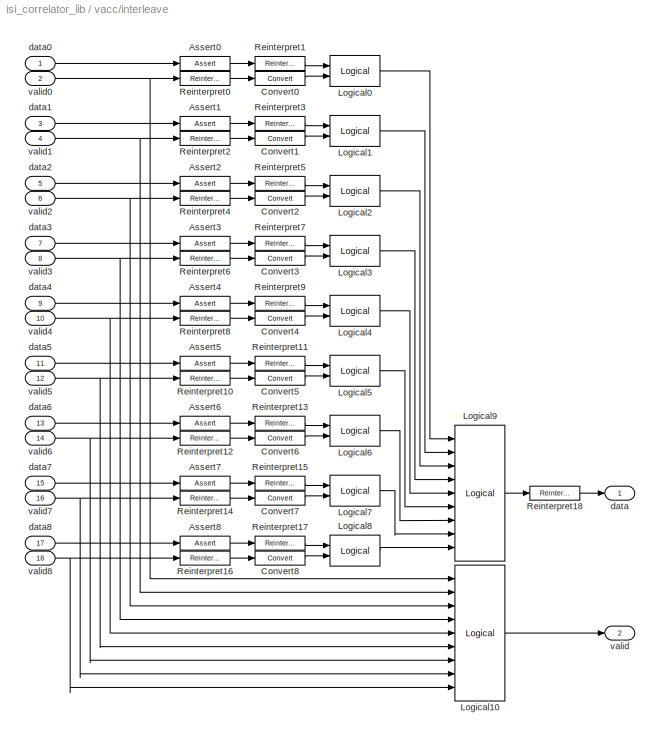
BLOCK [SubSystem] vacc/interleave
  FunctionWithSeparateData = off
  MaskCallbackString = |||
  MaskEnableString = on,on,on,on
  MaskHideContents = off
  MaskIconFrame = on
  MaskIconOpaque = on
  MaskIconRotate = none
  MaskIconUnits = autoscale
  MaskPortRotate = default
  MaskPromptString = Bit width:|Binary point:|Logic latency:|Fanin latency:
  MaskStyleString = edit,edit,edit,edit
  MaskToolTipString = on,on,on,on
  MaskTunableValueString = on,on,on,on
  MaskValueString = out_bit_width|out_bin_point|1|fanin_latency
  MaskVariables = bit_width=@1;bin_point=@2;logic_latency=@3;fanin_latency=@4;
  MaskVisibilityString = on,on,on,on
  MinAlgLoopOccurrences = off
  Opaque = off
  Ports = [18, 2]
  PropExecContextOutsideSubsystem = off
  RTWSystemCode = Auto
  RequestExecContextInheritance = off
  SID = 1159
BLOCK [Reference] vacc/interleave/Assert0  REF=xbsIndex_r4/Assert
  Ports = [1, 1]
  SID = 1188
  SourceBlock = xbsIndex_r4/Assert
  SourceType = Xilinx Assert Block
  arith_type = Signed  (2's comp)
  assert_rate = on
  assert_type = on
  bin_pt = bin_point
  block_type = assert
  block_version = 11.4
  has_advanced_control = 0
  infoedit = Asserts a user-defined sample rate and/or type on a signal.<br><br>Hardware notes: In hardware this block costs nothing.
  n_bits = bit_width
  output_port = on
  period = 1
  rate_source = Explicitly
  sg_icon_stat = 50,14,1,1,white,blue,0,9657e937,right,
  sggui_pos = -1,-1,-1,-1
  type_source = Explicitly
BLOCK [Reference] vacc/interleave/Assert1  REF=xbsIndex_r4/Assert
  Ports = [1, 1]
  SID = 1252
  SourceBlock = xbsIndex_r4/Assert
  SourceType = Xilinx Assert Block
  arith_type = Signed  (2's comp)
  assert_rate = on
  assert_type = on
  bin_pt = bin_point
  block_type = assert
  block_version = 11.4
  has_advanced_control = 0
  infoedit = Asserts a user-defined sample rate and/or type on a signal.<br><br>Hardware notes: In hardware this block costs nothing.
  n_bits = bit_width
  output_port = on
  period = 1
  rate_source = Explicitly
  sg_icon_stat = 50,14,1,1,white,blue,0,9657e937,right,
  sggui_pos = -1,-1,-1,-1
  type_source = Explicitly
BLOCK [Reference] vacc/interleave/Assert2  REF=xbsIndex_r4/Assert
  Ports = [1, 1]
  SID = 1253
  SourceBlock = xbsIndex_r4/Assert
  SourceType = Xilinx Assert Block
  arith_type = Signed  (2's comp)
  assert_rate = on
  assert_type = on
  bin_pt = bin_point
  block_type = assert
  block_version = 11.4
  has_advanced_control = 0
  infoedit = Asserts a user-defined sample rate and/or type on a signal.<br><br>Hardware notes: In hardware this block costs nothing.
  n_bits = bit_width
  output_port = on
  period = 1
  rate_source = Explicitly
  sg_icon_stat = 50,14,1,1,white,blue,0,9657e937,right,
  sggui_pos = -1,-1,-1,-1
  type_source = Explicitly
BLOCK [Reference] vacc/interleave/Assert3  REF=xbsIndex_r4/Assert
  Ports = [1, 1]
  SID = 1254
  SourceBlock = xbsIndex_r4/Assert
  SourceType = Xilinx Assert Block
  arith_type = Signed  (2's comp)
  assert_rate = on
  assert_type = on
  bin_pt = bin_point
  block_type = assert
  block_version = 11.4
  has_advanced_control = 0
  infoedit = Asserts a user-defined sample rate and/or type on a signal.<br><br>Hardware notes: In hardware this block costs nothing.
  n_bits = bit_width
  output_port = on
  period = 1
  rate_source = Explicitly
  sg_icon_stat = 50,14,1,1,white,blue,0,9657e937,right,
  sggui_pos = -1,-1,-1,-1
  type_source = Explicitly
BLOCK [Reference] vacc/interleave/Assert4  REF=xbsIndex_r4/Assert
  Ports = [1, 1]
  SID = 1255
  SourceBlock = xbsIndex_r4/Assert
  SourceType = Xilinx Assert Block
  arith_type = Signed  (2's comp)
  assert_rate = on
  assert_type = on
  bin_pt = bin_point
  block_type = assert
  block_version = 11.4
  has_advanced_control = 0
  infoedit = Asserts a user-defined sample rate and/or type on a signal.<br><br>Hardware notes: In hardware this block costs nothing.
  n_bits = bit_width
  output_port = on
  period = 1
  rate_source = Explicitly
  sg_icon_stat = 50,14,1,1,white,blue,0,9657e937,right,
  sggui_pos = -1,-1,-1,-1
  type_source = Explicitly
BLOCK [Reference] vacc/interleave/Assert5  REF=xbsIndex_r4/Assert
  Ports = [1, 1]
  SID = 1256
  SourceBlock = xbsIndex_r4/Assert
  SourceType = Xilinx Assert Block
  arith_type = Signed  (2's comp)
  assert_rate = on
  assert_type = on
  bin_pt = bin_point
  block_type = assert
  block_version = 11.4
  has_advanced_control = 0
  infoedit = Asserts a user-defined sample rate and/or type on a signal.<br><br>Hardware notes: In hardware this block costs nothing.
  n_bits = bit_width
  output_port = on
  period = 1
  rate_source = Explicitly
  sg_icon_stat = 50,14,1,1,white,blue,0,9657e937,right,
  sggui_pos = -1,-1,-1,-1
  type_source = Explicitly
BLOCK [Reference] vacc/interleave/Assert6  REF=xbsIndex_r4/Assert
  Ports = [1, 1]
  SID = 1257
  SourceBlock = xbsIndex_r4/Assert
  SourceType = Xilinx Assert Block
  arith_type = Signed  (2's comp)
  assert_rate = on
  assert_type = on
  bin_pt = bin_point
  block_type = assert
  block_version = 11.4
  has_advanced_control = 0
  infoedit = Asserts a user-defined sample rate and/or type on a signal.<br><br>Hardware notes: In hardware this block costs nothing.
  n_bits = bit_width
  output_port = on
  period = 1
  rate_source = Explicitly
  sg_icon_stat = 50,14,1,1,white,blue,0,9657e937,right,
  sggui_pos = -1,-1,-1,-1
  type_source = Explicitly
BLOCK [Reference] vacc/interleave/Assert7  REF=xbsIndex_r4/Assert
  Ports = [1, 1]
  SID = 1258
  SourceBlock = xbsIndex_r4/Assert
  SourceType = Xilinx Assert Block
  arith_type = Signed  (2's comp)
  assert_rate = on
  assert_type = on
  bin_pt = bin_point
  block_type = assert
  block_version = 11.4
  has_advanced_control = 0
  infoedit = Asserts a user-defined sample rate and/or type on a signal.<br><br>Hardware notes: In hardware this block costs nothing.
  n_bits = bit_width
  output_port = on
  period = 1
  rate_source = Explicitly
  sg_icon_stat = 50,14,1,1,white,blue,0,9657e937,right,
  sggui_pos = -1,-1,-1,-1
  type_source = Explicitly
BLOCK [Reference] vacc/interleave/Assert8  REF=xbsIndex_r4/Assert
  Ports = [1, 1]
  SID = 1259
  SourceBlock = xbsIndex_r4/Assert
  SourceType = Xilinx Assert Block
  arith_type = Signed  (2's comp)
  assert_rate = on
  assert_type = on
  bin_pt = bin_point
  block_type = assert
  block_version = 11.4
  has_advanced_control = 0
  infoedit = Asserts a user-defined sample rate and/or type on a signal.<br><br>Hardware notes: In hardware this block costs nothing.
  n_bits = bit_width
  output_port = on
  period = 1
  rate_source = Explicitly
  sg_icon_stat = 50,14,1,1,white,blue,0,9657e937,right,
  sggui_pos = -1,-1,-1,-1
  type_source = Explicitly
BLOCK [Reference] vacc/interleave/Convert0  REF=xbsIndex_r4/Convert
  Ports = [1, 1]
  SID = 1271
  SourceBlock = xbsIndex_r4/Convert
  SourceType = Xilinx Type Converter Block
  arith_type = Signed  (2's comp)
  bin_pt = 0
  block_type = convert
  block_version = 11.4
  dbl_ovrd = off
  has_advanced_control = 0
  infoedit = Hardware notes: rounding and saturating require hardware resources; truncating and wrapping do not.
  latency = 0
  n_bits = bit_width
  overflow = Wrap
  pipeline = off
  quantization = Truncate
  sg_icon_stat = 50,14,1,1,white,blue,0,edca21da,right,
  sggui_pos = -1,-1,-1,-1
  xl_area = [0,0,0,0,0,0,0]
  xl_use_area = off
BLOCK [Reference] vacc/interleave/Convert1  REF=xbsIndex_r4/Convert
  Ports = [1, 1]
  SID = 1272
  SourceBlock = xbsIndex_r4/Convert
  SourceType = Xilinx Type Converter Block
  arith_type = Signed  (2's comp)
  bin_pt = 0
  block_type = convert
  block_version = 11.4
  dbl_ovrd = off
  has_advanced_control = 0
  infoedit = Hardware notes: rounding and saturating require hardware resources; truncating and wrapping do not.
  latency = 0
  n_bits = bit_width
  overflow = Wrap
  pipeline = off
  quantization = Truncate
  sg_icon_stat = 50,14,1,1,white,blue,0,edca21da,right,
  sggui_pos = -1,-1,-1,-1
  xl_area = [0,0,0,0,0,0,0]
  xl_use_area = off
BLOCK [Reference] vacc/interleave/Convert2  REF=xbsIndex_r4/Convert
  Ports = [1, 1]
  SID = 1275
  SourceBlock = xbsIndex_r4/Convert
  SourceType = Xilinx Type Converter Block
  arith_type = Signed  (2's comp)
  bin_pt = 0
  block_type = convert
  block_version = 11.4
  dbl_ovrd = off
  has_advanced_control = 0
  infoedit = Hardware notes: rounding and saturating require hardware resources; truncating and wrapping do not.
  latency = 0
  n_bits = bit_width
  overflow = Wrap
  pipeline = off
  quantization = Truncate
  sg_icon_stat = 50,14,1,1,white,blue,0,edca21da,right,
  sggui_pos = -1,-1,-1,-1
  xl_area = [0,0,0,0,0,0,0]
  xl_use_area = off
BLOCK [Reference] vacc/interleave/Convert3  REF=xbsIndex_r4/Convert
  Ports = [1, 1]
  SID = 1276
  SourceBlock = xbsIndex_r4/Convert
  SourceType = Xilinx Type Converter Block
  arith_type = Signed  (2's comp)
  bin_pt = 0
  block_type = convert
  block_version = 11.4
  dbl_ovrd = off
  has_advanced_control = 0
  infoedit = Hardware notes: rounding and saturating require hardware resources; truncating and wrapping do not.
  latency = 0
  n_bits = bit_width
  overflow = Wrap
  pipeline = off
  quantization = Truncate
  sg_icon_stat = 50,14,1,1,white,blue,0,edca21da,right,
  sggui_pos = -1,-1,-1,-1
  xl_area = [0,0,0,0,0,0,0]
  xl_use_area = off
BLOCK [Reference] vacc/interleave/Convert4  REF=xbsIndex_r4/Convert
  Ports = [1, 1]
  SID = 1279
  SourceBlock = xbsIndex_r4/Convert
  SourceType = Xilinx Type Converter Block
  arith_type = Signed  (2's comp)
  bin_pt = 0
  block_type = convert
  block_version = 11.4
  dbl_ovrd = off
  has_advanced_control = 0
  infoedit = Hardware notes: rounding and saturating require hardware resources; truncating and wrapping do not.
  latency = 0
  n_bits = bit_width
  overflow = Wrap
  pipeline = off
  quantization = Truncate
  sg_icon_stat = 50,14,1,1,white,blue,0,edca21da,right,
  sggui_pos = -1,-1,-1,-1
  xl_area = [0,0,0,0,0,0,0]
  xl_use_area = off
BLOCK [Reference] vacc/interleave/Convert5  REF=xbsIndex_r4/Convert
  Ports = [1, 1]
  SID = 1280
  SourceBlock = xbsIndex_r4/Convert
  SourceType = Xilinx Type Converter Block
  arith_type = Signed  (2's comp)
  bin_pt = 0
  block_type = convert
  block_version = 11.4
  dbl_ovrd = off
  has_advanced_control = 0
  infoedit = Hardware notes: rounding and saturating require hardware resources; truncating and wrapping do not.
  latency = 0
  n_bits = bit_width
  overflow = Wrap
  pipeline = off
  quantization = Truncate
  sg_icon_stat = 50,14,1,1,white,blue,0,edca21da,right,
  sggui_pos = -1,-1,-1,-1
  xl_area = [0,0,0,0,0,0,0]
  xl_use_area = off
BLOCK [Reference] vacc/interleave/Convert6  REF=xbsIndex_r4/Convert
  Ports = [1, 1]
  SID = 1283
  SourceBlock = xbsIndex_r4/Convert
  SourceType = Xilinx Type Converter Block
  arith_type = Signed  (2's comp)
  bin_pt = 0
  block_type = convert
  block_version = 11.4
  dbl_ovrd = off
  has_advanced_control = 0
  infoedit = Hardware notes: rounding and saturating require hardware resources; truncating and wrapping do not.
  latency = 0
  n_bits = bit_width
  overflow = Wrap
  pipeline = off
  quantization = Truncate
  sg_icon_stat = 50,14,1,1,white,blue,0,edca21da,right,
  sggui_pos = -1,-1,-1,-1
  xl_area = [0,0,0,0,0,0,0]
  xl_use_area = off
BLOCK [Reference] vacc/interleave/Convert7  REF=xbsIndex_r4/Convert
  Ports = [1, 1]
  SID = 1284
  SourceBlock = xbsIndex_r4/Convert
  SourceType = Xilinx Type Converter Block
  arith_type = Signed  (2's comp)
  bin_pt = 0
  block_type = convert
  block_version = 11.4
  dbl_ovrd = off
  has_advanced_control = 0
  infoedit = Hardware notes: rounding and saturating require hardware resources; truncating and wrapping do not.
  latency = 0
  n_bits = bit_width
  overflow = Wrap
  pipeline = off
  quantization = Truncate
  sg_icon_stat = 50,14,1,1,white,blue,0,edca21da,right,
  sggui_pos = -1,-1,-1,-1
  xl_area = [0,0,0,0,0,0,0]
  xl_use_area = off
BLOCK [Reference] vacc/interleave/Convert8  REF=xbsIndex_r4/Convert
  Ports = [1, 1]
  SID = 1287
  SourceBlock = xbsIndex_r4/Convert
  SourceType = Xilinx Type Converter Block
  arith_type = Signed  (2's comp)
  bin_pt = 0
  block_type = convert
  block_version = 11.4
  dbl_ovrd = off
  has_advanced_control = 0
  infoedit = Hardware notes: rounding and saturating require hardware resources; truncating and wrapping do not.
  latency = 0
  n_bits = bit_width
  overflow = Wrap
  pipeline = off
  quantization = Truncate
  sg_icon_stat = 50,14,1,1,white,blue,0,edca21da,right,
  sggui_pos = -1,-1,-1,-1
  xl_area = [0,0,0,0,0,0,0]
  xl_use_area = off
BLOCK [Reference] vacc/interleave/Logical0  REF=xbsIndex_r4/Logical
  Ports = [2, 1]
  SID = 1157
  SourceBlock = xbsIndex_r4/Logical
  SourceType = Xilinx Logical Block Block
  align_bp = on
  arith_type = Unsigned
  bin_pt = 0
  block_type = logical
  block_version = 11.3
  dbl_ovrd = off
  en = off
  has_advanced_control = 0
  inputs = 2
  latency = logic_latency
  logical_function = AND
  n_bits = 16
  precision = Full
  sg_icon_stat = 50,31,2,1,white,blue,0,2d68f70b,right,
  sg_list_contents = {'table'=>{'logical_function'=>'popup(AND|NAND|OR|NOR|XOR|XNOR)','userSelections'=>{'logical_function'=>'AND'}}}
  sggui_pos = 15,-4,543,357
  xl_area = [0,0,0,0,0,0,0]
  xl_use_area = off
BLOCK [Reference] vacc/interleave/Logical1  REF=xbsIndex_r4/Logical
  Ports = [2, 1]
  SID = 1191
  SourceBlock = xbsIndex_r4/Logical
  SourceType = Xilinx Logical Block Block
  align_bp = on
  arith_type = Unsigned
  bin_pt = 0
  block_type = logical
  block_version = 11.3
  dbl_ovrd = off
  en = off
  has_advanced_control = 0
  inputs = 2
  latency = logic_latency
  logical_function = AND
  n_bits = 16
  precision = Full
  sg_icon_stat = 50,31,2,1,white,blue,0,2d68f70b,right,
  sg_list_contents = {'table'=>{'logical_function'=>'popup(AND|NAND|OR|NOR|XOR|XNOR)','userSelections'=>{'logical_function'=>'AND'}}}
  sggui_pos = 15,-4,543,357
  xl_area = [0,0,0,0,0,0,0]
  xl_use_area = off
BLOCK [Reference] vacc/interleave/Logical10  REF=xbsIndex_r4/Logical
  Ports = [9, 1]
  SID = 1236
  SourceBlock = xbsIndex_r4/Logical
  SourceType = Xilinx Logical Block Block
  align_bp = on
  arith_type = Unsigned
  bin_pt = 0
  block_type = logical
  block_version = 11.3
  dbl_ovrd = off
  en = off
  has_advanced_control = 0
  inputs = 9
  latency = logic_latency + fanin_latency
  logical_function = OR
  n_bits = 16
  precision = Full
  sg_icon_stat = 50,136,9,1,white,blue,0,48d3c950,right,
  sg_list_contents = {'table'=>{'logical_function'=>'popup(AND|NAND|OR|NOR|XOR|XNOR)','userSelections'=>{'logical_function'=>'OR'}}}
  sg_mask_display = fprintf('','COMMENT: begin icon graphics');\npatch([0 1 1 0 ],[0 0 1 1 ],[0.77 0.82 0.91]);\npatch([0.22 0.06 0.3 0.06 0.22 0.48 0.56 0.64 0.92 0.7 0.48 0.32 0.56 0.32 0.48 0.7 0.92 0.64 0.56 0.48 0.22 ],[0.352941 0.411765 0.5 0.588235 0.647059 0.647059 0.617647 0.647059 0.647059 0.566176 0.647059 0.588235 0.5 0.411765 0.352941 0.433824 0.352941 0.352941 0.382353 0.352941 0.352941 ],[0.98 0.96 0.9...<+230ch>
  sggui_pos = 15,-4,543,357
  xl_area = [0,0,0,0,0,0,0]
  xl_use_area = off
BLOCK [Reference] vacc/interleave/Logical2  REF=xbsIndex_r4/Logical
  Ports = [2, 1]
  SID = 1198
  SourceBlock = xbsIndex_r4/Logical
  SourceType = Xilinx Logical Block Block
  align_bp = on
  arith_type = Unsigned
  bin_pt = 0
  block_type = logical
  block_version = 11.3
  dbl_ovrd = off
  en = off
  has_advanced_control = 0
  inputs = 2
  latency = logic_latency
  logical_function = AND
  n_bits = 16
  precision = Full
  sg_icon_stat = 50,31,2,1,white,blue,0,2d68f70b,right,
  sg_list_contents = {'table'=>{'logical_function'=>'popup(AND|NAND|OR|NOR|XOR|XNOR)','userSelections'=>{'logical_function'=>'AND'}}}
  sggui_pos = 15,-4,543,357
  xl_area = [0,0,0,0,0,0,0]
  xl_use_area = off
BLOCK [Reference] vacc/interleave/Logical3  REF=xbsIndex_r4/Logical
  Ports = [2, 1]
  SID = 1199
  SourceBlock = xbsIndex_r4/Logical
  SourceType = Xilinx Logical Block Block
  align_bp = on
  arith_type = Unsigned
  bin_pt = 0
  block_type = logical
  block_version = 11.3
  dbl_ovrd = off
  en = off
  has_advanced_control = 0
  inputs = 2
  latency = logic_latency
  logical_function = AND
  n_bits = 16
  precision = Full
  sg_icon_stat = 50,31,2,1,white,blue,0,2d68f70b,right,
  sg_list_contents = {'table'=>{'logical_function'=>'popup(AND|NAND|OR|NOR|XOR|XNOR)','userSelections'=>{'logical_function'=>'AND'}}}
  sggui_pos = 15,-4,543,357
  xl_area = [0,0,0,0,0,0,0]
  xl_use_area = off
BLOCK [Reference] vacc/interleave/Logical4  REF=xbsIndex_r4/Logical
  Ports = [2, 1]
  SID = 1212
  SourceBlock = xbsIndex_r4/Logical
  SourceType = Xilinx Logical Block Block
  align_bp = on
  arith_type = Unsigned
  bin_pt = 0
  block_type = logical
  block_version = 11.3
  dbl_ovrd = off
  en = off
  has_advanced_control = 0
  inputs = 2
  latency = logic_latency
  logical_function = AND
  n_bits = 16
  precision = Full
  sg_icon_stat = 50,31,2,1,white,blue,0,2d68f70b,right,
  sg_list_contents = {'table'=>{'logical_function'=>'popup(AND|NAND|OR|NOR|XOR|XNOR)','userSelections'=>{'logical_function'=>'AND'}}}
  sggui_pos = 15,-4,543,357
  xl_area = [0,0,0,0,0,0,0]
  xl_use_area = off
BLOCK [Reference] vacc/interleave/Logical5  REF=xbsIndex_r4/Logical
  Ports = [2, 1]
  SID = 1213
  SourceBlock = xbsIndex_r4/Logical
  SourceType = Xilinx Logical Block Block
  align_bp = on
  arith_type = Unsigned
  bin_pt = 0
  block_type = logical
  block_version = 11.3
  dbl_ovrd = off
  en = off
  has_advanced_control = 0
  inputs = 2
  latency = logic_latency
  logical_function = AND
  n_bits = 16
  precision = Full
  sg_icon_stat = 50,31,2,1,white,blue,0,2d68f70b,right,
  sg_list_contents = {'table'=>{'logical_function'=>'popup(AND|NAND|OR|NOR|XOR|XNOR)','userSelections'=>{'logical_function'=>'AND'}}}
  sggui_pos = 15,-4,543,357
  xl_area = [0,0,0,0,0,0,0]
  xl_use_area = off
BLOCK [Reference] vacc/interleave/Logical6  REF=xbsIndex_r4/Logical
  Ports = [2, 1]
  SID = 1214
  SourceBlock = xbsIndex_r4/Logical
  SourceType = Xilinx Logical Block Block
  align_bp = on
  arith_type = Unsigned
  bin_pt = 0
  block_type = logical
  block_version = 11.3
  dbl_ovrd = off
  en = off
  has_advanced_control = 0
  inputs = 2
  latency = logic_latency
  logical_function = AND
  n_bits = 16
  precision = Full
  sg_icon_stat = 50,31,2,1,white,blue,0,2d68f70b,right,
  sg_list_contents = {'table'=>{'logical_function'=>'popup(AND|NAND|OR|NOR|XOR|XNOR)','userSelections'=>{'logical_function'=>'AND'}}}
  sggui_pos = 15,-4,543,357
  xl_area = [0,0,0,0,0,0,0]
  xl_use_area = off
BLOCK [Reference] vacc/interleave/Logical7  REF=xbsIndex_r4/Logical
  Ports = [2, 1]
  SID = 1215
  SourceBlock = xbsIndex_r4/Logical
  SourceType = Xilinx Logical Block Block
  align_bp = on
  arith_type = Unsigned
  bin_pt = 0
  block_type = logical
  block_version = 11.3
  dbl_ovrd = off
  en = off
  has_advanced_control = 0
  inputs = 2
  latency = logic_latency
  logical_function = AND
  n_bits = 16
  precision = Full
  sg_icon_stat = 50,31,2,1,white,blue,0,2d68f70b,right,
  sg_list_contents = {'table'=>{'logical_function'=>'popup(AND|NAND|OR|NOR|XOR|XNOR)','userSelections'=>{'logical_function'=>'AND'}}}
  sggui_pos = 15,-4,543,357
  xl_area = [0,0,0,0,0,0,0]
  xl_use_area = off
BLOCK [Reference] vacc/interleave/Logical8  REF=xbsIndex_r4/Logical
  Ports = [2, 1]
  SID = 1228
  SourceBlock = xbsIndex_r4/Logical
  SourceType = Xilinx Logical Block Block
  align_bp = on
  arith_type = Unsigned
  bin_pt = 0
  block_type = logical
  block_version = 11.3
  dbl_ovrd = off
  en = off
  has_advanced_control = 0
  inputs = 2
  latency = logic_latency
  logical_function = AND
  n_bits = 16
  precision = Full
  sg_icon_stat = 50,31,2,1,white,blue,0,2d68f70b,right,
  sg_list_contents = {'table'=>{'logical_function'=>'popup(AND|NAND|OR|NOR|XOR|XNOR)','userSelections'=>{'logical_function'=>'AND'}}}
  sggui_pos = 15,-4,543,357
  xl_area = [0,0,0,0,0,0,0]
  xl_use_area = off
BLOCK [Reference] vacc/interleave/Logical9  REF=xbsIndex_r4/Logical
  Ports = [9, 1]
  SID = 1234
  SourceBlock = xbsIndex_r4/Logical
  SourceType = Xilinx Logical Block Block
  align_bp = on
  arith_type = Unsigned
  bin_pt = 0
  block_type = logical
  block_version = 11.3
  dbl_ovrd = off
  en = off
  has_advanced_control = 0
  inputs = 9
  latency = fanin_latency
  logical_function = OR
  n_bits = 16
  precision = Full
  sg_icon_stat = 50,136,9,1,white,blue,0,0e309926,right,
  sg_list_contents = {'table'=>{'logical_function'=>'popup(AND|NAND|OR|NOR|XOR|XNOR)','userSelections'=>{'logical_function'=>'OR'}}}
  sg_mask_display = fprintf('','COMMENT: begin icon graphics');\npatch([0 1 1 0 ],[0 0 1 1 ],[0.77 0.82 0.91]);\npatch([0.22 0.06 0.3 0.06 0.22 0.48 0.56 0.64 0.92 0.7 0.48 0.32 0.56 0.32 0.48 0.7 0.92 0.64 0.56 0.48 0.22 ],[0.352941 0.411765 0.5 0.588235 0.647059 0.647059 0.617647 0.647059 0.647059 0.566176 0.647059 0.588235 0.5 0.411765 0.352941 0.433824 0.352941 0.352941 0.382353 0.352941 0.352941 ],[0.98 0.96 0.9...<+230ch>
  sggui_pos = 15,-4,543,357
  xl_area = [0,0,0,0,0,0,0]
  xl_use_area = off
BLOCK [Reference] vacc/interleave/Reinterpret0  REF=xbsIndex_r4/Reinterpret
  Ports = [1, 1]
  SID = 1270
  SourceBlock = xbsIndex_r4/Reinterpret
  SourceType = Xilinx Type Reinterpreter Block
  arith_type = Signed  (2's comp)
  bin_pt = 0
  block_type = reinterpret
  block_version = 11.4
  force_arith_type = on
  force_bin_pt = on
  has_advanced_control = 0
  sg_icon_stat = 50,14,1,1,white,blue,0,6b04d0b0,right,
  sggui_pos = -1,-1,-1,-1
BLOCK [Reference] vacc/interleave/Reinterpret1  REF=xbsIndex_r4/Reinterpret
  Ports = [1, 1]
  SID = 1187
  SourceBlock = xbsIndex_r4/Reinterpret
  SourceType = Xilinx Type Reinterpreter Block
  arith_type = Unsigned
  bin_pt = 0
  block_type = reinterpret
  block_version = 11.4
  force_arith_type = on
  force_bin_pt = on
  has_advanced_control = 0
  sg_icon_stat = 50,14,1,1,white,blue,0,6b04d0b0,right,
  sggui_pos = -1,-1,-1,-1
BLOCK [Reference] vacc/interleave/Reinterpret10  REF=xbsIndex_r4/Reinterpret
  Ports = [1, 1]
  SID = 1281
  SourceBlock = xbsIndex_r4/Reinterpret
  SourceType = Xilinx Type Reinterpreter Block
  arith_type = Signed  (2's comp)
  bin_pt = 0
  block_type = reinterpret
  block_version = 11.4
  force_arith_type = on
  force_bin_pt = on
  has_advanced_control = 0
  sg_icon_stat = 50,14,1,1,white,blue,0,6b04d0b0,right,
  sggui_pos = -1,-1,-1,-1
BLOCK [Reference] vacc/interleave/Reinterpret11  REF=xbsIndex_r4/Reinterpret
  Ports = [1, 1]
  SID = 1219
  SourceBlock = xbsIndex_r4/Reinterpret
  SourceType = Xilinx Type Reinterpreter Block
  arith_type = Unsigned
  bin_pt = 0
  block_type = reinterpret
  block_version = 11.4
  force_arith_type = on
  force_bin_pt = on
  has_advanced_control = 0
  sg_icon_stat = 50,14,1,1,white,blue,0,6b04d0b0,right,
  sggui_pos = -1,-1,-1,-1
BLOCK [Reference] vacc/interleave/Reinterpret12  REF=xbsIndex_r4/Reinterpret
  Ports = [1, 1]
  SID = 1282
  SourceBlock = xbsIndex_r4/Reinterpret
  SourceType = Xilinx Type Reinterpreter Block
  arith_type = Signed  (2's comp)
  bin_pt = 0
  block_type = reinterpret
  block_version = 11.4
  force_arith_type = on
  force_bin_pt = on
  has_advanced_control = 0
  sg_icon_stat = 50,14,1,1,white,blue,0,6b04d0b0,right,
  sggui_pos = -1,-1,-1,-1
BLOCK [Reference] vacc/interleave/Reinterpret13  REF=xbsIndex_r4/Reinterpret
  Ports = [1, 1]
  SID = 1221
  SourceBlock = xbsIndex_r4/Reinterpret
  SourceType = Xilinx Type Reinterpreter Block
  arith_type = Unsigned
  bin_pt = 0
  block_type = reinterpret
  block_version = 11.4
  force_arith_type = on
  force_bin_pt = on
  has_advanced_control = 0
  sg_icon_stat = 50,14,1,1,white,blue,0,6b04d0b0,right,
  sggui_pos = -1,-1,-1,-1
BLOCK [Reference] vacc/interleave/Reinterpret14  REF=xbsIndex_r4/Reinterpret
  Ports = [1, 1]
  SID = 1285
  SourceBlock = xbsIndex_r4/Reinterpret
  SourceType = Xilinx Type Reinterpreter Block
  arith_type = Signed  (2's comp)
  bin_pt = 0
  block_type = reinterpret
  block_version = 11.4
  force_arith_type = on
  force_bin_pt = on
  has_advanced_control = 0
  sg_icon_stat = 50,14,1,1,white,blue,0,6b04d0b0,right,
  sggui_pos = 15,25,372,364
BLOCK [Reference] vacc/interleave/Reinterpret15  REF=xbsIndex_r4/Reinterpret
  Ports = [1, 1]
  SID = 1223
  SourceBlock = xbsIndex_r4/Reinterpret
  SourceType = Xilinx Type Reinterpreter Block
  arith_type = Unsigned
  bin_pt = 0
  block_type = reinterpret
  block_version = 11.4
  force_arith_type = on
  force_bin_pt = on
  has_advanced_control = 0
  sg_icon_stat = 50,14,1,1,white,blue,0,6b04d0b0,right,
  sggui_pos = -1,-1,-1,-1
BLOCK [Reference] vacc/interleave/Reinterpret16  REF=xbsIndex_r4/Reinterpret
  Ports = [1, 1]
  SID = 1286
  SourceBlock = xbsIndex_r4/Reinterpret
  SourceType = Xilinx Type Reinterpreter Block
  arith_type = Signed  (2's comp)
  bin_pt = 0
  block_type = reinterpret
  block_version = 11.4
  force_arith_type = on
  force_bin_pt = on
  has_advanced_control = 0
  sg_icon_stat = 50,14,1,1,white,blue,0,6b04d0b0,right,
  sggui_pos = -1,-1,-1,-1
BLOCK [Reference] vacc/interleave/Reinterpret17  REF=xbsIndex_r4/Reinterpret
  Ports = [1, 1]
  SID = 1231
  SourceBlock = xbsIndex_r4/Reinterpret
  SourceType = Xilinx Type Reinterpreter Block
  arith_type = Unsigned
  bin_pt = 0
  block_type = reinterpret
  block_version = 11.4
  force_arith_type = on
  force_bin_pt = on
  has_advanced_control = 0
  sg_icon_stat = 50,14,1,1,white,blue,0,6b04d0b0,right,
  sggui_pos = -1,-1,-1,-1
BLOCK [Reference] vacc/interleave/Reinterpret18  REF=xbsIndex_r4/Reinterpret
  Ports = [1, 1]
  SID = 1235
  SourceBlock = xbsIndex_r4/Reinterpret
  SourceType = Xilinx Type Reinterpreter Block
  arith_type = Signed  (2's comp)
  bin_pt = bin_point
  block_type = reinterpret
  block_version = 11.4
  force_arith_type = on
  force_bin_pt = on
  has_advanced_control = 0
  sg_icon_stat = 50,14,1,1,white,blue,0,6b04d0b0,right,
  sggui_pos = -1,-1,-1,-1
BLOCK [Reference] vacc/interleave/Reinterpret2  REF=xbsIndex_r4/Reinterpret
  Ports = [1, 1]
  SID = 1273
  SourceBlock = xbsIndex_r4/Reinterpret
  SourceType = Xilinx Type Reinterpreter Block
  arith_type = Signed  (2's comp)
  bin_pt = 0
  block_type = reinterpret
  block_version = 11.4
  force_arith_type = on
  force_bin_pt = on
  has_advanced_control = 0
  sg_icon_stat = 50,14,1,1,white,blue,0,6b04d0b0,right,
  sggui_pos = -1,-1,-1,-1
BLOCK [Reference] vacc/interleave/Reinterpret3  REF=xbsIndex_r4/Reinterpret
  Ports = [1, 1]
  SID = 1193
  SourceBlock = xbsIndex_r4/Reinterpret
  SourceType = Xilinx Type Reinterpreter Block
  arith_type = Unsigned
  bin_pt = 0
  block_type = reinterpret
  block_version = 11.4
  force_arith_type = on
  force_bin_pt = on
  has_advanced_control = 0
  sg_icon_stat = 50,14,1,1,white,blue,0,6b04d0b0,right,
  sggui_pos = -1,-1,-1,-1
BLOCK [Reference] vacc/interleave/Reinterpret4  REF=xbsIndex_r4/Reinterpret
  Ports = [1, 1]
  SID = 1274
  SourceBlock = xbsIndex_r4/Reinterpret
  SourceType = Xilinx Type Reinterpreter Block
  arith_type = Signed  (2's comp)
  bin_pt = 0
  block_type = reinterpret
  block_version = 11.4
  force_arith_type = on
  force_bin_pt = on
  has_advanced_control = 0
  sg_icon_stat = 50,14,1,1,white,blue,0,6b04d0b0,right,
  sggui_pos = -1,-1,-1,-1
BLOCK [Reference] vacc/interleave/Reinterpret5  REF=xbsIndex_r4/Reinterpret
  Ports = [1, 1]
  SID = 1201
  SourceBlock = xbsIndex_r4/Reinterpret
  SourceType = Xilinx Type Reinterpreter Block
  arith_type = Unsigned
  bin_pt = 0
  block_type = reinterpret
  block_version = 11.4
  force_arith_type = on
  force_bin_pt = on
  has_advanced_control = 0
  sg_icon_stat = 50,14,1,1,white,blue,0,6b04d0b0,right,
  sggui_pos = -1,-1,-1,-1
BLOCK [Reference] vacc/interleave/Reinterpret6  REF=xbsIndex_r4/Reinterpret
  Ports = [1, 1]
  SID = 1277
  SourceBlock = xbsIndex_r4/Reinterpret
  SourceType = Xilinx Type Reinterpreter Block
  arith_type = Signed  (2's comp)
  bin_pt = 0
  block_type = reinterpret
  block_version = 11.4
  force_arith_type = on
  force_bin_pt = on
  has_advanced_control = 0
  sg_icon_stat = 50,14,1,1,white,blue,0,6b04d0b0,right,
  sggui_pos = -1,-1,-1,-1
BLOCK [Reference] vacc/interleave/Reinterpret7  REF=xbsIndex_r4/Reinterpret
  Ports = [1, 1]
  SID = 1203
  SourceBlock = xbsIndex_r4/Reinterpret
  SourceType = Xilinx Type Reinterpreter Block
  arith_type = Unsigned
  bin_pt = 0
  block_type = reinterpret
  block_version = 11.4
  force_arith_type = on
  force_bin_pt = on
  has_advanced_control = 0
  sg_icon_stat = 50,14,1,1,white,blue,0,6b04d0b0,right,
  sggui_pos = -1,-1,-1,-1
BLOCK [Reference] vacc/interleave/Reinterpret8  REF=xbsIndex_r4/Reinterpret
  Ports = [1, 1]
  SID = 1278
  SourceBlock = xbsIndex_r4/Reinterpret
  SourceType = Xilinx Type Reinterpreter Block
  arith_type = Signed  (2's comp)
  bin_pt = 0
  block_type = reinterpret
  block_version = 11.4
  force_arith_type = on
  force_bin_pt = on
  has_advanced_control = 0
  sg_icon_stat = 50,14,1,1,white,blue,0,6b04d0b0,right,
  sggui_pos = -1,-1,-1,-1
BLOCK [Reference] vacc/interleave/Reinterpret9  REF=xbsIndex_r4/Reinterpret
  Ports = [1, 1]
  SID = 1217
  SourceBlock = xbsIndex_r4/Reinterpret
  SourceType = Xilinx Type Reinterpreter Block
  arith_type = Unsigned
  bin_pt = 0
  block_type = reinterpret
  block_version = 11.4
  force_arith_type = on
  force_bin_pt = on
  has_advanced_control = 0
  sg_icon_stat = 50,14,1,1,white,blue,0,6b04d0b0,right,
  sggui_pos = -1,-1,-1,-1
BLOCK [Outport] vacc/interleave/data
  IconDisplay = Port number
  SID = 1161
BLOCK [Inport] vacc/interleave/data0
  IconDisplay = Port number
  SID = 1160
BLOCK [Inport] vacc/interleave/data1
  IconDisplay = Port number
  Port = 3
  SID = 1167
BLOCK [Inport] vacc/interleave/data2
  IconDisplay = Port number
  Port = 5
  SID = 1169
BLOCK [Inport] vacc/interleave/data3
  IconDisplay = Port number
  Port = 7
  SID = 1171
BLOCK [Inport] vacc/interleave/data4
  IconDisplay = Port number
  Port = 9
  SID = 1173
BLOCK [Inport] vacc/interleave/data5
  IconDisplay = Port number
  Port = 11
  SID = 1175
BLOCK [Inport] vacc/interleave/data6
  IconDisplay = Port number
  Port = 13
  SID = 1177
BLOCK [Inport] vacc/interleave/data7
  IconDisplay = Port number
  Port = 15
  SID = 1179
BLOCK [Inport] vacc/interleave/data8
  IconDisplay = Port number
  Port = 17
  SID = 1181
BLOCK [Outport] vacc/interleave/valid
  IconDisplay = Port number
  Port = 2
  SID = 1238
BLOCK [Inport] vacc/interleave/valid0
  IconDisplay = Port number
  Port = 2
  SID = 1162
BLOCK [Inport] vacc/interleave/valid1
  IconDisplay = Port number
  Port = 4
  SID = 1168
BLOCK [Inport] vacc/interleave/valid2
  IconDisplay = Port number
  Port = 6
  SID = 1170
BLOCK [Inport] vacc/interleave/valid3
  IconDisplay = Port number
  Port = 8
  SID = 1172
BLOCK [Inport] vacc/interleave/valid4
  IconDisplay = Port number
  Port = 10
  SID = 1174
BLOCK [Inport] vacc/interleave/valid5
  IconDisplay = Port number
  Port = 12
  SID = 1176
BLOCK [Inport] vacc/interleave/valid6
  IconDisplay = Port number
  Port = 14
  SID = 1178
BLOCK [Inport] vacc/interleave/valid7
  IconDisplay = Port number
  Port = 16
  SID = 1180
BLOCK [Inport] vacc/interleave/valid8
  IconDisplay = Port number
  Port = 18
  SID = 1182
BLOCK [Inport] vacc/rst
  IconDisplay = Port number
  Port = 11
  SID = 973
BLOCK [Inport] vacc/sync
  IconDisplay = Port number
  SID = 962
BLOCK [Reference] vacc/vacc_XX_r  REF=casper_library/Accumulators/simple_bram_vacc  (lib defined in mdl_138b2fc3435f, mdl_4ed325b712b3, +2 more)
  FunctionWithSeparateData = off
  Ports = [2, 2]
  RTWMemSecDataConstants = Inherit from model
  RTWMemSecDataInternal = Inherit from model
  RTWMemSecDataParameters = Inherit from model
  RTWMemSecFuncExecute = Inherit from model
  RTWMemSecFuncInitTerm = Inherit from model
  SID = 1043
  ShowPortLabels = FromPortIcon
  SourceBlock = casper_library/Accumulators/simple_bram_vacc
  SourceType = simple_bram_vacc
  SystemSampleTime = -1
  UserData = DataTag8
  UserDataPersistent = on
  arith_type = Signed
  bin_pt = out_bin_point
  n_bits = out_bit_width
  vec_len = vector_length
BLOCK [Reference] vacc/vacc_XY_i  REF=casper_library/Accumulators/simple_bram_vacc  (lib defined in mdl_138b2fc3435f, mdl_4ed325b712b3, +2 more)
  FunctionWithSeparateData = off
  Ports = [2, 2]
  RTWMemSecDataConstants = Inherit from model
  RTWMemSecDataInternal = Inherit from model
  RTWMemSecDataParameters = Inherit from model
  RTWMemSecFuncExecute = Inherit from model
  RTWMemSecFuncInitTerm = Inherit from model
  SID = 1044
  ShowPortLabels = FromPortIcon
  SourceBlock = casper_library/Accumulators/simple_bram_vacc
  SourceType = simple_bram_vacc
  SystemSampleTime = -1
  UserData = DataTag9
  UserDataPersistent = on
  arith_type = Signed
  bin_pt = out_bin_point
  n_bits = out_bit_width
  vec_len = vector_length
BLOCK [Reference] vacc/vacc_XY_r  REF=casper_library/Accumulators/simple_bram_vacc  (lib defined in mdl_138b2fc3435f, mdl_4ed325b712b3, +2 more)
  FunctionWithSeparateData = off
  Ports = [2, 2]
  RTWMemSecDataConstants = Inherit from model
  RTWMemSecDataInternal = Inherit from model
  RTWMemSecDataParameters = Inherit from model
  RTWMemSecFuncExecute = Inherit from model
  RTWMemSecFuncInitTerm = Inherit from model
  SID = 1045
  ShowPortLabels = FromPortIcon
  SourceBlock = casper_library/Accumulators/simple_bram_vacc
  SourceType = simple_bram_vacc
  SystemSampleTime = -1
  UserData = DataTag10
  UserDataPersistent = on
  arith_type = Signed
  bin_pt = out_bin_point
  n_bits = out_bit_width
  vec_len = vector_length
BLOCK [Reference] vacc/vacc_YY_r  REF=casper_library/Accumulators/simple_bram_vacc  (lib defined in mdl_138b2fc3435f, mdl_4ed325b712b3, +2 more)
  FunctionWithSeparateData = off
  Ports = [2, 2]
  RTWMemSecDataConstants = Inherit from model
  RTWMemSecDataInternal = Inherit from model
  RTWMemSecDataParameters = Inherit from model
  RTWMemSecFuncExecute = Inherit from model
  RTWMemSecFuncInitTerm = Inherit from model
  SID = 1046
  ShowPortLabels = FromPortIcon
  SourceBlock = casper_library/Accumulators/simple_bram_vacc
  SourceType = simple_bram_vacc
  SystemSampleTime = -1
  UserData = DataTag11
  UserDataPersistent = on
  arith_type = Signed
  bin_pt = out_bin_point
  n_bits = out_bit_width
  vec_len = vector_length
BLOCK [Reference] vacc/vacc_YZ_i  REF=casper_library/Accumulators/simple_bram_vacc  (lib defined in mdl_138b2fc3435f, mdl_4ed325b712b3, +2 more)
  FunctionWithSeparateData = off
  Ports = [2, 2]
  RTWMemSecDataConstants = Inherit from model
  RTWMemSecDataInternal = Inherit from model
  RTWMemSecDataParameters = Inherit from model
  RTWMemSecFuncExecute = Inherit from model
  RTWMemSecFuncInitTerm = Inherit from model
  SID = 1047
  ShowPortLabels = FromPortIcon
  SourceBlock = casper_library/Accumulators/simple_bram_vacc
  SourceType = simple_bram_vacc
  SystemSampleTime = -1
  UserData = DataTag12
  UserDataPersistent = on
  arith_type = Signed
  bin_pt = out_bin_point
  n_bits = out_bit_width
  vec_len = vector_length
BLOCK [Reference] vacc/vacc_YZ_r  REF=casper_library/Accumulators/simple_bram_vacc  (lib defined in mdl_138b2fc3435f, mdl_4ed325b712b3, +2 more)
  FunctionWithSeparateData = off
  Ports = [2, 2]
  RTWMemSecDataConstants = Inherit from model
  RTWMemSecDataInternal = Inherit from model
  RTWMemSecDataParameters = Inherit from model
  RTWMemSecFuncExecute = Inherit from model
  RTWMemSecFuncInitTerm = Inherit from model
  SID = 1048
  ShowPortLabels = FromPortIcon
  SourceBlock = casper_library/Accumulators/simple_bram_vacc
  SourceType = simple_bram_vacc
  SystemSampleTime = -1
  UserData = DataTag13
  UserDataPersistent = on
  arith_type = Signed
  bin_pt = out_bin_point
  n_bits = out_bit_width
  vec_len = vector_length
BLOCK [Reference] vacc/vacc_ZX_i  REF=casper_library/Accumulators/simple_bram_vacc  (lib defined in mdl_138b2fc3435f, mdl_4ed325b712b3, +2 more)
  FunctionWithSeparateData = off
  Ports = [2, 2]
  RTWMemSecDataConstants = Inherit from model
  RTWMemSecDataInternal = Inherit from model
  RTWMemSecDataParameters = Inherit from model
  RTWMemSecFuncExecute = Inherit from model
  RTWMemSecFuncInitTerm = Inherit from model
  SID = 1049
  ShowPortLabels = FromPortIcon
  SourceBlock = casper_library/Accumulators/simple_bram_vacc
  SourceType = simple_bram_vacc
  SystemSampleTime = -1
  UserData = DataTag14
  UserDataPersistent = on
  arith_type = Signed
  bin_pt = out_bin_point
  n_bits = out_bit_width
  vec_len = vector_length
BLOCK [Reference] vacc/vacc_ZX_r  REF=casper_library/Accumulators/simple_bram_vacc  (lib defined in mdl_138b2fc3435f, mdl_4ed325b712b3, +2 more)
  FunctionWithSeparateData = off
  Ports = [2, 2]
  RTWMemSecDataConstants = Inherit from model
  RTWMemSecDataInternal = Inherit from model
  RTWMemSecDataParameters = Inherit from model
  RTWMemSecFuncExecute = Inherit from model
  RTWMemSecFuncInitTerm = Inherit from model
  SID = 1050
  ShowPortLabels = FromPortIcon
  SourceBlock = casper_library/Accumulators/simple_bram_vacc
  SourceType = simple_bram_vacc
  SystemSampleTime = -1
  UserData = DataTag15
  UserDataPersistent = on
  arith_type = Signed
  bin_pt = out_bin_point
  n_bits = out_bit_width
  vec_len = vector_length
BLOCK [Reference] vacc/vacc_ZZ_r  REF=casper_library/Accumulators/simple_bram_vacc  (lib defined in mdl_138b2fc3435f, mdl_4ed325b712b3, +2 more)
  FunctionWithSeparateData = off
  Ports = [2, 2]
  RTWMemSecDataConstants = Inherit from model
  RTWMemSecDataInternal = Inherit from model
  RTWMemSecDataParameters = Inherit from model
  RTWMemSecFuncExecute = Inherit from model
  RTWMemSecFuncInitTerm = Inherit from model
  SID = 1051
  ShowPortLabels = FromPortIcon
  SourceBlock = casper_library/Accumulators/simple_bram_vacc
  SourceType = simple_bram_vacc
  SystemSampleTime = -1
  UserData = DataTag16
  UserDataPersistent = on
  arith_type = Signed
  bin_pt = out_bin_point
  n_bits = out_bit_width
  vec_len = vector_length
BLOCK [SubSystem] xaui_resync
  FunctionWithSeparateData = off
  MaskCallbackString = |
  MaskDescription = Resynchronizes three data streams based on their sync pulses.\n\nMaximum buffer depth is 2^10.
  MaskEnableString = on,on
  MaskHideContents = off
  MaskIconFrame = on
  MaskIconOpaque = on
  MaskIconRotate = none
  MaskIconUnits = autoscale
  MaskPortRotate = default
  MaskPromptString = Buffer depth: (2^?)|Logic latency:
  MaskStyleString = edit,edit
  MaskToolTipString = on,on
  MaskTunableValueString = on,on
  MaskType = link_demux
  MaskValueString = 10|1
  MaskVariables = buffer_depth=@1;logic_latency=@2;
  MaskVisibilityString = on,on
  MinAlgLoopOccurrences = off
  Opaque = off
  Ports = [6, 5]
  PropExecContextOutsideSubsystem = off
  RTWSystemCode = Auto
  RequestExecContextInheritance = off
  SID = 676
BLOCK [Reference] xaui_resync/Delay2  REF=xbsIndex_r4/Delay
  Ports = [1, 1]
  SID = 688
  SourceBlock = xbsIndex_r4/Delay
  SourceType = Xilinx Delay Block
  block_type = delay
  block_version = 10.1.3
  dbl_ovrd = off
  en = off
  has_advanced_control = 0
  infoedit = Hardware notes: A delay line is a chain, each link of which is an SRL16 followed by a flip-flop.
  latency = logic_latency
  reg_retiming = on
  sg_icon_stat = 50,14,1,1,white,blue,0,07b98262,right,
  sggui_pos = 20,20,543,392
  xl_area = [0,0,0,0,0,0,0]
  xl_use_area = off
BLOCK [Reference] xaui_resync/Delay3  REF=xbsIndex_r4/Delay
  Ports = [1, 1]
  SID = 689
  SourceBlock = xbsIndex_r4/Delay
  SourceType = Xilinx Delay Block
  block_type = delay
  block_version = 10.1.3
  dbl_ovrd = off
  en = off
  has_advanced_control = 0
  infoedit = Hardware notes: A delay line is a chain, each link of which is an SRL16 followed by a flip-flop.
  latency = logic_latency
  reg_retiming = on
  sg_icon_stat = 50,14,1,1,white,blue,0,07b98262,right,
  sggui_pos = 20,20,543,392
  xl_area = [0,0,0,0,0,0,0]
  xl_use_area = off
BLOCK [Reference] xaui_resync/Logical  REF=xbsIndex_r4/Logical
  Ports = [2, 1]
  SID = 1495
  SourceBlock = xbsIndex_r4/Logical
  SourceType = Xilinx Logical Block Block
  align_bp = on
  arith_type = Unsigned
  bin_pt = 0
  block_type = logical
  block_version = 11.4
  dbl_ovrd = off
  en = off
  has_advanced_control = 0
  inputs = 2
  latency = 0
  logical_function = OR
  n_bits = 16
  precision = Full
  sg_icon_stat = 50,29,2,1,white,blue,0,fc354646,right,
  sg_list_contents = {'table'=>{'logical_function'=>'popup(AND|NAND|OR|NOR|XOR|XNOR)','userSelections'=>{'logical_function'=>'OR'}}}
  sggui_pos = -1,-1,-1,-1
  xl_area = [0,0,0,0,0,0,0]
  xl_use_area = off
BLOCK [Outport] xaui_resync/X
  IconDisplay = Port number
  OutDataType = sfix(16)
  OutScaling = 2^0
  Port = 2
  SID = 717
BLOCK [Outport] xaui_resync/Y
  IconDisplay = Port number
  OutDataType = sfix(16)
  OutScaling = 2^0
  Port = 3
  SID = 718
BLOCK [Outport] xaui_resync/Z
  IconDisplay = Port number
  OutDataType = sfix(16)
  OutScaling = 2^0
  Port = 4
  SID = 719
BLOCK [Inport] xaui_resync/dataX
  IconDisplay = Port number
  OutDataType = sfix(16)
  OutScaling = 2^0
  Port = 2
  SID = 678
BLOCK [Inport] xaui_resync/dataY
  IconDisplay = Port number
  OutDataType = sfix(16)
  OutScaling = 2^0
  Port = 4
  SID = 681
BLOCK [Inport] xaui_resync/dataZ
  IconDisplay = Port number
  OutDataType = sfix(16)
  OutScaling = 2^0
  Port = 6
  SID = 684
BLOCK [Reference] xaui_resync/delay_bram  REF=casper_library/Delays/delay_bram  (lib defined in mdl_138b2fc3435f, mdl_4ed325b712b3, +2 more)
  DelayLen = 2^buffer_depth + 1
  FunctionWithSeparateData = off
  Ports = [1, 1]
  RTWMemSecDataConstants = Inherit from model
  RTWMemSecDataInternal = Inherit from model
  RTWMemSecDataParameters = Inherit from model
  RTWMemSecFuncExecute = Inherit from model
  RTWMemSecFuncInitTerm = Inherit from model
  SID = 1422
  ShowPortLabels = FromPortIcon
  SourceBlock = casper_library/Delays/delay_bram
  SourceType = delay_bram
  SystemSampleTime = -1
  bram_latency = 4
  use_dsp48 = off
BLOCK [Reference] xaui_resync/delay_sync  REF=isi_correlator_lib/delay_sync  (lib defined in mdl_4b72aa53f299)
  DelayLen = 2^buffer_depth
  FunctionWithSeparateData = off
  Ports = [1, 1]
  RTWMemSecDataConstants = Inherit from model
  RTWMemSecDataInternal = Inherit from model
  RTWMemSecDataParameters = Inherit from model
  RTWMemSecFuncExecute = Inherit from model
  RTWMemSecFuncInitTerm = Inherit from model
  SID = 1441
  ShowPortLabels = FromPortIcon
  SourceBlock = isi_correlator_lib/delay_sync
  SourceType = sync_delay
  SystemSampleTime = -1
BLOCK [Outport] xaui_resync/out_of_sync
  IconDisplay = Port number
  OutDataType = sfix(16)
  OutScaling = 2^0
  Port = 5
  SID = 720
BLOCK [Reference] xaui_resync/resyncY  REF=isi_correlator_lib/resync  (lib defined in mdl_4b72aa53f299)
  FunctionWithSeparateData = off
  Ports = [3, 2]
  RTWMemSecDataConstants = Inherit from model
  RTWMemSecDataInternal = Inherit from model
  RTWMemSecDataParameters = Inherit from model
  RTWMemSecFuncExecute = Inherit from model
  RTWMemSecFuncInitTerm = Inherit from model
  SID = 714
  ShowPortLabels = FromPortIcon
  SourceBlock = isi_correlator_lib/resync
  SourceType = resync
  SystemSampleTime = -1
  depth = buffer_depth
BLOCK [Reference] xaui_resync/resyncZ  REF=isi_correlator_lib/resync  (lib defined in mdl_4b72aa53f299)
  FunctionWithSeparateData = off
  Ports = [3, 2]
  RTWMemSecDataConstants = Inherit from model
  RTWMemSecDataInternal = Inherit from model
  RTWMemSecDataParameters = Inherit from model
  RTWMemSecFuncExecute = Inherit from model
  RTWMemSecFuncInitTerm = Inherit from model
  SID = 715
  ShowPortLabels = FromPortIcon
  SourceBlock = isi_correlator_lib/resync
  SourceType = resync
  SystemSampleTime = -1
  depth = buffer_depth
BLOCK [Inport] xaui_resync/syncX
  IconDisplay = Port number
  OutDataType = sfix(16)
  OutScaling = 2^0
  SID = 677
BLOCK [Inport] xaui_resync/syncY
  IconDisplay = Port number
  OutDataType = sfix(16)
  OutScaling = 2^0
  Port = 3
  SID = 680
BLOCK [Inport] xaui_resync/syncZ
  IconDisplay = Port number
  OutDataType = sfix(16)
  OutScaling = 2^0
  Port = 5
  SID = 683
BLOCK [Outport] xaui_resync/sync_out
  IconDisplay = Port number
  OutDataType = sfix(16)
  OutScaling = 2^0
  SID = 716
LINE adc_ctrl/Constant0:1 -> adc_ctrl/Relational0:2
LINE adc_ctrl/Constant1:1 -> adc_ctrl/Relational1:2
LINE adc_ctrl/Constant2:1 -> adc_ctrl/Relational2:2
LINE adc_ctrl/Constant3:1 -> adc_ctrl/Relational3:2
LINE adc_ctrl/Logical0:1 -> adc_ctrl/sync:1
LINE adc_ctrl/Logical1:1 -> adc_ctrl/oor:1
LINE adc_ctrl/Logical2:1 -> adc_ctrl/valid:1
LINE adc_ctrl/Relational0:1 -> adc_ctrl/Logical0:1
LINE adc_ctrl/Relational1:1 -> adc_ctrl/Logical0:2
LINE adc_ctrl/Relational2:1 -> adc_ctrl/Logical1:1
LINE adc_ctrl/Relational3:1 -> adc_ctrl/Logical1:2
LINE adc_ctrl/oor0:1 -> adc_ctrl/Relational2:1
LINE adc_ctrl/oor1:1 -> adc_ctrl/Relational3:1
LINE adc_ctrl/sync0:1 -> adc_ctrl/Relational0:1
LINE adc_ctrl/sync1:1 -> adc_ctrl/Relational1:1
LINE adc_ctrl/valid0:1 -> adc_ctrl/Logical2:1
LINE adc_ctrl/valid1:1 -> adc_ctrl/Logical2:2
LINE adc_pipeline/Delay0:1 -> adc_pipeline/o0:1
LINE adc_pipeline/Delay10:1 -> adc_pipeline/o10:1
LINE adc_pipeline/Delay11:1 -> adc_pipeline/o11:1
LINE adc_pipeline/Delay12:1 -> adc_pipeline/o12:1
LINE adc_pipeline/Delay13:1 -> adc_pipeline/o13:1
LINE adc_pipeline/Delay14:1 -> adc_pipeline/o14:1
LINE adc_pipeline/Delay15:1 -> adc_pipeline/o15:1
LINE adc_pipeline/Delay1:1 -> adc_pipeline/o1:1
LINE adc_pipeline/Delay2:1 -> adc_pipeline/o2:1
LINE adc_pipeline/Delay3:1 -> adc_pipeline/o3:1
LINE adc_pipeline/Delay4:1 -> adc_pipeline/o4:1
LINE adc_pipeline/Delay5:1 -> adc_pipeline/o5:1
LINE adc_pipeline/Delay6:1 -> adc_pipeline/o6:1
LINE adc_pipeline/Delay7:1 -> adc_pipeline/o7:1
LINE adc_pipeline/Delay8:1 -> adc_pipeline/o8:1
LINE adc_pipeline/Delay9:1 -> adc_pipeline/o9:1
LINE adc_pipeline/i0:1 -> adc_pipeline/Delay0:1
LINE adc_pipeline/i10:1 -> adc_pipeline/Delay10:1
LINE adc_pipeline/i11:1 -> adc_pipeline/Delay11:1
LINE adc_pipeline/i12:1 -> adc_pipeline/Delay12:1
LINE adc_pipeline/i13:1 -> adc_pipeline/Delay13:1
LINE adc_pipeline/i14:1 -> adc_pipeline/Delay14:1
LINE adc_pipeline/i15:1 -> adc_pipeline/Delay15:1
LINE adc_pipeline/i1:1 -> adc_pipeline/Delay1:1
LINE adc_pipeline/i2:1 -> adc_pipeline/Delay2:1
LINE adc_pipeline/i3:1 -> adc_pipeline/Delay3:1
LINE adc_pipeline/i4:1 -> adc_pipeline/Delay4:1
LINE adc_pipeline/i5:1 -> adc_pipeline/Delay5:1
LINE adc_pipeline/i6:1 -> adc_pipeline/Delay6:1
LINE adc_pipeline/i7:1 -> adc_pipeline/Delay7:1
LINE adc_pipeline/i8:1 -> adc_pipeline/Delay8:1
LINE adc_pipeline/i9:1 -> adc_pipeline/Delay9:1
LINE adc_tvg/slice0:1 -> adc_tvg/b0:1
LINE adc_tvg/slice10:1 -> adc_tvg/b10:1
LINE adc_tvg/slice11:1 -> adc_tvg/b11:1
LINE adc_tvg/slice12:1 -> adc_tvg/b12:1
LINE adc_tvg/slice13:1 -> adc_tvg/b13:1
LINE adc_tvg/slice14:1 -> adc_tvg/b14:1
LINE adc_tvg/slice15:1 -> adc_tvg/b15:1
LINE adc_tvg/slice1:1 -> adc_tvg/b1:1
LINE adc_tvg/slice2:1 -> adc_tvg/b2:1
LINE adc_tvg/slice3:1 -> adc_tvg/b3:1
LINE adc_tvg/slice4:1 -> adc_tvg/b4:1
LINE adc_tvg/slice5:1 -> adc_tvg/b5:1
LINE adc_tvg/slice6:1 -> adc_tvg/b6:1
LINE adc_tvg/slice7:1 -> adc_tvg/b7:1
LINE adc_tvg/slice8:1 -> adc_tvg/b8:1
LINE adc_tvg/slice9:1 -> adc_tvg/b9:1
NET adc_tvg/sync:1 -> adc_tvg/tvg0:1, adc_tvg/tvg1:1, adc_tvg/tvg2:1, adc_tvg/tvg3:1
LINE adc_tvg/tvg0:1 -> adc_tvg/sync_out:1
NET adc_tvg/tvg0:2 -> adc_tvg/slice0:1, adc_tvg/slice1:1, adc_tvg/slice2:1, adc_tvg/slice3:1
LINE adc_tvg/tvg1:1 -> adc_tvg/Terminator0:1
NET adc_tvg/tvg1:2 -> adc_tvg/slice4:1, adc_tvg/slice5:1, adc_tvg/slice6:1, adc_tvg/slice7:1
LINE adc_tvg/tvg2:1 -> adc_tvg/Terminator1:1
NET adc_tvg/tvg2:2 -> adc_tvg/slice10:1, adc_tvg/slice11:1, adc_tvg/slice8:1, adc_tvg/slice9:1
LINE adc_tvg/tvg3:1 -> adc_tvg/Terminator2:1
NET adc_tvg/tvg3:2 -> adc_tvg/slice12:1, adc_tvg/slice13:1, adc_tvg/slice14:1, adc_tvg/slice15:1
LINE armed_trig/Constant:1 -> armed_trig/Register:1
NET armed_trig/Logical:1 -> armed_trig/Register:2, armed_trig/trig_out:1
NET armed_trig/Register:1 -> armed_trig/Logical:2, armed_trig/armed:1
LINE armed_trig/arm:1 -> armed_trig/posedge:1
LINE armed_trig/posedge:1 -> armed_trig/Register:3
LINE armed_trig/trig:1 -> armed_trig/Logical:1
LINE capture/Logical:1 -> capture/trig_delay0:1
LINE capture/bram0:1 -> capture/terminator0:1
LINE capture/bram0_delay1:1 -> capture/bram0:1
LINE capture/bram0_delay2:1 -> capture/bram0:2
LINE capture/bram0_delay3:1 -> capture/bram0:3
LINE capture/cntr_delay0:1 -> capture/bram0_delay2:1
LINE capture/din0:1 -> capture/reinterp0:1
LINE capture/din_delay0:1 -> capture/cntr_delay0:1
LINE capture/en:1 -> capture/Logical:1
LINE capture/reinterp0:1 -> capture/din_delay0:1
LINE capture/trig:1 -> capture/Logical:2
LINE capture/trig_cntr0:1 -> capture/bram0_delay1:1
LINE capture/trig_cntr0:2 -> capture/bram0_delay3:1
LINE capture/trig_delay0:1 -> capture/trig_cntr0:1
LINE clump/Assert0:1 -> clump/compressA:2
LINE clump/Assert1:1 -> clump/compressA:3
LINE clump/Assert2:1 -> clump/compressA:4
LINE clump/Assert3:1 -> clump/compressB:2
LINE clump/Assert4:1 -> clump/compressB:3
LINE clump/Assert5:1 -> clump/compressB:4
LINE clump/Assert6:1 -> clump/compressC:2
LINE clump/Assert7:1 -> clump/compressC:3
LINE clump/Assert8:1 -> clump/compressC:4
LINE clump/Constant:1 -> clump/Relational:2
LINE clump/Relational:1 -> clump/valid:1
LINE clump/compressA:1 -> clump/A:1
LINE clump/compressB:1 -> clump/B:1
LINE clump/compressC:1 -> clump/C:1
LINE clump/ground:1 -> clump/Assert8:1
LINE clump/in0:1 -> clump/Assert0:1
LINE clump/in1:1 -> clump/Assert1:1
LINE clump/in2:1 -> clump/Assert2:1
LINE clump/in3:1 -> clump/Assert3:1
LINE clump/in4:1 -> clump/Assert4:1
LINE clump/in5:1 -> clump/Assert5:1
LINE clump/in6:1 -> clump/Assert6:1
LINE clump/in7:1 -> clump/Assert7:1
NET clump/sync:1 -> clump/sync_delay:1, clump/synced_cntr:1
LINE clump/sync_delay:1 -> clump/sync_out:1
NET clump/synced_cntr:1 -> clump/Relational:1, clump/compressA:1, clump/compressB:1, clump/compressC:1
NET compress/Concat0:1 -> compress/Concat1:2, compress/Delay0:1
NET compress/Concat1:1 -> compress/Slice0:1, compress/Slice1:1, compress/Slice2:1
LINE compress/Constant:1 -> compress/Mux:2
LINE compress/Delay0:1 -> compress/Concat1:1
LINE compress/Mux:1 -> compress/data:1
LINE compress/Slice0:1 -> compress/Mux:3
LINE compress/Slice1:1 -> compress/Mux:4
LINE compress/Slice2:1 -> compress/Mux:5
LINE compress/din0:1 -> compress/Concat0:1
LINE compress/din1:1 -> compress/Concat0:2
LINE compress/din2:1 -> compress/Concat0:3
LINE compress/dsel:1 -> compress/Mux:1
LINE cplx_mult/a+bi:1 -> cplx_mult/c_to_ri:1
LINE cplx_mult/c+di:1 -> cplx_mult/c_to_ri1:1
LINE cplx_mult/c_to_ri1:1 -> cplx_mult/cmult_4bit_em*:3
LINE cplx_mult/c_to_ri1:2 -> cplx_mult/cmult_4bit_em*:4
LINE cplx_mult/c_to_ri:1 -> cplx_mult/cmult_4bit_em*:1
LINE cplx_mult/c_to_ri:2 -> cplx_mult/cmult_4bit_em*:2
LINE cplx_mult/cmult_4bit_em*:1 -> cplx_mult/real:1
LINE cplx_mult/cmult_4bit_em*:2 -> cplx_mult/imag:1
LINE cross_mult/Convert1:1 -> cross_mult/YY_r:1
LINE cross_mult/Convert2:1 -> cross_mult/ZZ_r:1
LINE cross_mult/Convert3:1 -> cross_mult/XY_r:1
LINE cross_mult/Convert4:1 -> cross_mult/XY_i:1
LINE cross_mult/Convert5:1 -> cross_mult/YZ_r:1
LINE cross_mult/Convert6:1 -> cross_mult/YZ_i:1
LINE cross_mult/Convert7:1 -> cross_mult/ZX_r:1
LINE cross_mult/Convert8:1 -> cross_mult/ZX_i:1
LINE cross_mult/Convert:1 -> cross_mult/XX_r:1
LINE cross_mult/Delay0:1 -> cross_mult/sync_out:1
NET cross_mult/X:1 -> cross_mult/cplx_mult_XY:1, cross_mult/cplx_mult_ZX:2, cross_mult/power_XX:1
NET cross_mult/Y:1 -> cross_mult/cplx_mult_XY:2, cross_mult/cplx_mult_YZ:1, cross_mult/power_YY:1
NET cross_mult/Z:1 -> cross_mult/cplx_mult_YZ:2, cross_mult/cplx_mult_ZX:1, cross_mult/power_ZZ:1
LINE cross_mult/cplx_mult_XY:1 -> cross_mult/Convert3:1
LINE cross_mult/cplx_mult_XY:2 -> cross_mult/Convert4:1
LINE cross_mult/cplx_mult_YZ:1 -> cross_mult/Convert5:1
LINE cross_mult/cplx_mult_YZ:2 -> cross_mult/Convert6:1
LINE cross_mult/cplx_mult_ZX:1 -> cross_mult/Convert7:1
LINE cross_mult/cplx_mult_ZX:2 -> cross_mult/Convert8:1
LINE cross_mult/power_XX:1 -> cross_mult/Convert:1
LINE cross_mult/power_YY:1 -> cross_mult/Convert1:1
LINE cross_mult/power_ZZ:1 -> cross_mult/Convert2:1
LINE cross_mult/sync:1 -> cross_mult/Delay0:1
NET decompress/Concat1:1 -> decompress/Slice0:1, decompress/Slice1:1, decompress/Slice2:1, decompress/Slice3:1
LINE decompress/Delay0:1 -> decompress/Concat1:1
NET decompress/Mux:1 -> decompress/Slice4:1, decompress/Slice5:1, decompress/Slice6:1
LINE decompress/Slice0:1 -> decompress/Mux:2
LINE decompress/Slice1:1 -> decompress/Mux:3
LINE decompress/Slice2:1 -> decompress/Mux:4
LINE decompress/Slice3:1 -> decompress/Mux:5
LINE decompress/Slice4:1 -> decompress/dout0:1
LINE decompress/Slice5:1 -> decompress/dout1:1
LINE decompress/Slice6:1 -> decompress/dout2:1
NET decompress/data:1 -> decompress/Concat1:2, decompress/Delay0:1
LINE decompress/dsel:1 -> decompress/Mux:1
LINE delay_bram_en/Counter:1 -> delay_bram_en/Single Port RAM:1
LINE delay_bram_en/Delay:1 -> delay_bram_en/valid:1
LINE delay_bram_en/Single Port RAM:1 -> delay_bram_en/dout:1
LINE delay_bram_en/din:1 -> delay_bram_en/Single Port RAM:2
NET delay_bram_en/en:1 -> delay_bram_en/Delay:1, delay_bram_en/Single Port RAM:3
LINE delay_sync/Constant1:1 -> delay_sync/Relational1:2
LINE delay_sync/Constant2:1 -> delay_sync/Counter:2
LINE delay_sync/Constant:1 -> delay_sync/Relational:1
NET delay_sync/Counter:1 -> delay_sync/Relational1:1, delay_sync/Relational:2
NET delay_sync/In:1 -> delay_sync/Counter:1, delay_sync/Logical:1
LINE delay_sync/Logical:1 -> delay_sync/Counter:3
LINE delay_sync/Relational1:1 -> delay_sync/Logical:2
LINE delay_sync/Relational:1 -> delay_sync/Out:1
LINE equalizer/Constant13:1 -> equalizer/clip:1
LINE equalizer/Delay_sync0:1 -> equalizer/sync_out:1
LINE equalizer/in0:1 -> equalizer/scale0:1
LINE equalizer/in1:1 -> equalizer/scale1:1
LINE equalizer/in2:1 -> equalizer/scale2:1
LINE equalizer/in3:1 -> equalizer/scale3:1
LINE equalizer/in4:1 -> equalizer/scale4:1
LINE equalizer/in5:1 -> equalizer/scale5:1
LINE equalizer/in6:1 -> equalizer/scale6:1
LINE equalizer/in7:1 -> equalizer/scale7:1
LINE equalizer/scale0:1 -> equalizer/out0:1
LINE equalizer/scale0:2 -> equalizer/Terminator0:1
LINE equalizer/scale1:1 -> equalizer/out1:1
LINE equalizer/scale1:2 -> equalizer/Terminator1:1
LINE equalizer/scale2:1 -> equalizer/out2:1
LINE equalizer/scale2:2 -> equalizer/Terminator2:1
LINE equalizer/scale3:1 -> equalizer/out3:1
LINE equalizer/scale3:2 -> equalizer/Terminator3:1
LINE equalizer/scale4:1 -> equalizer/out4:1
LINE equalizer/scale4:2 -> equalizer/Terminator4:1
LINE equalizer/scale5:1 -> equalizer/out5:1
LINE equalizer/scale5:2 -> equalizer/Terminator5:1
LINE equalizer/scale6:1 -> equalizer/out6:1
LINE equalizer/scale6:2 -> equalizer/Terminator6:1
LINE equalizer/scale7:1 -> equalizer/out7:1
LINE equalizer/scale7:2 -> equalizer/Terminator7:1
NET equalizer/scale:1 -> equalizer/scale0:2, equalizer/scale1:2, equalizer/scale2:2, equalizer/scale3:2, equalizer/scale4:2, equalizer/scale5:2, equalizer/scale6:2, equalizer/scale7:2
LINE equalizer/sync:1 -> equalizer/Delay_sync0:1
LINE fanout/in:1 -> fanout/pipeline1:1
NET fanout/pipeline1:1 -> fanout/pipeline2:1, fanout/pipeline3:1
LINE fanout/pipeline2:1 -> fanout/out0:1
LINE fanout/pipeline3:1 -> fanout/out1:1
LINE integral_cntr/Constant2:1 -> integral_cntr/Mux:3
LINE integral_cntr/Constant3:1 -> integral_cntr/Relational2:1
LINE integral_cntr/Constant4:1 -> integral_cntr/Mux:2
NET integral_cntr/Counter:1 -> integral_cntr/Relational2:2, integral_cntr/addr:1
LINE integral_cntr/Inverter1:1 -> integral_cntr/Logical:2
LINE integral_cntr/Inverter:1 -> integral_cntr/Logical1:2
LINE integral_cntr/Logical1:1 -> integral_cntr/we:1
LINE integral_cntr/Logical2:1 -> integral_cntr/Counter:1
NET integral_cntr/Logical:1 -> integral_cntr/Counter:3, integral_cntr/Logical1:1
LINE integral_cntr/Mux:1 -> integral_cntr/Counter:2
NET integral_cntr/Relational2:1 -> integral_cntr/Inverter1:1, integral_cntr/Logical2:1
LINE integral_cntr/en:1 -> integral_cntr/Logical:1
NET integral_cntr/rst:1 -> integral_cntr/Inverter:1, integral_cntr/Logical2:2, integral_cntr/Mux:1
LINE loopback/data_fifo:1 -> loopback/delay_bram1:1
LINE loopback/delay_bram1:1 -> loopback/data_fifo_out:1
LINE loopback/delay_bram2:1 -> loopback/valid_fifo_out:1
LINE loopback/delay_sync:1 -> loopback/sync_out:1
LINE loopback/sync:1 -> loopback/delay_sync:1
LINE loopback/valid_fifo:1 -> loopback/delay_bram2:1
LINE packed_bram/Delay3:1 -> packed_bram/bram:2
LINE packed_bram/addr_counter/Constant3:1 -> packed_bram/addr_counter/Relational2:1
LINE packed_bram/addr_counter/Constant4:1 -> packed_bram/addr_counter/bram_addr:2
LINE packed_bram/addr_counter/Inverter:1 -> packed_bram/addr_counter/Logical1:2
LINE packed_bram/addr_counter/Logical1:1 -> packed_bram/addr_counter/we:1
NET packed_bram/addr_counter/Logical2:1 -> packed_bram/addr_counter/Logical3:1, packed_bram/addr_counter/bram_addr:1
LINE packed_bram/addr_counter/Logical3:1 -> packed_bram/addr_counter/bram_addr:3
NET packed_bram/addr_counter/Relational2:1 -> packed_bram/addr_counter/Logical2:1, packed_bram/addr_counter/packet_id:2
NET packed_bram/addr_counter/bram_addr:1 -> packed_bram/addr_counter/Relational2:2, packed_bram/addr_counter/addr:1
LINE packed_bram/addr_counter/en:1 -> packed_bram/addr_counter/rst_filter:1
LINE packed_bram/addr_counter/packet_id:1 -> packed_bram/addr_counter/pkt_id:1
LINE packed_bram/addr_counter/rst:1 -> packed_bram/addr_counter/rst_filter:2
LINE packed_bram/addr_counter/rst_filter/Delay1:1 -> packed_bram/addr_counter/rst_filter/Logical3:2
LINE packed_bram/addr_counter/rst_filter/Delay:1 -> packed_bram/addr_counter/rst_filter/Logical4:1
LINE packed_bram/addr_counter/rst_filter/Inverter1:1 -> packed_bram/addr_counter/rst_filter/Logical2:1
LINE packed_bram/addr_counter/rst_filter/Inverter2:1 -> packed_bram/addr_counter/rst_filter/Logical2:2
LINE packed_bram/addr_counter/rst_filter/Inverter3:1 -> packed_bram/addr_counter/rst_filter/Logical4:2
NET packed_bram/addr_counter/rst_filter/Logical1:1 -> packed_bram/addr_counter/rst_filter/Register:1, packed_bram/addr_counter/rst_filter/Register:3
LINE packed_bram/addr_counter/rst_filter/Logical2:1 -> packed_bram/addr_counter/rst_filter/Register:2
LINE packed_bram/addr_counter/rst_filter/Logical3:1 -> packed_bram/addr_counter/rst_filter/r:1
LINE packed_bram/addr_counter/rst_filter/Logical4:1 -> packed_bram/addr_counter/rst_filter/e:1
NET packed_bram/addr_counter/rst_filter/Register:1 -> packed_bram/addr_counter/rst_filter/Inverter3:1, packed_bram/addr_counter/rst_filter/Logical3:1
NET packed_bram/addr_counter/rst_filter/en:1 -> packed_bram/addr_counter/rst_filter/Delay:1, packed_bram/addr_counter/rst_filter/Inverter1:1, packed_bram/addr_counter/rst_filter/Logical1:1
NET packed_bram/addr_counter/rst_filter/rst:1 -> packed_bram/addr_counter/rst_filter/Delay1:1, packed_bram/addr_counter/rst_filter/Inverter2:1, packed_bram/addr_counter/rst_filter/Logical1:2
NET packed_bram/addr_counter/rst_filter:1 -> packed_bram/addr_counter/Logical1:1, packed_bram/addr_counter/Logical3:2
NET packed_bram/addr_counter/rst_filter:2 -> packed_bram/addr_counter/Inverter:1, packed_bram/addr_counter/Logical2:2, packed_bram/addr_counter/packet_id:1
LINE packed_bram/addr_counter:1 -> packed_bram/pkt_id:1
LINE packed_bram/addr_counter:2 -> packed_bram/bram:1
LINE packed_bram/addr_counter:3 -> packed_bram/bram:3
LINE packed_bram/bram:1 -> packed_bram/Terminator0:1
LINE packed_bram/delay_bram1:1 -> packed_bram/interleave:3
LINE packed_bram/delay_bram1:2 -> packed_bram/interleave:4
LINE packed_bram/delay_bram2:1 -> packed_bram/interleave:5
LINE packed_bram/delay_bram2:2 -> packed_bram/interleave:6
LINE packed_bram/delay_bram3:1 -> packed_bram/interleave:7
LINE packed_bram/delay_bram3:2 -> packed_bram/interleave:8
LINE packed_bram/delay_bram4:1 -> packed_bram/interleave:9
LINE packed_bram/delay_bram4:2 -> packed_bram/interleave:10
LINE packed_bram/delay_bram5:1 -> packed_bram/interleave:11
LINE packed_bram/delay_bram5:2 -> packed_bram/interleave:12
LINE packed_bram/delay_bram6:1 -> packed_bram/interleave:13
LINE packed_bram/delay_bram6:2 -> packed_bram/interleave:14
LINE packed_bram/delay_bram7:1 -> packed_bram/interleave:15
LINE packed_bram/delay_bram7:2 -> packed_bram/interleave:16
LINE packed_bram/din0:1 -> packed_bram/interleave:1
LINE packed_bram/din1:1 -> packed_bram/delay_bram1:1
LINE packed_bram/din2:1 -> packed_bram/delay_bram2:1
LINE packed_bram/din3:1 -> packed_bram/delay_bram3:1
LINE packed_bram/din4:1 -> packed_bram/delay_bram4:1
LINE packed_bram/din5:1 -> packed_bram/delay_bram5:1
LINE packed_bram/din6:1 -> packed_bram/delay_bram6:1
LINE packed_bram/din7:1 -> packed_bram/delay_bram7:1
LINE packed_bram/interleave/Assert0:1 -> packed_bram/interleave/Reinterpret1:1
LINE packed_bram/interleave/Assert1:1 -> packed_bram/interleave/Reinterpret3:1
LINE packed_bram/interleave/Assert2:1 -> packed_bram/interleave/Reinterpret5:1
LINE packed_bram/interleave/Assert3:1 -> packed_bram/interleave/Reinterpret7:1
LINE packed_bram/interleave/Assert4:1 -> packed_bram/interleave/Reinterpret9:1
LINE packed_bram/interleave/Assert5:1 -> packed_bram/interleave/Reinterpret11:1
LINE packed_bram/interleave/Assert6:1 -> packed_bram/interleave/Reinterpret13:1
LINE packed_bram/interleave/Assert7:1 -> packed_bram/interleave/Reinterpret15:1
LINE packed_bram/interleave/Convert0:1 -> packed_bram/interleave/Logical0:2
LINE packed_bram/interleave/Convert1:1 -> packed_bram/interleave/Logical1:2
LINE packed_bram/interleave/Convert2:1 -> packed_bram/interleave/Logical2:2
LINE packed_bram/interleave/Convert3:1 -> packed_bram/interleave/Logical3:2
LINE packed_bram/interleave/Convert4:1 -> packed_bram/interleave/Logical4:2
LINE packed_bram/interleave/Convert5:1 -> packed_bram/interleave/Logical5:2
LINE packed_bram/interleave/Convert6:1 -> packed_bram/interleave/Logical6:2
LINE packed_bram/interleave/Convert7:1 -> packed_bram/interleave/Logical7:2
LINE packed_bram/interleave/Logical0:1 -> packed_bram/interleave/Logical9:1
LINE packed_bram/interleave/Logical10:1 -> packed_bram/interleave/valid:1
LINE packed_bram/interleave/Logical1:1 -> packed_bram/interleave/Logical9:2
LINE packed_bram/interleave/Logical2:1 -> packed_bram/interleave/Logical9:3
LINE packed_bram/interleave/Logical3:1 -> packed_bram/interleave/Logical9:4
LINE packed_bram/interleave/Logical4:1 -> packed_bram/interleave/Logical9:5
LINE packed_bram/interleave/Logical5:1 -> packed_bram/interleave/Logical9:6
LINE packed_bram/interleave/Logical6:1 -> packed_bram/interleave/Logical9:7
LINE packed_bram/interleave/Logical7:1 -> packed_bram/interleave/Logical9:8
LINE packed_bram/interleave/Logical9:1 -> packed_bram/interleave/Reinterpret18:1
LINE packed_bram/interleave/Reinterpret0:1 -> packed_bram/interleave/Convert0:1
LINE packed_bram/interleave/Reinterpret10:1 -> packed_bram/interleave/Convert5:1
LINE packed_bram/interleave/Reinterpret11:1 -> packed_bram/interleave/Logical5:1
LINE packed_bram/interleave/Reinterpret12:1 -> packed_bram/interleave/Convert6:1
LINE packed_bram/interleave/Reinterpret13:1 -> packed_bram/interleave/Logical6:1
LINE packed_bram/interleave/Reinterpret14:1 -> packed_bram/interleave/Convert7:1
LINE packed_bram/interleave/Reinterpret15:1 -> packed_bram/interleave/Logical7:1
LINE packed_bram/interleave/Reinterpret18:1 -> packed_bram/interleave/data:1
LINE packed_bram/interleave/Reinterpret1:1 -> packed_bram/interleave/Logical0:1
LINE packed_bram/interleave/Reinterpret2:1 -> packed_bram/interleave/Convert1:1
LINE packed_bram/interleave/Reinterpret3:1 -> packed_bram/interleave/Logical1:1
LINE packed_bram/interleave/Reinterpret4:1 -> packed_bram/interleave/Convert2:1
LINE packed_bram/interleave/Reinterpret5:1 -> packed_bram/interleave/Logical2:1
LINE packed_bram/interleave/Reinterpret6:1 -> packed_bram/interleave/Convert3:1
LINE packed_bram/interleave/Reinterpret7:1 -> packed_bram/interleave/Logical3:1
LINE packed_bram/interleave/Reinterpret8:1 -> packed_bram/interleave/Convert4:1
LINE packed_bram/interleave/Reinterpret9:1 -> packed_bram/interleave/Logical4:1
LINE packed_bram/interleave/data0:1 -> packed_bram/interleave/Assert0:1
LINE packed_bram/interleave/data1:1 -> packed_bram/interleave/Assert1:1
LINE packed_bram/interleave/data2:1 -> packed_bram/interleave/Assert2:1
LINE packed_bram/interleave/data3:1 -> packed_bram/interleave/Assert3:1
LINE packed_bram/interleave/data4:1 -> packed_bram/interleave/Assert4:1
LINE packed_bram/interleave/data5:1 -> packed_bram/interleave/Assert5:1
LINE packed_bram/interleave/data6:1 -> packed_bram/interleave/Assert6:1
LINE packed_bram/interleave/data7:1 -> packed_bram/interleave/Assert7:1
NET packed_bram/interleave/valid0:1 -> packed_bram/interleave/Logical10:1, packed_bram/interleave/Reinterpret0:1
NET packed_bram/interleave/valid1:1 -> packed_bram/interleave/Logical10:2, packed_bram/interleave/Reinterpret2:1
NET packed_bram/interleave/valid2:1 -> packed_bram/interleave/Logical10:3, packed_bram/interleave/Reinterpret4:1
NET packed_bram/interleave/valid3:1 -> packed_bram/interleave/Logical10:4, packed_bram/interleave/Reinterpret6:1
NET packed_bram/interleave/valid4:1 -> packed_bram/interleave/Logical10:5, packed_bram/interleave/Reinterpret8:1
NET packed_bram/interleave/valid5:1 -> packed_bram/interleave/Logical10:6, packed_bram/interleave/Reinterpret10:1
NET packed_bram/interleave/valid6:1 -> packed_bram/interleave/Logical10:7, packed_bram/interleave/Reinterpret12:1
NET packed_bram/interleave/valid7:1 -> packed_bram/interleave/Logical10:8, packed_bram/interleave/Reinterpret14:1
LINE packed_bram/interleave:1 -> packed_bram/Delay3:1
LINE packed_bram/interleave:2 -> packed_bram/addr_counter:1
LINE packed_bram/pkt_id:1 -> packed_bram/Terminator1:1
LINE packed_bram/pulse_ext0:1 -> packed_bram/interleave:2
LINE packed_bram/pulse_ext1:1 -> packed_bram/delay_bram1:2
LINE packed_bram/pulse_ext2:1 -> packed_bram/delay_bram2:2
LINE packed_bram/pulse_ext3:1 -> packed_bram/delay_bram3:2
LINE packed_bram/pulse_ext4:1 -> packed_bram/delay_bram4:2
LINE packed_bram/pulse_ext5:1 -> packed_bram/delay_bram5:2
LINE packed_bram/pulse_ext6:1 -> packed_bram/delay_bram6:2
LINE packed_bram/pulse_ext7:1 -> packed_bram/delay_bram7:2
LINE packed_bram/rst:1 -> packed_bram/addr_counter:2
NET packed_bram/sync:1 -> packed_bram/pulse_ext0:1, packed_bram/pulse_ext1:1, packed_bram/pulse_ext2:1, packed_bram/pulse_ext3:1, packed_bram/pulse_ext4:1, packed_bram/pulse_ext5:1, packed_bram/pulse_ext6:1, packed_bram/pulse_ext7:1
LINE pos_extend/Constant:1 -> pos_extend/Relational:2
LINE pos_extend/Counter:1 -> pos_extend/Relational:1
NET pos_extend/Relational:1 -> pos_extend/Counter:2, pos_extend/out:1
LINE pos_extend/in:1 -> pos_extend/Counter:1
LINE pulse_hold/Register:1 -> pulse_hold/hold:1
NET pulse_hold/din:1 -> pulse_hold/Register:1, pulse_hold/Register:3
LINE pulse_hold/rst:1 -> pulse_hold/Register:2
LINE resync/ASR:1 -> resync/dout:1
LINE resync/Constant:1 -> resync/resync:1
LINE resync/Counter:1 -> resync/Register:1
NET resync/Register:1 -> resync/ASR:2, resync/offset:1
LINE resync/data_in:1 -> resync/ASR:1
LINE resync/offset:1 -> resync/Terminator14:1
LINE resync/sync_delay:1 -> resync/Register:2
LINE resync/sync_in:1 -> resync/sync_delay:1
LINE resync/sync_ref:1 -> resync/Counter:1
LINE saturate/Concat:1 -> saturate/Mux:1
LINE saturate/Convert:1 -> saturate/Mux:2
LINE saturate/Logical:1 -> saturate/clip:1
LINE saturate/Max1:1 -> saturate/Mux:4
LINE saturate/Max2:1 -> saturate/Mux:5
LINE saturate/Max:1 -> saturate/Relational_Max:2
LINE saturate/Min1:1 -> saturate/Mux:3
LINE saturate/Min:1 -> saturate/Relational_Min:2
LINE saturate/Mux:1 -> saturate/dout:1
NET saturate/Relational_Max:1 -> saturate/Concat:1, saturate/Logical:1
NET saturate/Relational_Min:1 -> saturate/Concat:2, saturate/Logical:2
NET saturate/din:1 -> saturate/Convert:1, saturate/Relational_Max:1, saturate/Relational_Min:1
LINE scale/Assert0:1 -> scale/c_to_ri:1
NET scale/Assert1:1 -> scale/Mult_imag:2, scale/Mult_real:2
LINE scale/Logical:1 -> scale/clip:1
LINE scale/Mult_imag:1 -> scale/saturate_imag:1
LINE scale/Mult_real:1 -> scale/saturate_real:1
LINE scale/c_to_ri:1 -> scale/Mult_real:1
LINE scale/c_to_ri:2 -> scale/Mult_imag:1
LINE scale/din:1 -> scale/Assert0:1
LINE scale/ri_to_c:1 -> scale/dout:1
LINE scale/saturate_imag:1 -> scale/ri_to_c:2
LINE scale/saturate_imag:2 -> scale/Logical:2
LINE scale/saturate_real:1 -> scale/ri_to_c:1
LINE scale/saturate_real:2 -> scale/Logical:1
LINE scale/scale:1 -> scale/Assert1:1
NET shuffle/A:1 -> shuffle/mux_X:2, shuffle/mux_Y:4, shuffle/mux_Z:3
NET shuffle/Assert:1 -> shuffle/mux_X:1, shuffle/mux_Y:1, shuffle/mux_Z:1
NET shuffle/B:1 -> shuffle/mux_X:3, shuffle/mux_Y:2, shuffle/mux_Z:4
NET shuffle/C:1 -> shuffle/mux_X:4, shuffle/mux_Y:3, shuffle/mux_Z:2
LINE shuffle/Constant0:1 -> shuffle/mux_X:5
LINE shuffle/Constant1:1 -> shuffle/mux_Y:5
LINE shuffle/Constant2:1 -> shuffle/mux_Z:5
LINE shuffle/id:1 -> shuffle/Assert:1
LINE shuffle/mux_X:1 -> shuffle/X:1
LINE shuffle/mux_Y:1 -> shuffle/Y:1
LINE shuffle/mux_Z:1 -> shuffle/Z:1
LINE shuffle/sync:1 -> shuffle/sync_delay:1
LINE shuffle/sync_delay:1 -> shuffle/sync_out:1
LINE shuffle/valid:1 -> shuffle/valid_delay:1
LINE shuffle/valid_delay:1 -> shuffle/valid_out:1
LINE simple_bram_vacc/Adder:1 -> simple_bram_vacc/delay_bram:1
LINE simple_bram_vacc/Constant:1 -> simple_bram_vacc/Mux:3
LINE simple_bram_vacc/Mux:1 -> simple_bram_vacc/Adder:2
LINE simple_bram_vacc/delay_bram/Constant2:1 -> simple_bram_vacc/delay_bram/Single Port RAM:3
LINE simple_bram_vacc/delay_bram/Counter:1 -> simple_bram_vacc/delay_bram/Single Port RAM:1
LINE simple_bram_vacc/delay_bram/In1:1 -> simple_bram_vacc/delay_bram/Single Port RAM:2
LINE simple_bram_vacc/delay_bram/Single Port RAM:1 -> simple_bram_vacc/delay_bram/Out1:1
NET simple_bram_vacc/delay_bram:1 -> simple_bram_vacc/Mux:2, simple_bram_vacc/dout:1
LINE simple_bram_vacc/din:1 -> simple_bram_vacc/Adder:1
LINE simple_bram_vacc/new_acc:1 -> simple_bram_vacc/pulse_ext:1
LINE simple_bram_vacc/pulse_ext/Constant5:1 -> simple_bram_vacc/pulse_ext/Relational5:2
LINE simple_bram_vacc/pulse_ext/Counter3:1 -> simple_bram_vacc/pulse_ext/Relational5:1
NET simple_bram_vacc/pulse_ext/Relational5:1 -> simple_bram_vacc/pulse_ext/Counter3:2, simple_bram_vacc/pulse_ext/out:1
LINE simple_bram_vacc/pulse_ext/in:1 -> simple_bram_vacc/pulse_ext/posedge:1
LINE simple_bram_vacc/pulse_ext/posedge/Delay:1 -> simple_bram_vacc/pulse_ext/posedge/Inverter:1
NET simple_bram_vacc/pulse_ext/posedge/In:1 -> simple_bram_vacc/pulse_ext/posedge/Delay:1, simple_bram_vacc/pulse_ext/posedge/Logical:2
LINE simple_bram_vacc/pulse_ext/posedge/Inverter:1 -> simple_bram_vacc/pulse_ext/posedge/Logical:1
LINE simple_bram_vacc/pulse_ext/posedge/Logical:1 -> simple_bram_vacc/pulse_ext/posedge/Out:1
LINE simple_bram_vacc/pulse_ext/posedge:1 -> simple_bram_vacc/pulse_ext/Counter3:1
NET simple_bram_vacc/pulse_ext:1 -> simple_bram_vacc/Mux:1, simple_bram_vacc/valid:1
LINE sync_gen2/AddSub:1 -> sync_gen2/Relational:2
LINE sync_gen2/Delay:1 -> sync_gen2/AddSub:1
NET sync_gen2/Logical1:1 -> sync_gen2/counter:1, sync_gen2/posedge:1
LINE sync_gen2/Relational:1 -> sync_gen2/Logical1:1
LINE sync_gen2/counter:1 -> sync_gen2/Relational:1
LINE sync_gen2/default_period:1 -> sync_gen2/period:1
LINE sync_gen2/period:1 -> sync_gen2/Delay:1
LINE sync_gen2/period_offset:1 -> sync_gen2/AddSub:2
LINE sync_gen2/posedge:1 -> sync_gen2/sync:1
LINE sync_gen2/rst:1 -> sync_gen2/Logical1:2
LINE sync_rx_get/Constant:1 -> sync_rx_get/Relational:2
LINE sync_rx_get/Logical1:1 -> sync_rx_get/rx_get:1
NET sync_rx_get/Logical:1 -> sync_rx_get/sync:1, sync_rx_get/synced_cntr:1
LINE sync_rx_get/Relational:1 -> sync_rx_get/Logical1:1
LINE sync_rx_get/Slice:1 -> sync_rx_get/Logical:1
LINE sync_rx_get/neg_ext/Constant:1 -> sync_rx_get/neg_ext/Relational:2
LINE sync_rx_get/neg_ext/Counter:1 -> sync_rx_get/neg_ext/Relational:1
LINE sync_rx_get/neg_ext/Inverter:1 -> sync_rx_get/neg_ext/out:1
NET sync_rx_get/neg_ext/Relational:1 -> sync_rx_get/neg_ext/Counter:2, sync_rx_get/neg_ext/Inverter:1
LINE sync_rx_get/neg_ext/in:1 -> sync_rx_get/neg_ext/Counter:1
LINE sync_rx_get/neg_ext:1 -> sync_rx_get/Logical1:2
LINE sync_rx_get/rx_data:1 -> sync_rx_get/data:1
LINE sync_rx_get/rx_empty:1 -> sync_rx_get/neg_ext:1
LINE sync_rx_get/rx_oob:1 -> sync_rx_get/Slice:1
LINE sync_rx_get/rx_valid:1 -> sync_rx_get/Logical:2
LINE sync_rx_get/synced_cntr:1 -> sync_rx_get/Relational:1
LINE synced_cntr/Constant3:1 -> synced_cntr/Relational2:1
LINE synced_cntr/Constant:1 -> synced_cntr/Counter:2
NET synced_cntr/Counter:1 -> synced_cntr/Relational2:2, synced_cntr/cnt:1
LINE synced_cntr/Logical2:1 -> synced_cntr/Counter:1
LINE synced_cntr/Relational2:1 -> synced_cntr/Logical2:1
LINE synced_cntr/sync:1 -> synced_cntr/Logical2:2
NET trig_cntr/Counter:1 -> trig_cntr/address:1, trig_cntr/overflow:1
LINE trig_cntr/Inverter1:1 -> trig_cntr/Logical:2
NET trig_cntr/Inverter:1 -> trig_cntr/Counter:2, trig_cntr/Logical:1
LINE trig_cntr/Logical:1 -> trig_cntr/we:1
LINE trig_cntr/address:1 -> trig_cntr/cntr_delay0:1
LINE trig_cntr/cntr_delay0:1 -> trig_cntr/addr:1
LINE trig_cntr/overflow:1 -> trig_cntr/Inverter:1
NET trig_cntr/trig:1 -> trig_cntr/Counter:1, trig_cntr/Inverter1:1
LINE tvg/Constant1:1 -> tvg/bram:3
LINE tvg/Constant:1 -> tvg/bram:2
LINE tvg/bram:1 -> tvg/dout:1
LINE tvg/delay3:1 -> tvg/sync_out:1
NET tvg/sync:1 -> tvg/delay3:1, tvg/synced_cntr:1
LINE tvg/synced_cntr:1 -> tvg/bram:1
LINE unclump/Assert0:1 -> unclump/decompressX:2
LINE unclump/Assert1:1 -> unclump/decompressY:2
LINE unclump/Assert2:1 -> unclump/decompressZ:2
LINE unclump/X:1 -> unclump/Assert0:1
LINE unclump/Y:1 -> unclump/Assert1:1
LINE unclump/Z:1 -> unclump/Assert2:1
LINE unclump/decompressX:1 -> unclump/XA:1
LINE unclump/decompressX:2 -> unclump/XB:1
LINE unclump/decompressX:3 -> unclump/XC:1
LINE unclump/decompressY:1 -> unclump/YA:1
LINE unclump/decompressY:2 -> unclump/YB:1
LINE unclump/decompressY:3 -> unclump/YC:1
LINE unclump/decompressZ:1 -> unclump/ZA:1
LINE unclump/decompressZ:2 -> unclump/ZB:1
LINE unclump/decompressZ:3 -> unclump/ZC:1
NET unclump/sync:1 -> unclump/sync_delay:1, unclump/synced_cntr:1
LINE unclump/sync_delay:1 -> unclump/sync_out:1
NET unclump/synced_cntr:1 -> unclump/decompressX:1, unclump/decompressY:1, unclump/decompressZ:1
NET unshuffle/A:1 -> unshuffle/mux_X:2, unshuffle/mux_Y:3, unshuffle/mux_Z:4
NET unshuffle/Assert:1 -> unshuffle/mux_X:1, unshuffle/mux_Y:1, unshuffle/mux_Z:1
NET unshuffle/B:1 -> unshuffle/mux_X:4, unshuffle/mux_Y:2, unshuffle/mux_Z:3
NET unshuffle/C:1 -> unshuffle/mux_X:3, unshuffle/mux_Y:4, unshuffle/mux_Z:2
LINE unshuffle/Constant0:1 -> unshuffle/mux_X:5
LINE unshuffle/Constant1:1 -> unshuffle/mux_Y:5
LINE unshuffle/Constant2:1 -> unshuffle/mux_Z:5
LINE unshuffle/id:1 -> unshuffle/Assert:1
LINE unshuffle/mux_X:1 -> unshuffle/X:1
LINE unshuffle/mux_Y:1 -> unshuffle/Y:1
LINE unshuffle/mux_Z:1 -> unshuffle/Z:1
LINE unshuffle/sync:1 -> unshuffle/sync_delay:1
LINE unshuffle/sync_delay:1 -> unshuffle/sync_out:1
LINE vacc/Concat:1 -> vacc/addr:1
LINE vacc/Delay3:1 -> vacc/bram:2
LINE vacc/addr:1 -> vacc/Terminator1:1
LINE vacc/addr_counter/Concat:1 -> vacc/addr_counter/addr:1
LINE vacc/addr_counter/Constant3:1 -> vacc/addr_counter/Relational2:1
LINE vacc/addr_counter/Constant4:1 -> vacc/addr_counter/bram_addr:2
LINE vacc/addr_counter/Inverter:1 -> vacc/addr_counter/Logical1:2
LINE vacc/addr_counter/Logical1:1 -> vacc/addr_counter/we:1
NET vacc/addr_counter/Logical2:1 -> vacc/addr_counter/Logical3:1, vacc/addr_counter/bram_addr:1
LINE vacc/addr_counter/Logical3:1 -> vacc/addr_counter/bram_addr:3
NET vacc/addr_counter/Relational2:1 -> vacc/addr_counter/Logical2:1, vacc/addr_counter/bram_slot:2, vacc/addr_counter/packet_id:2
NET vacc/addr_counter/bram_addr:1 -> vacc/addr_counter/Concat:2, vacc/addr_counter/Relational2:2
LINE vacc/addr_counter/bram_slot:1 -> vacc/addr_counter/Concat:1
LINE vacc/addr_counter/en:1 -> vacc/addr_counter/rst_filter:1
LINE vacc/addr_counter/packet_id:1 -> vacc/addr_counter/pkt_id:1
LINE vacc/addr_counter/rst:1 -> vacc/addr_counter/rst_filter:2
LINE vacc/addr_counter/rst_filter/Delay1:1 -> vacc/addr_counter/rst_filter/Logical3:2
LINE vacc/addr_counter/rst_filter/Delay:1 -> vacc/addr_counter/rst_filter/Logical4:1
LINE vacc/addr_counter/rst_filter/Inverter1:1 -> vacc/addr_counter/rst_filter/Logical2:1
LINE vacc/addr_counter/rst_filter/Inverter2:1 -> vacc/addr_counter/rst_filter/Logical2:2
LINE vacc/addr_counter/rst_filter/Inverter3:1 -> vacc/addr_counter/rst_filter/Logical4:2
NET vacc/addr_counter/rst_filter/Logical1:1 -> vacc/addr_counter/rst_filter/Register:1, vacc/addr_counter/rst_filter/Register:3
LINE vacc/addr_counter/rst_filter/Logical2:1 -> vacc/addr_counter/rst_filter/Register:2
LINE vacc/addr_counter/rst_filter/Logical3:1 -> vacc/addr_counter/rst_filter/r:1
LINE vacc/addr_counter/rst_filter/Logical4:1 -> vacc/addr_counter/rst_filter/e:1
NET vacc/addr_counter/rst_filter/Register:1 -> vacc/addr_counter/rst_filter/Inverter3:1, vacc/addr_counter/rst_filter/Logical3:1
NET vacc/addr_counter/rst_filter/en:1 -> vacc/addr_counter/rst_filter/Delay:1, vacc/addr_counter/rst_filter/Inverter1:1, vacc/addr_counter/rst_filter/Logical1:1
NET vacc/addr_counter/rst_filter/rst:1 -> vacc/addr_counter/rst_filter/Delay1:1, vacc/addr_counter/rst_filter/Inverter2:1, vacc/addr_counter/rst_filter/Logical1:2
NET vacc/addr_counter/rst_filter:1 -> vacc/addr_counter/Logical1:1, vacc/addr_counter/Logical3:2
NET vacc/addr_counter/rst_filter:2 -> vacc/addr_counter/Inverter:1, vacc/addr_counter/Logical2:2, vacc/addr_counter/bram_slot:1, vacc/addr_counter/packet_id:1
LINE vacc/addr_counter:1 -> vacc/Concat:1
NET vacc/addr_counter:2 -> vacc/Concat:2, vacc/bram:1
LINE vacc/addr_counter:3 -> vacc/bram:3
LINE vacc/bram:1 -> vacc/Terminator0:1
LINE vacc/delay_bram1:1 -> vacc/interleave:3
LINE vacc/delay_bram1:2 -> vacc/interleave:4
LINE vacc/delay_bram2:1 -> vacc/interleave:5
LINE vacc/delay_bram2:2 -> vacc/interleave:6
LINE vacc/delay_bram3:1 -> vacc/interleave:7
LINE vacc/delay_bram3:2 -> vacc/interleave:8
LINE vacc/delay_bram4:1 -> vacc/interleave:9
LINE vacc/delay_bram4:2 -> vacc/interleave:10
LINE vacc/delay_bram5:1 -> vacc/interleave:11
LINE vacc/delay_bram5:2 -> vacc/interleave:12
LINE vacc/delay_bram6:1 -> vacc/interleave:13
LINE vacc/delay_bram6:2 -> vacc/interleave:14
LINE vacc/delay_bram7:1 -> vacc/interleave:15
LINE vacc/delay_bram7:2 -> vacc/interleave:16
LINE vacc/delay_bram8:1 -> vacc/interleave:17
LINE vacc/delay_bram8:2 -> vacc/interleave:18
LINE vacc/din_XX_r:1 -> vacc/vacc_XX_r:2
LINE vacc/din_XY_i:1 -> vacc/vacc_XY_i:2
LINE vacc/din_XY_r:1 -> vacc/vacc_XY_r:2
LINE vacc/din_YY_r:1 -> vacc/vacc_YY_r:2
LINE vacc/din_YZ_i:1 -> vacc/vacc_YZ_i:2
LINE vacc/din_YZ_r:1 -> vacc/vacc_YZ_r:2
LINE vacc/din_ZX_i:1 -> vacc/vacc_ZX_i:2
LINE vacc/din_ZX_r:1 -> vacc/vacc_ZX_r:2
LINE vacc/din_ZZ_r:1 -> vacc/vacc_ZZ_r:2
LINE vacc/interleave/Assert0:1 -> vacc/interleave/Reinterpret1:1
LINE vacc/interleave/Assert1:1 -> vacc/interleave/Reinterpret3:1
LINE vacc/interleave/Assert2:1 -> vacc/interleave/Reinterpret5:1
LINE vacc/interleave/Assert3:1 -> vacc/interleave/Reinterpret7:1
LINE vacc/interleave/Assert4:1 -> vacc/interleave/Reinterpret9:1
LINE vacc/interleave/Assert5:1 -> vacc/interleave/Reinterpret11:1
LINE vacc/interleave/Assert6:1 -> vacc/interleave/Reinterpret13:1
LINE vacc/interleave/Assert7:1 -> vacc/interleave/Reinterpret15:1
LINE vacc/interleave/Assert8:1 -> vacc/interleave/Reinterpret17:1
LINE vacc/interleave/Convert0:1 -> vacc/interleave/Logical0:2
LINE vacc/interleave/Convert1:1 -> vacc/interleave/Logical1:2
LINE vacc/interleave/Convert2:1 -> vacc/interleave/Logical2:2
LINE vacc/interleave/Convert3:1 -> vacc/interleave/Logical3:2
LINE vacc/interleave/Convert4:1 -> vacc/interleave/Logical4:2
LINE vacc/interleave/Convert5:1 -> vacc/interleave/Logical5:2
LINE vacc/interleave/Convert6:1 -> vacc/interleave/Logical6:2
LINE vacc/interleave/Convert7:1 -> vacc/interleave/Logical7:2
LINE vacc/interleave/Convert8:1 -> vacc/interleave/Logical8:2
LINE vacc/interleave/Logical0:1 -> vacc/interleave/Logical9:1
LINE vacc/interleave/Logical10:1 -> vacc/interleave/valid:1
LINE vacc/interleave/Logical1:1 -> vacc/interleave/Logical9:2
LINE vacc/interleave/Logical2:1 -> vacc/interleave/Logical9:3
LINE vacc/interleave/Logical3:1 -> vacc/interleave/Logical9:4
LINE vacc/interleave/Logical4:1 -> vacc/interleave/Logical9:5
LINE vacc/interleave/Logical5:1 -> vacc/interleave/Logical9:6
LINE vacc/interleave/Logical6:1 -> vacc/interleave/Logical9:7
LINE vacc/interleave/Logical7:1 -> vacc/interleave/Logical9:8
LINE vacc/interleave/Logical8:1 -> vacc/interleave/Logical9:9
LINE vacc/interleave/Logical9:1 -> vacc/interleave/Reinterpret18:1
LINE vacc/interleave/Reinterpret0:1 -> vacc/interleave/Convert0:1
LINE vacc/interleave/Reinterpret10:1 -> vacc/interleave/Convert5:1
LINE vacc/interleave/Reinterpret11:1 -> vacc/interleave/Logical5:1
LINE vacc/interleave/Reinterpret12:1 -> vacc/interleave/Convert6:1
LINE vacc/interleave/Reinterpret13:1 -> vacc/interleave/Logical6:1
LINE vacc/interleave/Reinterpret14:1 -> vacc/interleave/Convert7:1
LINE vacc/interleave/Reinterpret15:1 -> vacc/interleave/Logical7:1
LINE vacc/interleave/Reinterpret16:1 -> vacc/interleave/Convert8:1
LINE vacc/interleave/Reinterpret17:1 -> vacc/interleave/Logical8:1
LINE vacc/interleave/Reinterpret18:1 -> vacc/interleave/data:1
LINE vacc/interleave/Reinterpret1:1 -> vacc/interleave/Logical0:1
LINE vacc/interleave/Reinterpret2:1 -> vacc/interleave/Convert1:1
LINE vacc/interleave/Reinterpret3:1 -> vacc/interleave/Logical1:1
LINE vacc/interleave/Reinterpret4:1 -> vacc/interleave/Convert2:1
LINE vacc/interleave/Reinterpret5:1 -> vacc/interleave/Logical2:1
LINE vacc/interleave/Reinterpret6:1 -> vacc/interleave/Convert3:1
LINE vacc/interleave/Reinterpret7:1 -> vacc/interleave/Logical3:1
LINE vacc/interleave/Reinterpret8:1 -> vacc/interleave/Convert4:1
LINE vacc/interleave/Reinterpret9:1 -> vacc/interleave/Logical4:1
LINE vacc/interleave/data0:1 -> vacc/interleave/Assert0:1
LINE vacc/interleave/data1:1 -> vacc/interleave/Assert1:1
LINE vacc/interleave/data2:1 -> vacc/interleave/Assert2:1
LINE vacc/interleave/data3:1 -> vacc/interleave/Assert3:1
LINE vacc/interleave/data4:1 -> vacc/interleave/Assert4:1
LINE vacc/interleave/data5:1 -> vacc/interleave/Assert5:1
LINE vacc/interleave/data6:1 -> vacc/interleave/Assert6:1
LINE vacc/interleave/data7:1 -> vacc/interleave/Assert7:1
LINE vacc/interleave/data8:1 -> vacc/interleave/Assert8:1
NET vacc/interleave/valid0:1 -> vacc/interleave/Logical10:1, vacc/interleave/Reinterpret0:1
NET vacc/interleave/valid1:1 -> vacc/interleave/Logical10:2, vacc/interleave/Reinterpret2:1
NET vacc/interleave/valid2:1 -> vacc/interleave/Logical10:3, vacc/interleave/Reinterpret4:1
NET vacc/interleave/valid3:1 -> vacc/interleave/Logical10:4, vacc/interleave/Reinterpret6:1
NET vacc/interleave/valid4:1 -> vacc/interleave/Logical10:5, vacc/interleave/Reinterpret8:1
NET vacc/interleave/valid5:1 -> vacc/interleave/Logical10:6, vacc/interleave/Reinterpret10:1
NET vacc/interleave/valid6:1 -> vacc/interleave/Logical10:7, vacc/interleave/Reinterpret12:1
NET vacc/interleave/valid7:1 -> vacc/interleave/Logical10:8, vacc/interleave/Reinterpret14:1
NET vacc/interleave/valid8:1 -> vacc/interleave/Logical10:9, vacc/interleave/Reinterpret16:1
LINE vacc/interleave:1 -> vacc/Delay3:1
LINE vacc/interleave:2 -> vacc/addr_counter:1
LINE vacc/rst:1 -> vacc/addr_counter:2
NET vacc/sync:1 -> vacc/vacc_XX_r:1, vacc/vacc_XY_i:1, vacc/vacc_XY_r:1, vacc/vacc_YY_r:1, vacc/vacc_YZ_i:1, vacc/vacc_YZ_r:1, vacc/vacc_ZX_i:1, vacc/vacc_ZX_r:1, vacc/vacc_ZZ_r:1
LINE vacc/vacc_XX_r:1 -> vacc/interleave:1
LINE vacc/vacc_XX_r:2 -> vacc/interleave:2
LINE vacc/vacc_XY_i:1 -> vacc/delay_bram4:1
LINE vacc/vacc_XY_i:2 -> vacc/delay_bram4:2
LINE vacc/vacc_XY_r:1 -> vacc/delay_bram3:1
LINE vacc/vacc_XY_r:2 -> vacc/delay_bram3:2
LINE vacc/vacc_YY_r:1 -> vacc/delay_bram1:1
LINE vacc/vacc_YY_r:2 -> vacc/delay_bram1:2
LINE vacc/vacc_YZ_i:1 -> vacc/delay_bram6:1
LINE vacc/vacc_YZ_i:2 -> vacc/delay_bram6:2
LINE vacc/vacc_YZ_r:1 -> vacc/delay_bram5:1
LINE vacc/vacc_YZ_r:2 -> vacc/delay_bram5:2
LINE vacc/vacc_ZX_i:1 -> vacc/delay_bram8:1
LINE vacc/vacc_ZX_i:2 -> vacc/delay_bram8:2
LINE vacc/vacc_ZX_r:1 -> vacc/delay_bram7:1
LINE vacc/vacc_ZX_r:2 -> vacc/delay_bram7:2
LINE vacc/vacc_ZZ_r:1 -> vacc/delay_bram2:1
LINE vacc/vacc_ZZ_r:2 -> vacc/delay_bram2:2
LINE xaui_resync/Delay2:1 -> xaui_resync/Y:1
LINE xaui_resync/Delay3:1 -> xaui_resync/Z:1
LINE xaui_resync/Logical:1 -> xaui_resync/out_of_sync:1
LINE xaui_resync/dataX:1 -> xaui_resync/delay_bram:1
LINE xaui_resync/dataY:1 -> xaui_resync/resyncY:3
LINE xaui_resync/dataZ:1 -> xaui_resync/resyncZ:3
LINE xaui_resync/delay_bram:1 -> xaui_resync/X:1
LINE xaui_resync/delay_sync:1 -> xaui_resync/sync_out:1
LINE xaui_resync/resyncY:1 -> xaui_resync/Delay2:1
LINE xaui_resync/resyncY:2 -> xaui_resync/Logical:1
LINE xaui_resync/resyncZ:1 -> xaui_resync/Delay3:1
LINE xaui_resync/resyncZ:2 -> xaui_resync/Logical:2
NET xaui_resync/syncX:1 -> xaui_resync/delay_sync:1, xaui_resync/resyncY:1, xaui_resync/resyncZ:1
LINE xaui_resync/syncY:1 -> xaui_resync/resyncY:2
LINE xaui_resync/syncZ:1 -> xaui_resync/resyncZ:2
note: NET lines group one-source signal fan-out (src -> all destinations, sorted); 1:1 wires keep LINE
